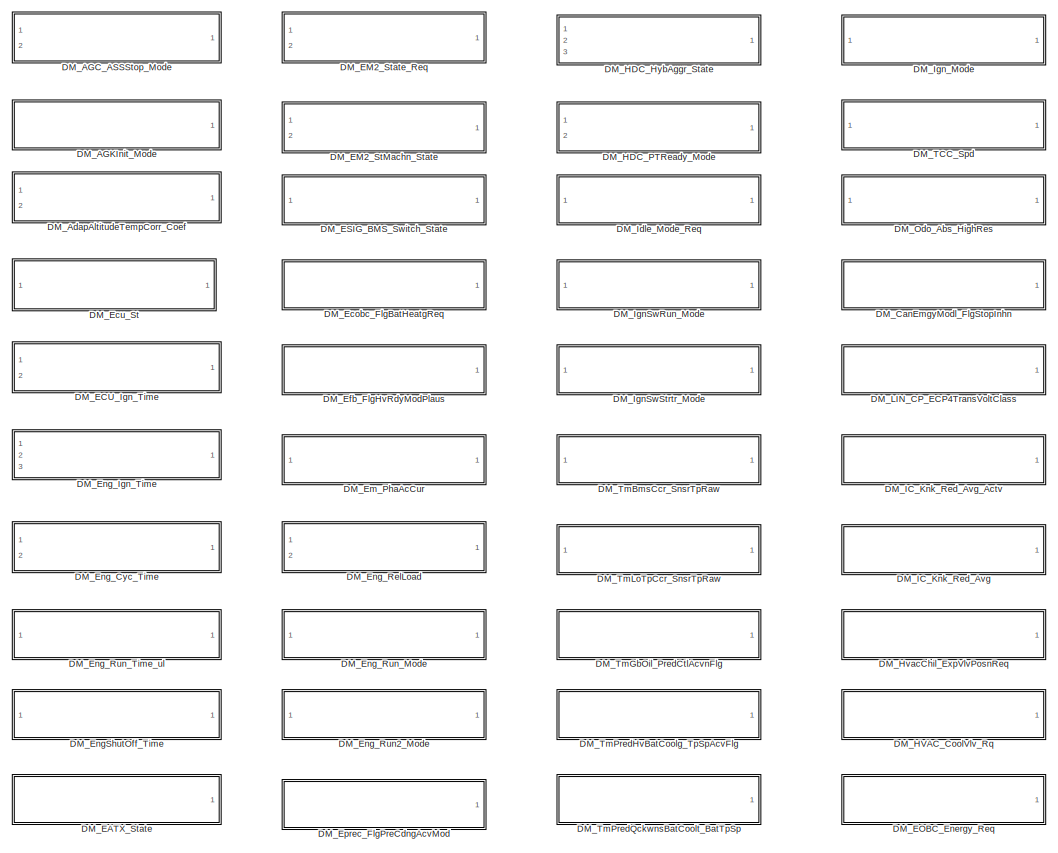
[diagram: root canvas - part 1/4, left side, full height]
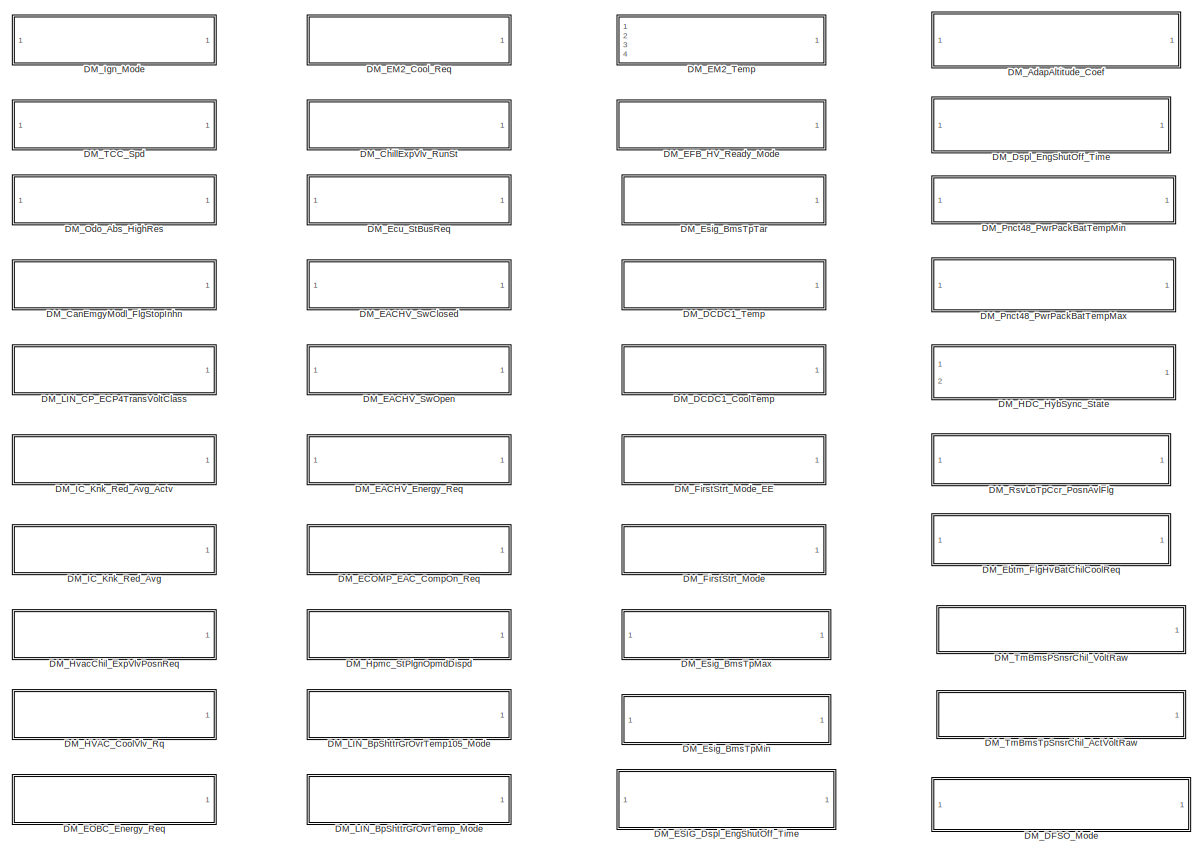
[diagram: root canvas - part 2/4, center side, full height]
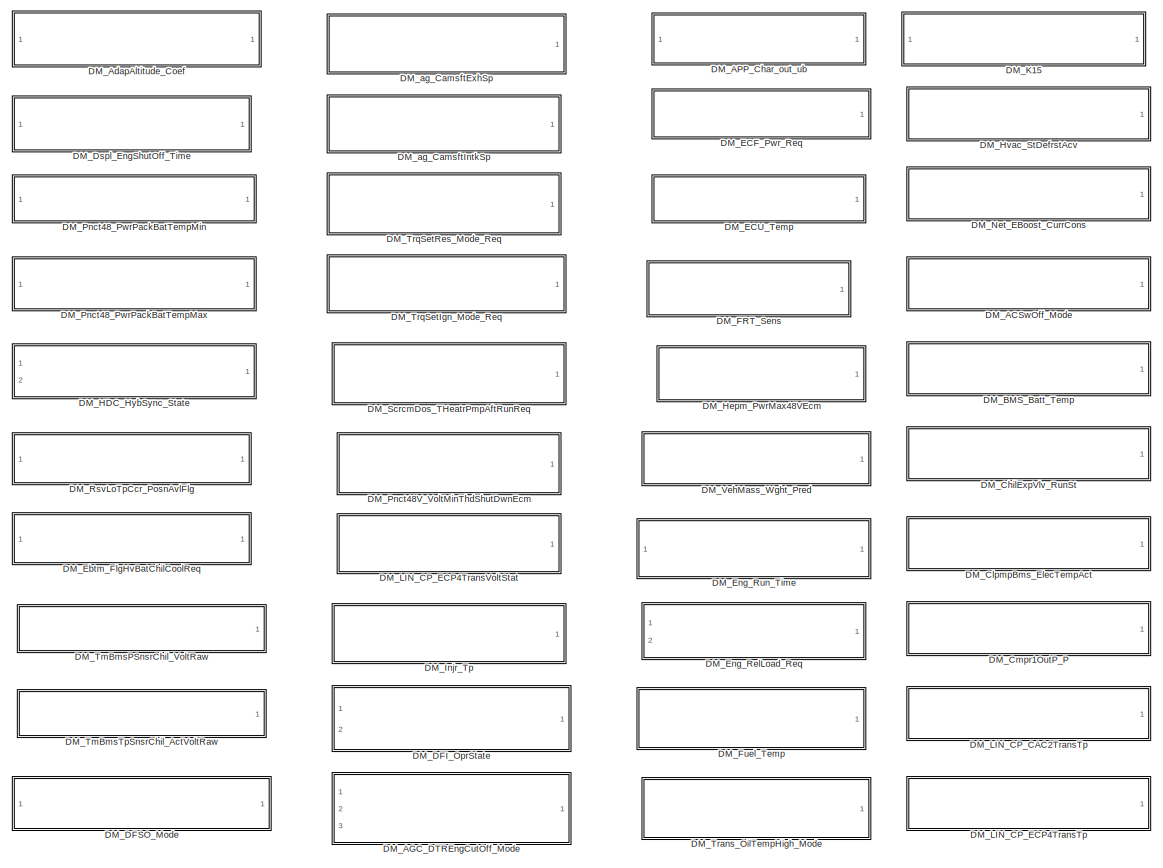
[diagram: root canvas - part 3/4, center side, full height]
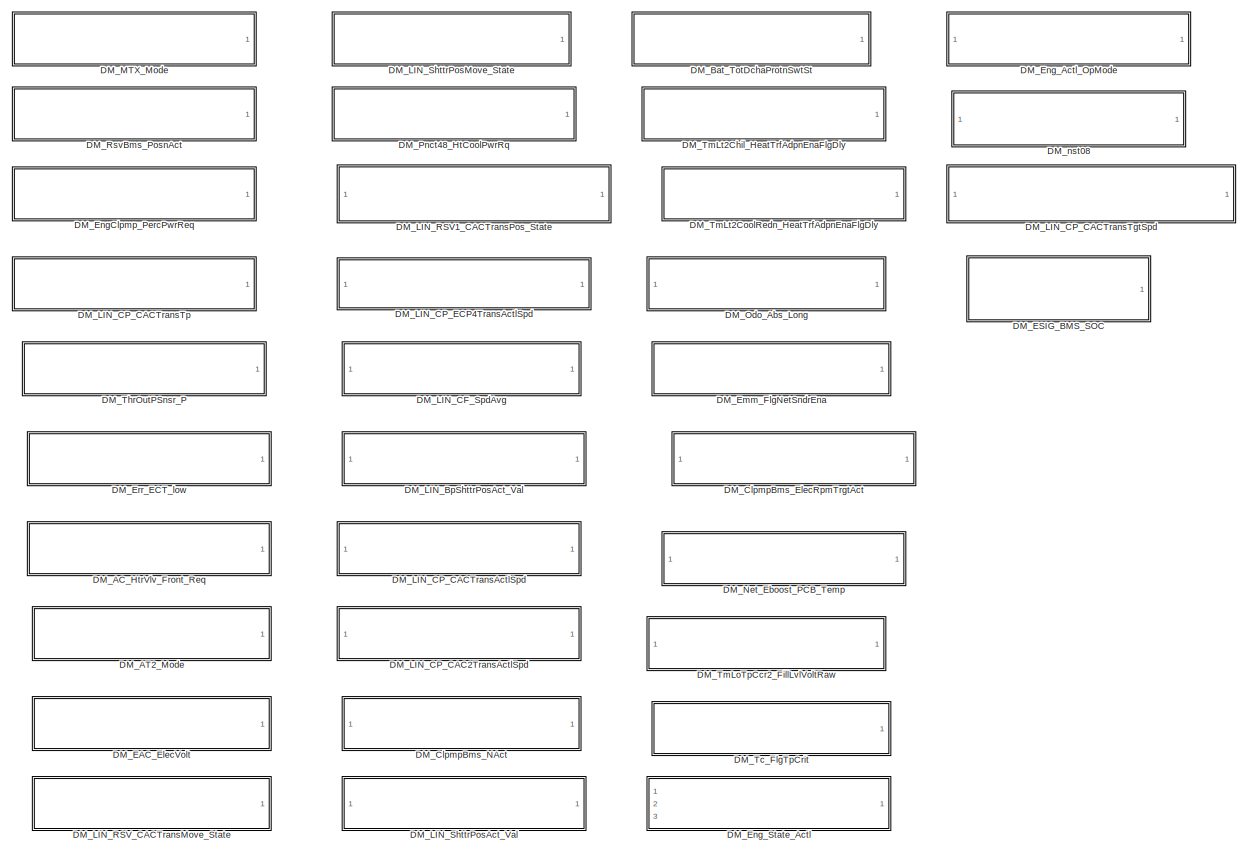
[diagram: root canvas - part 4/4, right side, full height]
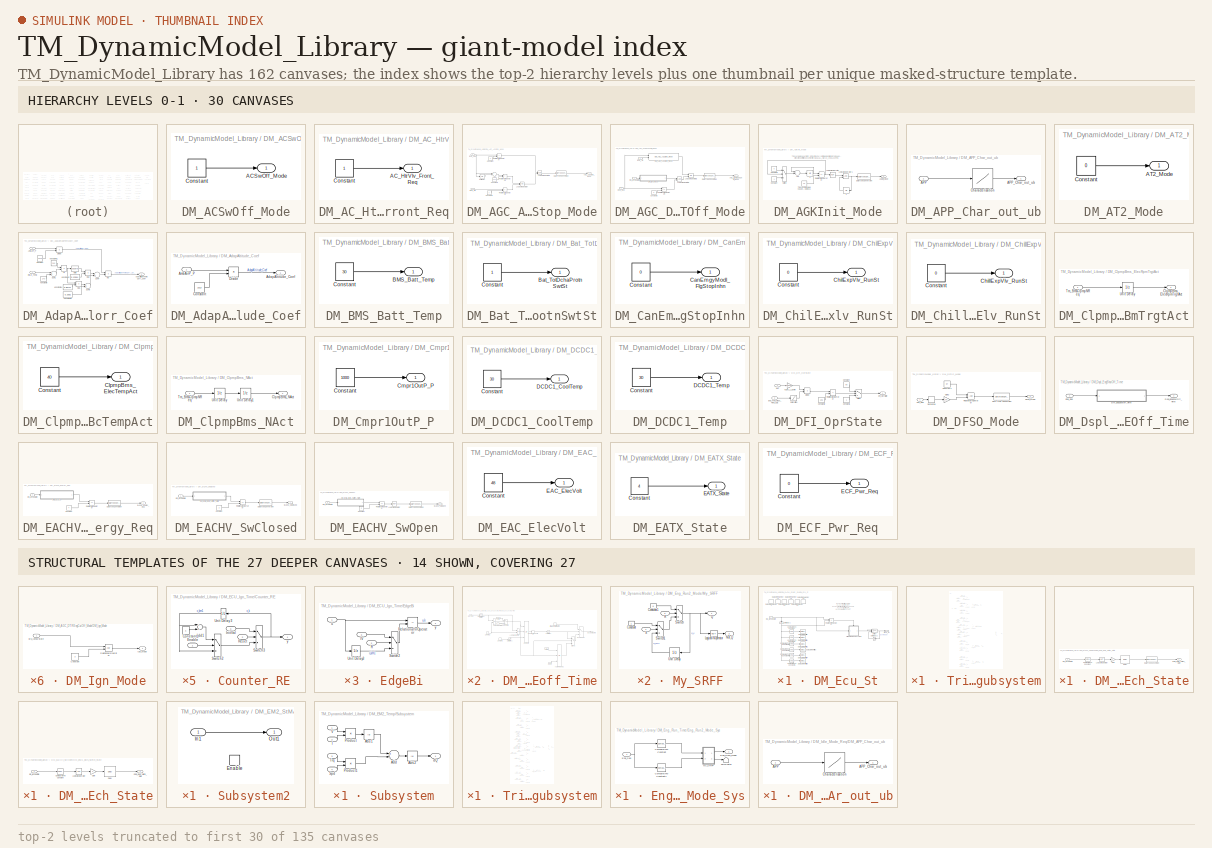
[diagram: thumbnail index - top-2 hierarchy levels (135 canvases (first 30 of 135 shown)) + 14 structural-template representatives of the remaining 27 canvases]
MODEL TM_DynamicModel_Library
KIND library
BLOCK [SubSystem] DM_ACSwOff_Mode
  FunctionWithSeparateData = off
  MaskHideContents = off
  MinAlgLoopOccurrences = off
  Opaque = off
  Ports = [0, 1]
  PropExecContextOutsideSubsystem = off
  RTWSystemCode = Auto
  RequestExecContextInheritance = off
  SID = 1573
BLOCK [Outport] DM_ACSwOff_Mode/ACSwOff_Mode
  IconDisplay = Port number
  SID = 1575
BLOCK [Constant] DM_ACSwOff_Mode/Constant
  SID = 1574
BLOCK [SubSystem] DM_AC_HtrVlv_Front_Req
  FunctionWithSeparateData = off
  MaskHideContents = off
  MinAlgLoopOccurrences = off
  Opaque = off
  Ports = [0, 1]
  PropExecContextOutsideSubsystem = off
  RTWSystemCode = Auto
  RequestExecContextInheritance = off
  SID = 2712
BLOCK [Outport] DM_AC_HtrVlv_Front_Req/AC_HtrVlv_Front_Req
  IconDisplay = Port number
  SID = 2714
BLOCK [Constant] DM_AC_HtrVlv_Front_Req/Constant
  SID = 2713
BLOCK [SubSystem] DM_AGC_ASSStop_Mode
  FunctionWithSeparateData = off
  MaskHideContents = off
  MinAlgLoopOccurrences = off
  Opaque = off
  Ports = [2, 1]
  PropExecContextOutsideSubsystem = off
  RTWSystemCode = Auto
  RequestExecContextInheritance = off
  SID = 359
BLOCK [Outport] DM_AGC_ASSStop_Mode/AGC_ASSStop_Mode
  IconDisplay = Port number
  SID = 372
BLOCK [Sum] DM_AGC_ASSStop_Mode/Add
  InputSameDT = off
  Inputs = +-
  OutDataTypeStr = Inherit: Inherit via internal rule
  Ports = [2, 1]
  SID = 362
  SaturateOnIntegerOverflow = off
BLOCK [Constant] DM_AGC_ASSStop_Mode/Constant
  SID = 363
  Value = 0
BLOCK [Constant] DM_AGC_ASSStop_Mode/Constant1
  SID = 364
  Value = -100
BLOCK [Constant] DM_AGC_ASSStop_Mode/Constant2
  SID = 365
  Value = 0
BLOCK [DataTypeConversion] DM_AGC_ASSStop_Mode/Data Type Conversion
  RndMeth = Floor
  SID = 1979
  SaturateOnIntegerOverflow = off
BLOCK [Inport] DM_AGC_ASSStop_Mode/Eng_Spd
  IconDisplay = Port number
  SID = 360
BLOCK [Inport] DM_AGC_ASSStop_Mode/Eng_Trq
  IconDisplay = Port number
  Port = 2
  SID = 361
BLOCK [Logic] DM_AGC_ASSStop_Mode/Logical\nOperator
  AllPortsSameDT = off
  OutDataTypeStr = boolean
  Ports = [2, 1]
  SID = 366
BLOCK [Logic] DM_AGC_ASSStop_Mode/Logical\nOperator1
  AllPortsSameDT = off
  Operator = NOR
  OutDataTypeStr = boolean
  Ports = [2, 1]
  SID = 367
BLOCK [RelationalOperator] DM_AGC_ASSStop_Mode/Relational\nOperator
  InputSameDT = off
  Operator = >
  OutDataTypeStr = boolean
  Ports = [2, 1]
  SID = 368
BLOCK [RelationalOperator] DM_AGC_ASSStop_Mode/Relational\nOperator1
  InputSameDT = off
  Operator = <
  OutDataTypeStr = boolean
  Ports = [2, 1]
  SID = 369
BLOCK [RelationalOperator] DM_AGC_ASSStop_Mode/Relational\nOperator2
  InputSameDT = off
  Operator = >
  OutDataTypeStr = boolean
  Ports = [2, 1]
  SID = 370
BLOCK [UnitDelay] DM_AGC_ASSStop_Mode/Unit Delay
  InputProcessing = Elements as channels (sample based)
  SID = 371
  SampleTime = -1
BLOCK [SubSystem] DM_AGC_DTREngCutOff_Mode
  FunctionWithSeparateData = off
  MaskHideContents = off
  MinAlgLoopOccurrences = off
  Opaque = off
  Ports = [3, 1]
  PropExecContextOutsideSubsystem = off
  RTWSystemCode = Auto
  RequestExecContextInheritance = off
  SID = 1291
BLOCK [Outport] DM_AGC_DTREngCutOff_Mode/AGC_DTREngCutOff_Mode
  IconDisplay = Port number
  SID = 1299
BLOCK [Constant] DM_AGC_DTREngCutOff_Mode/Constant3
  SID = 1295
  Value = 0
BLOCK [Reference] DM_AGC_DTREngCutOff_Mode/DM_AGC_ASSStop_Mode  REF=TM_DynamicModel_Library/DM_AGC_ASSStop_Mode
  Ports = [2, 1]
  SID = 1489
  SourceBlock = TM_DynamicModel_Library/DM_AGC_ASSStop_Mode
  SourceType = SubSystem
BLOCK [SubSystem] DM_AGC_DTREngCutOff_Mode/DM_Ign_Mode
  FunctionWithSeparateData = off
  MaskHideContents = off
  MinAlgLoopOccurrences = off
  Opaque = off
  Ports = [1, 1]
  PropExecContextOutsideSubsystem = off
  RTWSystemCode = Auto
  RequestExecContextInheritance = off
  SID = 1490
BLOCK [Constant] DM_AGC_DTREngCutOff_Mode/DM_Ign_Mode/Constant
  SID = 1492
  Value = 3
BLOCK [Inport] DM_AGC_DTREngCutOff_Mode/DM_Ign_Mode/EIS_IgnSwState
  IconDisplay = Port number
  SID = 1491
BLOCK [Outport] DM_AGC_DTREngCutOff_Mode/DM_Ign_Mode/Ign_Mode
  IconDisplay = Port number
  SID = 1494
BLOCK [RelationalOperator] DM_AGC_DTREngCutOff_Mode/DM_Ign_Mode/Relational\nOperator
  InputSameDT = off
  OutDataTypeStr = boolean
  Ports = [2, 1]
  SID = 1493
BLOCK [DataTypeConversion] DM_AGC_DTREngCutOff_Mode/Data Type Conversion
  RndMeth = Floor
  SID = 2126
  SaturateOnIntegerOverflow = off
BLOCK [Inport] DM_AGC_DTREngCutOff_Mode/EIS_IgnSwState
  IconDisplay = Port number
  Port = 2
  SID = 1293
BLOCK [Inport] DM_AGC_DTREngCutOff_Mode/Eng_Spd
  IconDisplay = Port number
  Port = 3
  SID = 1294
BLOCK [Inport] DM_AGC_DTREngCutOff_Mode/Eng_Trq
  IconDisplay = Port number
  SID = 1292
BLOCK [Logic] DM_AGC_DTREngCutOff_Mode/Logical\nOperator1
  AllPortsSameDT = off
  OutDataTypeStr = boolean
  Ports = [2, 1]
  SID = 1296
BLOCK [Logic] DM_AGC_DTREngCutOff_Mode/Logical\nOperator2
  AllPortsSameDT = off
  Operator = OR
  OutDataTypeStr = boolean
  Ports = [2, 1]
  SID = 1297
BLOCK [RelationalOperator] DM_AGC_DTREngCutOff_Mode/Relational\nOperator4
  InputSameDT = off
  Operator = <=
  OutDataTypeStr = boolean
  Ports = [2, 1]
  SID = 1298
BLOCK [SubSystem] DM_AGKInit_Mode
  FunctionWithSeparateData = off
  MaskHideContents = off
  MinAlgLoopOccurrences = off
  Opaque = off
  Ports = [0, 1]
  PropExecContextOutsideSubsystem = off
  RTWSystemCode = Auto
  RequestExecContextInheritance = off
  SID = 373
BLOCK [UnitDelay] DM_AGKInit_Mode/0
  InputProcessing = Elements as channels (sample based)
  SID = 375
  SampleTime = -1
BLOCK [UnitDelay] DM_AGKInit_Mode/1
  InputProcessing = Elements as channels (sample based)
  SID = 376
  SampleTime = -1
  X0 = 1
BLOCK [Outport] DM_AGKInit_Mode/AGKInit_Mode
  IconDisplay = Port number
  SID = 385
BLOCK [Sum] DM_AGKInit_Mode/Add
  InputSameDT = off
  OutDataTypeStr = Inherit: Inherit via internal rule
  Ports = [2, 1]
  SID = 377
  SaturateOnIntegerOverflow = off
BLOCK [Constant] DM_AGKInit_Mode/Constant
  SID = 378
BLOCK [Constant] DM_AGKInit_Mode/Constant1
  SID = 379
  Value = 0
BLOCK [DataTypeConversion] DM_AGKInit_Mode/Data Type Conversion
  RndMeth = Floor
  SID = 2052
  SaturateOnIntegerOverflow = off
BLOCK [Logic] DM_AGKInit_Mode/Logical\nOperator
  AllPortsSameDT = off
  Operator = NOT
  OutDataTypeStr = boolean
  Ports = [1, 1]
  SID = 380
BLOCK [Logic] DM_AGKInit_Mode/Logical\nOperator1
  AllPortsSameDT = off
  OutDataTypeStr = boolean
  Ports = [2, 1]
  SID = 381
BLOCK [RelationalOperator] DM_AGKInit_Mode/Relational\nOperator
  InputSameDT = off
  Operator = ==
  OutDataTypeStr = boolean
  Ports = [2, 1]
  SID = 382
BLOCK [Switch] DM_AGKInit_Mode/Switch
  InputSameDT = off
  SID = 383
  SaturateOnIntegerOverflow = off
  Threshold = 1
BLOCK [Constant] DM_AGKInit_Mode/This constant value has been changed from 10 to 1, because this function is now\nbeing called every 0.1s instead of 0.01s
  SID = 384
  Value = 10
BLOCK [SubSystem] DM_APP_Char_out_ub
  FunctionWithSeparateData = off
  MaskHideContents = off
  MinAlgLoopOccurrences = off
  Opaque = off
  Ports = [1, 1]
  PropExecContextOutsideSubsystem = off
  RTWSystemCode = Auto
  RequestExecContextInheritance = off
  SID = 1300
BLOCK [Inport] DM_APP_Char_out_ub/APP
  IconDisplay = Port number
  SID = 1301
BLOCK [Outport] DM_APP_Char_out_ub/APP_Char_out_ub
  IconDisplay = Port number
  SID = 1303
BLOCK [Lookup] DM_APP_Char_out_ub/Characterisation
  InputValues = [0,10,20,30,40,50,60,70,80,90,100]
  SID = 1302
  SaturateOnIntegerOverflow = off
  Table = [0,8,17,26,35,44,59,70,82,91,100]
BLOCK [SubSystem] DM_AT2_Mode
  FunctionWithSeparateData = off
  MaskHideContents = off
  MinAlgLoopOccurrences = off
  Opaque = off
  Ports = [0, 1]
  PropExecContextOutsideSubsystem = off
  RTWSystemCode = Auto
  RequestExecContextInheritance = off
  SID = 2715
BLOCK [Outport] DM_AT2_Mode/AT2_Mode
  IconDisplay = Port number
  SID = 2717
BLOCK [Constant] DM_AT2_Mode/Constant
  SID = 2716
  Value = 0
BLOCK [SubSystem] DM_AdapAltitudeTempCorr_Coef
  FunctionWithSeparateData = off
  MaskHideContents = off
  MinAlgLoopOccurrences = off
  Opaque = off
  Ports = [2, 1]
  PropExecContextOutsideSubsystem = off
  RTWSystemCode = Auto
  RequestExecContextInheritance = off
  SID = 340
BLOCK [Outport] DM_AdapAltitudeTempCorr_Coef/AdapAltitudeTempCorr_Coef
  IconDisplay = Port number
  SID = 358
BLOCK [Inport] DM_AdapAltitudeTempCorr_Coef/AmbAirP_P
  IconDisplay = Port number
  SID = 341
BLOCK [Constant] DM_AdapAltitudeTempCorr_Coef/Constant
  SID = 343
  Value = 1013
BLOCK [Product] DM_AdapAltitudeTempCorr_Coef/Div
  DeleteFcn = if exist('delete_tlblock','file')==2,delete_tlblock(gcbh);end
  Description = Product block of dSPACE TargetLink.\n\nOutput signal is equal to the product of the input signals. The input ports are specified according to conventions for Simulink Product blocks.
  InputSameDT = off
  Inputs = */
  MaskDisplay = \n
  MaskEnableString = on
  MaskHelp = eval(['if exist(''tl_online_help'',''file'') == 2, tl_online_help(''Topic'',''TL_Product''),else, web([''jar:file:///'',matlabroot,''/help/toolbox/simulink/help.jar!/slref/' lower(get_param(gcbh,'Blocktype')) '.html''], ''-helpbrowser''),end'])
  MaskIconFrame = on
  MaskIconOpaque = off
  MaskIconRotate = none
  MaskIconUnits = normalized
  MaskPortRotate = default
  MaskPromptString = data
  MaskStyleString = edit
  MaskToolTipString = on
  MaskTunableValueString = on
  MaskType = TL_Product
  MaskValueString = {'logdata',{'plotchannels',[]},'output',{'type','DC_FCTR_32768_U16'},'date',734244.44671856484}
  MaskVariables = data=&1;
  MaskVisibilityString = off
  NameChangeFcn = if exist('rename_tlblock','file')==2,rename_tlblock(gcbh);end
  OpenFcn = if exist('tl_open_blockdlg','file')==2,tl_open_blockdlg(gcbh);else,open_system(gcbh,'parameter');end
  OutDataTypeStr = Inherit: Inherit via internal rule
  Ports = [2, 1]
  SID = 344
  SaturateOnIntegerOverflow = off
  Tag = COPIED_DURING_UPGRADE
BLOCK [Product] DM_AdapAltitudeTempCorr_Coef/Divide
  InputSameDT = off
  Inputs = */
  OutDataTypeStr = Inherit: Inherit via internal rule
  Ports = [2, 1]
  RndMeth = Floor
  SID = 345
  SaturateOnIntegerOverflow = off
BLOCK [Inport] DM_AdapAltitudeTempCorr_Coef/IntkAir_Temp
  IconDisplay = Port number
  Port = 2
  PortDimensions = 1
  SID = 342
BLOCK [Constant] DM_AdapAltitudeTempCorr_Coef/Konstante
  DeleteFcn = if exist('delete_tlblock','file')==2,delete_tlblock(gcbh);end
  Description = Constant block of dSPACE TargetLink.\n\nOutput signal keeps the given constant value.
  NameChangeFcn = if exist('rename_tlblock','file')==2,rename_tlblock(gcbh);end
  OpenFcn = if exist('tl_open_blockdlg','file')==2,tl_open_blockdlg(gcbh);else,open_system(gcbh,'parameter');end
  SID = 346
  Tag = COPIED_DURING_UPGRADE
  Value = 273
BLOCK [Constant] DM_AdapAltitudeTempCorr_Coef/Konstante1
  DeleteFcn = if exist('delete_tlblock','file')==2,delete_tlblock(gcbh);end
  Description = Constant block of dSPACE TargetLink.\n\nOutput signal keeps the given constant value.
  MaskDisplay = \n
  MaskEnableString = on
  MaskHelp = eval(['if exist(''tl_online_help'',''file'') == 2, tl_online_help(''Topic'',''TL_Constant''),else, web([''jar:file:///'',matlabroot,''/help/toolbox/simulink/help.jar!/slref/' lower(get_param(gcbh,'Blocktype')) '.html''], ''-helpbrowser''),end'])
  MaskIconFrame = on
  MaskIconOpaque = off
  MaskIconRotate = none
  MaskIconUnits = normalized
  MaskPortRotate = default
  MaskPromptString = data
  MaskStyleString = edit
  MaskToolTipString = on
  MaskTunableValueString = on
  MaskType = TL_Constant
  MaskValueString = {'date',734244.44671675924}
  MaskVariables = data=&1;
  MaskVisibilityString = off
  NameChangeFcn = if exist('rename_tlblock','file')==2,rename_tlblock(gcbh);end
  OpenFcn = if exist('tl_open_blockdlg','file')==2,tl_open_blockdlg(gcbh);else,open_system(gcbh,'parameter');end
  SID = 347
  Tag = COPIED_DURING_UPGRADE
  Value = 293
BLOCK [Constant] DM_AdapAltitudeTempCorr_Coef/Konstante2
  DeleteFcn = if exist('delete_tlblock','file')==2,delete_tlblock(gcbh);end
  Description = Constant block of dSPACE TargetLink.\n\nOutput signal keeps the given constant value.
  NameChangeFcn = if exist('rename_tlblock','file')==2,rename_tlblock(gcbh);end
  OpenFcn = if exist('tl_open_blockdlg','file')==2,tl_open_blockdlg(gcbh);else,open_system(gcbh,'parameter');end
  SID = 348
  Tag = COPIED_DURING_UPGRADE
  Value = 0.12554
BLOCK [Constant] DM_AdapAltitudeTempCorr_Coef/Konstante4
  DeleteFcn = if exist('delete_tlblock','file')==2,delete_tlblock(gcbh);end
  Description = Constant block of dSPACE TargetLink.\n\nOutput signal keeps the given constant value.
  NameChangeFcn = if exist('rename_tlblock','file')==2,rename_tlblock(gcbh);end
  OpenFcn = if exist('tl_open_blockdlg','file')==2,tl_open_blockdlg(gcbh);else,open_system(gcbh,'parameter');end
  SID = 349
  Tag = COPIED_DURING_UPGRADE
  Value = 0.85744
BLOCK [Constant] DM_AdapAltitudeTempCorr_Coef/Konstante5
  DeleteFcn = if exist('delete_tlblock','file')==2,delete_tlblock(gcbh);end
  Description = Constant block of dSPACE TargetLink.\n\nOutput signal keeps the given constant value.
  NameChangeFcn = if exist('rename_tlblock','file')==2,rename_tlblock(gcbh);end
  OpenFcn = if exist('tl_open_blockdlg','file')==2,tl_open_blockdlg(gcbh);else,open_system(gcbh,'parameter');end
  SID = 350
  Tag = COPIED_DURING_UPGRADE
  Value = 0.2682
BLOCK [Math] DM_AdapAltitudeTempCorr_Coef/Math
  DeleteFcn = if exist('delete_tlblock','file')==2,delete_tlblock(gcbh);end
  Description = Math block of dSPACE TargetLink.\n\nThe Math block outputs the result of the specified math function applied to the input(s). Note that unlike Simulink's Math block, this block does not support complex signals.
  NameChangeFcn = if exist('rename_tlblock','file')==2,rename_tlblock(gcbh);end
  OpenFcn = if exist('tl_open_blockdlg','file')==2,tl_open_blockdlg(gcbh);else,open_system(gcbh,'parameter');end
  Operator = square
  Ports = [1, 1]
  SID = 351
  Tag = COPIED_DURING_UPGRADE
BLOCK [Product] DM_AdapAltitudeTempCorr_Coef/Mul
  DeleteFcn = if exist('delete_tlblock','file')==2,delete_tlblock(gcbh);end
  Description = Product block of dSPACE TargetLink.\n\nOutput signal is equal to the product of the input signals. The input ports are specified according to conventions for Simulink Product blocks.
  InputSameDT = off
  NameChangeFcn = if exist('rename_tlblock','file')==2,rename_tlblock(gcbh);end
  OpenFcn = if exist('tl_open_blockdlg','file')==2,tl_open_blockdlg(gcbh);else,open_system(gcbh,'parameter');end
  OutDataTypeStr = Inherit: Inherit via internal rule
  Ports = [2, 1]
  SID = 352
  SaturateOnIntegerOverflow = off
  Tag = COPIED_DURING_UPGRADE
BLOCK [Product] DM_AdapAltitudeTempCorr_Coef/Mul1
  DeleteFcn = if exist('delete_tlblock','file')==2,delete_tlblock(gcbh);end
  Description = Product block of dSPACE TargetLink.\n\nOutput signal is equal to the product of the input signals. The input ports are specified according to conventions for Simulink Product blocks.
  InputSameDT = off
  NameChangeFcn = if exist('rename_tlblock','file')==2,rename_tlblock(gcbh);end
  OpenFcn = if exist('tl_open_blockdlg','file')==2,tl_open_blockdlg(gcbh);else,open_system(gcbh,'parameter');end
  OutDataTypeStr = Inherit: Inherit via internal rule
  Ports = [2, 1]
  SID = 353
  SaturateOnIntegerOverflow = off
  Tag = COPIED_DURING_UPGRADE
BLOCK [Product] DM_AdapAltitudeTempCorr_Coef/Mul2
  DeleteFcn = if exist('delete_tlblock','file')==2,delete_tlblock(gcbh);end
  Description = Product block of dSPACE TargetLink.\n\nOutput signal is equal to the product of the input signals. The input ports are specified according to conventions for Simulink Product blocks.
  InputSameDT = off
  NameChangeFcn = if exist('rename_tlblock','file')==2,rename_tlblock(gcbh);end
  OpenFcn = if exist('tl_open_blockdlg','file')==2,tl_open_blockdlg(gcbh);else,open_system(gcbh,'parameter');end
  OutDataTypeStr = Inherit: Inherit via internal rule
  Ports = [2, 1]
  SID = 354
  SaturateOnIntegerOverflow = off
  Tag = COPIED_DURING_UPGRADE
BLOCK [Sum] DM_AdapAltitudeTempCorr_Coef/Sum1
  DeleteFcn = if exist('delete_tlblock','file')==2,delete_tlblock(gcbh);end
  Description = Sum block of dSPACE TargetLink.\n\nOutput signal is equal to the sum of the input signals.\nThe list of signs is specified according to conventions for Simulink Sum blocks.
  InputSameDT = off
  NameChangeFcn = if exist('rename_tlblock','file')==2,rename_tlblock(gcbh);end
  OpenFcn = if exist('tl_open_blockdlg','file')==2,tl_open_blockdlg(gcbh);else,open_system(gcbh,'parameter');end
  OutDataTypeStr = Inherit: Inherit via internal rule
  Ports = [2, 1]
  SID = 355
  SaturateOnIntegerOverflow = off
  Tag = COPIED_DURING_UPGRADE
BLOCK [Sum] DM_AdapAltitudeTempCorr_Coef/Sum6
  DeleteFcn = if exist('delete_tlblock','file')==2,delete_tlblock(gcbh);end
  Description = Sum block of dSPACE TargetLink.\n\nOutput signal is equal to the sum of the input signals.\nThe list of signs is specified according to conventions for Simulink Sum blocks.
  InputSameDT = off
  NameChangeFcn = if exist('rename_tlblock','file')==2,rename_tlblock(gcbh);end
  OpenFcn = if exist('tl_open_blockdlg','file')==2,tl_open_blockdlg(gcbh);else,open_system(gcbh,'parameter');end
  OutDataTypeStr = Inherit: Inherit via internal rule
  Ports = [2, 1]
  SID = 356
  SaturateOnIntegerOverflow = off
  Tag = COPIED_DURING_UPGRADE
BLOCK [Sum] DM_AdapAltitudeTempCorr_Coef/Sum7
  DeleteFcn = if exist('delete_tlblock','file')==2,delete_tlblock(gcbh);end
  Description = Sum block of dSPACE TargetLink.\n\nOutput signal is equal to the sum of the input signals.\nThe list of signs is specified according to conventions for Simulink Sum blocks.
  InputSameDT = off
  Inputs = -+
  NameChangeFcn = if exist('rename_tlblock','file')==2,rename_tlblock(gcbh);end
  OpenFcn = if exist('tl_open_blockdlg','file')==2,tl_open_blockdlg(gcbh);else,open_system(gcbh,'parameter');end
  OutDataTypeStr = Inherit: Inherit via internal rule
  Ports = [2, 1]
  SID = 357
  SaturateOnIntegerOverflow = off
  Tag = COPIED_DURING_UPGRADE
BLOCK [SubSystem] DM_AdapAltitude_Coef
  FunctionWithSeparateData = off
  MaskHideContents = off
  MinAlgLoopOccurrences = off
  Opaque = off
  Ports = [1, 1]
  PropExecContextOutsideSubsystem = off
  RTWSystemCode = Auto
  RequestExecContextInheritance = off
  SID = 693
BLOCK [Outport] DM_AdapAltitude_Coef/AdapAltitude_Coef
  IconDisplay = Port number
  SID = 697
BLOCK [Inport] DM_AdapAltitude_Coef/AmbAirP_P
  IconDisplay = Port number
  SID = 694
BLOCK [Constant] DM_AdapAltitude_Coef/Constant
  SID = 695
  Value = 1013
BLOCK [Product] DM_AdapAltitude_Coef/Divide
  InputSameDT = off
  Inputs = */
  OutDataTypeStr = Inherit: Inherit via internal rule
  Ports = [2, 1]
  RndMeth = Floor
  SID = 696
  SaturateOnIntegerOverflow = off
BLOCK [SubSystem] DM_BMS_Batt_Temp
  FunctionWithSeparateData = off
  MaskHideContents = off
  MinAlgLoopOccurrences = off
  Opaque = off
  Ports = [0, 1]
  PropExecContextOutsideSubsystem = off
  RTWSystemCode = Auto
  RequestExecContextInheritance = off
  SID = 1576
BLOCK [Outport] DM_BMS_Batt_Temp/BMS_Batt_Temp
  IconDisplay = Port number
  SID = 1578
BLOCK [Constant] DM_BMS_Batt_Temp/Constant
  SID = 1577
  Value = 30
BLOCK [SubSystem] DM_Bat_TotDchaProtnSwtSt
  FunctionWithSeparateData = off
  MaskHideContents = off
  MinAlgLoopOccurrences = off
  Opaque = off
  Ports = [0, 1]
  PropExecContextOutsideSubsystem = off
  RTWSystemCode = Auto
  RequestExecContextInheritance = off
  SID = 5836
BLOCK [Outport] DM_Bat_TotDchaProtnSwtSt/Bat_TotDchaProtnSwtSt
  IconDisplay = Port number
  SID = 5838
BLOCK [Constant] DM_Bat_TotDchaProtnSwtSt/Constant
  SID = 5837
BLOCK [SubSystem] DM_CanEmgyModl_FlgStopInhn
  FunctionWithSeparateData = off
  MaskHideContents = off
  MinAlgLoopOccurrences = off
  Opaque = off
  Ports = [0, 1]
  PropExecContextOutsideSubsystem = off
  RTWSystemCode = Auto
  RequestExecContextInheritance = off
  SID = 553
BLOCK [Outport] DM_CanEmgyModl_FlgStopInhn/CanEmgyModl_FlgStopInhn
  IconDisplay = Port number
  SID = 555
BLOCK [Constant] DM_CanEmgyModl_FlgStopInhn/Constant
  SID = 554
  Value = 0
BLOCK [SubSystem] DM_ChilExpVlv_RunSt
  FunctionWithSeparateData = off
  MaskHideContents = off
  MinAlgLoopOccurrences = off
  Opaque = off
  Ports = [0, 1]
  PropExecContextOutsideSubsystem = off
  RTWSystemCode = Auto
  RequestExecContextInheritance = off
  SID = 1579
BLOCK [Outport] DM_ChilExpVlv_RunSt/ChilExpVlv_RunSt
  IconDisplay = Port number
  SID = 1581
BLOCK [Constant] DM_ChilExpVlv_RunSt/Constant
  SID = 1580
  Value = 0
BLOCK [SubSystem] DM_ChillExpVlv_RunSt
  FunctionWithSeparateData = off
  MaskHideContents = off
  MinAlgLoopOccurrences = off
  Opaque = off
  Ports = [0, 1]
  PropExecContextOutsideSubsystem = off
  RTWSystemCode = Auto
  RequestExecContextInheritance = off
  SID = 580
BLOCK [Outport] DM_ChillExpVlv_RunSt/ChillExpVlv_RunSt
  IconDisplay = Port number
  SID = 582
BLOCK [Constant] DM_ChillExpVlv_RunSt/Constant
  SID = 581
  Value = 0
BLOCK [SubSystem] DM_ClpmpBms_ElecRpmTrgtAct
  FunctionWithSeparateData = off
  MaskHideContents = off
  MinAlgLoopOccurrences = off
  Opaque = off
  Ports = [1, 1]
  PropExecContextOutsideSubsystem = off
  RTWSystemCode = Auto
  RequestExecContextInheritance = off
  SID = 5854
BLOCK [Outport] DM_ClpmpBms_ElecRpmTrgtAct/ClpmpBms_ElecRpmTrgtAct
  IconDisplay = Port number
  SID = 5857
BLOCK [Inport] DM_ClpmpBms_ElecRpmTrgtAct/Tm_BmsClpmpNReq
  IconDisplay = Port number
  SID = 5855
BLOCK [UnitDelay] DM_ClpmpBms_ElecRpmTrgtAct/Unit Delay
  InputProcessing = Elements as channels (sample based)
  SID = 5856
  SampleTime = -1
BLOCK [SubSystem] DM_ClpmpBms_ElecTempAct
  FunctionWithSeparateData = off
  MaskHideContents = off
  MinAlgLoopOccurrences = off
  Opaque = off
  Ports = [0, 1]
  PropExecContextOutsideSubsystem = off
  RTWSystemCode = Auto
  RequestExecContextInheritance = off
  SID = 1582
BLOCK [Outport] DM_ClpmpBms_ElecTempAct/ClpmpBms_ElecTempAct
  IconDisplay = Port number
  SID = 1584
BLOCK [Constant] DM_ClpmpBms_ElecTempAct/Constant
  SID = 1583
  Value = 40
BLOCK [SubSystem] DM_ClpmpBms_NAct
  FunctionWithSeparateData = off
  MaskHideContents = off
  MinAlgLoopOccurrences = off
  Opaque = off
  Ports = [1, 1]
  PropExecContextOutsideSubsystem = off
  RTWSystemCode = Auto
  RequestExecContextInheritance = off
  SID = 4900
BLOCK [Outport] DM_ClpmpBms_NAct/ClpmpBms_NAct
  IconDisplay = Port number
  SID = 4903
BLOCK [Inport] DM_ClpmpBms_NAct/Tm_BmsClpmpNReq
  IconDisplay = Port number
  SID = 4901
BLOCK [UnitDelay] DM_ClpmpBms_NAct/Unit Delay
  InputProcessing = Elements as channels (sample based)
  SID = 4902
  SampleTime = -1
BLOCK [UnitDelay] DM_ClpmpBms_NAct/Unit Delay1
  InputProcessing = Elements as channels (sample based)
  SID = 5835
  SampleTime = -1
BLOCK [SubSystem] DM_Cmpr1OutP_P
  FunctionWithSeparateData = off
  MaskHideContents = off
  MinAlgLoopOccurrences = off
  Opaque = off
  Ports = [0, 1]
  PropExecContextOutsideSubsystem = off
  RTWSystemCode = Auto
  RequestExecContextInheritance = off
  SID = 1585
BLOCK [Outport] DM_Cmpr1OutP_P/Cmpr1OutP_P
  IconDisplay = Port number
  SID = 1587
BLOCK [Constant] DM_Cmpr1OutP_P/Constant
  SID = 1586
  Value = 1000
BLOCK [SubSystem] DM_DCDC1_CoolTemp
  FunctionWithSeparateData = off
  MaskHideContents = off
  MinAlgLoopOccurrences = off
  Opaque = off
  Ports = [0, 1]
  PropExecContextOutsideSubsystem = off
  RTWSystemCode = Auto
  RequestExecContextInheritance = off
  SID = 657
BLOCK [Constant] DM_DCDC1_CoolTemp/Constant
  SID = 658
  Value = 30
BLOCK [Outport] DM_DCDC1_CoolTemp/DCDC1_CoolTemp
  IconDisplay = Port number
  SID = 659
BLOCK [SubSystem] DM_DCDC1_Temp
  FunctionWithSeparateData = off
  MaskHideContents = off
  MinAlgLoopOccurrences = off
  Opaque = off
  Ports = [0, 1]
  PropExecContextOutsideSubsystem = off
  RTWSystemCode = Auto
  RequestExecContextInheritance = off
  SID = 654
BLOCK [Constant] DM_DCDC1_Temp/Constant
  SID = 655
  Value = 30
BLOCK [Outport] DM_DCDC1_Temp/DCDC1_Temp
  IconDisplay = Port number
  SID = 656
BLOCK [SubSystem] DM_DFI_OprState
  FunctionWithSeparateData = off
  MaskHideContents = off
  MinAlgLoopOccurrences = off
  Opaque = off
  Ports = [2, 1]
  PropExecContextOutsideSubsystem = off
  RTWSystemCode = Auto
  RequestExecContextInheritance = off
  SID = 1280
BLOCK [Constant] DM_DFI_OprState/Constant
  SID = 1283
  Value = 65
BLOCK [Constant] DM_DFI_OprState/Constant1
  SID = 1284
BLOCK [Constant] DM_DFI_OprState/Constant2
  SID = 1285
  Value = 1.06
BLOCK [Outport] DM_DFI_OprState/DFI_OprState
  IconDisplay = Port number
  SID = 1290
BLOCK [Product] DM_DFI_OprState/Divide
  InputSameDT = off
  Inputs = */
  OutDataTypeStr = Inherit: Inherit via internal rule
  Ports = [2, 1]
  RndMeth = Floor
  SID = 1286
  SaturateOnIntegerOverflow = off
BLOCK [Inport] DM_DFI_OprState/Eng_Fuel_Mass_Flow_Calc
  IconDisplay = Port number
  Port = 2
  SID = 1282
BLOCK [Inport] DM_DFI_OprState/MAF
  IconDisplay = Port number
  SID = 1281
BLOCK [RelationalOperator] DM_DFI_OprState/Relational\nOperator
  InputSameDT = off
  Operator = <
  OutDataTypeStr = boolean
  Ports = [2, 1]
  SID = 1287
BLOCK [Saturate] DM_DFI_OprState/Saturation
  InputPortMap = u0
  LowerLimit = eps
  Ports = [1, 1]
  SID = 4477
  UpperLimit = inf
BLOCK [Switch] DM_DFI_OprState/Switch
  InputSameDT = off
  SID = 1288
  SaturateOnIntegerOverflow = off
BLOCK [Gain] DM_DFI_OprState/kgph_2_gpmin
  Gain = 60/1000
  OutDataTypeStr = Inherit: Inherit via internal rule
  ParamDataTypeStr = Inherit: Inherit via internal rule
  SID = 1289
  SaturateOnIntegerOverflow = off
BLOCK [SubSystem] DM_DFSO_Mode
  FunctionWithSeparateData = off
  MaskHideContents = off
  MinAlgLoopOccurrences = off
  Opaque = off
  Ports = [1, 1]
  PropExecContextOutsideSubsystem = off
  RTWSystemCode = Auto
  RequestExecContextInheritance = off
  SID = 1196
BLOCK [Constant] DM_DFSO_Mode/Constant1
  SID = 1198
  Value = -0.7
BLOCK [Outport] DM_DFSO_Mode/DFSO_Mode
  IconDisplay = Port number
  SID = 1202
BLOCK [DataTypeConversion] DM_DFSO_Mode/Data Type Conversion
  RndMeth = Floor
  SID = 2125
  SaturateOnIntegerOverflow = off
BLOCK [Derivative] DM_DFSO_Mode/Derivative
  SID = 1199
BLOCK [Gain] DM_DFSO_Mode/Gain2
  Gain = 0.4
  OutDataTypeStr = Inherit: Inherit via internal rule
  ParamDataTypeStr = Inherit: Inherit via internal rule
  SID = 1200
  SaturateOnIntegerOverflow = off
BLOCK [RelationalOperator] DM_DFSO_Mode/Relational\nOperator
  InputSameDT = off
  OutDataTypeStr = boolean
  Ports = [2, 1]
  SID = 1201
BLOCK [Inport] DM_DFSO_Mode/Veh_Spd
  IconDisplay = Port number
  SID = 1197
BLOCK [SubSystem] DM_Dspl_EngShutOff_Time
  FunctionWithSeparateData = off
  MaskHideContents = off
  MinAlgLoopOccurrences = off
  Opaque = off
  Ports = [1, 1]
  PropExecContextOutsideSubsystem = off
  RTWSystemCode = Auto
  RequestExecContextInheritance = off
  SID = 698
BLOCK [SubSystem] DM_Dspl_EngShutOff_Time/DM_EngShutoff_Time
  FunctionWithSeparateData = off
  MaskHideContents = off
  MinAlgLoopOccurrences = off
  Opaque = off
  Ports = [1, 1]
  PropExecContextOutsideSubsystem = off
  RTWSystemCode = Auto
  RequestExecContextInheritance = off
  SID = 1466
BLOCK [Reference] DM_Dspl_EngShutOff_Time/DM_EngShutoff_Time/Compare\nTo Zero1  REF=simulink/Logic and Bit\nOperations/Compare\nTo Zero
  OutDataTypeStr = uint8
  Ports = [1, 1]
  SID = 1468
  SourceBlock = simulink/Logic and Bit\nOperations/Compare\nTo Zero
  SourceType = Compare To Zero
  ZeroCross = on
  relop = >
BLOCK [Constant] DM_Dspl_EngShutOff_Time/DM_EngShutoff_Time/Const
  SID = 1469
  Value = 0
BLOCK [Constant] DM_Dspl_EngShutOff_Time/DM_EngShutoff_Time/Const2
  SID = 1470
  Value = 0
BLOCK [Constant] DM_Dspl_EngShutOff_Time/DM_EngShutoff_Time/Constant1
  SID = 1471
  Value = 0
BLOCK [Constant] DM_Dspl_EngShutOff_Time/DM_EngShutoff_Time/Constant2
  SID = 1472
  Value = 0
BLOCK [Outport] DM_Dspl_EngShutOff_Time/DM_EngShutoff_Time/EngShutoff_Time
  IconDisplay = Port number
  SID = 1486
BLOCK [Inport] DM_Dspl_EngShutOff_Time/DM_EngShutoff_Time/Eng_Spd
  IconDisplay = Port number
  SID = 1467
BLOCK [MultiPortSwitch] DM_Dspl_EngShutOff_Time/DM_EngShutoff_Time/Index\nVector
  DataPortOrder = Zero-based contiguous
  InputSameDT = off
  Inputs = 2
  Ports = [3, 1]
  SID = 1473
  SaturateOnIntegerOverflow = off
  zeroidx = on
BLOCK [Logic] DM_Dspl_EngShutOff_Time/DM_EngShutoff_Time/Logical\nOperator1
  AllPortsSameDT = off
  Operator = OR
  Ports = [2, 1]
  SID = 1474
BLOCK [Logic] DM_Dspl_EngShutOff_Time/DM_EngShutoff_Time/Logical\nOperator2
  AllPortsSameDT = off
  Operator = OR
  Ports = [2, 1]
  SID = 1475
BLOCK [Constant] DM_Dspl_EngShutOff_Time/DM_EngShutoff_Time/ResetValueIfEngineIsRunning [0:No 1:Yes]
  SID = 1476
  Value = 0
BLOCK [Rounding] DM_Dspl_EngShutOff_Time/DM_EngShutoff_Time/Rounding\nFunction
  SID = 1477
BLOCK [Saturate] DM_Dspl_EngShutOff_Time/DM_EngShutoff_Time/Saturation1
  InputPortMap = u0
  LowerLimit = 0
  Ports = [1, 1]
  SID = 1478
  UpperLimit = 4095
BLOCK [Saturate] DM_Dspl_EngShutOff_Time/DM_EngShutoff_Time/Saturation2
  InputPortMap = u0
  LowerLimit = 0
  OutDataTypeStr = double
  Ports = [1, 1]
  SID = 1479
  UpperLimit = 4095
BLOCK [Switch] DM_Dspl_EngShutOff_Time/DM_EngShutoff_Time/Switch1
  Criteria = u2 > Threshold
  InputSameDT = off
  SID = 1480
BLOCK [Integrator] DM_Dspl_EngShutOff_Time/DM_EngShutoff_Time/engineOff
  ExternalReset = falling
  InitialConditionSource = external
  Ports = [3, 1]
  SID = 1481
BLOCK [Integrator] DM_Dspl_EngShutOff_Time/DM_EngShutoff_Time/engineRunning
  ExternalReset = falling
  InitialConditionSource = external
  Ports = [3, 1]
  SID = 1482
BLOCK [Constant] DM_Dspl_EngShutOff_Time/DM_EngShutoff_Time/s2min
  SID = 1483
  Value = 1/60
BLOCK [Constant] DM_Dspl_EngShutOff_Time/DM_EngShutoff_Time/s2min1
  SID = 1484
  Value = 1/60
BLOCK [Switch] DM_Dspl_EngShutOff_Time/DM_EngShutoff_Time/stopIntegrator
  InputSameDT = off
  SID = 1485
  Threshold = 0.5
BLOCK [Outport] DM_Dspl_EngShutOff_Time/Dspl_EngShutOff_Time
  IconDisplay = Port number
  SID = 700
BLOCK [Inport] DM_Dspl_EngShutOff_Time/Eng_Spd
  IconDisplay = Port number
  SID = 699
BLOCK [SubSystem] DM_EACHV_Energy_Req
  FunctionWithSeparateData = off
  MaskHideContents = off
  MinAlgLoopOccurrences = off
  Opaque = off
  Ports = [1, 1]
  PropExecContextOutsideSubsystem = off
  RTWSystemCode = Auto
  RequestExecContextInheritance = off
  SID = 618
BLOCK [Constant] DM_EACHV_Energy_Req/Constant
  SID = 620
  Value = 4
BLOCK [SubSystem] DM_EACHV_Energy_Req/DM_Ecu_St
  FunctionWithSeparateData = off
  MaskHideContents = off
  MinAlgLoopOccurrences = off
  Opaque = off
  Ports = [1, 1]
  PropExecContextOutsideSubsystem = off
  RTWSystemCode = Auto
  RequestExecContextInheritance = off
  SID = 1354
BLOCK [Reference] DM_EACHV_Energy_Req/DM_Ecu_St/Compare\nTo Constant  REF=simulink/Logic and Bit\nOperations/Compare\nTo Constant
  OutDataTypeStr = uint8
  Ports = [1, 1]
  SID = 1356
  SourceBlock = simulink/Logic and Bit\nOperations/Compare\nTo Constant
  SourceType = Compare To Constant
  ZeroCross = on
  const = 0
  relop = ==
BLOCK [Reference] DM_EACHV_Energy_Req/DM_Ecu_St/Compare\nTo Constant1  REF=simulink/Logic and Bit\nOperations/Compare\nTo Constant
  OutDataTypeStr = uint8
  Ports = [1, 1]
  SID = 1357
  SourceBlock = simulink/Logic and Bit\nOperations/Compare\nTo Constant
  SourceType = Compare To Constant
  ZeroCross = on
  const = 1
  relop = ==
BLOCK [Reference] DM_EACHV_Energy_Req/DM_Ecu_St/Compare\nTo Constant2  REF=simulink/Logic and Bit\nOperations/Compare\nTo Constant
  OutDataTypeStr = uint8
  Ports = [1, 1]
  SID = 1358
  SourceBlock = simulink/Logic and Bit\nOperations/Compare\nTo Constant
  SourceType = Compare To Constant
  ZeroCross = on
  const = 2
  relop = ==
BLOCK [Reference] DM_EACHV_Energy_Req/DM_Ecu_St/Compare\nTo Constant3  REF=simulink/Logic and Bit\nOperations/Compare\nTo Constant
  OutDataTypeStr = uint8
  Ports = [1, 1]
  SID = 1359
  SourceBlock = simulink/Logic and Bit\nOperations/Compare\nTo Constant
  SourceType = Compare To Constant
  ZeroCross = on
  const = 3
  relop = ==
BLOCK [Reference] DM_EACHV_Energy_Req/DM_Ecu_St/Compare\nTo Constant4  REF=simulink/Logic and Bit\nOperations/Compare\nTo Constant
  OutDataTypeStr = uint8
  Ports = [1, 1]
  SID = 1360
  SourceBlock = simulink/Logic and Bit\nOperations/Compare\nTo Constant
  SourceType = Compare To Constant
  ZeroCross = on
  const = 4
  relop = ==
BLOCK [Reference] DM_EACHV_Energy_Req/DM_Ecu_St/Compare\nTo Constant5  REF=simulink/Logic and Bit\nOperations/Compare\nTo Constant
  OutDataTypeStr = uint8
  Ports = [1, 1]
  SID = 1361
  SourceBlock = simulink/Logic and Bit\nOperations/Compare\nTo Constant
  SourceType = Compare To Constant
  ZeroCross = on
  const = 5
  relop = ==
BLOCK [DataStoreMemory] DM_EACHV_Energy_Req/DM_Ecu_St/Data Store\nMemory
  DataStoreName = K15_0
  ReadBeforeWriteMsg = warning
  SID = 1362
  WriteAfterReadMsg = warning
  WriteAfterWriteMsg = warning
BLOCK [DataStoreMemory] DM_EACHV_Energy_Req/DM_Ecu_St/Data Store\nMemory1
  DataStoreName = K15_1
  ReadBeforeWriteMsg = warning
  SID = 1363
  WriteAfterReadMsg = warning
  WriteAfterWriteMsg = warning
BLOCK [DataStoreMemory] DM_EACHV_Energy_Req/DM_Ecu_St/Data Store\nMemory2
  DataStoreName = K15_2
  ReadBeforeWriteMsg = warning
  SID = 1364
  WriteAfterReadMsg = warning
  WriteAfterWriteMsg = warning
BLOCK [DataStoreMemory] DM_EACHV_Energy_Req/DM_Ecu_St/Data Store\nMemory3
  DataStoreName = K15_3
  ReadBeforeWriteMsg = warning
  SID = 1365
  WriteAfterReadMsg = warning
  WriteAfterWriteMsg = warning
BLOCK [DataStoreMemory] DM_EACHV_Energy_Req/DM_Ecu_St/Data Store\nMemory4
  DataStoreName = K15_4
  ReadBeforeWriteMsg = warning
  SID = 1366
  WriteAfterReadMsg = warning
  WriteAfterWriteMsg = warning
BLOCK [DataStoreMemory] DM_EACHV_Energy_Req/DM_Ecu_St/Data Store\nMemory5
  DataStoreName = K15_5
  ReadBeforeWriteMsg = warning
  SID = 1367
  WriteAfterReadMsg = warning
  WriteAfterWriteMsg = warning
BLOCK [DataStoreWrite] DM_EACHV_Energy_Req/DM_Ecu_St/Data Store\nWrite
  DataStoreName = K15_0
  Ports = [1]
  SID = 1368
BLOCK [DataStoreWrite] DM_EACHV_Energy_Req/DM_Ecu_St/Data Store\nWrite1
  DataStoreName = K15_1
  Ports = [1]
  SID = 1369
BLOCK [DataStoreWrite] DM_EACHV_Energy_Req/DM_Ecu_St/Data Store\nWrite2
  DataStoreName = K15_2
  Ports = [1]
  SID = 1370
BLOCK [DataStoreWrite] DM_EACHV_Energy_Req/DM_Ecu_St/Data Store\nWrite3
  DataStoreName = K15_3
  Ports = [1]
  SID = 1371
BLOCK [DataStoreWrite] DM_EACHV_Energy_Req/DM_Ecu_St/Data Store\nWrite4
  DataStoreName = K15_4
  Ports = [1]
  SID = 1372
BLOCK [DataStoreWrite] DM_EACHV_Energy_Req/DM_Ecu_St/Data Store\nWrite5
  DataStoreName = K15_5
  Ports = [1]
  SID = 1373
BLOCK [Inport] DM_EACHV_Energy_Req/DM_Ecu_St/EIS_IgnSwState
  IconDisplay = Port number
  SID = 1355
  SampleTime = 0.1
  SamplingMode = Sample based
BLOCK [Outport] DM_EACHV_Energy_Req/DM_Ecu_St/Ecu_St
  IconDisplay = Port number
  SID = 1444
  SampleTime = 0.1
BLOCK [RelationalOperator] DM_EACHV_Energy_Req/DM_Ecu_St/Relational\nOperator
  InputSameDT = off
  Operator = ==
  OutDataTypeStr = boolean
  Ports = [2, 1]
  SID = 1374
BLOCK [Switch] DM_EACHV_Energy_Req/DM_Ecu_St/Switch
  Criteria = u2 > Threshold
  InputSameDT = off
  SID = 1375
  SaturateOnIntegerOverflow = off
BLOCK [SubSystem] DM_EACHV_Energy_Req/DM_Ecu_St/Triggered\nSubsystem
  FunctionWithSeparateData = off
  MaskHideContents = off
  MinAlgLoopOccurrences = off
  Opaque = off
  Ports = [1, 1, 0, 1]
  PropExecContextOutsideSubsystem = off
  RTWSystemCode = Auto
  RequestExecContextInheritance = off
  SID = 1376
  TreatAsAtomicUnit = on
BLOCK [Sum] DM_EACHV_Energy_Req/DM_Ecu_St/Triggered\nSubsystem/Add
  InputSameDT = off
  Inputs = ++++
  OutDataTypeStr = Inherit: Inherit via internal rule
  Ports = [4, 1]
  SID = 1379
  SaturateOnIntegerOverflow = off
BLOCK [DataStoreRead] DM_EACHV_Energy_Req/DM_Ecu_St/Triggered\nSubsystem/Data Store\nRead
  DataStoreName = K15_0
  Ports = [0, 1]
  SID = 1380
BLOCK [DataStoreRead] DM_EACHV_Energy_Req/DM_Ecu_St/Triggered\nSubsystem/Data Store\nRead1
  DataStoreName = K15_1
  Ports = [0, 1]
  SID = 1381
BLOCK [DataStoreRead] DM_EACHV_Energy_Req/DM_Ecu_St/Triggered\nSubsystem/Data Store\nRead10
  DataStoreName = K15_1
  Ports = [0, 1]
  SID = 1382
BLOCK [DataStoreRead] DM_EACHV_Energy_Req/DM_Ecu_St/Triggered\nSubsystem/Data Store\nRead11
  DataStoreName = K15_4
  Ports = [0, 1]
  SID = 1383
BLOCK [DataStoreRead] DM_EACHV_Energy_Req/DM_Ecu_St/Triggered\nSubsystem/Data Store\nRead14
  DataStoreName = K15_5
  Ports = [0, 1]
  SID = 1384
BLOCK [DataStoreRead] DM_EACHV_Energy_Req/DM_Ecu_St/Triggered\nSubsystem/Data Store\nRead15
  DataStoreName = K15_2
  Ports = [0, 1]
  SID = 1385
BLOCK [DataStoreRead] DM_EACHV_Energy_Req/DM_Ecu_St/Triggered\nSubsystem/Data Store\nRead16
  DataStoreName = K15_5
  Ports = [0, 1]
  SID = 1386
BLOCK [DataStoreRead] DM_EACHV_Energy_Req/DM_Ecu_St/Triggered\nSubsystem/Data Store\nRead17
  DataStoreName = K15_4
  Ports = [0, 1]
  SID = 1387
BLOCK [DataStoreRead] DM_EACHV_Energy_Req/DM_Ecu_St/Triggered\nSubsystem/Data Store\nRead18
  DataStoreName = K15_4
  Ports = [0, 1]
  SID = 1388
BLOCK [DataStoreRead] DM_EACHV_Energy_Req/DM_Ecu_St/Triggered\nSubsystem/Data Store\nRead19
  DataStoreName = K15_1
  Ports = [0, 1]
  SID = 1389
BLOCK [DataStoreRead] DM_EACHV_Energy_Req/DM_Ecu_St/Triggered\nSubsystem/Data Store\nRead2
  DataStoreName = K15_2
  Ports = [0, 1]
  SID = 1390
BLOCK [DataStoreRead] DM_EACHV_Energy_Req/DM_Ecu_St/Triggered\nSubsystem/Data Store\nRead20
  DataStoreName = K15_4
  Ports = [0, 1]
  SID = 1391
BLOCK [DataStoreRead] DM_EACHV_Energy_Req/DM_Ecu_St/Triggered\nSubsystem/Data Store\nRead21
  DataStoreName = K15_5
  Ports = [0, 1]
  SID = 1392
BLOCK [DataStoreRead] DM_EACHV_Energy_Req/DM_Ecu_St/Triggered\nSubsystem/Data Store\nRead24
  DataStoreName = K15_4
  Ports = [0, 1]
  SID = 1393
BLOCK [DataStoreRead] DM_EACHV_Energy_Req/DM_Ecu_St/Triggered\nSubsystem/Data Store\nRead25
  DataStoreName = K15_5
  Ports = [0, 1]
  SID = 1394
BLOCK [DataStoreRead] DM_EACHV_Energy_Req/DM_Ecu_St/Triggered\nSubsystem/Data Store\nRead26
  DataStoreName = K15_4
  Ports = [0, 1]
  SID = 1395
BLOCK [DataStoreRead] DM_EACHV_Energy_Req/DM_Ecu_St/Triggered\nSubsystem/Data Store\nRead27
  DataStoreName = K15_2
  Ports = [0, 1]
  SID = 1396
BLOCK [DataStoreRead] DM_EACHV_Energy_Req/DM_Ecu_St/Triggered\nSubsystem/Data Store\nRead3
  DataStoreName = K15_0
  Ports = [0, 1]
  SID = 1397
BLOCK [DataStoreRead] DM_EACHV_Energy_Req/DM_Ecu_St/Triggered\nSubsystem/Data Store\nRead4
  DataStoreName = K15_4
  Ports = [0, 1]
  SID = 1398
BLOCK [DataStoreRead] DM_EACHV_Energy_Req/DM_Ecu_St/Triggered\nSubsystem/Data Store\nRead5
  DataStoreName = K15_5
  Ports = [0, 1]
  SID = 1399
BLOCK [DataStoreRead] DM_EACHV_Energy_Req/DM_Ecu_St/Triggered\nSubsystem/Data Store\nRead6
  DataStoreName = K15_1
  Ports = [0, 1]
  SID = 1400
BLOCK [DataStoreRead] DM_EACHV_Energy_Req/DM_Ecu_St/Triggered\nSubsystem/Data Store\nRead7
  DataStoreName = K15_2
  Ports = [0, 1]
  SID = 1401
BLOCK [DataStoreRead] DM_EACHV_Energy_Req/DM_Ecu_St/Triggered\nSubsystem/Data Store\nRead8
  DataStoreName = K15_2
  Ports = [0, 1]
  SID = 1402
BLOCK [DataStoreRead] DM_EACHV_Energy_Req/DM_Ecu_St/Triggered\nSubsystem/Data Store\nRead9
  DataStoreName = K15_1
  Ports = [0, 1]
  SID = 1403
BLOCK [DataTypeConversion] DM_EACHV_Energy_Req/DM_Ecu_St/Triggered\nSubsystem/Data Type Conversion1
  OutDataTypeStr = double
  RndMeth = Floor
  SID = 1404
  SaturateOnIntegerOverflow = off
BLOCK [DataTypeConversion] DM_EACHV_Energy_Req/DM_Ecu_St/Triggered\nSubsystem/Data Type Conversion2
  OutDataTypeStr = double
  RndMeth = Floor
  SID = 1405
  SaturateOnIntegerOverflow = off
BLOCK [DataTypeConversion] DM_EACHV_Energy_Req/DM_Ecu_St/Triggered\nSubsystem/Data Type Conversion3
  OutDataTypeStr = double
  RndMeth = Floor
  SID = 1406
  SaturateOnIntegerOverflow = off
BLOCK [DataTypeConversion] DM_EACHV_Energy_Req/DM_Ecu_St/Triggered\nSubsystem/Data Type Conversion4
  OutDataTypeStr = double
  RndMeth = Floor
  SID = 1407
  SaturateOnIntegerOverflow = off
BLOCK [Outport] DM_EACHV_Energy_Req/DM_Ecu_St/Triggered\nSubsystem/Ecu_St
  IconDisplay = Port number
  SID = 1441
BLOCK [Gain] DM_EACHV_Energy_Req/DM_Ecu_St/Triggered\nSubsystem/Gain1
  Gain = 2
  OutDataTypeStr = Inherit: Inherit via internal rule
  ParamDataTypeStr = Inherit: Inherit via internal rule
  SID = 1408
  SaturateOnIntegerOverflow = off
BLOCK [Gain] DM_EACHV_Energy_Req/DM_Ecu_St/Triggered\nSubsystem/Gain3
  Gain = 5
  OutDataTypeStr = Inherit: Inherit via internal rule
  ParamDataTypeStr = Inherit: Inherit via internal rule
  SID = 1409
  SaturateOnIntegerOverflow = off
BLOCK [Gain] DM_EACHV_Energy_Req/DM_Ecu_St/Triggered\nSubsystem/Gain4
  Gain = 3
  OutDataTypeStr = Inherit: Inherit via internal rule
  ParamDataTypeStr = Inherit: Inherit via internal rule
  SID = 1410
  SaturateOnIntegerOverflow = off
BLOCK [Gain] DM_EACHV_Energy_Req/DM_Ecu_St/Triggered\nSubsystem/Gain5
  Gain = 4
  OutDataTypeStr = Inherit: Inherit via internal rule
  ParamDataTypeStr = Inherit: Inherit via internal rule
  SID = 1411
  SaturateOnIntegerOverflow = off
BLOCK [Inport] DM_EACHV_Energy_Req/DM_Ecu_St/Triggered\nSubsystem/KL15
  IconDisplay = Port number
  SID = 1377
  SamplingMode = Sample based
BLOCK [Logic] DM_EACHV_Energy_Req/DM_Ecu_St/Triggered\nSubsystem/Logical\nOperator1
  AllPortsSameDT = off
  OutDataTypeStr = boolean
  Ports = [2, 1]
  SID = 1412
BLOCK [Logic] DM_EACHV_Energy_Req/DM_Ecu_St/Triggered\nSubsystem/Logical\nOperator10
  AllPortsSameDT = off
  OutDataTypeStr = boolean
  Ports = [2, 1]
  SID = 1413
BLOCK [Logic] DM_EACHV_Energy_Req/DM_Ecu_St/Triggered\nSubsystem/Logical\nOperator11
  AllPortsSameDT = off
  OutDataTypeStr = boolean
  Ports = [2, 1]
  SID = 1414
BLOCK [Logic] DM_EACHV_Energy_Req/DM_Ecu_St/Triggered\nSubsystem/Logical\nOperator12
  AllPortsSameDT = off
  OutDataTypeStr = boolean
  Ports = [2, 1]
  SID = 1415
BLOCK [Logic] DM_EACHV_Energy_Req/DM_Ecu_St/Triggered\nSubsystem/Logical\nOperator14
  AllPortsSameDT = off
  Operator = OR
  OutDataTypeStr = boolean
  Ports = [2, 1]
  SID = 1416
BLOCK [Logic] DM_EACHV_Energy_Req/DM_Ecu_St/Triggered\nSubsystem/Logical\nOperator15
  AllPortsSameDT = off
  OutDataTypeStr = boolean
  Ports = [2, 1]
  SID = 1417
BLOCK [Logic] DM_EACHV_Energy_Req/DM_Ecu_St/Triggered\nSubsystem/Logical\nOperator16
  AllPortsSameDT = off
  Operator = OR
  OutDataTypeStr = boolean
  Ports = [2, 1]
  SID = 1418
BLOCK [Logic] DM_EACHV_Energy_Req/DM_Ecu_St/Triggered\nSubsystem/Logical\nOperator17
  AllPortsSameDT = off
  OutDataTypeStr = boolean
  Ports = [2, 1]
  SID = 1419
BLOCK [Logic] DM_EACHV_Energy_Req/DM_Ecu_St/Triggered\nSubsystem/Logical\nOperator18
  AllPortsSameDT = off
  Operator = OR
  OutDataTypeStr = boolean
  Ports = [2, 1]
  SID = 1420
BLOCK [Logic] DM_EACHV_Energy_Req/DM_Ecu_St/Triggered\nSubsystem/Logical\nOperator19
  AllPortsSameDT = off
  Operator = OR
  OutDataTypeStr = boolean
  Ports = [2, 1]
  SID = 1421
BLOCK [Logic] DM_EACHV_Energy_Req/DM_Ecu_St/Triggered\nSubsystem/Logical\nOperator2
  AllPortsSameDT = off
  Operator = OR
  OutDataTypeStr = boolean
  Ports = [2, 1]
  SID = 1422
BLOCK [Logic] DM_EACHV_Energy_Req/DM_Ecu_St/Triggered\nSubsystem/Logical\nOperator3
  AllPortsSameDT = off
  OutDataTypeStr = boolean
  Ports = [2, 1]
  SID = 1423
BLOCK [Logic] DM_EACHV_Energy_Req/DM_Ecu_St/Triggered\nSubsystem/Logical\nOperator4
  AllPortsSameDT = off
  Inputs = 3
  Operator = OR
  OutDataTypeStr = boolean
  Ports = [3, 1]
  SID = 1424
BLOCK [Logic] DM_EACHV_Energy_Req/DM_Ecu_St/Triggered\nSubsystem/Logical\nOperator5
  AllPortsSameDT = off
  OutDataTypeStr = boolean
  Ports = [2, 1]
  SID = 1425
BLOCK [Logic] DM_EACHV_Energy_Req/DM_Ecu_St/Triggered\nSubsystem/Logical\nOperator6
  AllPortsSameDT = off
  OutDataTypeStr = boolean
  Ports = [2, 1]
  SID = 1426
BLOCK [Logic] DM_EACHV_Energy_Req/DM_Ecu_St/Triggered\nSubsystem/Logical\nOperator7
  AllPortsSameDT = off
  OutDataTypeStr = boolean
  Ports = [2, 1]
  SID = 1427
BLOCK [Logic] DM_EACHV_Energy_Req/DM_Ecu_St/Triggered\nSubsystem/Logical\nOperator8
  AllPortsSameDT = off
  Operator = OR
  OutDataTypeStr = boolean
  Ports = [2, 1]
  SID = 1428
BLOCK [Logic] DM_EACHV_Energy_Req/DM_Ecu_St/Triggered\nSubsystem/Logical\nOperator9
  AllPortsSameDT = off
  Inputs = 3
  Operator = OR
  OutDataTypeStr = boolean
  Ports = [3, 1]
  SID = 1429
BLOCK [Terminator] DM_EACHV_Energy_Req/DM_Ecu_St/Triggered\nSubsystem/Terminator
  SID = 1430
BLOCK [TriggerPort] DM_EACHV_Energy_Req/DM_Ecu_St/Triggered\nSubsystem/Trigger
  Ports = []
  SID = 1378
  StatesWhenEnabling = held
  TriggerType = either
BLOCK [UnitDelay] DM_EACHV_Energy_Req/DM_Ecu_St/Triggered\nSubsystem/Unit Delay1
  InputProcessing = Elements as channels (sample based)
  SID = 1431
  SampleTime = -1
BLOCK [UnitDelay] DM_EACHV_Energy_Req/DM_Ecu_St/Triggered\nSubsystem/Unit Delay15
  InputProcessing = Elements as channels (sample based)
  SID = 1432
  SampleTime = -1
BLOCK [UnitDelay] DM_EACHV_Energy_Req/DM_Ecu_St/Triggered\nSubsystem/Unit Delay17
  InputProcessing = Elements as channels (sample based)
  SID = 1433
  SampleTime = -1
BLOCK [UnitDelay] DM_EACHV_Energy_Req/DM_Ecu_St/Triggered\nSubsystem/Unit Delay2
  InputProcessing = Elements as channels (sample based)
  SID = 1434
  SampleTime = -1
BLOCK [UnitDelay] DM_EACHV_Energy_Req/DM_Ecu_St/Triggered\nSubsystem/Unit Delay3
  InputProcessing = Elements as channels (sample based)
  SID = 1435
  SampleTime = -1
BLOCK [UnitDelay] DM_EACHV_Energy_Req/DM_Ecu_St/Triggered\nSubsystem/Unit Delay4
  InputProcessing = Elements as channels (sample based)
  SID = 1436
  SampleTime = -1
BLOCK [UnitDelay] DM_EACHV_Energy_Req/DM_Ecu_St/Triggered\nSubsystem/Unit Delay5
  InputProcessing = Elements as channels (sample based)
  SID = 1437
  SampleTime = -1
BLOCK [UnitDelay] DM_EACHV_Energy_Req/DM_Ecu_St/Triggered\nSubsystem/Unit Delay6
  InputProcessing = Elements as channels (sample based)
  SID = 1438
  SampleTime = -1
BLOCK [UnitDelay] DM_EACHV_Energy_Req/DM_Ecu_St/Triggered\nSubsystem/Unit Delay8
  InputProcessing = Elements as channels (sample based)
  SID = 1439
  SampleTime = -1
BLOCK [UnitDelay] DM_EACHV_Energy_Req/DM_Ecu_St/Triggered\nSubsystem/Unit Delay9
  InputProcessing = Elements as channels (sample based)
  SID = 1440
  SampleTime = -1
BLOCK [UnitDelay] DM_EACHV_Energy_Req/DM_Ecu_St/Unit Delay1
  InputProcessing = Elements as channels (sample based)
  SID = 1442
  SampleTime = -1
BLOCK [UnitDelay] DM_EACHV_Energy_Req/DM_Ecu_St/Unit Delay2
  InputProcessing = Elements as channels (sample based)
  SID = 1443
  SampleTime = -1
BLOCK [DataTypeConversion] DM_EACHV_Energy_Req/Data Type Conversion
  RndMeth = Floor
  SID = 2418
  SaturateOnIntegerOverflow = off
BLOCK [Outport] DM_EACHV_Energy_Req/EACHV_Energy_Req
  IconDisplay = Port number
  SID = 622
BLOCK [Inport] DM_EACHV_Energy_Req/EIS_IgnSwState
  IconDisplay = Port number
  SID = 619
BLOCK [RelationalOperator] DM_EACHV_Energy_Req/Relational\nOperator
  InputSameDT = off
  Operator = ==
  OutDataTypeStr = boolean
  Ports = [2, 1]
  SID = 621
BLOCK [SubSystem] DM_EACHV_SwClosed
  FunctionWithSeparateData = off
  MaskHideContents = off
  MinAlgLoopOccurrences = off
  Opaque = off
  Ports = [1, 1]
  PropExecContextOutsideSubsystem = off
  RTWSystemCode = Auto
  RequestExecContextInheritance = off
  SID = 589
BLOCK [Constant] DM_EACHV_SwClosed/Constant
  SID = 591
  Value = 2
BLOCK [SubSystem] DM_EACHV_SwClosed/DM_ESIG_BMS_Switch_State
  FunctionWithSeparateData = off
  MaskHideContents = off
  MinAlgLoopOccurrences = off
  Opaque = off
  Ports = [1, 1]
  PropExecContextOutsideSubsystem = off
  RTWSystemCode = Auto
  RequestExecContextInheritance = off
  SID = 1339
BLOCK [Reference] DM_EACHV_SwClosed/DM_ESIG_BMS_Switch_State/Compare\nTo Constant  REF=simulink/Logic and Bit\nOperations/Compare\nTo Constant
  OutDataTypeStr = uint8
  Ports = [1, 1]
  SID = 1341
  SourceBlock = simulink/Logic and Bit\nOperations/Compare\nTo Constant
  SourceType = Compare To Constant
  ZeroCross = on
  const = 1.0
  relop = <
BLOCK [DataTypeConversion] DM_EACHV_SwClosed/DM_ESIG_BMS_Switch_State/Data Type Conversion
  RndMeth = Floor
  SID = 2493
  SaturateOnIntegerOverflow = off
BLOCK [Delay] DM_EACHV_SwClosed/DM_ESIG_BMS_Switch_State/Delay
  DelayLength = 15000
  ExternalReset = None
  InitialCondition = 2
  InputPortMap = u0
  Ports = [1, 1]
  SID = 1342
  SampleTime = 0.1
BLOCK [Inport] DM_EACHV_SwClosed/DM_ESIG_BMS_Switch_State/EIS_IgnSwState
  IconDisplay = Port number
  SID = 1340
BLOCK [Outport] DM_EACHV_SwClosed/DM_ESIG_BMS_Switch_State/ESIG_BMS_Switch_State
  IconDisplay = Port number
  SID = 1345
BLOCK [Gain] DM_EACHV_SwClosed/DM_ESIG_BMS_Switch_State/Gain
  Gain = 2
  OutDataTypeStr = Inherit: Inherit via internal rule
  ParamDataTypeStr = Inherit: Inherit via internal rule
  SID = 1343
  SaturateOnIntegerOverflow = off
BLOCK [Logic] DM_EACHV_SwClosed/DM_ESIG_BMS_Switch_State/Logical\nOperator
  AllPortsSameDT = off
  Operator = NOT
  OutDataTypeStr = boolean
  Ports = [1, 1]
  SID = 1344
BLOCK [DataTypeConversion] DM_EACHV_SwClosed/Data Type Conversion
  RndMeth = Floor
  SID = 2199
  SaturateOnIntegerOverflow = off
BLOCK [Outport] DM_EACHV_SwClosed/EACHV_SwClosed
  IconDisplay = Port number
  SID = 593
BLOCK [Inport] DM_EACHV_SwClosed/EIS_IgnSwState
  IconDisplay = Port number
  SID = 590
BLOCK [RelationalOperator] DM_EACHV_SwClosed/Relational\nOperator
  InputSameDT = off
  Operator = ==
  OutDataTypeStr = boolean
  Ports = [2, 1]
  SID = 592
BLOCK [SubSystem] DM_EACHV_SwOpen
  FunctionWithSeparateData = off
  MaskHideContents = off
  MinAlgLoopOccurrences = off
  Opaque = off
  Ports = [1, 1]
  PropExecContextOutsideSubsystem = off
  RTWSystemCode = Auto
  RequestExecContextInheritance = off
  SID = 594
BLOCK [Constant] DM_EACHV_SwOpen/Constant
  SID = 596
  Value = 2
BLOCK [SubSystem] DM_EACHV_SwOpen/DM_ESIG_BMS_Switch_State
  FunctionWithSeparateData = off
  MaskHideContents = off
  MinAlgLoopOccurrences = off
  Opaque = off
  Ports = [1, 1]
  PropExecContextOutsideSubsystem = off
  RTWSystemCode = Auto
  RequestExecContextInheritance = off
  SID = 1347
BLOCK [Reference] DM_EACHV_SwOpen/DM_ESIG_BMS_Switch_State/Compare\nTo Constant  REF=simulink/Logic and Bit\nOperations/Compare\nTo Constant
  OutDataTypeStr = uint8
  Ports = [1, 1]
  SID = 1349
  SourceBlock = simulink/Logic and Bit\nOperations/Compare\nTo Constant
  SourceType = Compare To Constant
  ZeroCross = on
  const = 1.0
  relop = <
BLOCK [Delay] DM_EACHV_SwOpen/DM_ESIG_BMS_Switch_State/Delay
  DelayLength = 15000
  ExternalReset = None
  InitialCondition = 2
  InputPortMap = u0
  Ports = [1, 1]
  SID = 1350
  SampleTime = 0.1
BLOCK [Inport] DM_EACHV_SwOpen/DM_ESIG_BMS_Switch_State/EIS_IgnSwState
  IconDisplay = Port number
  SID = 1348
BLOCK [Outport] DM_EACHV_SwOpen/DM_ESIG_BMS_Switch_State/ESIG_BMS_Switch_State
  IconDisplay = Port number
  SID = 1353
BLOCK [Gain] DM_EACHV_SwOpen/DM_ESIG_BMS_Switch_State/Gain
  Gain = 2
  OutDataTypeStr = Inherit: Inherit via internal rule
  ParamDataTypeStr = Inherit: Inherit via internal rule
  SID = 1351
  SaturateOnIntegerOverflow = off
BLOCK [Logic] DM_EACHV_SwOpen/DM_ESIG_BMS_Switch_State/Logical\nOperator
  AllPortsSameDT = off
  Operator = NOT
  OutDataTypeStr = boolean
  Ports = [1, 1]
  SID = 1352
BLOCK [DataTypeConversion] DM_EACHV_SwOpen/Data Type Conversion
  RndMeth = Floor
  SID = 2272
  SaturateOnIntegerOverflow = off
BLOCK [Outport] DM_EACHV_SwOpen/EACHV_SwOpen
  IconDisplay = Port number
  SID = 599
BLOCK [Inport] DM_EACHV_SwOpen/EIS_IgnSwState
  IconDisplay = Port number
  SID = 595
BLOCK [Logic] DM_EACHV_SwOpen/Logical\nOperator
  AllPortsSameDT = off
  Operator = NOT
  OutDataTypeStr = boolean
  Ports = [1, 1]
  SID = 597
BLOCK [RelationalOperator] DM_EACHV_SwOpen/Relational\nOperator
  InputSameDT = off
  Operator = ==
  OutDataTypeStr = boolean
  Ports = [2, 1]
  SID = 598
BLOCK [SubSystem] DM_EAC_ElecVolt
  FunctionWithSeparateData = off
  MaskHideContents = off
  MinAlgLoopOccurrences = off
  Opaque = off
  Ports = [0, 1]
  PropExecContextOutsideSubsystem = off
  RTWSystemCode = Auto
  RequestExecContextInheritance = off
  SID = 2718
BLOCK [Constant] DM_EAC_ElecVolt/Constant
  SID = 2719
  Value = 48
BLOCK [Outport] DM_EAC_ElecVolt/EAC_ElecVolt
  IconDisplay = Port number
  SID = 2720
BLOCK [SubSystem] DM_EATX_State
  FunctionWithSeparateData = off
  MaskHideContents = off
  MinAlgLoopOccurrences = off
  Opaque = off
  Ports = [0, 1]
  PropExecContextOutsideSubsystem = off
  RTWSystemCode = Auto
  RequestExecContextInheritance = off
  SID = 510
BLOCK [Constant] DM_EATX_State/Constant
  SID = 511
  Value = 4
BLOCK [Outport] DM_EATX_State/EATX_State
  IconDisplay = Port number
  SID = 512
BLOCK [SubSystem] DM_ECF_Pwr_Req
  FunctionWithSeparateData = off
  MaskHideContents = off
  MinAlgLoopOccurrences = off
  Opaque = off
  Ports = [0, 1]
  PropExecContextOutsideSubsystem = off
  RTWSystemCode = Auto
  RequestExecContextInheritance = off
  SID = 1304
BLOCK [Constant] DM_ECF_Pwr_Req/Constant
  SID = 1305
  Value = 0
BLOCK [Outport] DM_ECF_Pwr_Req/ECF_Pwr_Req
  IconDisplay = Port number
  SID = 1306
BLOCK [SubSystem] DM_ECOMP_EAC_CompOn_Req
  FunctionWithSeparateData = off
  MaskHideContents = off
  MinAlgLoopOccurrences = off
  Opaque = off
  Ports = [0, 1]
  PropExecContextOutsideSubsystem = off
  RTWSystemCode = Auto
  RequestExecContextInheritance = off
  SID = 606
BLOCK [Constant] DM_ECOMP_EAC_CompOn_Req/Constant
  SID = 607
  Value = 0
BLOCK [Outport] DM_ECOMP_EAC_CompOn_Req/ECOMP_EAC_CompOn_Req
  IconDisplay = Port number
  SID = 608
BLOCK [SubSystem] DM_ECU_Ign_Time
  FunctionWithSeparateData = off
  MaskHideContents = off
  MinAlgLoopOccurrences = off
  Opaque = off
  Ports = [2, 1]
  PropExecContextOutsideSubsystem = off
  RTWSystemCode = Auto
  RequestExecContextInheritance = off
  SID = 84
BLOCK [Constant] DM_ECU_Ign_Time/Constant46
  SID = 159
  Value = 0
BLOCK [Constant] DM_ECU_Ign_Time/Constant47
  SID = 160
  Value = 0
BLOCK [Constant] DM_ECU_Ign_Time/Constant48
  SID = 161
  Value = 0
BLOCK [SubSystem] DM_ECU_Ign_Time/Counter_RE
  FunctionWithSeparateData = off
  MaskHideContents = off
  MinAlgLoopOccurrences = off
  Opaque = off
  Ports = [3, 1]
  PropExecContextOutsideSubsystem = off
  RTWSystemCode = Auto
  RequestExecContextInheritance = off
  SID = 162
BLOCK [Sum] DM_ECU_Ign_Time/Counter_RE/Add1
  InputSameDT = off
  OutDataTypeStr = Inherit: Inherit via internal rule
  Ports = [2, 1]
  SID = 166
  SaturateOnIntegerOverflow = off
BLOCK [Constant] DM_ECU_Ign_Time/Counter_RE/Constant1
  SID = 167
BLOCK [Inport] DM_ECU_Ign_Time/Counter_RE/Enable
  IconDisplay = Port number
  SID = 163
BLOCK [Inport] DM_ECU_Ign_Time/Counter_RE/InitVal
  IconDisplay = Port number
  Port = 3
  SID = 165
BLOCK [Inport] DM_ECU_Ign_Time/Counter_RE/Reset
  IconDisplay = Port number
  Port = 2
  SID = 164
BLOCK [Switch] DM_ECU_Ign_Time/Counter_RE/Switch2
  InputSameDT = off
  SID = 168
  SaturateOnIntegerOverflow = off
  Threshold = 1
BLOCK [Switch] DM_ECU_Ign_Time/Counter_RE/Switch3
  InputSameDT = off
  SID = 169
  SaturateOnIntegerOverflow = off
  Threshold = 1
BLOCK [UnitDelay] DM_ECU_Ign_Time/Counter_RE/Unit Delay3
  InputProcessing = Elements as channels (sample based)
  SID = 170
  SampleTime = -1
BLOCK [Outport] DM_ECU_Ign_Time/Counter_RE/y
  IconDisplay = Port number
  InitialOutput = 0
  SID = 171
BLOCK [Outport] DM_ECU_Ign_Time/ECU_Ign_Time
  IconDisplay = Port number
  SID = 183
BLOCK [Inport] DM_ECU_Ign_Time/EIS_IgnSwState
  IconDisplay = Port number
  Port = 2
  SID = 158
BLOCK [SubSystem] DM_ECU_Ign_Time/EdgeBi
  FunctionWithSeparateData = off
  MaskHideContents = off
  MinAlgLoopOccurrences = off
  Opaque = off
  Ports = [3, 1]
  PropExecContextOutsideSubsystem = off
  RTWSystemCode = Auto
  RequestExecContextInheritance = off
  SID = 172
BLOCK [Inport] DM_ECU_Ign_Time/EdgeBi/IV
  IconDisplay = Port number
  Port = 3
  SID = 175
BLOCK [Inport] DM_ECU_Ign_Time/EdgeBi/R
  IconDisplay = Port number
  Port = 2
  SID = 174
BLOCK [RelationalOperator] DM_ECU_Ign_Time/EdgeBi/Relational\nOperator
  InputSameDT = off
  Operator = ~=
  OutDataTypeStr = boolean
  Ports = [2, 1]
  SID = 176
BLOCK [Switch] DM_ECU_Ign_Time/EdgeBi/Switch2
  InputSameDT = off
  SID = 177
  SaturateOnIntegerOverflow = off
  Threshold = 1
BLOCK [UnitDelay] DM_ECU_Ign_Time/EdgeBi/Unit Delay3
  InputProcessing = Elements as channels (sample based)
  SID = 178
  SampleTime = -1
BLOCK [Inport] DM_ECU_Ign_Time/EdgeBi/u
  IconDisplay = Port number
  SID = 173
BLOCK [Outport] DM_ECU_Ign_Time/EdgeBi/y
  IconDisplay = Port number
  InitialOutput = 0
  SID = 179
BLOCK [Reference] DM_ECU_Ign_Time/Eng_Run2_Mode_Sys  REF=TM_DynamicModel_Library/DM_Eng_Run2_Mode
  Ports = [1, 1]
  SID = 419
  SourceBlock = TM_DynamicModel_Library/DM_Eng_Run2_Mode
  SourceType = SubSystem
BLOCK [Inport] DM_ECU_Ign_Time/Eng_Spd
  IconDisplay = Port number
  SID = 157
BLOCK [Gain] DM_ECU_Ign_Time/Gain
  Gain = 0.01
  OutDataTypeStr = Inherit: Inherit via internal rule
  ParamDataTypeStr = Inherit: Inherit via internal rule
  SID = 181
  SaturateOnIntegerOverflow = off
BLOCK [SubSystem] DM_ECU_Ign_Time/IgnSwRun_Mode
  FunctionWithSeparateData = off
  MaskHideContents = off
  MinAlgLoopOccurrences = off
  Opaque = off
  Ports = [1, 1]
  PropExecContextOutsideSubsystem = off
  RTWSystemCode = Auto
  RequestExecContextInheritance = off
  SID = 1310
BLOCK [Constant] DM_ECU_Ign_Time/IgnSwRun_Mode/Constant
  SID = 1312
  Value = 4
BLOCK [Inport] DM_ECU_Ign_Time/IgnSwRun_Mode/IgnKeyPosition
  IconDisplay = Port number
  SID = 1311
BLOCK [Outport] DM_ECU_Ign_Time/IgnSwRun_Mode/IgnSwRun_Mode
  IconDisplay = Port number
  SID = 1314
BLOCK [RelationalOperator] DM_ECU_Ign_Time/IgnSwRun_Mode/Relational\nOperator
  InputSameDT = off
  Operator = ==
  OutDataTypeStr = boolean
  Ports = [2, 1]
  SID = 1313
BLOCK [UnitDelay] DM_ECU_Ign_Time/Unit Delay3
  InputProcessing = Elements as channels (sample based)
  SID = 182
  SampleTime = -1
BLOCK [SubSystem] DM_ECU_Temp
  FunctionWithSeparateData = off
  MaskHideContents = off
  MinAlgLoopOccurrences = off
  Opaque = off
  Ports = [0, 1]
  PropExecContextOutsideSubsystem = off
  RTWSystemCode = Auto
  RequestExecContextInheritance = off
  SID = 1307
BLOCK [Constant] DM_ECU_Temp/Constant
  SID = 1308
  Value = 30
BLOCK [Outport] DM_ECU_Temp/ECU_Temp
  IconDisplay = Port number
  SID = 1309
BLOCK [SubSystem] DM_EFB_HV_Ready_Mode
  FunctionWithSeparateData = off
  MaskHideContents = off
  MinAlgLoopOccurrences = off
  Opaque = off
  Ports = [0, 1]
  PropExecContextOutsideSubsystem = off
  RTWSystemCode = Auto
  RequestExecContextInheritance = off
  SID = 648
BLOCK [Constant] DM_EFB_HV_Ready_Mode/Constant
  SID = 649
BLOCK [Outport] DM_EFB_HV_Ready_Mode/EFB_HV_Ready_Mode
  IconDisplay = Port number
  SID = 650
BLOCK [SubSystem] DM_EM2_Cool_Req
  FunctionWithSeparateData = off
  MaskHideContents = off
  MinAlgLoopOccurrences = off
  Opaque = off
  Ports = [0, 1]
  PropExecContextOutsideSubsystem = off
  RTWSystemCode = Auto
  RequestExecContextInheritance = off
  SID = 574
BLOCK [Constant] DM_EM2_Cool_Req/Constant
  SID = 575
  Value = 0
BLOCK [Outport] DM_EM2_Cool_Req/EM2_Cool_Req
  IconDisplay = Port number
  SID = 576
BLOCK [SubSystem] DM_EM2_StMachn_State
  FunctionWithSeparateData = off
  MaskHideContents = off
  MinAlgLoopOccurrences = off
  Opaque = off
  Ports = [2, 1]
  PropExecContextOutsideSubsystem = off
  RTWSystemCode = Auto
  RequestExecContextInheritance = off
  SID = 464
BLOCK [Reference] DM_EM2_StMachn_State/Compare\nTo Constant1  REF=simulink/Logic and Bit\nOperations/Compare\nTo Constant
  OutDataTypeStr = uint8
  Ports = [1, 1]
  SID = 467
  SourceBlock = simulink/Logic and Bit\nOperations/Compare\nTo Constant
  SourceType = Compare To Constant
  ZeroCross = on
  const = 4
  relop = >=
BLOCK [Reference] DM_EM2_StMachn_State/Compare\nTo Constant2  REF=simulink/Logic and Bit\nOperations/Compare\nTo Constant
  OutDataTypeStr = uint8
  Ports = [1, 1]
  SID = 468
  SourceBlock = simulink/Logic and Bit\nOperations/Compare\nTo Constant
  SourceType = Compare To Constant
  ZeroCross = on
  const = 0
  relop = >
BLOCK [Reference] DM_EM2_StMachn_State/Compare\nTo Constant3  REF=simulink/Logic and Bit\nOperations/Compare\nTo Constant
  OutDataTypeStr = uint8
  Ports = [1, 1]
  SID = 469
  SourceBlock = simulink/Logic and Bit\nOperations/Compare\nTo Constant
  SourceType = Compare To Constant
  ZeroCross = on
  const = 1
  relop = >
BLOCK [Constant] DM_EM2_StMachn_State/Constant1
  SID = 470
  Value = 2
BLOCK [Constant] DM_EM2_StMachn_State/Constant2
  SID = 471
  Value = 5
BLOCK [Constant] DM_EM2_StMachn_State/Constant3
  SID = 472
  Value = 5
BLOCK [Constant] DM_EM2_StMachn_State/Constant4
  SID = 473
BLOCK [Constant] DM_EM2_StMachn_State/Constant5
  SID = 474
  Value = 0
BLOCK [Inport] DM_EM2_StMachn_State/EIS_IgnSwState
  IconDisplay = Port number
  Port = 2
  SID = 466
BLOCK [Outport] DM_EM2_StMachn_State/EM2_StMachn_State
  IconDisplay = Port number
  SID = 487
BLOCK [Inport] DM_EM2_StMachn_State/Eng_Spd
  IconDisplay = Port number
  SID = 465
BLOCK [Logic] DM_EM2_StMachn_State/Logical\nOperator1
  AllPortsSameDT = off
  Operator = OR
  OutDataTypeStr = boolean
  Ports = [2, 1]
  SID = 475
BLOCK [Logic] DM_EM2_StMachn_State/Logical\nOperator2
  AllPortsSameDT = off
  OutDataTypeStr = boolean
  Ports = [2, 1]
  SID = 476
BLOCK [Logic] DM_EM2_StMachn_State/Logical\nOperator3
  AllPortsSameDT = off
  Operator = OR
  OutDataTypeStr = boolean
  Ports = [2, 1]
  SID = 477
BLOCK [RelationalOperator] DM_EM2_StMachn_State/Relational\nOperator2
  InputSameDT = off
  Operator = ==
  OutDataTypeStr = boolean
  Ports = [2, 1]
  SID = 478
BLOCK [RelationalOperator] DM_EM2_StMachn_State/Relational\nOperator3
  InputSameDT = off
  OutDataTypeStr = boolean
  Ports = [2, 1]
  SID = 479
BLOCK [SubSystem] DM_EM2_StMachn_State/Subsystem2
  FunctionWithSeparateData = off
  MaskHideContents = off
  MinAlgLoopOccurrences = off
  Opaque = off
  Ports = [1, 1, 1]
  PropExecContextOutsideSubsystem = off
  RTWSystemCode = Auto
  RequestExecContextInheritance = off
  SID = 480
BLOCK [EnablePort] DM_EM2_StMachn_State/Subsystem2/Enable
  Ports = []
  SID = 482
BLOCK [Inport] DM_EM2_StMachn_State/Subsystem2/In1
  IconDisplay = Port number
  SID = 481
BLOCK [Outport] DM_EM2_StMachn_State/Subsystem2/Out1
  IconDisplay = Port number
  SID = 483
BLOCK [Switch] DM_EM2_StMachn_State/Switch
  InputSameDT = off
  SID = 484
  SaturateOnIntegerOverflow = off
BLOCK [Switch] DM_EM2_StMachn_State/Switch1
  InputSameDT = off
  SID = 485
  SaturateOnIntegerOverflow = off
  Threshold = .5
BLOCK [UnitDelay] DM_EM2_StMachn_State/Unit Delay1
  InputProcessing = Elements as channels (sample based)
  SID = 486
  SampleTime = -1
BLOCK [SubSystem] DM_EM2_State_Req
  FunctionWithSeparateData = off
  MaskHideContents = off
  MinAlgLoopOccurrences = off
  Opaque = off
  Ports = [2, 1]
  PropExecContextOutsideSubsystem = off
  RTWSystemCode = Auto
  RequestExecContextInheritance = off
  SID = 488
BLOCK [Reference] DM_EM2_State_Req/Compare\nTo Constant2  REF=simulink/Logic and Bit\nOperations/Compare\nTo Constant
  OutDataTypeStr = uint8
  Ports = [1, 1]
  SID = 491
  SourceBlock = simulink/Logic and Bit\nOperations/Compare\nTo Constant
  SourceType = Compare To Constant
  ZeroCross = on
  const = .1
  relop = <
BLOCK [Reference] DM_EM2_State_Req/Compare\nTo Constant3  REF=simulink/Logic and Bit\nOperations/Compare\nTo Constant
  OutDataTypeStr = uint8
  Ports = [1, 1]
  SID = 492
  SourceBlock = simulink/Logic and Bit\nOperations/Compare\nTo Constant
  SourceType = Compare To Constant
  ZeroCross = on
  const = .1
  relop = <
BLOCK [Reference] DM_EM2_State_Req/Compare\nTo Constant5  REF=simulink/Logic and Bit\nOperations/Compare\nTo Constant
  OutDataTypeStr = uint8
  Ports = [1, 1]
  SID = 493
  SourceBlock = simulink/Logic and Bit\nOperations/Compare\nTo Constant
  SourceType = Compare To Constant
  ZeroCross = on
  const = 600
  relop = >
BLOCK [Reference] DM_EM2_State_Req/Compare\nTo Constant6  REF=simulink/Logic and Bit\nOperations/Compare\nTo Constant
  OutDataTypeStr = uint8
  Ports = [1, 1]
  SID = 494
  SourceBlock = simulink/Logic and Bit\nOperations/Compare\nTo Constant
  SourceType = Compare To Constant
  ZeroCross = on
  const = .1
  relop = >
BLOCK [Constant] DM_EM2_State_Req/Constant1
  SID = 495
BLOCK [Constant] DM_EM2_State_Req/Constant6
  SID = 496
BLOCK [Constant] DM_EM2_State_Req/Constant7
  SID = 497
  Value = 6
BLOCK [Outport] DM_EM2_State_Req/EM2_State_Req
  IconDisplay = Port number
  SID = 502
BLOCK [Inport] DM_EM2_State_Req/Eng_Spd
  IconDisplay = Port number
  SID = 489
BLOCK [Inport] DM_EM2_State_Req/Gear_State
  IconDisplay = Port number
  Port = 2
  SID = 490
BLOCK [Logic] DM_EM2_State_Req/Logical\nOperator1
  AllPortsSameDT = off
  OutDataTypeStr = boolean
  Ports = [2, 1]
  SID = 498
BLOCK [Logic] DM_EM2_State_Req/Logical\nOperator4
  AllPortsSameDT = off
  OutDataTypeStr = boolean
  Ports = [2, 1]
  SID = 499
BLOCK [Switch] DM_EM2_State_Req/Switch1
  InputSameDT = off
  SID = 500
  SaturateOnIntegerOverflow = off
  Threshold = .5
BLOCK [Switch] DM_EM2_State_Req/Switch2
  InputSameDT = off
  SID = 501
  SaturateOnIntegerOverflow = off
  Threshold = .5
BLOCK [SubSystem] DM_EM2_Temp
  FunctionWithSeparateData = off
  MaskHideContents = off
  MinAlgLoopOccurrences = off
  Opaque = off
  Ports = [4, 1]
  PropExecContextOutsideSubsystem = off
  RTWSystemCode = Auto
  RequestExecContextInheritance = off
  SID = 626
BLOCK [Constant] DM_EM2_Temp/Constant1
  SID = 631
  Value = 63
BLOCK [DiscreteIntegrator] DM_EM2_Temp/Discrete-Time\nIntegrator
  ExternalReset = none
  ICPrevOutput = DiscIntNeverNeededParam
  ICPrevScaledInput = DiscIntNeverNeededParam
  InitialCondition = 22
  InitialConditionSource = external
  IntegratorMethod = Integration: Forward Euler
  Ports = [2, 1]
  SID = 632
  SampleTime = 0.1
BLOCK [Inport] DM_EM2_Temp/EM2_Curr
  IconDisplay = Port number
  Port = 2
  SID = 628
BLOCK [Inport] DM_EM2_Temp/EM2_Spd
  IconDisplay = Port number
  Port = 4
  SID = 630
BLOCK [Outport] DM_EM2_Temp/EM2_Temp
  IconDisplay = Port number
  SID = 647
BLOCK [Inport] DM_EM2_Temp/EM2_Trq
  IconDisplay = Port number
  Port = 3
  SID = 629
BLOCK [Inport] DM_EM2_Temp/EM2_Volt
  IconDisplay = Port number
  SID = 627
BLOCK [Gain] DM_EM2_Temp/Gain
  Gain = pi/30
  OutDataTypeStr = Inherit: Inherit via internal rule
  ParamDataTypeStr = Inherit: Inherit via internal rule
  SID = 633
  SaturateOnIntegerOverflow = off
BLOCK [Gain] DM_EM2_Temp/Gain1
  Gain = 1/(100*1000)
  OutDataTypeStr = Inherit: Inherit via internal rule
  ParamDataTypeStr = Inherit: Inherit via internal rule
  SID = 634
  SaturateOnIntegerOverflow = off
BLOCK [Gain] DM_EM2_Temp/GainUsedInHIL
  Gain = 1/(2*358)
  OutDataTypeStr = Inherit: Inherit via internal rule
  ParamDataTypeStr = Inherit: Inherit via internal rule
  SID = 635
  SaturateOnIntegerOverflow = off
BLOCK [Ground] DM_EM2_Temp/Ground
  SID = 4550
BLOCK [SubSystem] DM_EM2_Temp/Subsystem
  FunctionWithSeparateData = off
  MaskHideContents = off
  MinAlgLoopOccurrences = off
  Opaque = off
  Ports = [4, 1]
  PropExecContextOutsideSubsystem = off
  RTWSystemCode = Auto
  RequestExecContextInheritance = off
  SID = 636
BLOCK [Abs] DM_EM2_Temp/Subsystem/Abs1
  SID = 641
  SaturateOnIntegerOverflow = off
BLOCK [Abs] DM_EM2_Temp/Subsystem/Abs2
  SID = 642
  SaturateOnIntegerOverflow = off
BLOCK [Sum] DM_EM2_Temp/Subsystem/Add
  InputSameDT = off
  Inputs = +-
  OutDataTypeStr = Inherit: Inherit via internal rule
  Ports = [2, 1]
  SID = 643
  SaturateOnIntegerOverflow = off
BLOCK [Inport] DM_EM2_Temp/Subsystem/I
  IconDisplay = Port number
  Port = 2
  SID = 638
BLOCK [Product] DM_EM2_Temp/Subsystem/Product
  InputSameDT = off
  OutDataTypeStr = Inherit: Inherit via internal rule
  Ports = [2, 1]
  SID = 644
  SaturateOnIntegerOverflow = off
BLOCK [Product] DM_EM2_Temp/Subsystem/Product1
  InputSameDT = off
  OutDataTypeStr = Inherit: Inherit via internal rule
  Ports = [2, 1]
  SID = 645
  SaturateOnIntegerOverflow = off
BLOCK [Inport] DM_EM2_Temp/Subsystem/Spd
  IconDisplay = Port number
  Port = 4
  SID = 640
BLOCK [Inport] DM_EM2_Temp/Subsystem/Trq
  IconDisplay = Port number
  Port = 3
  SID = 639
BLOCK [Inport] DM_EM2_Temp/Subsystem/V
  IconDisplay = Port number
  SID = 637
BLOCK [Outport] DM_EM2_Temp/Subsystem/dQ
  IconDisplay = Port number
  SID = 646
BLOCK [Terminator] DM_EM2_Temp/Terminator
  SID = 4551
BLOCK [SubSystem] DM_EOBC_Energy_Req
  FunctionWithSeparateData = off
  MaskHideContents = off
  MinAlgLoopOccurrences = off
  Opaque = off
  Ports = [0, 1]
  PropExecContextOutsideSubsystem = off
  RTWSystemCode = Auto
  RequestExecContextInheritance = off
  SID = 571
BLOCK [Constant] DM_EOBC_Energy_Req/Constant
  SID = 572
  Value = 0
BLOCK [Outport] DM_EOBC_Energy_Req/EOBC_Energy_Req
  IconDisplay = Port number
  SID = 573
BLOCK [SubSystem] DM_ESIG_BMS_SOC
  FunctionWithSeparateData = off
  MaskHideContents = off
  MinAlgLoopOccurrences = off
  Opaque = off
  Ports = [0, 1]
  PropExecContextOutsideSubsystem = off
  RTWSystemCode = Auto
  RequestExecContextInheritance = off
  SID = 5981
BLOCK [Constant] DM_ESIG_BMS_SOC/Constant
  SID = 5982
  Value = 70
BLOCK [Outport] DM_ESIG_BMS_SOC/ESIG_BMS_SOC
  IconDisplay = Port number
  SID = 5983
BLOCK [SubSystem] DM_ESIG_BMS_Switch_State
  FunctionWithSeparateData = off
  MaskHideContents = off
  MinAlgLoopOccurrences = off
  Opaque = off
  Ports = [1, 1]
  PropExecContextOutsideSubsystem = off
  RTWSystemCode = Auto
  RequestExecContextInheritance = off
  SID = 513
BLOCK [Reference] DM_ESIG_BMS_Switch_State/Compare\nTo Constant  REF=simulink/Logic and Bit\nOperations/Compare\nTo Constant
  OutDataTypeStr = uint8
  Ports = [1, 1]
  SID = 515
  SourceBlock = simulink/Logic and Bit\nOperations/Compare\nTo Constant
  SourceType = Compare To Constant
  ZeroCross = on
  const = 1.0
  relop = <
BLOCK [DataTypeConversion] DM_ESIG_BMS_Switch_State/Data Type Conversion
  RndMeth = Floor
  SID = 2419
  SaturateOnIntegerOverflow = off
BLOCK [Delay] DM_ESIG_BMS_Switch_State/Delay
  DelayLength = 15000
  ExternalReset = None
  InitialCondition = 2
  InputPortMap = u0
  Ports = [1, 1]
  SID = 516
  SampleTime = 0.1
BLOCK [Inport] DM_ESIG_BMS_Switch_State/EIS_IgnSwState
  IconDisplay = Port number
  SID = 514
BLOCK [Outport] DM_ESIG_BMS_Switch_State/ESIG_BMS_Switch_State
  IconDisplay = Port number
  SID = 519
BLOCK [Gain] DM_ESIG_BMS_Switch_State/Gain
  Gain = 2
  OutDataTypeStr = Inherit: Inherit via internal rule
  ParamDataTypeStr = Inherit: Inherit via internal rule
  SID = 517
  SaturateOnIntegerOverflow = off
BLOCK [Logic] DM_ESIG_BMS_Switch_State/Logical\nOperator
  AllPortsSameDT = off
  Operator = NOT
  OutDataTypeStr = boolean
  Ports = [1, 1]
  SID = 518
BLOCK [SubSystem] DM_ESIG_Dspl_EngShutOff_Time
  FunctionWithSeparateData = off
  MaskHideContents = off
  MinAlgLoopOccurrences = off
  Opaque = off
  Ports = [1, 1]
  PropExecContextOutsideSubsystem = off
  RTWSystemCode = Auto
  RequestExecContextInheritance = off
  SID = 690
BLOCK [SubSystem] DM_ESIG_Dspl_EngShutOff_Time/DM_EngShutoff_Time
  FunctionWithSeparateData = off
  MaskHideContents = off
  MinAlgLoopOccurrences = off
  Opaque = off
  Ports = [1, 1]
  PropExecContextOutsideSubsystem = off
  RTWSystemCode = Auto
  RequestExecContextInheritance = off
  SID = 1445
BLOCK [Reference] DM_ESIG_Dspl_EngShutOff_Time/DM_EngShutoff_Time/Compare\nTo Zero1  REF=simulink/Logic and Bit\nOperations/Compare\nTo Zero
  OutDataTypeStr = uint8
  Ports = [1, 1]
  SID = 1447
  SourceBlock = simulink/Logic and Bit\nOperations/Compare\nTo Zero
  SourceType = Compare To Zero
  ZeroCross = on
  relop = >
BLOCK [Constant] DM_ESIG_Dspl_EngShutOff_Time/DM_EngShutoff_Time/Const
  SID = 1448
  Value = 0
BLOCK [Constant] DM_ESIG_Dspl_EngShutOff_Time/DM_EngShutoff_Time/Const2
  SID = 1449
  Value = 0
BLOCK [Constant] DM_ESIG_Dspl_EngShutOff_Time/DM_EngShutoff_Time/Constant1
  SID = 1450
  Value = 0
BLOCK [Constant] DM_ESIG_Dspl_EngShutOff_Time/DM_EngShutoff_Time/Constant2
  SID = 1451
  Value = 0
BLOCK [Outport] DM_ESIG_Dspl_EngShutOff_Time/DM_EngShutoff_Time/EngShutoff_Time
  IconDisplay = Port number
  SID = 1465
BLOCK [Inport] DM_ESIG_Dspl_EngShutOff_Time/DM_EngShutoff_Time/Eng_Spd
  IconDisplay = Port number
  SID = 1446
BLOCK [MultiPortSwitch] DM_ESIG_Dspl_EngShutOff_Time/DM_EngShutoff_Time/Index\nVector
  DataPortOrder = Zero-based contiguous
  InputSameDT = off
  Inputs = 2
  Ports = [3, 1]
  SID = 1452
  SaturateOnIntegerOverflow = off
  zeroidx = on
BLOCK [Logic] DM_ESIG_Dspl_EngShutOff_Time/DM_EngShutoff_Time/Logical\nOperator1
  AllPortsSameDT = off
  Operator = OR
  Ports = [2, 1]
  SID = 1453
BLOCK [Logic] DM_ESIG_Dspl_EngShutOff_Time/DM_EngShutoff_Time/Logical\nOperator2
  AllPortsSameDT = off
  Operator = OR
  Ports = [2, 1]
  SID = 1454
BLOCK [Constant] DM_ESIG_Dspl_EngShutOff_Time/DM_EngShutoff_Time/ResetValueIfEngineIsRunning [0:No 1:Yes]
  SID = 1455
  Value = 0
BLOCK [Rounding] DM_ESIG_Dspl_EngShutOff_Time/DM_EngShutoff_Time/Rounding\nFunction
  SID = 1456
BLOCK [Saturate] DM_ESIG_Dspl_EngShutOff_Time/DM_EngShutoff_Time/Saturation1
  InputPortMap = u0
  LowerLimit = 0
  Ports = [1, 1]
  SID = 1457
  UpperLimit = 4095
BLOCK [Saturate] DM_ESIG_Dspl_EngShutOff_Time/DM_EngShutoff_Time/Saturation2
  InputPortMap = u0
  LowerLimit = 0
  OutDataTypeStr = double
  Ports = [1, 1]
  SID = 1458
  UpperLimit = 4095
BLOCK [Switch] DM_ESIG_Dspl_EngShutOff_Time/DM_EngShutoff_Time/Switch1
  Criteria = u2 > Threshold
  InputSameDT = off
  SID = 1459
BLOCK [Integrator] DM_ESIG_Dspl_EngShutOff_Time/DM_EngShutoff_Time/engineOff
  ExternalReset = falling
  InitialConditionSource = external
  Ports = [3, 1]
  SID = 1460
BLOCK [Integrator] DM_ESIG_Dspl_EngShutOff_Time/DM_EngShutoff_Time/engineRunning
  ExternalReset = falling
  InitialConditionSource = external
  Ports = [3, 1]
  SID = 1461
BLOCK [Constant] DM_ESIG_Dspl_EngShutOff_Time/DM_EngShutoff_Time/s2min
  SID = 1462
  Value = 1/60
BLOCK [Constant] DM_ESIG_Dspl_EngShutOff_Time/DM_EngShutoff_Time/s2min1
  SID = 1463
  Value = 1/60
BLOCK [Switch] DM_ESIG_Dspl_EngShutOff_Time/DM_EngShutoff_Time/stopIntegrator
  InputSameDT = off
  SID = 1464
  Threshold = 0.5
BLOCK [Outport] DM_ESIG_Dspl_EngShutOff_Time/ESIG_Dspl_EngShutOff_Time
  IconDisplay = Port number
  SID = 692
BLOCK [Inport] DM_ESIG_Dspl_EngShutOff_Time/Eng_Spd
  IconDisplay = Port number
  SID = 691
BLOCK [SubSystem] DM_Ebtm_FlgHvBatChilCoolReq
  FunctionWithSeparateData = off
  MaskHideContents = off
  MinAlgLoopOccurrences = off
  Opaque = off
  Ports = [1, 1]
  PropExecContextOutsideSubsystem = off
  RTWSystemCode = Auto
  RequestExecContextInheritance = off
  SID = 832
BLOCK [Inport] DM_Ebtm_FlgHvBatChilCoolReq/Bms48_Tp
  IconDisplay = Port number
  SID = 833
BLOCK [Constant] DM_Ebtm_FlgHvBatChilCoolReq/Constant
  SID = 834
  Value = 36
BLOCK [DataTypeConversion] DM_Ebtm_FlgHvBatChilCoolReq/Data Type Conversion
  RndMeth = Floor
  SID = 2345
  SaturateOnIntegerOverflow = off
BLOCK [Outport] DM_Ebtm_FlgHvBatChilCoolReq/Ebtm_FlgHvBatChilCoolReq
  IconDisplay = Port number
  SID = 836
BLOCK [RelationalOperator] DM_Ebtm_FlgHvBatChilCoolReq/Relational\nOperator
  InputSameDT = off
  Operator = >
  OutDataTypeStr = boolean
  Ports = [2, 1]
  SID = 835
BLOCK [SubSystem] DM_Ecobc_FlgBatHeatgReq
  FunctionWithSeparateData = off
  MaskHideContents = off
  MinAlgLoopOccurrences = off
  Opaque = off
  Ports = [0, 1]
  PropExecContextOutsideSubsystem = off
  RTWSystemCode = Auto
  RequestExecContextInheritance = off
  SID = 337
BLOCK [Constant] DM_Ecobc_FlgBatHeatgReq/Constant
  SID = 338
  Value = 0
BLOCK [Outport] DM_Ecobc_FlgBatHeatgReq/Ecobc_FlgBatHeatgReq
  IconDisplay = Port number
  SID = 339
BLOCK [SubSystem] DM_Ecu_St
  FunctionWithSeparateData = off
  MaskHideContents = off
  MinAlgLoopOccurrences = off
  Opaque = off
  Ports = [1, 1]
  PropExecContextOutsideSubsystem = off
  RTWSystemCode = Auto
  RequestExecContextInheritance = off
  SID = 741
BLOCK [Reference] DM_Ecu_St/Compare\nTo Constant  REF=simulink/Logic and Bit\nOperations/Compare\nTo Constant
  OutDataTypeStr = uint8
  Ports = [1, 1]
  SID = 4626
  SourceBlock = simulink/Logic and Bit\nOperations/Compare\nTo Constant
  SourceType = Compare To Constant
  ZeroCross = on
  const = 0
  relop = ==
BLOCK [Reference] DM_Ecu_St/Compare\nTo Constant1  REF=simulink/Logic and Bit\nOperations/Compare\nTo Constant
  OutDataTypeStr = uint8
  Ports = [1, 1]
  SID = 4627
  SourceBlock = simulink/Logic and Bit\nOperations/Compare\nTo Constant
  SourceType = Compare To Constant
  ZeroCross = on
  const = 1
  relop = ==
BLOCK [Reference] DM_Ecu_St/Compare\nTo Constant2  REF=simulink/Logic and Bit\nOperations/Compare\nTo Constant
  OutDataTypeStr = uint8
  Ports = [1, 1]
  SID = 4628
  SourceBlock = simulink/Logic and Bit\nOperations/Compare\nTo Constant
  SourceType = Compare To Constant
  ZeroCross = on
  const = 2
  relop = ==
BLOCK [Reference] DM_Ecu_St/Compare\nTo Constant3  REF=simulink/Logic and Bit\nOperations/Compare\nTo Constant
  OutDataTypeStr = uint8
  Ports = [1, 1]
  SID = 4629
  SourceBlock = simulink/Logic and Bit\nOperations/Compare\nTo Constant
  SourceType = Compare To Constant
  ZeroCross = on
  const = 3
  relop = ==
BLOCK [Reference] DM_Ecu_St/Compare\nTo Constant4  REF=simulink/Logic and Bit\nOperations/Compare\nTo Constant
  OutDataTypeStr = uint8
  Ports = [1, 1]
  SID = 4630
  SourceBlock = simulink/Logic and Bit\nOperations/Compare\nTo Constant
  SourceType = Compare To Constant
  ZeroCross = on
  const = 4
  relop = ==
BLOCK [Reference] DM_Ecu_St/Compare\nTo Constant5  REF=simulink/Logic and Bit\nOperations/Compare\nTo Constant
  OutDataTypeStr = uint8
  Ports = [1, 1]
  SID = 4631
  SourceBlock = simulink/Logic and Bit\nOperations/Compare\nTo Constant
  SourceType = Compare To Constant
  ZeroCross = on
  const = 5
  relop = ==
BLOCK [DataStoreMemory] DM_Ecu_St/Data Store\nMemory
  DataStoreName = K15_0
  ReadBeforeWriteMsg = warning
  SID = 4632
  WriteAfterReadMsg = warning
  WriteAfterWriteMsg = warning
BLOCK [DataStoreMemory] DM_Ecu_St/Data Store\nMemory1
  DataStoreName = K15_1
  ReadBeforeWriteMsg = warning
  SID = 4633
  WriteAfterReadMsg = warning
  WriteAfterWriteMsg = warning
BLOCK [DataStoreMemory] DM_Ecu_St/Data Store\nMemory2
  DataStoreName = K15_2
  ReadBeforeWriteMsg = warning
  SID = 4634
  WriteAfterReadMsg = warning
  WriteAfterWriteMsg = warning
BLOCK [DataStoreMemory] DM_Ecu_St/Data Store\nMemory3
  DataStoreName = K15_3
  ReadBeforeWriteMsg = warning
  SID = 4635
  WriteAfterReadMsg = warning
  WriteAfterWriteMsg = warning
BLOCK [DataStoreMemory] DM_Ecu_St/Data Store\nMemory4
  DataStoreName = K15_4
  ReadBeforeWriteMsg = warning
  SID = 4636
  WriteAfterReadMsg = warning
  WriteAfterWriteMsg = warning
BLOCK [DataStoreMemory] DM_Ecu_St/Data Store\nMemory5
  DataStoreName = K15_5
  ReadBeforeWriteMsg = warning
  SID = 4637
  WriteAfterReadMsg = warning
  WriteAfterWriteMsg = warning
BLOCK [DataStoreMemory] DM_Ecu_St/Data Store\nMemory6
  DataStoreName = K15
  ReadBeforeWriteMsg = warning
  SID = 4638
  WriteAfterReadMsg = warning
  WriteAfterWriteMsg = warning
BLOCK [DataStoreWrite] DM_Ecu_St/Data Store\nWrite
  DataStoreName = K15_0
  Ports = [1]
  SID = 4639
BLOCK [DataStoreWrite] DM_Ecu_St/Data Store\nWrite1
  DataStoreName = K15_1
  Ports = [1]
  SID = 4640
BLOCK [DataStoreWrite] DM_Ecu_St/Data Store\nWrite2
  DataStoreName = K15_2
  Ports = [1]
  SID = 4641
BLOCK [DataStoreWrite] DM_Ecu_St/Data Store\nWrite3
  DataStoreName = K15_3
  Ports = [1]
  SID = 4642
BLOCK [DataStoreWrite] DM_Ecu_St/Data Store\nWrite4
  DataStoreName = K15_4
  Ports = [1]
  SID = 4643
BLOCK [DataStoreWrite] DM_Ecu_St/Data Store\nWrite5
  DataStoreName = K15_5
  Ports = [1]
  SID = 4644
BLOCK [DataStoreWrite] DM_Ecu_St/Data Store\nWrite6
  DataStoreName = K15
  Ports = [1]
  SID = 4645
BLOCK [DataTypeConversion] DM_Ecu_St/Data Type Conversion
  OutDataTypeStr = uint8
  RndMeth = Floor
  SID = 4646
  SaturateOnIntegerOverflow = off
BLOCK [Inport] DM_Ecu_St/EIS_IgnSwState
  IconDisplay = Port number
  SID = 4625
  SampleTime = 0.1
  SamplingMode = Sample based
BLOCK [Outport] DM_Ecu_St/Ecu_St
  IconDisplay = Port number
  SID = 4725
  SampleTime = 0.1
BLOCK [Switch] DM_Ecu_St/Switch
  Criteria = u2 > Threshold
  InputSameDT = off
  SID = 4647
  SaturateOnIntegerOverflow = off
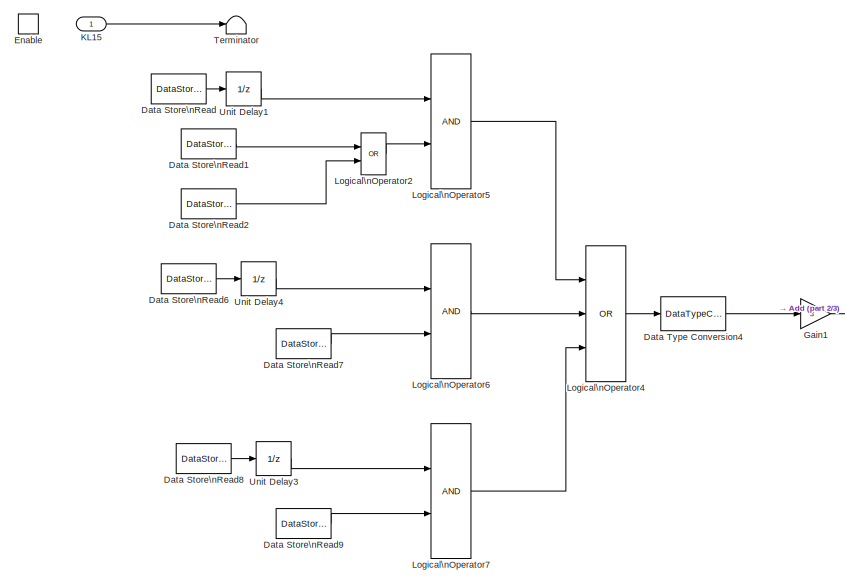
[diagram: DM_Ecu_St/Triggered\nSubsystem - part 1/3, full width, top band]
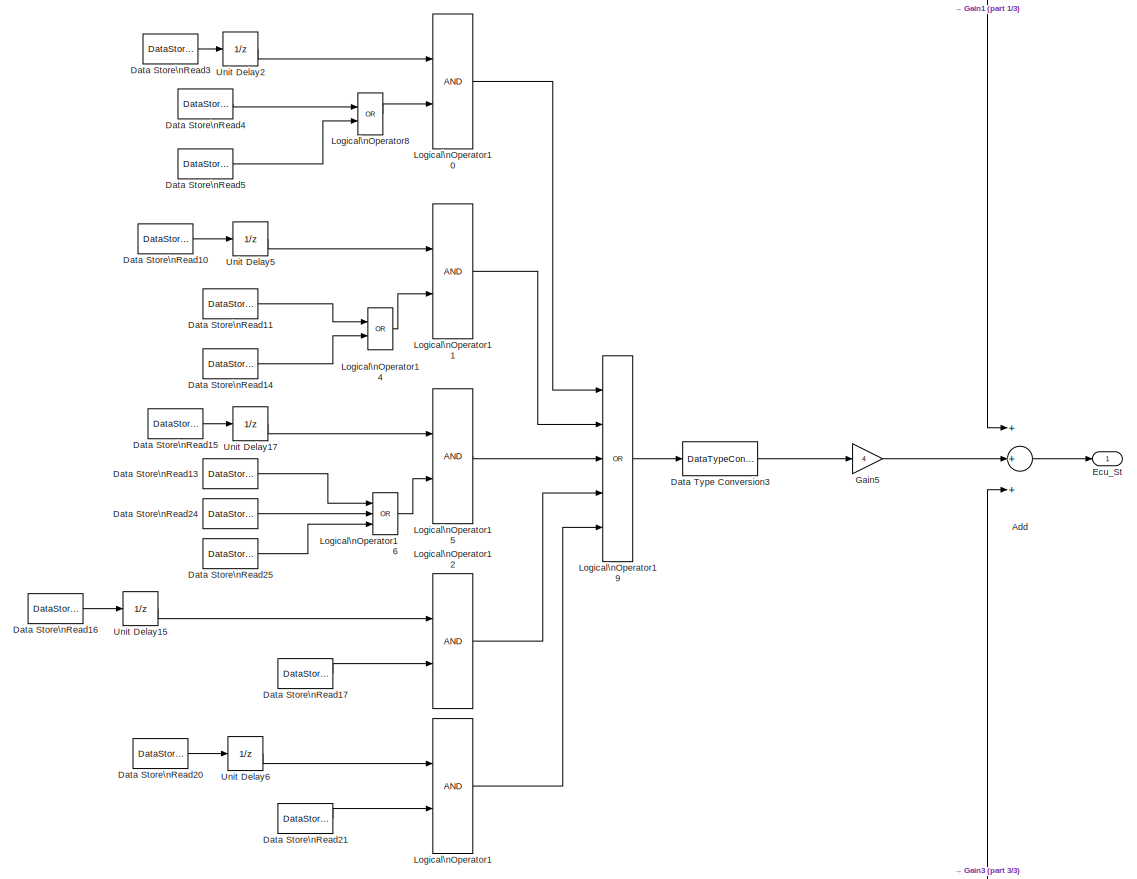
[diagram: DM_Ecu_St/Triggered\nSubsystem - part 2/3, full width, middle band]
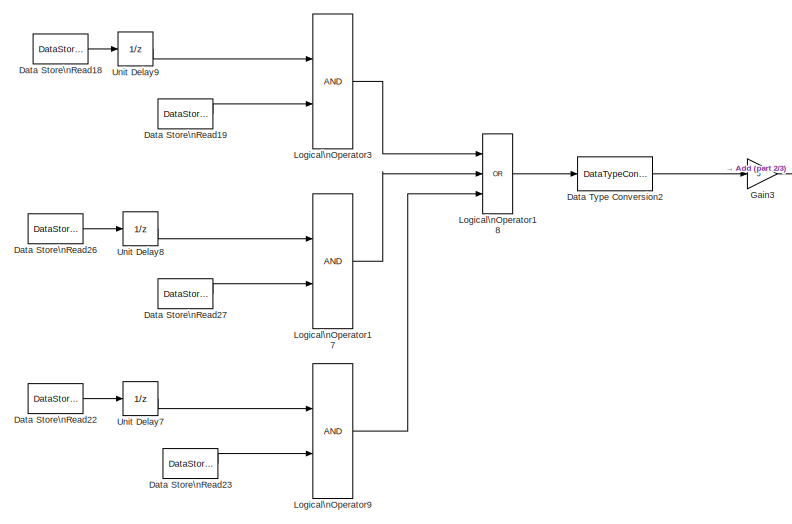
[diagram: DM_Ecu_St/Triggered\nSubsystem - part 3/3, bottom center region]
BLOCK [SubSystem] DM_Ecu_St/Triggered\nSubsystem
  FunctionWithSeparateData = off
  MaskHideContents = off
  MinAlgLoopOccurrences = off
  Opaque = off
  Ports = [1, 1, 1]
  PropExecContextOutsideSubsystem = off
  RTWSystemCode = Auto
  RequestExecContextInheritance = off
  SID = 4648
  TreatAsAtomicUnit = on
BLOCK [Sum] DM_Ecu_St/Triggered\nSubsystem/Add
  InputSameDT = off
  Inputs = +++
  OutDataTypeStr = Inherit: Inherit via internal rule
  Ports = [3, 1]
  SID = 4651
  SaturateOnIntegerOverflow = off
BLOCK [DataStoreRead] DM_Ecu_St/Triggered\nSubsystem/Data Store\nRead
  DataStoreName = K15_0
  Ports = [0, 1]
  SID = 4653
BLOCK [DataStoreRead] DM_Ecu_St/Triggered\nSubsystem/Data Store\nRead1
  DataStoreName = K15_1
  Ports = [0, 1]
  SID = 4654
BLOCK [DataStoreRead] DM_Ecu_St/Triggered\nSubsystem/Data Store\nRead10
  DataStoreName = K15_1
  Ports = [0, 1]
  SID = 4655
BLOCK [DataStoreRead] DM_Ecu_St/Triggered\nSubsystem/Data Store\nRead11
  DataStoreName = K15_4
  Ports = [0, 1]
  SID = 4656
BLOCK [DataStoreRead] DM_Ecu_St/Triggered\nSubsystem/Data Store\nRead13
  DataStoreName = K15_3
  Ports = [0, 1]
  SID = 4658
BLOCK [DataStoreRead] DM_Ecu_St/Triggered\nSubsystem/Data Store\nRead14
  DataStoreName = K15_5
  Ports = [0, 1]
  SID = 4659
BLOCK [DataStoreRead] DM_Ecu_St/Triggered\nSubsystem/Data Store\nRead15
  DataStoreName = K15_2
  Ports = [0, 1]
  SID = 4660
BLOCK [DataStoreRead] DM_Ecu_St/Triggered\nSubsystem/Data Store\nRead16
  DataStoreName = K15_5
  Ports = [0, 1]
  SID = 4661
BLOCK [DataStoreRead] DM_Ecu_St/Triggered\nSubsystem/Data Store\nRead17
  DataStoreName = K15_4
  Ports = [0, 1]
  SID = 4662
BLOCK [DataStoreRead] DM_Ecu_St/Triggered\nSubsystem/Data Store\nRead18
  DataStoreName = K15_4
  Ports = [0, 1]
  SID = 4663
BLOCK [DataStoreRead] DM_Ecu_St/Triggered\nSubsystem/Data Store\nRead19
  DataStoreName = K15_1
  Ports = [0, 1]
  SID = 4664
BLOCK [DataStoreRead] DM_Ecu_St/Triggered\nSubsystem/Data Store\nRead2
  DataStoreName = K15_2
  Ports = [0, 1]
  SID = 4665
BLOCK [DataStoreRead] DM_Ecu_St/Triggered\nSubsystem/Data Store\nRead20
  DataStoreName = K15_4
  Ports = [0, 1]
  SID = 4666
BLOCK [DataStoreRead] DM_Ecu_St/Triggered\nSubsystem/Data Store\nRead21
  DataStoreName = K15_5
  Ports = [0, 1]
  SID = 4667
BLOCK [DataStoreRead] DM_Ecu_St/Triggered\nSubsystem/Data Store\nRead22
  DataStoreName = K15_4
  Ports = [0, 1]
  SID = 4668
BLOCK [DataStoreRead] DM_Ecu_St/Triggered\nSubsystem/Data Store\nRead23
  DataStoreName = K15_3
  Ports = [0, 1]
  SID = 4669
BLOCK [DataStoreRead] DM_Ecu_St/Triggered\nSubsystem/Data Store\nRead24
  DataStoreName = K15_4
  Ports = [0, 1]
  SID = 4670
BLOCK [DataStoreRead] DM_Ecu_St/Triggered\nSubsystem/Data Store\nRead25
  DataStoreName = K15_5
  Ports = [0, 1]
  SID = 4671
BLOCK [DataStoreRead] DM_Ecu_St/Triggered\nSubsystem/Data Store\nRead26
  DataStoreName = K15_4
  Ports = [0, 1]
  SID = 4672
BLOCK [DataStoreRead] DM_Ecu_St/Triggered\nSubsystem/Data Store\nRead27
  DataStoreName = K15_2
  Ports = [0, 1]
  SID = 4673
BLOCK [DataStoreRead] DM_Ecu_St/Triggered\nSubsystem/Data Store\nRead3
  DataStoreName = K15_0
  Ports = [0, 1]
  SID = 4674
BLOCK [DataStoreRead] DM_Ecu_St/Triggered\nSubsystem/Data Store\nRead4
  DataStoreName = K15_4
  Ports = [0, 1]
  SID = 4675
BLOCK [DataStoreRead] DM_Ecu_St/Triggered\nSubsystem/Data Store\nRead5
  DataStoreName = K15_5
  Ports = [0, 1]
  SID = 4676
BLOCK [DataStoreRead] DM_Ecu_St/Triggered\nSubsystem/Data Store\nRead6
  DataStoreName = K15_1
  Ports = [0, 1]
  SID = 4677
BLOCK [DataStoreRead] DM_Ecu_St/Triggered\nSubsystem/Data Store\nRead7
  DataStoreName = K15_2
  Ports = [0, 1]
  SID = 4678
BLOCK [DataStoreRead] DM_Ecu_St/Triggered\nSubsystem/Data Store\nRead8
  DataStoreName = K15_2
  Ports = [0, 1]
  SID = 4679
BLOCK [DataStoreRead] DM_Ecu_St/Triggered\nSubsystem/Data Store\nRead9
  DataStoreName = K15_1
  Ports = [0, 1]
  SID = 4680
BLOCK [DataTypeConversion] DM_Ecu_St/Triggered\nSubsystem/Data Type Conversion2
  OutDataTypeStr = double
  RndMeth = Floor
  SID = 4681
  SaturateOnIntegerOverflow = off
BLOCK [DataTypeConversion] DM_Ecu_St/Triggered\nSubsystem/Data Type Conversion3
  OutDataTypeStr = double
  RndMeth = Floor
  SID = 4682
  SaturateOnIntegerOverflow = off
BLOCK [DataTypeConversion] DM_Ecu_St/Triggered\nSubsystem/Data Type Conversion4
  OutDataTypeStr = double
  RndMeth = Floor
  SID = 4683
  SaturateOnIntegerOverflow = off
BLOCK [Outport] DM_Ecu_St/Triggered\nSubsystem/Ecu_St
  IconDisplay = Port number
  SID = 4722
BLOCK [EnablePort] DM_Ecu_St/Triggered\nSubsystem/Enable
  Ports = []
  SID = 4650
BLOCK [Gain] DM_Ecu_St/Triggered\nSubsystem/Gain1
  Gain = 3
  OutDataTypeStr = Inherit: Inherit via internal rule
  ParamDataTypeStr = Inherit: Inherit via internal rule
  SID = 4687
  SaturateOnIntegerOverflow = off
BLOCK [Gain] DM_Ecu_St/Triggered\nSubsystem/Gain3
  Gain = 5
  OutDataTypeStr = Inherit: Inherit via internal rule
  ParamDataTypeStr = Inherit: Inherit via internal rule
  SID = 4688
  SaturateOnIntegerOverflow = off
BLOCK [Gain] DM_Ecu_St/Triggered\nSubsystem/Gain5
  Gain = 4
  OutDataTypeStr = Inherit: Inherit via internal rule
  ParamDataTypeStr = Inherit: Inherit via internal rule
  SID = 4689
  SaturateOnIntegerOverflow = off
BLOCK [Inport] DM_Ecu_St/Triggered\nSubsystem/KL15
  IconDisplay = Port number
  SID = 4649
  SamplingMode = Sample based
BLOCK [Logic] DM_Ecu_St/Triggered\nSubsystem/Logical\nOperator1
  AllPortsSameDT = off
  OutDataTypeStr = boolean
  Ports = [2, 1]
  SID = 4691
BLOCK [Logic] DM_Ecu_St/Triggered\nSubsystem/Logical\nOperator10
  AllPortsSameDT = off
  OutDataTypeStr = boolean
  Ports = [2, 1]
  SID = 4692
BLOCK [Logic] DM_Ecu_St/Triggered\nSubsystem/Logical\nOperator11
  AllPortsSameDT = off
  OutDataTypeStr = boolean
  Ports = [2, 1]
  SID = 4693
BLOCK [Logic] DM_Ecu_St/Triggered\nSubsystem/Logical\nOperator12
  AllPortsSameDT = off
  OutDataTypeStr = boolean
  Ports = [2, 1]
  SID = 4694
BLOCK [Logic] DM_Ecu_St/Triggered\nSubsystem/Logical\nOperator14
  AllPortsSameDT = off
  Operator = OR
  OutDataTypeStr = boolean
  Ports = [2, 1]
  SID = 4695
BLOCK [Logic] DM_Ecu_St/Triggered\nSubsystem/Logical\nOperator15
  AllPortsSameDT = off
  OutDataTypeStr = boolean
  Ports = [2, 1]
  SID = 4696
BLOCK [Logic] DM_Ecu_St/Triggered\nSubsystem/Logical\nOperator16
  AllPortsSameDT = off
  Inputs = 3
  Operator = OR
  OutDataTypeStr = boolean
  Ports = [3, 1]
  SID = 4697
BLOCK [Logic] DM_Ecu_St/Triggered\nSubsystem/Logical\nOperator17
  AllPortsSameDT = off
  OutDataTypeStr = boolean
  Ports = [2, 1]
  SID = 4698
BLOCK [Logic] DM_Ecu_St/Triggered\nSubsystem/Logical\nOperator18
  AllPortsSameDT = off
  Inputs = 3
  Operator = OR
  OutDataTypeStr = boolean
  Ports = [3, 1]
  SID = 4699
BLOCK [Logic] DM_Ecu_St/Triggered\nSubsystem/Logical\nOperator19
  AllPortsSameDT = off
  Inputs = 5
  Operator = OR
  OutDataTypeStr = boolean
  Ports = [5, 1]
  SID = 4700
BLOCK [Logic] DM_Ecu_St/Triggered\nSubsystem/Logical\nOperator2
  AllPortsSameDT = off
  Operator = OR
  OutDataTypeStr = boolean
  Ports = [2, 1]
  SID = 4701
BLOCK [Logic] DM_Ecu_St/Triggered\nSubsystem/Logical\nOperator3
  AllPortsSameDT = off
  OutDataTypeStr = boolean
  Ports = [2, 1]
  SID = 4702
BLOCK [Logic] DM_Ecu_St/Triggered\nSubsystem/Logical\nOperator4
  AllPortsSameDT = off
  Inputs = 3
  Operator = OR
  OutDataTypeStr = boolean
  Ports = [3, 1]
  SID = 4703
BLOCK [Logic] DM_Ecu_St/Triggered\nSubsystem/Logical\nOperator5
  AllPortsSameDT = off
  OutDataTypeStr = boolean
  Ports = [2, 1]
  SID = 4704
BLOCK [Logic] DM_Ecu_St/Triggered\nSubsystem/Logical\nOperator6
  AllPortsSameDT = off
  OutDataTypeStr = boolean
  Ports = [2, 1]
  SID = 4705
BLOCK [Logic] DM_Ecu_St/Triggered\nSubsystem/Logical\nOperator7
  AllPortsSameDT = off
  OutDataTypeStr = boolean
  Ports = [2, 1]
  SID = 4706
BLOCK [Logic] DM_Ecu_St/Triggered\nSubsystem/Logical\nOperator8
  AllPortsSameDT = off
  Operator = OR
  OutDataTypeStr = boolean
  Ports = [2, 1]
  SID = 4707
BLOCK [Logic] DM_Ecu_St/Triggered\nSubsystem/Logical\nOperator9
  AllPortsSameDT = off
  OutDataTypeStr = boolean
  Ports = [2, 1]
  SID = 4708
BLOCK [Terminator] DM_Ecu_St/Triggered\nSubsystem/Terminator
  SID = 4726
BLOCK [UnitDelay] DM_Ecu_St/Triggered\nSubsystem/Unit Delay1
  InputProcessing = Elements as channels (sample based)
  SID = 4711
  SampleTime = -1
BLOCK [UnitDelay] DM_Ecu_St/Triggered\nSubsystem/Unit Delay15
  InputProcessing = Elements as channels (sample based)
  SID = 4712
  SampleTime = -1
BLOCK [UnitDelay] DM_Ecu_St/Triggered\nSubsystem/Unit Delay17
  InputProcessing = Elements as channels (sample based)
  SID = 4713
  SampleTime = -1
BLOCK [UnitDelay] DM_Ecu_St/Triggered\nSubsystem/Unit Delay2
  InputProcessing = Elements as channels (sample based)
  SID = 4714
  SampleTime = -1
BLOCK [UnitDelay] DM_Ecu_St/Triggered\nSubsystem/Unit Delay3
  InputProcessing = Elements as channels (sample based)
  SID = 4715
  SampleTime = -1
BLOCK [UnitDelay] DM_Ecu_St/Triggered\nSubsystem/Unit Delay4
  InputProcessing = Elements as channels (sample based)
  SID = 4716
  SampleTime = -1
BLOCK [UnitDelay] DM_Ecu_St/Triggered\nSubsystem/Unit Delay5
  InputProcessing = Elements as channels (sample based)
  SID = 4717
  SampleTime = -1
BLOCK [UnitDelay] DM_Ecu_St/Triggered\nSubsystem/Unit Delay6
  InputProcessing = Elements as channels (sample based)
  SID = 4718
  SampleTime = -1
BLOCK [UnitDelay] DM_Ecu_St/Triggered\nSubsystem/Unit Delay7
  InputProcessing = Elements as channels (sample based)
  SID = 4719
  SampleTime = -1
BLOCK [UnitDelay] DM_Ecu_St/Triggered\nSubsystem/Unit Delay8
  InputProcessing = Elements as channels (sample based)
  SID = 4720
  SampleTime = -1
BLOCK [UnitDelay] DM_Ecu_St/Triggered\nSubsystem/Unit Delay9
  InputProcessing = Elements as channels (sample based)
  SID = 4721
  SampleTime = -1
BLOCK [UnitDelay] DM_Ecu_St/Unit Delay1
  InputProcessing = Elements as channels (sample based)
  SID = 4723
  SampleTime = -1
BLOCK [UnitDelay] DM_Ecu_St/Unit Delay2
  InputProcessing = Elements as channels (sample based)
  SID = 4724
  SampleTime = -1
BLOCK [SubSystem] DM_Ecu_StBusReq
  FunctionWithSeparateData = off
  MaskHideContents = off
  MinAlgLoopOccurrences = off
  Opaque = off
  Ports = [1, 1]
  PropExecContextOutsideSubsystem = off
  RTWSystemCode = Auto
  RequestExecContextInheritance = off
  SID = 583
BLOCK [Constant] DM_Ecu_StBusReq/Constant1
  SID = 585
BLOCK [Constant] DM_Ecu_StBusReq/Constant2
  SID = 586
  Value = 2
BLOCK [SubSystem] DM_Ecu_StBusReq/DM_Ign_Mode
  FunctionWithSeparateData = off
  MaskHideContents = off
  MinAlgLoopOccurrences = off
  Opaque = off
  Ports = [1, 1]
  PropExecContextOutsideSubsystem = off
  RTWSystemCode = Auto
  RequestExecContextInheritance = off
  SID = 1334
BLOCK [Constant] DM_Ecu_StBusReq/DM_Ign_Mode/Constant
  SID = 1336
  Value = 3
BLOCK [Inport] DM_Ecu_StBusReq/DM_Ign_Mode/EIS_IgnSwState
  IconDisplay = Port number
  SID = 1335
BLOCK [Outport] DM_Ecu_StBusReq/DM_Ign_Mode/Ign_Mode
  IconDisplay = Port number
  SID = 1338
BLOCK [RelationalOperator] DM_Ecu_StBusReq/DM_Ign_Mode/Relational\nOperator
  InputSameDT = off
  OutDataTypeStr = boolean
  Ports = [2, 1]
  SID = 1337
BLOCK [Inport] DM_Ecu_StBusReq/EIS_IgnSwState
  IconDisplay = Port number
  SID = 584
BLOCK [Outport] DM_Ecu_StBusReq/Ecu_StBusReq
  IconDisplay = Port number
  SID = 588
BLOCK [Switch] DM_Ecu_StBusReq/Switch
  Criteria = u2 > Threshold
  InputSameDT = off
  SID = 587
  SaturateOnIntegerOverflow = off
BLOCK [SubSystem] DM_Efb_FlgHvRdyModPlaus
  FunctionWithSeparateData = off
  MaskHideContents = off
  MinAlgLoopOccurrences = off
  Opaque = off
  Ports = [0, 1]
  PropExecContextOutsideSubsystem = off
  RTWSystemCode = Auto
  RequestExecContextInheritance = off
  SID = 386
BLOCK [Constant] DM_Efb_FlgHvRdyModPlaus/Constant
  SID = 387
  Value = 0
BLOCK [Outport] DM_Efb_FlgHvRdyModPlaus/Efb_FlgHvRdyModPlaus
  IconDisplay = Port number
  SID = 388
BLOCK [SubSystem] DM_Em_PhaAcCur
  FunctionWithSeparateData = off
  MaskHideContents = off
  MinAlgLoopOccurrences = off
  Opaque = off
  Ports = [1, 1]
  PropExecContextOutsideSubsystem = off
  RTWSystemCode = Auto
  RequestExecContextInheritance = off
  SID = 503
BLOCK [Lookup_n-D] DM_Em_PhaAcCur/1-D Lookup\nTable
  BreakpointsForDimension1 = [-247 0 231]
  IndexSearchMethod = Binary search
  NumberOfTableDimensions = 1
  Ports = [1, 1]
  RndMeth = Simplest
  SID = 505
  Table = [-150 0 150]
BLOCK [Abs] DM_Em_PhaAcCur/Abs
  SID = 506
  SaturateOnIntegerOverflow = off
BLOCK [Inport] DM_Em_PhaAcCur/EM2_Trq
  IconDisplay = Port number
  SID = 504
BLOCK [Outport] DM_Em_PhaAcCur/Em_PhaAcCur
  IconDisplay = Port number
  SID = 509
BLOCK [Gain] DM_Em_PhaAcCur/Gain
  Gain = 1/.636
  OutDataTypeStr = Inherit: Inherit via internal rule
  ParamDataTypeStr = Inherit: Inherit via internal rule
  SID = 507
  SaturateOnIntegerOverflow = off
BLOCK [Saturate] DM_Em_PhaAcCur/Saturation1
  InputPortMap = u0
  LowerLimit = 0
  Ports = [1, 1]
  SID = 508
  UpperLimit = Inf
BLOCK [SubSystem] DM_Emm_FlgNetSndrEna
  FunctionWithSeparateData = off
  MaskHideContents = off
  MinAlgLoopOccurrences = off
  Opaque = off
  Ports = [0, 1]
  PropExecContextOutsideSubsystem = off
  RTWSystemCode = Auto
  RequestExecContextInheritance = off
  SID = 5851
BLOCK [Constant] DM_Emm_FlgNetSndrEna/Constant
  SID = 5852
  Value = 0
BLOCK [Outport] DM_Emm_FlgNetSndrEna/Emm_FlgNetSndrEna
  IconDisplay = Port number
  SID = 5853
BLOCK [SubSystem] DM_EngClpmp_PercPwrReq
  FunctionWithSeparateData = off
  MaskHideContents = off
  MinAlgLoopOccurrences = off
  Opaque = off
  Ports = [0, 1]
  PropExecContextOutsideSubsystem = off
  RTWSystemCode = Auto
  RequestExecContextInheritance = off
  SID = 1603
BLOCK [Constant] DM_EngClpmp_PercPwrReq/Constant
  SID = 1604
  Value = 0
BLOCK [Outport] DM_EngClpmp_PercPwrReq/EngClpmp_PercPwrReq
  IconDisplay = Port number
  SID = 1605
BLOCK [SubSystem] DM_EngShutOff_Time
  FunctionWithSeparateData = off
  MaskHideContents = off
  MinAlgLoopOccurrences = off
  Opaque = off
  Ports = [1, 1]
  PropExecContextOutsideSubsystem = off
  RTWSystemCode = Auto
  RequestExecContextInheritance = off
  SID = 389
BLOCK [Reference] DM_EngShutOff_Time/Compare\nTo Zero1  REF=simulink/Logic and Bit\nOperations/Compare\nTo Zero
  OutDataTypeStr = uint8
  Ports = [1, 1]
  SID = 391
  SourceBlock = simulink/Logic and Bit\nOperations/Compare\nTo Zero
  SourceType = Compare To Zero
  ZeroCross = on
  relop = >
BLOCK [Constant] DM_EngShutOff_Time/Const
  SID = 392
  Value = 0
BLOCK [Constant] DM_EngShutOff_Time/Const2
  SID = 393
  Value = 0
BLOCK [Constant] DM_EngShutOff_Time/Constant1
  SID = 394
  Value = 0
BLOCK [Constant] DM_EngShutOff_Time/Constant2
  SID = 395
  Value = 0
BLOCK [Outport] DM_EngShutOff_Time/EngShutoff_Time
  IconDisplay = Port number
  SID = 409
BLOCK [Inport] DM_EngShutOff_Time/Eng_Spd
  IconDisplay = Port number
  SID = 390
BLOCK [MultiPortSwitch] DM_EngShutOff_Time/Index\nVector
  DataPortOrder = Zero-based contiguous
  InputSameDT = off
  Inputs = 2
  Ports = [3, 1]
  SID = 396
  SaturateOnIntegerOverflow = off
  zeroidx = on
BLOCK [Logic] DM_EngShutOff_Time/Logical\nOperator1
  AllPortsSameDT = off
  Operator = OR
  Ports = [2, 1]
  SID = 397
BLOCK [Logic] DM_EngShutOff_Time/Logical\nOperator2
  AllPortsSameDT = off
  Operator = OR
  Ports = [2, 1]
  SID = 398
BLOCK [Constant] DM_EngShutOff_Time/ResetValueIfEngineIsRunning [0:No 1:Yes]
  SID = 399
  Value = 0
BLOCK [Rounding] DM_EngShutOff_Time/Rounding\nFunction
  SID = 400
BLOCK [Saturate] DM_EngShutOff_Time/Saturation1
  InputPortMap = u0
  LowerLimit = 0
  Ports = [1, 1]
  SID = 401
  UpperLimit = 4095
BLOCK [Saturate] DM_EngShutOff_Time/Saturation2
  InputPortMap = u0
  LowerLimit = 0
  OutDataTypeStr = double
  Ports = [1, 1]
  SID = 402
  UpperLimit = 4095
BLOCK [Switch] DM_EngShutOff_Time/Switch1
  Criteria = u2 > Threshold
  InputSameDT = off
  SID = 403
BLOCK [Integrator] DM_EngShutOff_Time/engineOff
  ExternalReset = falling
  InitialConditionSource = external
  Ports = [3, 1]
  SID = 404
BLOCK [Integrator] DM_EngShutOff_Time/engineRunning
  ExternalReset = falling
  InitialConditionSource = external
  Ports = [3, 1]
  SID = 405
BLOCK [Constant] DM_EngShutOff_Time/s2min
  SID = 406
  Value = 1/60
BLOCK [Constant] DM_EngShutOff_Time/s2min1
  SID = 407
  Value = 1/60
BLOCK [Switch] DM_EngShutOff_Time/stopIntegrator
  InputSameDT = off
  SID = 408
  Threshold = 0.5
BLOCK [SubSystem] DM_Eng_Actl_OpMode
  FunctionWithSeparateData = off
  MaskHideContents = off
  MinAlgLoopOccurrences = off
  Opaque = off
  Ports = [1, 1]
  PropExecContextOutsideSubsystem = off
  RTWSystemCode = Auto
  RequestExecContextInheritance = off
  SID = 5967
BLOCK [Constant] DM_Eng_Actl_OpMode/Constant
  SID = 5969
  Value = 2
BLOCK [Outport] DM_Eng_Actl_OpMode/Eng_Actl_OpMode
  IconDisplay = Port number
  SID = 5971
BLOCK [Inport] DM_Eng_Actl_OpMode/Eng_State_Actl
  IconDisplay = Port number
  SID = 5968
BLOCK [Math] DM_Eng_Actl_OpMode/Math\nFunction
  Operator = pow
  Ports = [2, 1]
  SID = 5970
BLOCK [SubSystem] DM_Eng_Cyc_Time
  FunctionWithSeparateData = off
  MaskHideContents = off
  MinAlgLoopOccurrences = off
  Opaque = off
  Ports = [2, 1]
  PropExecContextOutsideSubsystem = off
  RTWSystemCode = Auto
  RequestExecContextInheritance = off
  SID = 85
BLOCK [Constant] DM_Eng_Cyc_Time/Constant46
  SID = 88
  Value = 696000
BLOCK [Constant] DM_Eng_Cyc_Time/Constant47
  SID = 89
  Value = 0
BLOCK [Constant] DM_Eng_Cyc_Time/Constant48
  SID = 90
  Value = 0
BLOCK [SubSystem] DM_Eng_Cyc_Time/Counter_RE
  FunctionWithSeparateData = off
  MaskHideContents = off
  MinAlgLoopOccurrences = off
  Opaque = off
  Ports = [3, 1]
  PropExecContextOutsideSubsystem = off
  RTWSystemCode = Auto
  RequestExecContextInheritance = off
  SID = 91
BLOCK [Sum] DM_Eng_Cyc_Time/Counter_RE/Add1
  InputSameDT = off
  OutDataTypeStr = Inherit: Inherit via internal rule
  Ports = [2, 1]
  SID = 95
  SaturateOnIntegerOverflow = off
BLOCK [Constant] DM_Eng_Cyc_Time/Counter_RE/Constant1
  SID = 96
BLOCK [Inport] DM_Eng_Cyc_Time/Counter_RE/Enable
  IconDisplay = Port number
  SID = 92
BLOCK [Inport] DM_Eng_Cyc_Time/Counter_RE/InitVal
  IconDisplay = Port number
  Port = 3
  SID = 94
BLOCK [Inport] DM_Eng_Cyc_Time/Counter_RE/Reset
  IconDisplay = Port number
  Port = 2
  SID = 93
BLOCK [Switch] DM_Eng_Cyc_Time/Counter_RE/Switch2
  InputSameDT = off
  SID = 97
  SaturateOnIntegerOverflow = off
  Threshold = 1
BLOCK [Switch] DM_Eng_Cyc_Time/Counter_RE/Switch3
  InputSameDT = off
  SID = 98
  SaturateOnIntegerOverflow = off
  Threshold = 1
BLOCK [UnitDelay] DM_Eng_Cyc_Time/Counter_RE/Unit Delay3
  InputProcessing = Elements as channels (sample based)
  SID = 99
  SampleTime = -1
BLOCK [Outport] DM_Eng_Cyc_Time/Counter_RE/y
  IconDisplay = Port number
  InitialOutput = 0
  SID = 100
BLOCK [SubSystem] DM_Eng_Cyc_Time/DM_IgnSwRun_Mode
  FunctionWithSeparateData = off
  MaskHideContents = off
  MinAlgLoopOccurrences = off
  Opaque = off
  Ports = [1, 1]
  PropExecContextOutsideSubsystem = off
  RTWSystemCode = Auto
  RequestExecContextInheritance = off
  SID = 1320
BLOCK [Constant] DM_Eng_Cyc_Time/DM_IgnSwRun_Mode/Constant
  SID = 1322
  Value = 4
BLOCK [Inport] DM_Eng_Cyc_Time/DM_IgnSwRun_Mode/EIS_IgnSwState
  IconDisplay = Port number
  SID = 1321
BLOCK [Outport] DM_Eng_Cyc_Time/DM_IgnSwRun_Mode/IgnSwRun_Mode
  IconDisplay = Port number
  SID = 1324
BLOCK [RelationalOperator] DM_Eng_Cyc_Time/DM_IgnSwRun_Mode/Relational\nOperator
  InputSameDT = off
  Operator = ==
  OutDataTypeStr = boolean
  Ports = [2, 1]
  SID = 1323
BLOCK [Inport] DM_Eng_Cyc_Time/EIS_IgnSwState
  IconDisplay = Port number
  Port = 2
  SID = 87
BLOCK [SubSystem] DM_Eng_Cyc_Time/EdgeBi
  FunctionWithSeparateData = off
  MaskHideContents = off
  MinAlgLoopOccurrences = off
  Opaque = off
  Ports = [3, 1]
  PropExecContextOutsideSubsystem = off
  RTWSystemCode = Auto
  RequestExecContextInheritance = off
  SID = 101
BLOCK [Inport] DM_Eng_Cyc_Time/EdgeBi/IV
  IconDisplay = Port number
  Port = 3
  SID = 104
BLOCK [Inport] DM_Eng_Cyc_Time/EdgeBi/R
  IconDisplay = Port number
  Port = 2
  SID = 103
BLOCK [RelationalOperator] DM_Eng_Cyc_Time/EdgeBi/Relational\nOperator
  InputSameDT = off
  Operator = ~=
  OutDataTypeStr = boolean
  Ports = [2, 1]
  SID = 105
BLOCK [Switch] DM_Eng_Cyc_Time/EdgeBi/Switch2
  InputSameDT = off
  SID = 106
  SaturateOnIntegerOverflow = off
  Threshold = 1
BLOCK [UnitDelay] DM_Eng_Cyc_Time/EdgeBi/Unit Delay3
  InputProcessing = Elements as channels (sample based)
  SID = 107
  SampleTime = -1
BLOCK [Inport] DM_Eng_Cyc_Time/EdgeBi/u
  IconDisplay = Port number
  SID = 102
BLOCK [Outport] DM_Eng_Cyc_Time/EdgeBi/y
  IconDisplay = Port number
  InitialOutput = 0
  SID = 108
BLOCK [Outport] DM_Eng_Cyc_Time/Eng_Cyc_Time
  IconDisplay = Port number
  SID = 111
BLOCK [Reference] DM_Eng_Cyc_Time/Eng_Run2_Mode_Sys  REF=TM_DynamicModel_Library/DM_Eng_Run2_Mode
  Ports = [1, 1]
  SID = 421
  SourceBlock = TM_DynamicModel_Library/DM_Eng_Run2_Mode
  SourceType = SubSystem
BLOCK [Inport] DM_Eng_Cyc_Time/Eng_Spd
  IconDisplay = Port number
  SID = 86
BLOCK [Gain] DM_Eng_Cyc_Time/Gain
  Gain = 0.01
  OutDataTypeStr = Inherit: Inherit via internal rule
  ParamDataTypeStr = Inherit: Inherit via internal rule
  SID = 288
  SaturateOnIntegerOverflow = off
BLOCK [UnitDelay] DM_Eng_Cyc_Time/Unit Delay3
  InputProcessing = Elements as channels (sample based)
  SID = 110
  SampleTime = -1
BLOCK [SubSystem] DM_Eng_Ign_Time
  FunctionWithSeparateData = off
  MaskHideContents = off
  MinAlgLoopOccurrences = off
  Opaque = off
  Ports = [3, 1]
  PropExecContextOutsideSubsystem = off
  RTWSystemCode = Auto
  RequestExecContextInheritance = off
  SID = 289
BLOCK [Constant] DM_Eng_Ign_Time/Constant46
  SID = 293
  Value = 727300
BLOCK [Constant] DM_Eng_Ign_Time/Constant47
  SID = 294
  Value = 0
BLOCK [Constant] DM_Eng_Ign_Time/Constant48
  SID = 295
  Value = 0
BLOCK [SubSystem] DM_Eng_Ign_Time/Counter_RE
  FunctionWithSeparateData = off
  MaskHideContents = off
  MinAlgLoopOccurrences = off
  Opaque = off
  Ports = [3, 1]
  PropExecContextOutsideSubsystem = off
  RTWSystemCode = Auto
  RequestExecContextInheritance = off
  SID = 296
BLOCK [Sum] DM_Eng_Ign_Time/Counter_RE/Add1
  InputSameDT = off
  OutDataTypeStr = Inherit: Inherit via internal rule
  Ports = [2, 1]
  SID = 300
  SaturateOnIntegerOverflow = off
BLOCK [Constant] DM_Eng_Ign_Time/Counter_RE/Constant1
  SID = 301
BLOCK [Inport] DM_Eng_Ign_Time/Counter_RE/Enable
  IconDisplay = Port number
  SID = 297
BLOCK [Inport] DM_Eng_Ign_Time/Counter_RE/InitVal
  IconDisplay = Port number
  Port = 3
  SID = 299
BLOCK [Inport] DM_Eng_Ign_Time/Counter_RE/Reset
  IconDisplay = Port number
  Port = 2
  SID = 298
BLOCK [Switch] DM_Eng_Ign_Time/Counter_RE/Switch2
  InputSameDT = off
  SID = 302
  SaturateOnIntegerOverflow = off
  Threshold = 1
BLOCK [Switch] DM_Eng_Ign_Time/Counter_RE/Switch3
  InputSameDT = off
  SID = 303
  SaturateOnIntegerOverflow = off
  Threshold = 1
BLOCK [UnitDelay] DM_Eng_Ign_Time/Counter_RE/Unit Delay3
  InputProcessing = Elements as channels (sample based)
  SID = 304
  SampleTime = -1
BLOCK [Outport] DM_Eng_Ign_Time/Counter_RE/y
  IconDisplay = Port number
  InitialOutput = 0
  SID = 305
BLOCK [Reference] DM_Eng_Ign_Time/DM_AGC_ASSStop_Mode  REF=TM_DynamicModel_Library/DM_AGC_ASSStop_Mode
  Ports = [2, 1]
  SID = 1495
  SourceBlock = TM_DynamicModel_Library/DM_AGC_ASSStop_Mode
  SourceType = SubSystem
BLOCK [SubSystem] DM_Eng_Ign_Time/DM_Ign_Mode
  FunctionWithSeparateData = off
  MaskHideContents = off
  MinAlgLoopOccurrences = off
  Opaque = off
  Ports = [1, 1]
  PropExecContextOutsideSubsystem = off
  RTWSystemCode = Auto
  RequestExecContextInheritance = off
  SID = 1315
BLOCK [Constant] DM_Eng_Ign_Time/DM_Ign_Mode/Constant
  SID = 1317
  Value = 3
BLOCK [Inport] DM_Eng_Ign_Time/DM_Ign_Mode/EIS_IgnSwState
  IconDisplay = Port number
  SID = 1316
BLOCK [Outport] DM_Eng_Ign_Time/DM_Ign_Mode/Ign_Mode
  IconDisplay = Port number
  SID = 1319
BLOCK [RelationalOperator] DM_Eng_Ign_Time/DM_Ign_Mode/Relational\nOperator
  InputSameDT = off
  OutDataTypeStr = boolean
  Ports = [2, 1]
  SID = 1318
BLOCK [Inport] DM_Eng_Ign_Time/EIS_IgnSwState
  IconDisplay = Port number
  Port = 3
  SID = 292
BLOCK [SubSystem] DM_Eng_Ign_Time/EdgeBi
  FunctionWithSeparateData = off
  MaskHideContents = off
  MinAlgLoopOccurrences = off
  Opaque = off
  Ports = [3, 1]
  PropExecContextOutsideSubsystem = off
  RTWSystemCode = Auto
  RequestExecContextInheritance = off
  SID = 306
BLOCK [Inport] DM_Eng_Ign_Time/EdgeBi/IV
  IconDisplay = Port number
  Port = 3
  SID = 309
BLOCK [Inport] DM_Eng_Ign_Time/EdgeBi/R
  IconDisplay = Port number
  Port = 2
  SID = 308
BLOCK [RelationalOperator] DM_Eng_Ign_Time/EdgeBi/Relational\nOperator
  InputSameDT = off
  Operator = ~=
  OutDataTypeStr = boolean
  Ports = [2, 1]
  SID = 310
BLOCK [Switch] DM_Eng_Ign_Time/EdgeBi/Switch2
  InputSameDT = off
  SID = 311
  SaturateOnIntegerOverflow = off
  Threshold = 1
BLOCK [UnitDelay] DM_Eng_Ign_Time/EdgeBi/Unit Delay3
  InputProcessing = Elements as channels (sample based)
  SID = 312
  SampleTime = -1
BLOCK [Inport] DM_Eng_Ign_Time/EdgeBi/u
  IconDisplay = Port number
  SID = 307
BLOCK [Outport] DM_Eng_Ign_Time/EdgeBi/y
  IconDisplay = Port number
  InitialOutput = 0
  SID = 313
BLOCK [Outport] DM_Eng_Ign_Time/Eng_Ign_Time
  IconDisplay = Port number
  SID = 318
BLOCK [Reference] DM_Eng_Ign_Time/Eng_Run2_Mode_Sys  REF=TM_DynamicModel_Library/DM_Eng_Run2_Mode
  Ports = [1, 1]
  SID = 420
  SourceBlock = TM_DynamicModel_Library/DM_Eng_Run2_Mode
  SourceType = SubSystem
BLOCK [Inport] DM_Eng_Ign_Time/Eng_Spd
  IconDisplay = Port number
  SID = 290
BLOCK [Inport] DM_Eng_Ign_Time/Eng_Trq
  IconDisplay = Port number
  Port = 2
  SID = 291
BLOCK [Gain] DM_Eng_Ign_Time/Gain
  Gain = 0.01
  OutDataTypeStr = Inherit: Inherit via internal rule
  ParamDataTypeStr = Inherit: Inherit via internal rule
  SID = 315
  SaturateOnIntegerOverflow = off
BLOCK [Logic] DM_Eng_Ign_Time/Logical\nOperator
  AllPortsSameDT = off
  Operator = OR
  OutDataTypeStr = boolean
  Ports = [2, 1]
  SID = 316
BLOCK [UnitDelay] DM_Eng_Ign_Time/Unit Delay3
  InputProcessing = Elements as channels (sample based)
  SID = 317
  SampleTime = -1
BLOCK [SubSystem] DM_Eng_RelLoad
  FunctionWithSeparateData = off
  MaskHideContents = off
  MinAlgLoopOccurrences = off
  Opaque = off
  Ports = [2, 1]
  PropExecContextOutsideSubsystem = off
  RTWSystemCode = Auto
  RequestExecContextInheritance = off
  SID = 322
BLOCK [Reference] DM_Eng_RelLoad/Compare\nTo Constant  REF=simulink/Logic and Bit\nOperations/Compare\nTo Constant
  OutDataTypeStr = uint8
  Ports = [1, 1]
  SID = 325
  SourceBlock = simulink/Logic and Bit\nOperations/Compare\nTo Constant
  SourceType = Compare To Constant
  ZeroCross = on
  const = 400
  relop = >=
BLOCK [Constant] DM_Eng_RelLoad/Cylinder Volume [m3]
  SID = 326
  Value = 0.003
BLOCK [Product] DM_Eng_RelLoad/Divide
  InputSameDT = off
  Inputs = */
  OutDataTypeStr = Inherit: Inherit via internal rule
  Ports = [2, 1]
  RndMeth = Floor
  SID = 327
  SaturateOnIntegerOverflow = off
BLOCK [Outport] DM_Eng_RelLoad/Eng_RelLoad
  IconDisplay = Port number
  SID = 335
BLOCK [Inport] DM_Eng_RelLoad/Eng_Spd
  IconDisplay = Port number
  Port = 2
  SID = 324
BLOCK [Constant] DM_Eng_RelLoad/Fixed from measurement Data
  SID = 328
  Value = 62
BLOCK [Inport] DM_Eng_RelLoad/MAF
  IconDisplay = Port number
  SID = 323
BLOCK [Constant] DM_Eng_RelLoad/P//RT
  SID = 329
  Value = 101325/(287*273)
BLOCK [Product] DM_Eng_RelLoad/Product
  InputSameDT = off
  Inputs = 3
  OutDataTypeStr = Inherit: Inherit via internal rule
  Ports = [3, 1]
  SID = 330
  SaturateOnIntegerOverflow = off
BLOCK [Switch] DM_Eng_RelLoad/Switch
  Criteria = u2 ~= 0
  InputSameDT = off
  SID = 331
  SaturateOnIntegerOverflow = off
BLOCK [Gain] DM_Eng_RelLoad/kgph to kgps
  Gain = 1/3600
  OutDataTypeStr = Inherit: Inherit via internal rule
  ParamDataTypeStr = Inherit: Inherit via internal rule
  SID = 332
  SaturateOnIntegerOverflow = off
BLOCK [Gain] DM_Eng_RelLoad/rpm_to_cycPerSec
  Gain = 1/(60*2)
  OutDataTypeStr = Inherit: Inherit via internal rule
  ParamDataTypeStr = Inherit: Inherit via internal rule
  SID = 333
  SaturateOnIntegerOverflow = off
BLOCK [Gain] DM_Eng_RelLoad/toPercent
  Gain = 100
  OutDataTypeStr = Inherit: Inherit via internal rule
  ParamDataTypeStr = Inherit: Inherit via internal rule
  SID = 334
  SaturateOnIntegerOverflow = off
BLOCK [SubSystem] DM_Eng_RelLoad_Req
  FunctionWithSeparateData = off
  MaskHideContents = off
  MinAlgLoopOccurrences = off
  Opaque = off
  Ports = [2, 1]
  PropExecContextOutsideSubsystem = off
  RTWSystemCode = Auto
  RequestExecContextInheritance = off
  SID = 1523
BLOCK [Reference] DM_Eng_RelLoad_Req/Compare\nTo Constant  REF=simulink/Logic and Bit\nOperations/Compare\nTo Constant
  OutDataTypeStr = uint8
  Ports = [1, 1]
  SID = 1526
  SourceBlock = simulink/Logic and Bit\nOperations/Compare\nTo Constant
  SourceType = Compare To Constant
  ZeroCross = on
  const = 400
  relop = >=
BLOCK [Constant] DM_Eng_RelLoad_Req/Cyclinder Volume [m3]
  SID = 1527
  Value = 0.003
BLOCK [Product] DM_Eng_RelLoad_Req/Divide
  InputSameDT = off
  Inputs = */
  OutDataTypeStr = Inherit: Inherit via internal rule
  Ports = [2, 1]
  RndMeth = Floor
  SID = 1528
  SaturateOnIntegerOverflow = off
BLOCK [Outport] DM_Eng_RelLoad_Req/Eng_RelLoad_Req
  IconDisplay = Port number
  SID = 1536
BLOCK [Inport] DM_Eng_RelLoad_Req/Eng_Spd
  IconDisplay = Port number
  Port = 2
  SID = 1525
BLOCK [Constant] DM_Eng_RelLoad_Req/Fixed from measurement Data
  SID = 1529
  Value = 62
BLOCK [Inport] DM_Eng_RelLoad_Req/MAF
  IconDisplay = Port number
  SID = 1524
BLOCK [Constant] DM_Eng_RelLoad_Req/P//RT
  SID = 1530
  Value = 101325/(287*273)
BLOCK [Product] DM_Eng_RelLoad_Req/Product
  InputSameDT = off
  Inputs = 3
  OutDataTypeStr = Inherit: Inherit via internal rule
  Ports = [3, 1]
  SID = 1531
  SaturateOnIntegerOverflow = off
BLOCK [Switch] DM_Eng_RelLoad_Req/Switch
  Criteria = u2 ~= 0
  InputSameDT = off
  SID = 1532
  SaturateOnIntegerOverflow = off
BLOCK [Gain] DM_Eng_RelLoad_Req/kgph to kgps
  Gain = 1/3600
  OutDataTypeStr = Inherit: Inherit via internal rule
  ParamDataTypeStr = Inherit: Inherit via internal rule
  SID = 1533
  SaturateOnIntegerOverflow = off
BLOCK [Gain] DM_Eng_RelLoad_Req/rpm_to_cycPerSec
  Gain = 1/(60*2)
  OutDataTypeStr = Inherit: Inherit via internal rule
  ParamDataTypeStr = Inherit: Inherit via internal rule
  SID = 1534
  SaturateOnIntegerOverflow = off
BLOCK [Gain] DM_Eng_RelLoad_Req/toPercent
  Gain = 100
  OutDataTypeStr = Inherit: Inherit via internal rule
  ParamDataTypeStr = Inherit: Inherit via internal rule
  SID = 1535
  SaturateOnIntegerOverflow = off
BLOCK [SubSystem] DM_Eng_Run2_Mode
  FunctionWithSeparateData = off
  MaskHideContents = off
  MinAlgLoopOccurrences = off
  Opaque = off
  Ports = [1, 1]
  PropExecContextOutsideSubsystem = off
  RTWSystemCode = Auto
  RequestExecContextInheritance = off
  SID = 76
BLOCK [Reference] DM_Eng_Run2_Mode/Compare\nTo Constant  REF=simulink/Logic and Bit\nOperations/Compare\nTo Constant
  OutDataTypeStr = uint8
  Ports = [1, 1]
  SID = 78
  SourceBlock = simulink/Logic and Bit\nOperations/Compare\nTo Constant
  SourceType = Compare To Constant
  ZeroCross = on
  const = 300
  relop = >
BLOCK [Reference] DM_Eng_Run2_Mode/Compare\nTo Constant1  REF=simulink/Logic and Bit\nOperations/Compare\nTo Constant
  OutDataTypeStr = uint8
  Ports = [1, 1]
  SID = 79
  SourceBlock = simulink/Logic and Bit\nOperations/Compare\nTo Constant
  SourceType = Compare To Constant
  ZeroCross = on
  const = 100
  relop = <
BLOCK [Outport] DM_Eng_Run2_Mode/Eng_Run2_Mode
  IconDisplay = Port number
  SID = 82
BLOCK [Inport] DM_Eng_Run2_Mode/Eng_Spd
  IconDisplay = Port number
  SID = 77
BLOCK [SubSystem] DM_Eng_Run2_Mode/My_SRFF
  FunctionWithSeparateData = off
  MaskHideContents = off
  MinAlgLoopOccurrences = off
  Opaque = off
  Ports = [2, 2]
  PropExecContextOutsideSubsystem = off
  RTWSystemCode = Auto
  RequestExecContextInheritance = off
  SID = 152
BLOCK [Constant] DM_Eng_Run2_Mode/My_SRFF/Constant
  SID = 148
BLOCK [Constant] DM_Eng_Run2_Mode/My_SRFF/Constant1
  SID = 149
  Value = 0
BLOCK [Logic] DM_Eng_Run2_Mode/My_SRFF/Logical\nOperator
  AllPortsSameDT = off
  Operator = NOT
  OutDataTypeStr = boolean
  Ports = [1, 1]
  SID = 151
BLOCK [Outport] DM_Eng_Run2_Mode/My_SRFF/Not_Q
  IconDisplay = Port number
  Port = 2
  SID = 156
BLOCK [Outport] DM_Eng_Run2_Mode/My_SRFF/Q
  IconDisplay = Port number
  SID = 154
BLOCK [Inport] DM_Eng_Run2_Mode/My_SRFF/R
  IconDisplay = Port number
  Port = 2
  SID = 153
BLOCK [Inport] DM_Eng_Run2_Mode/My_SRFF/S
  IconDisplay = Port number
  SID = 155
BLOCK [Switch] DM_Eng_Run2_Mode/My_SRFF/Switch
  InputSameDT = off
  SID = 146
  SaturateOnIntegerOverflow = off
  Threshold = 1
BLOCK [Switch] DM_Eng_Run2_Mode/My_SRFF/Switch1
  InputSameDT = off
  SID = 147
  SaturateOnIntegerOverflow = off
  Threshold = 1
BLOCK [UnitDelay] DM_Eng_Run2_Mode/My_SRFF/Unit Delay
  InputProcessing = Elements as channels (sample based)
  SID = 150
  SampleTime = -1
BLOCK [Terminator] DM_Eng_Run2_Mode/Terminator
  SID = 81
BLOCK [SubSystem] DM_Eng_Run_Mode
  FunctionWithSeparateData = off
  MaskHideContents = off
  MinAlgLoopOccurrences = off
  Opaque = off
  Ports = [1, 1]
  PropExecContextOutsideSubsystem = off
  RTWSystemCode = Auto
  RequestExecContextInheritance = off
  SID = 27
BLOCK [Reference] DM_Eng_Run_Mode/Compare\nTo Constant  REF=simulink/Logic and Bit\nOperations/Compare\nTo Constant
  OutDataTypeStr = uint8
  Ports = [1, 1]
  SID = 29
  SourceBlock = simulink/Logic and Bit\nOperations/Compare\nTo Constant
  SourceType = Compare To Constant
  ZeroCross = on
  const = 40
  relop = >=
BLOCK [DataTypeConversion] DM_Eng_Run_Mode/Data Type Conversion
  RndMeth = Floor
  SID = 1760
  SaturateOnIntegerOverflow = off
BLOCK [Outport] DM_Eng_Run_Mode/Eng_Run_Mode
  IconDisplay = Port number
  SID = 30
BLOCK [Inport] DM_Eng_Run_Mode/Eng_Spd
  IconDisplay = Port number
  SID = 28
BLOCK [SubSystem] DM_Eng_Run_Time
  FunctionWithSeparateData = off
  MaskHideContents = off
  MinAlgLoopOccurrences = off
  Opaque = off
  Ports = [1, 1]
  PropExecContextOutsideSubsystem = off
  RTWSystemCode = Auto
  RequestExecContextInheritance = off
  SID = 1505
BLOCK [Constant] DM_Eng_Run_Time/Constant46
  SID = 1507
  Value = 0
BLOCK [SubSystem] DM_Eng_Run_Time/Counter_RE
  FunctionWithSeparateData = off
  MaskHideContents = off
  MinAlgLoopOccurrences = off
  Opaque = off
  Ports = [3, 1]
  PropExecContextOutsideSubsystem = off
  RTWSystemCode = Auto
  RequestExecContextInheritance = off
  SID = 1508
BLOCK [Sum] DM_Eng_Run_Time/Counter_RE/Add1
  InputSameDT = off
  OutDataTypeStr = Inherit: Inherit via internal rule
  Ports = [2, 1]
  SID = 1512
  SaturateOnIntegerOverflow = off
BLOCK [Constant] DM_Eng_Run_Time/Counter_RE/Constant1
  SID = 1513
BLOCK [Inport] DM_Eng_Run_Time/Counter_RE/Enable
  IconDisplay = Port number
  SID = 1509
BLOCK [Inport] DM_Eng_Run_Time/Counter_RE/InitVal
  IconDisplay = Port number
  Port = 3
  SID = 1511
BLOCK [Inport] DM_Eng_Run_Time/Counter_RE/Reset
  IconDisplay = Port number
  Port = 2
  SID = 1510
BLOCK [Switch] DM_Eng_Run_Time/Counter_RE/Switch2
  InputSameDT = off
  SID = 1514
  SaturateOnIntegerOverflow = off
  Threshold = 1
BLOCK [Switch] DM_Eng_Run_Time/Counter_RE/Switch3
  InputSameDT = off
  SID = 1515
  SaturateOnIntegerOverflow = off
  Threshold = 1
BLOCK [UnitDelay] DM_Eng_Run_Time/Counter_RE/Unit Delay3
  InputProcessing = Elements as channels (sample based)
  SID = 1516
  SampleTime = -1
BLOCK [Outport] DM_Eng_Run_Time/Counter_RE/y
  IconDisplay = Port number
  InitialOutput = 0
  SID = 1517
BLOCK [SubSystem] DM_Eng_Run_Time/Eng_Run2_Mode_Sys
  FunctionWithSeparateData = off
  MaskHideContents = off
  MinAlgLoopOccurrences = off
  Opaque = off
  Ports = [1, 1]
  PropExecContextOutsideSubsystem = off
  RTWSystemCode = Auto
  RequestExecContextInheritance = off
  SID = 1518
BLOCK [Reference] DM_Eng_Run_Time/Eng_Run2_Mode_Sys/Compare\nTo Constant  REF=simulink/Logic and Bit\nOperations/Compare\nTo Constant
  OutDataTypeStr = uint8
  Ports = [1, 1]
  SID = 1538
  SourceBlock = simulink/Logic and Bit\nOperations/Compare\nTo Constant
  SourceType = Compare To Constant
  ZeroCross = on
  const = 300
  relop = >
BLOCK [Reference] DM_Eng_Run_Time/Eng_Run2_Mode_Sys/Compare\nTo Constant1  REF=simulink/Logic and Bit\nOperations/Compare\nTo Constant
  OutDataTypeStr = uint8
  Ports = [1, 1]
  SID = 1539
  SourceBlock = simulink/Logic and Bit\nOperations/Compare\nTo Constant
  SourceType = Compare To Constant
  ZeroCross = on
  const = 100
  relop = <
BLOCK [Outport] DM_Eng_Run_Time/Eng_Run2_Mode_Sys/Eng_Run2_Mode
  IconDisplay = Port number
  SID = 1552
BLOCK [Inport] DM_Eng_Run_Time/Eng_Run2_Mode_Sys/Eng_Spd
  IconDisplay = Port number
  SID = 1537
BLOCK [SubSystem] DM_Eng_Run_Time/Eng_Run2_Mode_Sys/My_SRFF
  FunctionWithSeparateData = off
  MaskHideContents = off
  MinAlgLoopOccurrences = off
  Opaque = off
  Ports = [2, 2]
  PropExecContextOutsideSubsystem = off
  RTWSystemCode = Auto
  RequestExecContextInheritance = off
  SID = 1540
BLOCK [Constant] DM_Eng_Run_Time/Eng_Run2_Mode_Sys/My_SRFF/Constant
  SID = 1543
BLOCK [Constant] DM_Eng_Run_Time/Eng_Run2_Mode_Sys/My_SRFF/Constant1
  SID = 1544
  Value = 0
BLOCK [Logic] DM_Eng_Run_Time/Eng_Run2_Mode_Sys/My_SRFF/Logical\nOperator
  AllPortsSameDT = off
  Operator = NOT
  OutDataTypeStr = boolean
  Ports = [1, 1]
  SID = 1545
BLOCK [Outport] DM_Eng_Run_Time/Eng_Run2_Mode_Sys/My_SRFF/Not_Q
  IconDisplay = Port number
  Port = 2
  SID = 1550
BLOCK [Outport] DM_Eng_Run_Time/Eng_Run2_Mode_Sys/My_SRFF/Q
  IconDisplay = Port number
  SID = 1549
BLOCK [Inport] DM_Eng_Run_Time/Eng_Run2_Mode_Sys/My_SRFF/R
  IconDisplay = Port number
  SID = 1541
BLOCK [Inport] DM_Eng_Run_Time/Eng_Run2_Mode_Sys/My_SRFF/S
  IconDisplay = Port number
  Port = 2
  SID = 1542
BLOCK [Switch] DM_Eng_Run_Time/Eng_Run2_Mode_Sys/My_SRFF/Switch
  InputSameDT = off
  SID = 1546
  SaturateOnIntegerOverflow = off
  Threshold = 1
BLOCK [Switch] DM_Eng_Run_Time/Eng_Run2_Mode_Sys/My_SRFF/Switch1
  InputSameDT = off
  SID = 1547
  SaturateOnIntegerOverflow = off
  Threshold = 1
BLOCK [UnitDelay] DM_Eng_Run_Time/Eng_Run2_Mode_Sys/My_SRFF/Unit Delay
  InputProcessing = Elements as channels (sample based)
  SID = 1548
  SampleTime = -1
BLOCK [Terminator] DM_Eng_Run_Time/Eng_Run2_Mode_Sys/Terminator
  SID = 1551
BLOCK [Outport] DM_Eng_Run_Time/Eng_Run_Time
  IconDisplay = Port number
  SID = 1522
BLOCK [Inport] DM_Eng_Run_Time/Eng_Spd
  IconDisplay = Port number
  SID = 1506
BLOCK [Gain] DM_Eng_Run_Time/Gain
  Gain = 0.01
  OutDataTypeStr = Inherit: Inherit via internal rule
  ParamDataTypeStr = Inherit: Inherit via internal rule
  SID = 1519
  SaturateOnIntegerOverflow = off
BLOCK [Logic] DM_Eng_Run_Time/Logical\nOperator
  AllPortsSameDT = off
  Operator = NOT
  OutDataTypeStr = boolean
  Ports = [1, 1]
  SID = 1520
BLOCK [Scope] DM_Eng_Run_Time/Scope
  DataFormat = StructureWithTime
  Floating = off
  LimitDataPoints = off
  NumInputPorts = 2
  Ports = [2]
  SID = 1521
  SampleTime = 0
  TimeRange = 847.71
  YMax = 5~5
  YMin = -5~-5
BLOCK [SubSystem] DM_Eng_Run_Time_ul
  FunctionWithSeparateData = off
  MaskHideContents = off
  MinAlgLoopOccurrences = off
  Opaque = off
  Ports = [1, 1]
  PropExecContextOutsideSubsystem = off
  RTWSystemCode = Auto
  RequestExecContextInheritance = off
  SID = 119
BLOCK [Constant] DM_Eng_Run_Time_ul/Constant46
  SID = 121
  Value = 0
BLOCK [SubSystem] DM_Eng_Run_Time_ul/Counter_RE
  FunctionWithSeparateData = off
  MaskHideContents = off
  MinAlgLoopOccurrences = off
  Opaque = off
  Ports = [3, 1]
  PropExecContextOutsideSubsystem = off
  RTWSystemCode = Auto
  RequestExecContextInheritance = off
  SID = 122
BLOCK [Sum] DM_Eng_Run_Time_ul/Counter_RE/Add1
  InputSameDT = off
  OutDataTypeStr = Inherit: Inherit via internal rule
  Ports = [2, 1]
  SID = 126
  SaturateOnIntegerOverflow = off
BLOCK [Constant] DM_Eng_Run_Time_ul/Counter_RE/Constant1
  SID = 127
BLOCK [Inport] DM_Eng_Run_Time_ul/Counter_RE/Enable
  IconDisplay = Port number
  SID = 123
BLOCK [Inport] DM_Eng_Run_Time_ul/Counter_RE/InitVal
  IconDisplay = Port number
  Port = 3
  SID = 125
BLOCK [Inport] DM_Eng_Run_Time_ul/Counter_RE/Reset
  IconDisplay = Port number
  Port = 2
  SID = 124
BLOCK [Switch] DM_Eng_Run_Time_ul/Counter_RE/Switch2
  InputSameDT = off
  SID = 128
  SaturateOnIntegerOverflow = off
  Threshold = 1
BLOCK [Switch] DM_Eng_Run_Time_ul/Counter_RE/Switch3
  InputSameDT = off
  SID = 129
  SaturateOnIntegerOverflow = off
  Threshold = 1
BLOCK [UnitDelay] DM_Eng_Run_Time_ul/Counter_RE/Unit Delay3
  InputProcessing = Elements as channels (sample based)
  SID = 130
  SampleTime = -1
BLOCK [Outport] DM_Eng_Run_Time_ul/Counter_RE/y
  IconDisplay = Port number
  InitialOutput = 0
  SID = 131
BLOCK [Reference] DM_Eng_Run_Time_ul/Eng_Run2_Mode_Sys  REF=TM_DynamicModel_Library/DM_Eng_Run2_Mode
  Ports = [1, 1]
  SID = 418
  SourceBlock = TM_DynamicModel_Library/DM_Eng_Run2_Mode
  SourceType = SubSystem
BLOCK [Outport] DM_Eng_Run_Time_ul/Eng_Run_Time_ul
  IconDisplay = Port number
  SID = 135
BLOCK [Inport] DM_Eng_Run_Time_ul/Eng_Spd
  IconDisplay = Port number
  SID = 120
BLOCK [Gain] DM_Eng_Run_Time_ul/Gain
  Gain = 0.01
  OutDataTypeStr = Inherit: Inherit via internal rule
  ParamDataTypeStr = Inherit: Inherit via internal rule
  SID = 133
  SaturateOnIntegerOverflow = off
BLOCK [Logic] DM_Eng_Run_Time_ul/Logical\nOperator
  AllPortsSameDT = off
  Operator = NOT
  OutDataTypeStr = boolean
  Ports = [1, 1]
  SID = 134
BLOCK [Scope] DM_Eng_Run_Time_ul/Scope
  DataFormat = StructureWithTime
  Floating = off
  LimitDataPoints = off
  NumInputPorts = 2
  Ports = [2]
  SID = 320
  SampleTime = 0
  TimeRange = 847.71
  YMax = 5~5
  YMin = -5~-5
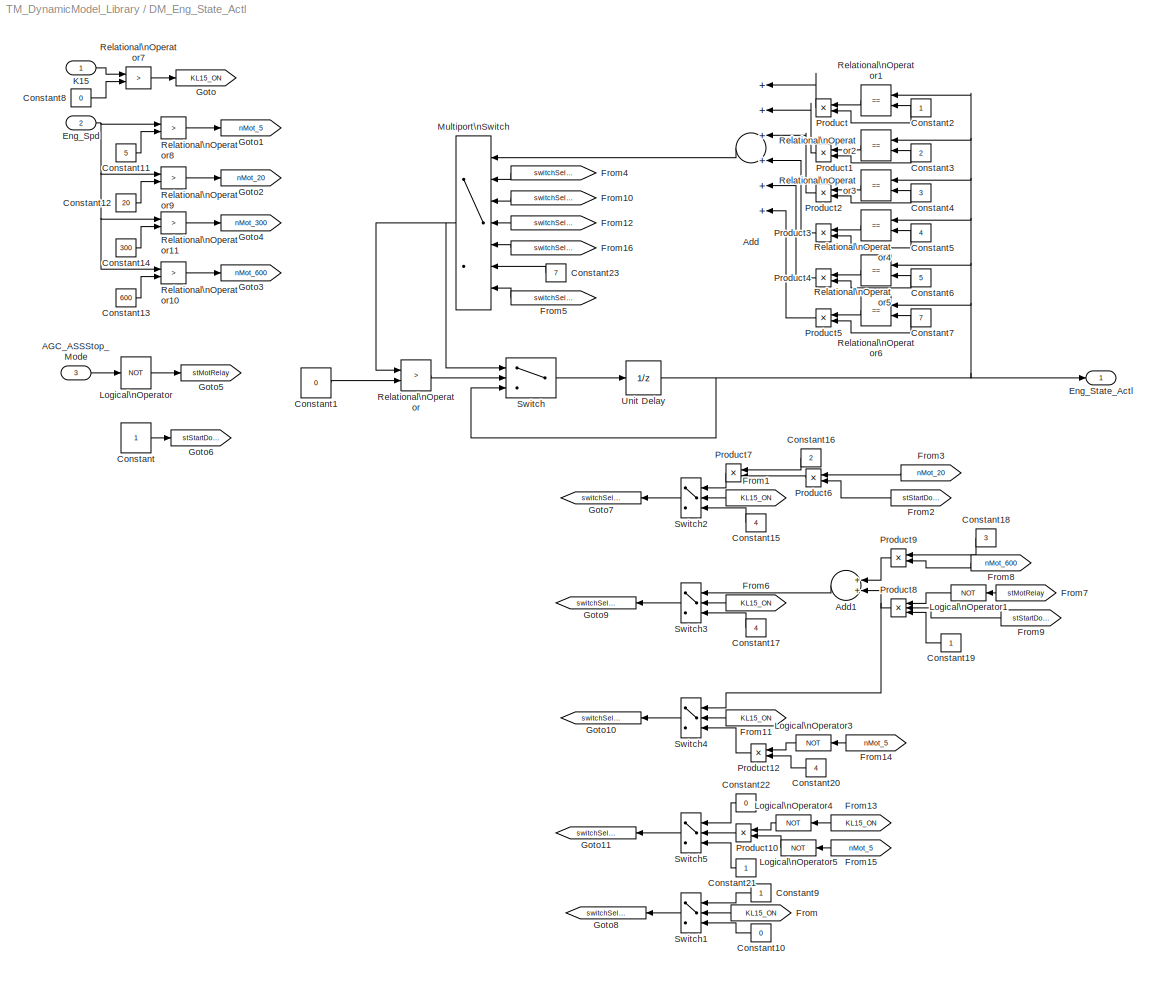
BLOCK [SubSystem] DM_Eng_State_Actl
  FunctionWithSeparateData = off
  MaskHideContents = off
  MinAlgLoopOccurrences = off
  Opaque = off
  Ports = [3, 1]
  PropExecContextOutsideSubsystem = off
  RTWSystemCode = Auto
  RequestExecContextInheritance = off
  SID = 5870
BLOCK [Inport] DM_Eng_State_Actl/AGC_ASSStop_Mode
  IconDisplay = Port number
  Port = 3
  SID = 5873
BLOCK [Sum] DM_Eng_State_Actl/Add
  InputSameDT = off
  Inputs = ++++++
  OutDataTypeStr = Inherit: Inherit via internal rule
  Ports = [6, 1]
  SID = 5874
  SaturateOnIntegerOverflow = off
BLOCK [Sum] DM_Eng_State_Actl/Add1
  InputSameDT = off
  OutDataTypeStr = Inherit: Inherit via internal rule
  Ports = [2, 1]
  SID = 5875
  SaturateOnIntegerOverflow = off
BLOCK [Constant] DM_Eng_State_Actl/Constant
  SID = 5876
BLOCK [Constant] DM_Eng_State_Actl/Constant1
  SID = 5877
  Value = 0
BLOCK [Constant] DM_Eng_State_Actl/Constant10
  SID = 5878
  Value = 0
BLOCK [Constant] DM_Eng_State_Actl/Constant11
  SID = 5879
  Value = 5
BLOCK [Constant] DM_Eng_State_Actl/Constant12
  SID = 5880
  Value = 20
BLOCK [Constant] DM_Eng_State_Actl/Constant13
  SID = 5881
  Value = 600
BLOCK [Constant] DM_Eng_State_Actl/Constant14
  SID = 5882
  Value = 300
BLOCK [Constant] DM_Eng_State_Actl/Constant15
  SID = 5883
  Value = 4
BLOCK [Constant] DM_Eng_State_Actl/Constant16
  SID = 5884
  Value = 2
BLOCK [Constant] DM_Eng_State_Actl/Constant17
  SID = 5885
  Value = 4
BLOCK [Constant] DM_Eng_State_Actl/Constant18
  SID = 5886
  Value = 3
BLOCK [Constant] DM_Eng_State_Actl/Constant19
  SID = 5887
BLOCK [Constant] DM_Eng_State_Actl/Constant2
  SID = 5888
BLOCK [Constant] DM_Eng_State_Actl/Constant20
  SID = 5889
  Value = 4
BLOCK [Constant] DM_Eng_State_Actl/Constant21
  SID = 5890
BLOCK [Constant] DM_Eng_State_Actl/Constant22
  SID = 5891
  Value = 0
BLOCK [Constant] DM_Eng_State_Actl/Constant23
  SID = 5892
  Value = 7
BLOCK [Constant] DM_Eng_State_Actl/Constant3
  SID = 5893
  Value = 2
BLOCK [Constant] DM_Eng_State_Actl/Constant4
  SID = 5894
  Value = 3
BLOCK [Constant] DM_Eng_State_Actl/Constant5
  SID = 5895
  Value = 4
BLOCK [Constant] DM_Eng_State_Actl/Constant6
  SID = 5896
  Value = 5
BLOCK [Constant] DM_Eng_State_Actl/Constant7
  SID = 5897
  Value = 7
BLOCK [Constant] DM_Eng_State_Actl/Constant8
  SID = 5898
  Value = 0
BLOCK [Constant] DM_Eng_State_Actl/Constant9
  SID = 5899
BLOCK [Inport] DM_Eng_State_Actl/Eng_Spd
  IconDisplay = Port number
  Port = 2
  SID = 5872
BLOCK [Outport] DM_Eng_State_Actl/Eng_State_Actl
  IconDisplay = Port number
  SID = 5966
BLOCK [From] DM_Eng_State_Actl/From
  GotoTag = KL15_ON
  SID = 5900
BLOCK [From] DM_Eng_State_Actl/From1
  GotoTag = KL15_ON
  SID = 5901
BLOCK [From] DM_Eng_State_Actl/From10
  GotoTag = switchSel_2
  SID = 5902
BLOCK [From] DM_Eng_State_Actl/From11
  GotoTag = KL15_ON
  SID = 5903
BLOCK [From] DM_Eng_State_Actl/From12
  GotoTag = switchSel_3
  SID = 5904
BLOCK [From] DM_Eng_State_Actl/From13
  GotoTag = KL15_ON
  SID = 5905
BLOCK [From] DM_Eng_State_Actl/From14
  GotoTag = nMot_5
  SID = 5906
BLOCK [From] DM_Eng_State_Actl/From15
  GotoTag = nMot_5
  SID = 5907
BLOCK [From] DM_Eng_State_Actl/From16
  GotoTag = switchSel_4
  SID = 5908
BLOCK [From] DM_Eng_State_Actl/From2
  GotoTag = stStartDone
  SID = 5909
BLOCK [From] DM_Eng_State_Actl/From3
  GotoTag = nMot_20
  SID = 5910
BLOCK [From] DM_Eng_State_Actl/From4
  GotoTag = switchSel_1
  SID = 5911
BLOCK [From] DM_Eng_State_Actl/From5
  GotoTag = switchSel_7
  SID = 5912
BLOCK [From] DM_Eng_State_Actl/From6
  GotoTag = KL15_ON
  SID = 5913
BLOCK [From] DM_Eng_State_Actl/From7
  GotoTag = stMotRelay
  SID = 5914
BLOCK [From] DM_Eng_State_Actl/From8
  GotoTag = nMot_600
  SID = 5915
BLOCK [From] DM_Eng_State_Actl/From9
  GotoTag = stStartDone
  SID = 5916
BLOCK [Goto] DM_Eng_State_Actl/Goto
  GotoTag = KL15_ON
  SID = 5917
  TagVisibility = local
BLOCK [Goto] DM_Eng_State_Actl/Goto1
  GotoTag = nMot_5
  SID = 5918
  TagVisibility = local
BLOCK [Goto] DM_Eng_State_Actl/Goto10
  GotoTag = switchSel_3
  SID = 5919
  TagVisibility = local
BLOCK [Goto] DM_Eng_State_Actl/Goto11
  GotoTag = switchSel_4
  SID = 5920
  TagVisibility = local
BLOCK [Goto] DM_Eng_State_Actl/Goto2
  GotoTag = nMot_20
  SID = 5921
  TagVisibility = local
BLOCK [Goto] DM_Eng_State_Actl/Goto3
  GotoTag = nMot_600
  SID = 5922
  TagVisibility = local
BLOCK [Goto] DM_Eng_State_Actl/Goto4
  GotoTag = nMot_300
  SID = 5923
  TagVisibility = local
BLOCK [Goto] DM_Eng_State_Actl/Goto5
  GotoTag = stMotRelay
  SID = 5924
  TagVisibility = local
BLOCK [Goto] DM_Eng_State_Actl/Goto6
  GotoTag = stStartDone
  SID = 5925
  TagVisibility = local
BLOCK [Goto] DM_Eng_State_Actl/Goto7
  GotoTag = switchSel_1
  SID = 5926
  TagVisibility = local
BLOCK [Goto] DM_Eng_State_Actl/Goto8
  GotoTag = switchSel_7
  SID = 5927
  TagVisibility = local
BLOCK [Goto] DM_Eng_State_Actl/Goto9
  GotoTag = switchSel_2
  SID = 5928
  TagVisibility = local
BLOCK [Inport] DM_Eng_State_Actl/K15
  IconDisplay = Port number
  SID = 5871
BLOCK [Logic] DM_Eng_State_Actl/Logical\nOperator
  AllPortsSameDT = off
  Operator = NOT
  OutDataTypeStr = boolean
  Ports = [1, 1]
  SID = 5929
BLOCK [Logic] DM_Eng_State_Actl/Logical\nOperator1
  AllPortsSameDT = off
  Inputs = 1
  Operator = NOT
  OutDataTypeStr = boolean
  Ports = [1, 1]
  SID = 5930
BLOCK [Logic] DM_Eng_State_Actl/Logical\nOperator3
  AllPortsSameDT = off
  Inputs = 1
  Operator = NOT
  OutDataTypeStr = boolean
  Ports = [1, 1]
  SID = 5931
BLOCK [Logic] DM_Eng_State_Actl/Logical\nOperator4
  AllPortsSameDT = off
  Inputs = 1
  Operator = NOT
  OutDataTypeStr = boolean
  Ports = [1, 1]
  SID = 5932
BLOCK [Logic] DM_Eng_State_Actl/Logical\nOperator5
  AllPortsSameDT = off
  Inputs = 1
  Operator = NOT
  OutDataTypeStr = boolean
  Ports = [1, 1]
  SID = 5933
BLOCK [MultiPortSwitch] DM_Eng_State_Actl/Multiport\nSwitch
  DataPortIndices = {1,2,3,4,5,7}
  DataPortOrder = Specify indices
  InputSameDT = off
  Inputs = 5
  Ports = [7, 1]
  SID = 5934
  SaturateOnIntegerOverflow = off
  zeroidx = off
BLOCK [Product] DM_Eng_State_Actl/Product
  InputSameDT = off
  OutDataTypeStr = Inherit: Inherit via internal rule
  Ports = [2, 1]
  SID = 5935
  SaturateOnIntegerOverflow = off
BLOCK [Product] DM_Eng_State_Actl/Product1
  InputSameDT = off
  OutDataTypeStr = Inherit: Inherit via internal rule
  Ports = [2, 1]
  SID = 5936
  SaturateOnIntegerOverflow = off
BLOCK [Product] DM_Eng_State_Actl/Product10
  InputSameDT = off
  OutDataTypeStr = Inherit: Inherit via internal rule
  Ports = [2, 1]
  SID = 5937
  SaturateOnIntegerOverflow = off
BLOCK [Product] DM_Eng_State_Actl/Product12
  InputSameDT = off
  OutDataTypeStr = Inherit: Inherit via internal rule
  Ports = [2, 1]
  SID = 5938
  SaturateOnIntegerOverflow = off
BLOCK [Product] DM_Eng_State_Actl/Product2
  InputSameDT = off
  OutDataTypeStr = Inherit: Inherit via internal rule
  Ports = [2, 1]
  SID = 5939
  SaturateOnIntegerOverflow = off
BLOCK [Product] DM_Eng_State_Actl/Product3
  InputSameDT = off
  OutDataTypeStr = Inherit: Inherit via internal rule
  Ports = [2, 1]
  SID = 5940
  SaturateOnIntegerOverflow = off
BLOCK [Product] DM_Eng_State_Actl/Product4
  InputSameDT = off
  OutDataTypeStr = Inherit: Inherit via internal rule
  Ports = [2, 1]
  SID = 5941
  SaturateOnIntegerOverflow = off
BLOCK [Product] DM_Eng_State_Actl/Product5
  InputSameDT = off
  OutDataTypeStr = Inherit: Inherit via internal rule
  Ports = [2, 1]
  SID = 5942
  SaturateOnIntegerOverflow = off
BLOCK [Product] DM_Eng_State_Actl/Product6
  InputSameDT = off
  OutDataTypeStr = Inherit: Inherit via internal rule
  Ports = [2, 1]
  SID = 5943
  SaturateOnIntegerOverflow = off
BLOCK [Product] DM_Eng_State_Actl/Product7
  InputSameDT = off
  OutDataTypeStr = Inherit: Inherit via internal rule
  Ports = [2, 1]
  SID = 5944
  SaturateOnIntegerOverflow = off
BLOCK [Product] DM_Eng_State_Actl/Product8
  InputSameDT = off
  Inputs = 3
  OutDataTypeStr = Inherit: Inherit via internal rule
  Ports = [3, 1]
  SID = 5945
  SaturateOnIntegerOverflow = off
BLOCK [Product] DM_Eng_State_Actl/Product9
  InputSameDT = off
  OutDataTypeStr = Inherit: Inherit via internal rule
  Ports = [2, 1]
  SID = 5946
  SaturateOnIntegerOverflow = off
BLOCK [RelationalOperator] DM_Eng_State_Actl/Relational\nOperator
  InputSameDT = off
  Operator = >
  OutDataTypeStr = boolean
  Ports = [2, 1]
  SID = 5947
BLOCK [RelationalOperator] DM_Eng_State_Actl/Relational\nOperator1
  InputSameDT = off
  Operator = ==
  OutDataTypeStr = boolean
  Ports = [2, 1]
  SID = 5948
BLOCK [RelationalOperator] DM_Eng_State_Actl/Relational\nOperator10
  InputSameDT = off
  Operator = >
  OutDataTypeStr = boolean
  Ports = [2, 1]
  SID = 5949
BLOCK [RelationalOperator] DM_Eng_State_Actl/Relational\nOperator11
  InputSameDT = off
  Operator = >
  OutDataTypeStr = boolean
  Ports = [2, 1]
  SID = 5950
BLOCK [RelationalOperator] DM_Eng_State_Actl/Relational\nOperator2
  InputSameDT = off
  Operator = ==
  OutDataTypeStr = boolean
  Ports = [2, 1]
  SID = 5951
BLOCK [RelationalOperator] DM_Eng_State_Actl/Relational\nOperator3
  InputSameDT = off
  Operator = ==
  OutDataTypeStr = boolean
  Ports = [2, 1]
  SID = 5952
BLOCK [RelationalOperator] DM_Eng_State_Actl/Relational\nOperator4
  InputSameDT = off
  Operator = ==
  OutDataTypeStr = boolean
  Ports = [2, 1]
  SID = 5953
BLOCK [RelationalOperator] DM_Eng_State_Actl/Relational\nOperator5
  InputSameDT = off
  Operator = ==
  OutDataTypeStr = boolean
  Ports = [2, 1]
  SID = 5954
BLOCK [RelationalOperator] DM_Eng_State_Actl/Relational\nOperator6
  InputSameDT = off
  Operator = ==
  OutDataTypeStr = boolean
  Ports = [2, 1]
  SID = 5955
BLOCK [RelationalOperator] DM_Eng_State_Actl/Relational\nOperator7
  InputSameDT = off
  Operator = >
  OutDataTypeStr = boolean
  Ports = [2, 1]
  SID = 5956
BLOCK [RelationalOperator] DM_Eng_State_Actl/Relational\nOperator8
  InputSameDT = off
  Operator = >
  OutDataTypeStr = boolean
  Ports = [2, 1]
  SID = 5957
BLOCK [RelationalOperator] DM_Eng_State_Actl/Relational\nOperator9
  InputSameDT = off
  Operator = >
  OutDataTypeStr = boolean
  Ports = [2, 1]
  SID = 5958
BLOCK [Switch] DM_Eng_State_Actl/Switch
  Criteria = u2 > Threshold
  InputSameDT = off
  SID = 5959
  SaturateOnIntegerOverflow = off
BLOCK [Switch] DM_Eng_State_Actl/Switch1
  Criteria = u2 > Threshold
  InputSameDT = off
  SID = 5960
  SaturateOnIntegerOverflow = off
BLOCK [Switch] DM_Eng_State_Actl/Switch2
  Criteria = u2 > Threshold
  InputSameDT = off
  SID = 5961
  SaturateOnIntegerOverflow = off
BLOCK [Switch] DM_Eng_State_Actl/Switch3
  Criteria = u2 > Threshold
  InputSameDT = off
  SID = 5962
  SaturateOnIntegerOverflow = off
BLOCK [Switch] DM_Eng_State_Actl/Switch4
  Criteria = u2 > Threshold
  InputSameDT = off
  SID = 5963
  SaturateOnIntegerOverflow = off
BLOCK [Switch] DM_Eng_State_Actl/Switch5
  Criteria = u2 > Threshold
  InputSameDT = off
  SID = 5964
  SaturateOnIntegerOverflow = off
BLOCK [UnitDelay] DM_Eng_State_Actl/Unit Delay
  InputProcessing = Elements as channels (sample based)
  SID = 5965
  SampleTime = -1
  X0 = 7
BLOCK [SubSystem] DM_Eprec_FlgPreCdngAcvMod
  FunctionWithSeparateData = off
  MaskHideContents = off
  MinAlgLoopOccurrences = off
  Opaque = off
  Ports = [0, 1]
  PropExecContextOutsideSubsystem = off
  RTWSystemCode = Auto
  RequestExecContextInheritance = off
  SID = 410
BLOCK [Constant] DM_Eprec_FlgPreCdngAcvMod/Constant
  SID = 411
  Value = 0
BLOCK [Outport] DM_Eprec_FlgPreCdngAcvMod/Eprec_FlgPreCdngAcvMod
  IconDisplay = Port number
  SID = 412
BLOCK [SubSystem] DM_Err_ECT_low
  FunctionWithSeparateData = off
  MaskHideContents = off
  MinAlgLoopOccurrences = off
  Opaque = off
  Ports = [0, 1]
  PropExecContextOutsideSubsystem = off
  RTWSystemCode = Auto
  RequestExecContextInheritance = off
  SID = 1612
BLOCK [Constant] DM_Err_ECT_low/Constant
  SID = 1613
  Value = 0
BLOCK [Outport] DM_Err_ECT_low/Err_ECT_low
  IconDisplay = Port number
  SID = 1614
BLOCK [SubSystem] DM_Esig_BmsTpMax
  FunctionWithSeparateData = off
  MaskHideContents = off
  MinAlgLoopOccurrences = off
  Opaque = off
  Ports = [1, 1]
  PropExecContextOutsideSubsystem = off
  RTWSystemCode = Auto
  RequestExecContextInheritance = off
  SID = 674
BLOCK [Inport] DM_Esig_BmsTpMax/Bms48_Tp
  IconDisplay = Port number
  SID = 675
BLOCK [Constant] DM_Esig_BmsTpMax/Constant
  SID = 676
BLOCK [Outport] DM_Esig_BmsTpMax/Esig_BmsTpMax
  IconDisplay = Port number
  SID = 678
BLOCK [Sum] DM_Esig_BmsTpMax/Sum
  IconShape = round
  InputSameDT = off
  Inputs = |++
  OutDataTypeStr = Inherit: Inherit via internal rule
  Ports = [2, 1]
  SID = 677
  SaturateOnIntegerOverflow = off
BLOCK [SubSystem] DM_Esig_BmsTpMin
  FunctionWithSeparateData = off
  MaskHideContents = off
  MinAlgLoopOccurrences = off
  Opaque = off
  Ports = [1, 1]
  PropExecContextOutsideSubsystem = off
  RTWSystemCode = Auto
  RequestExecContextInheritance = off
  SID = 679
BLOCK [Inport] DM_Esig_BmsTpMin/Bms48_Tp
  IconDisplay = Port number
  SID = 680
BLOCK [Constant] DM_Esig_BmsTpMin/Constant
  SID = 681
BLOCK [Outport] DM_Esig_BmsTpMin/Esig_BmsTpMin
  IconDisplay = Port number
  SID = 683
BLOCK [Sum] DM_Esig_BmsTpMin/Sum1
  IconShape = round
  InputSameDT = off
  Inputs = |-+
  OutDataTypeStr = Inherit: Inherit via internal rule
  Ports = [2, 1]
  SID = 682
  SaturateOnIntegerOverflow = off
BLOCK [SubSystem] DM_Esig_BmsTpTar
  FunctionWithSeparateData = off
  MaskHideContents = off
  MinAlgLoopOccurrences = off
  Opaque = off
  Ports = [0, 1]
  PropExecContextOutsideSubsystem = off
  RTWSystemCode = Auto
  RequestExecContextInheritance = off
  SID = 651
BLOCK [Constant] DM_Esig_BmsTpTar/Constant
  SID = 652
  Value = 28
BLOCK [Outport] DM_Esig_BmsTpTar/Esig_BmsTpTar
  IconDisplay = Port number
  SID = 653
BLOCK [SubSystem] DM_FRT_Sens
  FunctionWithSeparateData = off
  MaskHideContents = off
  MinAlgLoopOccurrences = off
  Opaque = off
  Ports = [0, 1]
  PropExecContextOutsideSubsystem = off
  RTWSystemCode = Auto
  RequestExecContextInheritance = off
  SID = 1496
BLOCK [Constant] DM_FRT_Sens/Constant
  SID = 1497
  Value = 25
BLOCK [Outport] DM_FRT_Sens/FRT_Sens
  IconDisplay = Port number
  SID = 1498
BLOCK [SubSystem] DM_FirstStrt_Mode
  FunctionWithSeparateData = off
  MaskHideContents = off
  MinAlgLoopOccurrences = off
  Opaque = off
  Ports = [0, 1]
  PropExecContextOutsideSubsystem = off
  RTWSystemCode = Auto
  RequestExecContextInheritance = off
  SID = 664
BLOCK [Constant] DM_FirstStrt_Mode/Constant
  SID = 665
  Value = 0
BLOCK [Outport] DM_FirstStrt_Mode/FirstStrt_Mode
  IconDisplay = Port number
  SID = 666
BLOCK [SubSystem] DM_FirstStrt_Mode_EE
  FunctionWithSeparateData = off
  MaskHideContents = off
  MinAlgLoopOccurrences = off
  Opaque = off
  Ports = [0, 1]
  PropExecContextOutsideSubsystem = off
  RTWSystemCode = Auto
  RequestExecContextInheritance = off
  SID = 660
BLOCK [Constant] DM_FirstStrt_Mode_EE/Constant
  SID = 661
  Value = 0
BLOCK [Outport] DM_FirstStrt_Mode_EE/FirstStrt_Mode_EE
  IconDisplay = Port number
  SID = 662
BLOCK [SubSystem] DM_Fuel_Temp
  FunctionWithSeparateData = off
  MaskHideContents = off
  MinAlgLoopOccurrences = off
  Opaque = off
  Ports = [0, 1]
  PropExecContextOutsideSubsystem = off
  RTWSystemCode = Auto
  RequestExecContextInheritance = off
  SID = 1553
BLOCK [Constant] DM_Fuel_Temp/Constant
  SID = 1554
  Value = 25
BLOCK [Outport] DM_Fuel_Temp/Fuel_Temp
  IconDisplay = Port number
  SID = 1555
BLOCK [SubSystem] DM_HDC_HybAggr_State
  FunctionWithSeparateData = off
  MaskHideContents = off
  MinAlgLoopOccurrences = off
  Opaque = off
  Ports = [3, 1]
  PropExecContextOutsideSubsystem = off
  RTWSystemCode = Auto
  RequestExecContextInheritance = off
  SID = 445
BLOCK [Reference] DM_HDC_HybAggr_State/Compare\nTo Constant1  REF=simulink/Logic and Bit\nOperations/Compare\nTo Constant
  OutDataTypeStr = uint8
  Ports = [1, 1]
  SID = 449
  SourceBlock = simulink/Logic and Bit\nOperations/Compare\nTo Constant
  SourceType = Compare To Constant
  ZeroCross = on
  const = 300
  relop = >
BLOCK [Reference] DM_HDC_HybAggr_State/Compare\nTo Constant2  REF=simulink/Logic and Bit\nOperations/Compare\nTo Constant
  OutDataTypeStr = uint8
  Ports = [1, 1]
  SID = 450
  SourceBlock = simulink/Logic and Bit\nOperations/Compare\nTo Constant
  SourceType = Compare To Constant
  ZeroCross = on
  const = .1
  relop = <
BLOCK [Reference] DM_HDC_HybAggr_State/Compare\nTo Constant4  REF=simulink/Logic and Bit\nOperations/Compare\nTo Constant
  OutDataTypeStr = uint8
  Ports = [1, 1]
  SID = 451
  SourceBlock = simulink/Logic and Bit\nOperations/Compare\nTo Constant
  SourceType = Compare To Constant
  ZeroCross = on
  const = 4
  relop = >=
BLOCK [Reference] DM_HDC_HybAggr_State/Compare\nTo Constant7  REF=simulink/Logic and Bit\nOperations/Compare\nTo Constant
  OutDataTypeStr = uint8
  Ports = [1, 1]
  SID = 452
  SourceBlock = simulink/Logic and Bit\nOperations/Compare\nTo Constant
  SourceType = Compare To Constant
  ZeroCross = on
  const = 0
  relop = >
BLOCK [Reference] DM_HDC_HybAggr_State/Compare\nTo Constant8  REF=simulink/Logic and Bit\nOperations/Compare\nTo Constant
  OutDataTypeStr = uint8
  Ports = [1, 1]
  SID = 453
  SourceBlock = simulink/Logic and Bit\nOperations/Compare\nTo Constant
  SourceType = Compare To Constant
  ZeroCross = on
  const = 450
  relop = <
BLOCK [Constant] DM_HDC_HybAggr_State/Constant1
  SID = 454
  Value = 3
BLOCK [Constant] DM_HDC_HybAggr_State/Constant2
  SID = 455
BLOCK [Constant] DM_HDC_HybAggr_State/Constant3
  SID = 456
  Value = 0
BLOCK [Constant] DM_HDC_HybAggr_State/Constant4
  SID = 457
  Value = 0
BLOCK [Inport] DM_HDC_HybAggr_State/EIS_IgnSwState
  IconDisplay = Port number
  SID = 446
BLOCK [Inport] DM_HDC_HybAggr_State/Eng_Spd
  IconDisplay = Port number
  Port = 2
  SID = 447
BLOCK [Inport] DM_HDC_HybAggr_State/Gear_State
  IconDisplay = Port number
  Port = 3
  SID = 448
BLOCK [Outport] DM_HDC_HybAggr_State/HDC_HybAggr_State
  IconDisplay = Port number
  SID = 463
BLOCK [Logic] DM_HDC_HybAggr_State/Logical\nOperator1
  AllPortsSameDT = off
  OutDataTypeStr = boolean
  Ports = [2, 1]
  SID = 458
BLOCK [Logic] DM_HDC_HybAggr_State/Logical\nOperator2
  AllPortsSameDT = off
  OutDataTypeStr = boolean
  Ports = [2, 1]
  SID = 459
BLOCK [Switch] DM_HDC_HybAggr_State/Switch1
  InputSameDT = off
  SID = 460
  SaturateOnIntegerOverflow = off
  Threshold = .5
BLOCK [Switch] DM_HDC_HybAggr_State/Switch2
  InputSameDT = off
  SID = 461
  SaturateOnIntegerOverflow = off
  Threshold = .5
BLOCK [Switch] DM_HDC_HybAggr_State/Switch3
  InputSameDT = off
  SID = 462
  SaturateOnIntegerOverflow = off
  Threshold = .5
BLOCK [SubSystem] DM_HDC_HybSync_State
  FunctionWithSeparateData = off
  MaskHideContents = off
  MinAlgLoopOccurrences = off
  Opaque = off
  Ports = [2, 1]
  PropExecContextOutsideSubsystem = off
  RTWSystemCode = Auto
  RequestExecContextInheritance = off
  SID = 711
BLOCK [Sum] DM_HDC_HybSync_State/Add
  InputSameDT = off
  OutDataTypeStr = Inherit: Inherit via internal rule
  Ports = [2, 1]
  SID = 713
  SaturateOnIntegerOverflow = off
BLOCK [Sum] DM_HDC_HybSync_State/Add1
  InputSameDT = off
  Inputs = +-
  OutDataTypeStr = Inherit: Inherit via internal rule
  Ports = [2, 1]
  SID = 714
  SaturateOnIntegerOverflow = off
BLOCK [Sum] DM_HDC_HybSync_State/Add2
  InputSameDT = off
  Inputs = +-
  OutDataTypeStr = Inherit: Inherit via internal rule
  Ports = [2, 1]
  SID = 715
  SaturateOnIntegerOverflow = off
BLOCK [Constant] DM_HDC_HybSync_State/Constant
  SID = 716
  Value = 13
BLOCK [Constant] DM_HDC_HybSync_State/Constant1
  SID = 717
  Value = 31
BLOCK [Constant] DM_HDC_HybSync_State/Constant2
  SID = 718
  Value = 0
BLOCK [Constant] DM_HDC_HybSync_State/Constant3
  SID = 719
  Value = 0
BLOCK [Reference] DM_HDC_HybSync_State/DM_AGC_ASSStop_Mode  REF=TM_DynamicModel_Library/DM_AGC_ASSStop_Mode
  Ports = [2, 1]
  SID = 1487
  SourceBlock = TM_DynamicModel_Library/DM_AGC_ASSStop_Mode
  SourceType = SubSystem
BLOCK [Inport] DM_HDC_HybSync_State/Eng_Spd
  IconDisplay = Port number
  SID = 712
BLOCK [Inport] DM_HDC_HybSync_State/Eng_Trq
  IconDisplay = Port number
  Port = 2
  SID = 1488
BLOCK [Outport] DM_HDC_HybSync_State/HDC_HybSync_State
  IconDisplay = Port number
  SID = 724
BLOCK [Switch] DM_HDC_HybSync_State/Switch
  InputSameDT = off
  SID = 720
  SaturateOnIntegerOverflow = off
  Threshold = 1
BLOCK [Switch] DM_HDC_HybSync_State/Switch1
  InputSameDT = off
  SID = 721
  SaturateOnIntegerOverflow = off
  Threshold = 1
BLOCK [UnitDelay] DM_HDC_HybSync_State/Unit Delay
  InputProcessing = Elements as channels (sample based)
  SID = 722
  SampleTime = -1
BLOCK [UnitDelay] DM_HDC_HybSync_State/Unit Delay1
  InputProcessing = Elements as channels (sample based)
  SID = 723
  SampleTime = -1
BLOCK [SubSystem] DM_HDC_PTReady_Mode
  FunctionWithSeparateData = off
  MaskHideContents = off
  MinAlgLoopOccurrences = off
  Opaque = off
  Ports = [2, 1]
  PropExecContextOutsideSubsystem = off
  RTWSystemCode = Auto
  RequestExecContextInheritance = off
  SID = 520
BLOCK [Reference] DM_HDC_PTReady_Mode/Compare\nTo Constant  REF=simulink/Logic and Bit\nOperations/Compare\nTo Constant
  OutDataTypeStr = uint8
  Ports = [1, 1]
  SID = 525
  SourceBlock = simulink/Logic and Bit\nOperations/Compare\nTo Constant
  SourceType = Compare To Constant
  ZeroCross = on
  const = 100
  relop = <
BLOCK [Reference] DM_HDC_PTReady_Mode/Compare\nTo Constant1  REF=simulink/Logic and Bit\nOperations/Compare\nTo Constant
  OutDataTypeStr = uint8
  Ports = [1, 1]
  SID = 526
  SourceBlock = simulink/Logic and Bit\nOperations/Compare\nTo Constant
  SourceType = Compare To Constant
  ZeroCross = on
  const = 3
  relop = >
BLOCK [Constant] DM_HDC_PTReady_Mode/Constant
  SID = 527
  Value = 0
BLOCK [Constant] DM_HDC_PTReady_Mode/Constant1
  SID = 528
BLOCK [SubSystem] DM_HDC_PTReady_Mode/DM_Ign_Mode
  FunctionWithSeparateData = off
  MaskHideContents = off
  MinAlgLoopOccurrences = off
  Opaque = off
  Ports = [1, 1]
  PropExecContextOutsideSubsystem = off
  RTWSystemCode = Auto
  RequestExecContextInheritance = off
  SID = 1325
BLOCK [Constant] DM_HDC_PTReady_Mode/DM_Ign_Mode/Constant
  SID = 1327
  Value = 3
BLOCK [Inport] DM_HDC_PTReady_Mode/DM_Ign_Mode/EIS_IgnSwState
  IconDisplay = Port number
  SID = 1326
BLOCK [Outport] DM_HDC_PTReady_Mode/DM_Ign_Mode/Ign_Mode
  IconDisplay = Port number
  SID = 1329
BLOCK [RelationalOperator] DM_HDC_PTReady_Mode/DM_Ign_Mode/Relational\nOperator
  InputSameDT = off
  OutDataTypeStr = boolean
  Ports = [2, 1]
  SID = 1328
BLOCK [Inport] DM_HDC_PTReady_Mode/EIS_IgnSwState
  IconDisplay = Port number
  Port = 2
  SID = 524
BLOCK [Inport] DM_HDC_PTReady_Mode/Eng_Spd
  IconDisplay = Port number
  SID = 521
BLOCK [Outport] DM_HDC_PTReady_Mode/HDC_PTReady_Mode
  IconDisplay = Port number
  SID = 535
BLOCK [Logic] DM_HDC_PTReady_Mode/Logical\nOperator1
  AllPortsSameDT = off
  Inputs = 3
  Operator = OR
  OutDataTypeStr = boolean
  Ports = [3, 1]
  SID = 529
BLOCK [Logic] DM_HDC_PTReady_Mode/Logical\nOperator2
  AllPortsSameDT = off
  Operator = NOT
  OutDataTypeStr = boolean
  Ports = [1, 1]
  SID = 530
BLOCK [Logic] DM_HDC_PTReady_Mode/Logical\nOperator3
  AllPortsSameDT = off
  Operator = NOT
  OutDataTypeStr = boolean
  Ports = [1, 1]
  SID = 531
BLOCK [Switch] DM_HDC_PTReady_Mode/Switch
  Criteria = u2 > Threshold
  InputSameDT = off
  SID = 533
  SaturateOnIntegerOverflow = off
BLOCK [SubSystem] DM_HVAC_CoolVlv_Rq
  FunctionWithSeparateData = off
  MaskHideContents = off
  MinAlgLoopOccurrences = off
  Opaque = off
  Ports = [0, 1]
  PropExecContextOutsideSubsystem = off
  RTWSystemCode = Auto
  RequestExecContextInheritance = off
  SID = 568
BLOCK [Constant] DM_HVAC_CoolVlv_Rq/Constant
  SID = 569
  Value = 0
BLOCK [Outport] DM_HVAC_CoolVlv_Rq/HVAC_CoolVlv_Rq
  IconDisplay = Port number
  SID = 570
BLOCK [SubSystem] DM_Hepm_PwrMax48VEcm
  FunctionWithSeparateData = off
  MaskHideContents = off
  MinAlgLoopOccurrences = off
  Opaque = off
  Ports = [0, 1]
  PropExecContextOutsideSubsystem = off
  RTWSystemCode = Auto
  RequestExecContextInheritance = off
  SID = 1499
BLOCK [Constant] DM_Hepm_PwrMax48VEcm/Constant
  SID = 1500
  Value = 7000
BLOCK [Outport] DM_Hepm_PwrMax48VEcm/Hepm_PwrMax48VEcm
  IconDisplay = Port number
  SID = 1501
BLOCK [SubSystem] DM_Hpmc_StPlgnOpmdDispd
  FunctionWithSeparateData = off
  MaskHideContents = off
  MinAlgLoopOccurrences = off
  Opaque = off
  Ports = [0, 1]
  PropExecContextOutsideSubsystem = off
  RTWSystemCode = Auto
  RequestExecContextInheritance = off
  SID = 609
BLOCK [Constant] DM_Hpmc_StPlgnOpmdDispd/Constant
  SID = 610
  Value = 3
BLOCK [Outport] DM_Hpmc_StPlgnOpmdDispd/Hpmc_StPlgnOpmdDispd
  IconDisplay = Port number
  SID = 611
BLOCK [SubSystem] DM_HvacChil_ExpVlvPosnReq
  FunctionWithSeparateData = off
  MaskHideContents = off
  MinAlgLoopOccurrences = off
  Opaque = off
  Ports = [0, 1]
  PropExecContextOutsideSubsystem = off
  RTWSystemCode = Auto
  RequestExecContextInheritance = off
  SID = 565
BLOCK [Constant] DM_HvacChil_ExpVlvPosnReq/Constant
  SID = 566
  Value = 0
BLOCK [Outport] DM_HvacChil_ExpVlvPosnReq/HvacChil_ExpVlvPosnReq
  IconDisplay = Port number
  SID = 567
BLOCK [SubSystem] DM_Hvac_StDefrstAcv
  FunctionWithSeparateData = off
  MaskHideContents = off
  MinAlgLoopOccurrences = off
  Opaque = off
  Ports = [0, 1]
  PropExecContextOutsideSubsystem = off
  RTWSystemCode = Auto
  RequestExecContextInheritance = off
  SID = 1567
BLOCK [Constant] DM_Hvac_StDefrstAcv/Constant
  SID = 1568
  Value = 0
BLOCK [Outport] DM_Hvac_StDefrstAcv/Hvac_StDefrstAcv
  IconDisplay = Port number
  SID = 1569
BLOCK [SubSystem] DM_IC_Knk_Red_Avg
  FunctionWithSeparateData = off
  MaskHideContents = off
  MinAlgLoopOccurrences = off
  Opaque = off
  Ports = [0, 1]
  PropExecContextOutsideSubsystem = off
  RTWSystemCode = Auto
  RequestExecContextInheritance = off
  SID = 562
BLOCK [Constant] DM_IC_Knk_Red_Avg/Constant
  SID = 563
  Value = 0
BLOCK [Outport] DM_IC_Knk_Red_Avg/IC_Knk_Red_Avg
  IconDisplay = Port number
  SID = 564
BLOCK [SubSystem] DM_IC_Knk_Red_Avg_Actv
  FunctionWithSeparateData = off
  MaskHideContents = off
  MinAlgLoopOccurrences = off
  Opaque = off
  Ports = [0, 1]
  PropExecContextOutsideSubsystem = off
  RTWSystemCode = Auto
  RequestExecContextInheritance = off
  SID = 559
BLOCK [Constant] DM_IC_Knk_Red_Avg_Actv/Constant
  SID = 560
  Value = 0
BLOCK [Outport] DM_IC_Knk_Red_Avg_Actv/IC_Knk_Red_Avg_Actv
  IconDisplay = Port number
  SID = 561
BLOCK [SubSystem] DM_Idle_Mode_Req
  FunctionWithSeparateData = off
  MaskHideContents = off
  MinAlgLoopOccurrences = off
  Opaque = off
  Ports = [1, 1]
  PropExecContextOutsideSubsystem = off
  RTWSystemCode = Auto
  RequestExecContextInheritance = off
  SID = 55
BLOCK [Inport] DM_Idle_Mode_Req/APP
  IconDisplay = Port number
  SID = 56
BLOCK [Reference] DM_Idle_Mode_Req/Compare\nTo Constant  REF=simulink/Logic and Bit\nOperations/Compare\nTo Constant
  OutDataTypeStr = uint8
  Ports = [1, 1]
  SID = 336
  SourceBlock = simulink/Logic and Bit\nOperations/Compare\nTo Constant
  SourceType = Compare To Constant
  ZeroCross = on
  const = 3.2
  relop = <=
BLOCK [SubSystem] DM_Idle_Mode_Req/DM_APP_Char_out_ub
  FunctionWithSeparateData = off
  MaskHideContents = off
  MinAlgLoopOccurrences = off
  Opaque = off
  Ports = [1, 1]
  PropExecContextOutsideSubsystem = off
  RTWSystemCode = Auto
  RequestExecContextInheritance = off
  SID = 1330
BLOCK [Inport] DM_Idle_Mode_Req/DM_APP_Char_out_ub/APP
  IconDisplay = Port number
  SID = 1331
BLOCK [Outport] DM_Idle_Mode_Req/DM_APP_Char_out_ub/APP_Char_out_ub
  IconDisplay = Port number
  SID = 1333
BLOCK [Lookup] DM_Idle_Mode_Req/DM_APP_Char_out_ub/Characterisation
  InputValues = [0,10,20,30,40,50,60,70,80,90,100]
  SID = 1332
  SaturateOnIntegerOverflow = off
  Table = [0,8,17,26,35,44,59,70,82,91,100]
BLOCK [DataTypeConversion] DM_Idle_Mode_Req/Data Type Conversion
  RndMeth = Floor
  SID = 2638
  SaturateOnIntegerOverflow = off
BLOCK [Outport] DM_Idle_Mode_Req/Idle_Mode_Req
  IconDisplay = Port number
  SID = 64
BLOCK [SubSystem] DM_IgnSwRun_Mode
  FunctionWithSeparateData = off
  MaskHideContents = off
  MinAlgLoopOccurrences = off
  Opaque = off
  Ports = [1, 1]
  PropExecContextOutsideSubsystem = off
  RTWSystemCode = Auto
  RequestExecContextInheritance = off
  SID = 413
BLOCK [Constant] DM_IgnSwRun_Mode/Constant
  SID = 415
  Value = 4
BLOCK [Inport] DM_IgnSwRun_Mode/EIS_IgnSwState
  IconDisplay = Port number
  SID = 414
BLOCK [Outport] DM_IgnSwRun_Mode/IgnSwRun_Mode
  IconDisplay = Port number
  SID = 417
BLOCK [RelationalOperator] DM_IgnSwRun_Mode/Relational\nOperator
  InputSameDT = off
  Operator = ==
  OutDataTypeStr = boolean
  Ports = [2, 1]
  SID = 416
BLOCK [SubSystem] DM_IgnSwStrtr_Mode
  FunctionWithSeparateData = off
  MaskHideContents = off
  MinAlgLoopOccurrences = off
  Opaque = off
  Ports = [1, 1]
  PropExecContextOutsideSubsystem = off
  RTWSystemCode = Auto
  RequestExecContextInheritance = off
  SID = 422
BLOCK [Reference] DM_IgnSwStrtr_Mode/Compare\nTo Constant  REF=simulink/Logic and Bit\nOperations/Compare\nTo Constant
  OutDataTypeStr = uint8
  Ports = [1, 1]
  SID = 424
  SourceBlock = simulink/Logic and Bit\nOperations/Compare\nTo Constant
  SourceType = Compare To Constant
  ZeroCross = on
  const = 4
  relop = >
BLOCK [Reference] DM_IgnSwStrtr_Mode/Compare\nTo Constant1  REF=simulink/Logic and Bit\nOperations/Compare\nTo Constant
  OutDataTypeStr = uint8
  Ports = [1, 1]
  SID = 425
  SourceBlock = simulink/Logic and Bit\nOperations/Compare\nTo Constant
  SourceType = Compare To Constant
  ZeroCross = on
  const = 6
  relop = <
BLOCK [DataTypeConversion] DM_IgnSwStrtr_Mode/Data Type Conversion
  RndMeth = Floor
  SID = 1906
  SaturateOnIntegerOverflow = off
BLOCK [Inport] DM_IgnSwStrtr_Mode/EIS_IgnSwState
  IconDisplay = Port number
  SID = 423
BLOCK [Outport] DM_IgnSwStrtr_Mode/IgnSwStrtr_Mode
  IconDisplay = Port number
  SID = 427
BLOCK [Logic] DM_IgnSwStrtr_Mode/Logical\nOperator
  AllPortsSameDT = off
  OutDataTypeStr = boolean
  Ports = [2, 1]
  SID = 426
BLOCK [SubSystem] DM_Ign_Mode
  FunctionWithSeparateData = off
  MaskHideContents = off
  MinAlgLoopOccurrences = off
  Opaque = off
  Ports = [1, 1]
  PropExecContextOutsideSubsystem = off
  RTWSystemCode = Auto
  RequestExecContextInheritance = off
  SID = 536
BLOCK [Constant] DM_Ign_Mode/Constant
  SID = 538
  Value = 3
BLOCK [DataTypeConversion] DM_Ign_Mode/Data Type Conversion
  RndMeth = Floor
  SID = 1833
  SaturateOnIntegerOverflow = off
BLOCK [Inport] DM_Ign_Mode/EIS_IgnSwState
  IconDisplay = Port number
  SID = 537
BLOCK [Outport] DM_Ign_Mode/Ign_Mode
  IconDisplay = Port number
  SID = 540
BLOCK [RelationalOperator] DM_Ign_Mode/Relational\nOperator
  InputSameDT = off
  OutDataTypeStr = boolean
  Ports = [2, 1]
  SID = 539
BLOCK [SubSystem] DM_Injr_Tp
  FunctionWithSeparateData = off
  MaskHideContents = off
  MinAlgLoopOccurrences = off
  Opaque = off
  Ports = [0, 1]
  PropExecContextOutsideSubsystem = off
  RTWSystemCode = Auto
  RequestExecContextInheritance = off
  SID = 1274
BLOCK [Constant] DM_Injr_Tp/Constant
  SID = 1275
  Value = 25
BLOCK [Outport] DM_Injr_Tp/Injr_Tp
  IconDisplay = Port number
  SID = 1276
BLOCK [SubSystem] DM_K15
  FunctionWithSeparateData = off
  MaskHideContents = off
  MinAlgLoopOccurrences = off
  Opaque = off
  Ports = [1, 1]
  PropExecContextOutsideSubsystem = off
  RTWSystemCode = Auto
  RequestExecContextInheritance = off
  SID = 1562
BLOCK [Constant] DM_K15/Constant
  SID = 1564
  Value = 2
BLOCK [DataTypeConversion] DM_K15/Data Type Conversion
  RndMeth = Floor
  SID = 1687
  SaturateOnIntegerOverflow = off
BLOCK [DataTypeConversion] DM_K15/Data Type Conversion1
  OutDataTypeStr = uint8
  RndMeth = Floor
  SID = 2822
  SaturateOnIntegerOverflow = off
BLOCK [Inport] DM_K15/EIS_IgnSwState
  IconDisplay = Port number
  SID = 1563
BLOCK [Outport] DM_K15/K15
  IconDisplay = Port number
  SID = 1566
BLOCK [RelationalOperator] DM_K15/Relational\nOperator
  InputSameDT = off
  Operator = >
  OutDataTypeStr = boolean
  Ports = [2, 1]
  SID = 1565
BLOCK [SubSystem] DM_LIN_BpShttrGrOvrTemp105_Mode
  FunctionWithSeparateData = off
  MaskHideContents = off
  MinAlgLoopOccurrences = off
  Opaque = off
  Ports = [0, 1]
  PropExecContextOutsideSubsystem = off
  RTWSystemCode = Auto
  RequestExecContextInheritance = off
  SID = 612
BLOCK [Constant] DM_LIN_BpShttrGrOvrTemp105_Mode/Constant
  SID = 613
  Value = 0
BLOCK [Outport] DM_LIN_BpShttrGrOvrTemp105_Mode/LIN_BpShttrGrOvrTemp105_Mode
  IconDisplay = Port number
  SID = 614
BLOCK [SubSystem] DM_LIN_BpShttrGrOvrTemp_Mode
  FunctionWithSeparateData = off
  MaskHideContents = off
  MinAlgLoopOccurrences = off
  Opaque = off
  Ports = [0, 1]
  PropExecContextOutsideSubsystem = off
  RTWSystemCode = Auto
  RequestExecContextInheritance = off
  SID = 615
BLOCK [Constant] DM_LIN_BpShttrGrOvrTemp_Mode/Constant
  SID = 616
  Value = 0
BLOCK [Outport] DM_LIN_BpShttrGrOvrTemp_Mode/LIN_BpShttrGrOvrTemp_Mode
  IconDisplay = Port number
  SID = 617
BLOCK [SubSystem] DM_LIN_BpShttrPosAct_Val
  FunctionWithSeparateData = off
  MaskHideContents = off
  MinAlgLoopOccurrences = off
  Opaque = off
  Ports = [1, 1]
  PropExecContextOutsideSubsystem = off
  RTWSystemCode = Auto
  RequestExecContextInheritance = off
  SID = 4870
BLOCK [Outport] DM_LIN_BpShttrPosAct_Val/LIN_BpShttrPosAct_Val
  IconDisplay = Port number
  SID = 4873
BLOCK [Inport] DM_LIN_BpShttrPosAct_Val/LIN_BpShttrPosReq
  IconDisplay = Port number
  SID = 4871
BLOCK [UnitDelay] DM_LIN_BpShttrPosAct_Val/Unit Delay
  InputProcessing = Elements as channels (sample based)
  SID = 4872
  SampleTime = -1
BLOCK [SubSystem] DM_LIN_CF_SpdAvg
  FunctionWithSeparateData = off
  MaskHideContents = off
  MinAlgLoopOccurrences = off
  Opaque = off
  Ports = [1, 1]
  PropExecContextOutsideSubsystem = off
  RTWSystemCode = Auto
  RequestExecContextInheritance = off
  SID = 4874
BLOCK [Outport] DM_LIN_CF_SpdAvg/LIN_CF_SpdAvg
  IconDisplay = Port number
  SID = 4877
BLOCK [Inport] DM_LIN_CF_SpdAvg/LIN_CF_Spd_Req
  IconDisplay = Port number
  SID = 4875
BLOCK [UnitDelay] DM_LIN_CF_SpdAvg/Unit Delay
  InputProcessing = Elements as channels (sample based)
  SID = 4876
  SampleTime = -1
BLOCK [SubSystem] DM_LIN_CP_CAC2TransActlSpd
  FunctionWithSeparateData = off
  MaskHideContents = off
  MinAlgLoopOccurrences = off
  Opaque = off
  Ports = [1, 1]
  PropExecContextOutsideSubsystem = off
  RTWSystemCode = Auto
  RequestExecContextInheritance = off
  SID = 4886
BLOCK [Outport] DM_LIN_CP_CAC2TransActlSpd/LIN_CP_CAC2TransActlSpd
  IconDisplay = Port number
  SID = 4889
BLOCK [Inport] DM_LIN_CP_CAC2TransActlSpd/Tm_BmsClpmpNReq
  IconDisplay = Port number
  SID = 4887
BLOCK [UnitDelay] DM_LIN_CP_CAC2TransActlSpd/Unit Delay
  InputProcessing = Elements as channels (sample based)
  SID = 4888
  SampleTime = -1
BLOCK [SubSystem] DM_LIN_CP_CAC2TransTp
  FunctionWithSeparateData = off
  MaskHideContents = off
  MinAlgLoopOccurrences = off
  Opaque = off
  Ports = [0, 1]
  PropExecContextOutsideSubsystem = off
  RTWSystemCode = Auto
  RequestExecContextInheritance = off
  SID = 1588
BLOCK [Constant] DM_LIN_CP_CAC2TransTp/Constant
  SID = 1589
  Value = 204
BLOCK [Outport] DM_LIN_CP_CAC2TransTp/LIN_CP_CAC2TransTp
  IconDisplay = Port number
  SID = 1590
BLOCK [SubSystem] DM_LIN_CP_CACTransActlSpd
  FunctionWithSeparateData = off
  MaskHideContents = off
  MinAlgLoopOccurrences = off
  Opaque = off
  Ports = [1, 1]
  PropExecContextOutsideSubsystem = off
  RTWSystemCode = Auto
  RequestExecContextInheritance = off
  SID = 4882
BLOCK [Outport] DM_LIN_CP_CACTransActlSpd/LIN_CP_CACTransActlSpd
  IconDisplay = Port number
  SID = 4885
BLOCK [Inport] DM_LIN_CP_CACTransActlSpd/LIN_CP_CACTransSpd_Req
  IconDisplay = Port number
  SID = 4883
BLOCK [UnitDelay] DM_LIN_CP_CACTransActlSpd/Unit Delay
  InputProcessing = Elements as channels (sample based)
  SID = 4884
  SampleTime = -1
BLOCK [SubSystem] DM_LIN_CP_CACTransTgtSpd
  FunctionWithSeparateData = off
  MaskHideContents = off
  MinAlgLoopOccurrences = off
  Opaque = off
  Ports = [1, 1]
  PropExecContextOutsideSubsystem = off
  RTWSystemCode = Auto
  RequestExecContextInheritance = off
  SID = 5977
BLOCK [Delay] DM_LIN_CP_CACTransTgtSpd/Delay
  DelayLength = 6
  ExternalReset = None
  InputPortMap = u0
  Ports = [1, 1]
  SID = 5979
BLOCK [Inport] DM_LIN_CP_CACTransTgtSpd/LIN_CP_CACTransSpd_Req
  IconDisplay = Port number
  SID = 5978
BLOCK [Outport] DM_LIN_CP_CACTransTgtSpd/LIN_CP_CACTransTgtSpd
  IconDisplay = Port number
  SID = 5980
BLOCK [SubSystem] DM_LIN_CP_CACTransTp
  FunctionWithSeparateData = off
  MaskHideContents = off
  MinAlgLoopOccurrences = off
  Opaque = off
  Ports = [0, 1]
  PropExecContextOutsideSubsystem = off
  RTWSystemCode = Auto
  RequestExecContextInheritance = off
  SID = 1606
BLOCK [Constant] DM_LIN_CP_CACTransTp/Constant
  SID = 1607
  Value = 45
BLOCK [Outport] DM_LIN_CP_CACTransTp/LIN_CP_CACTransTp
  IconDisplay = Port number
  SID = 1608
BLOCK [SubSystem] DM_LIN_CP_ECP4TransActlSpd
  FunctionWithSeparateData = off
  MaskHideContents = off
  MinAlgLoopOccurrences = off
  Opaque = off
  Ports = [1, 1]
  PropExecContextOutsideSubsystem = off
  RTWSystemCode = Auto
  RequestExecContextInheritance = off
  SID = 4878
BLOCK [Outport] DM_LIN_CP_ECP4TransActlSpd/LIN_CP_ECP4TransActlSpd
  IconDisplay = Port number
  SID = 4881
BLOCK [Inport] DM_LIN_CP_ECP4TransActlSpd/TmPmp_EngClpmpLinReqPwm
  IconDisplay = Port number
  SID = 4879
BLOCK [UnitDelay] DM_LIN_CP_ECP4TransActlSpd/Unit Delay
  InputProcessing = Elements as channels (sample based)
  SID = 4880
  SampleTime = -1
BLOCK [SubSystem] DM_LIN_CP_ECP4TransTp
  FunctionWithSeparateData = off
  MaskHideContents = off
  MinAlgLoopOccurrences = off
  Opaque = off
  Ports = [0, 1]
  PropExecContextOutsideSubsystem = off
  RTWSystemCode = Auto
  RequestExecContextInheritance = off
  SID = 1591
BLOCK [Constant] DM_LIN_CP_ECP4TransTp/Constant
  SID = 1592
  Value = 204
BLOCK [Outport] DM_LIN_CP_ECP4TransTp/LIN_CP_ECP4TransTp
  IconDisplay = Port number
  SID = 1593
BLOCK [SubSystem] DM_LIN_CP_ECP4TransVoltClass
  FunctionWithSeparateData = off
  MaskHideContents = off
  MinAlgLoopOccurrences = off
  Opaque = off
  Ports = [0, 1]
  PropExecContextOutsideSubsystem = off
  RTWSystemCode = Auto
  RequestExecContextInheritance = off
  SID = 556
BLOCK [Constant] DM_LIN_CP_ECP4TransVoltClass/Constant
  SID = 557
BLOCK [Outport] DM_LIN_CP_ECP4TransVoltClass/LIN_CP_ECP4TransVoltClass
  IconDisplay = Port number
  SID = 558
BLOCK [SubSystem] DM_LIN_CP_ECP4TransVoltStat
  FunctionWithSeparateData = off
  MaskHideContents = off
  MinAlgLoopOccurrences = off
  Opaque = off
  Ports = [0, 1]
  PropExecContextOutsideSubsystem = off
  RTWSystemCode = Auto
  RequestExecContextInheritance = off
  SID = 1265
BLOCK [Constant] DM_LIN_CP_ECP4TransVoltStat/Constant
  SID = 1266
  Value = 0
BLOCK [Outport] DM_LIN_CP_ECP4TransVoltStat/LIN_CP_ECP4TransVoltStat
  IconDisplay = Port number
  SID = 1267
BLOCK [SubSystem] DM_LIN_RSV1_CACTransPos_State
  FunctionWithSeparateData = off
  MaskHideContents = off
  MinAlgLoopOccurrences = off
  Opaque = off
  Ports = [1, 1]
  PropExecContextOutsideSubsystem = off
  RTWSystemCode = Auto
  RequestExecContextInheritance = off
  SID = 2730
BLOCK [Lookup_n-D] DM_LIN_RSV1_CACTransPos_State/1-D Lookup\nTable
  BreakpointsForDimension1 = [3,4,5,6,7,8]
  IndexSearchMethod = Binary search
  NumberOfTableDimensions = 1
  Ports = [1, 1]
  RndMeth = Simplest
  SID = 2732
  Table = [1308,1496,1688,1876,1972,2068]
BLOCK [Outport] DM_LIN_RSV1_CACTransPos_State/LIN_RSV1_CACTransPos_State
  IconDisplay = Port number
  SID = 2733
BLOCK [Inport] DM_LIN_RSV1_CACTransPos_State/LIN_RSV_CACTransPos_State
  IconDisplay = Port number
  SID = 2731
BLOCK [SubSystem] DM_LIN_RSV_CACTransMove_State
  FunctionWithSeparateData = off
  MaskHideContents = off
  MinAlgLoopOccurrences = off
  Opaque = off
  Ports = [0, 1]
  PropExecContextOutsideSubsystem = off
  RTWSystemCode = Auto
  RequestExecContextInheritance = off
  SID = 2721
BLOCK [Constant] DM_LIN_RSV_CACTransMove_State/Constant
  SID = 2722
  Value = 0
BLOCK [Outport] DM_LIN_RSV_CACTransMove_State/LIN_RSV_CACTransMove_State
  IconDisplay = Port number
  SID = 2723
BLOCK [SubSystem] DM_LIN_ShttrPosAct_Val
  FunctionWithSeparateData = off
  MaskHideContents = off
  MinAlgLoopOccurrences = off
  Opaque = off
  Ports = [1, 1]
  PropExecContextOutsideSubsystem = off
  RTWSystemCode = Auto
  RequestExecContextInheritance = off
  SID = 4904
BLOCK [Outport] DM_LIN_ShttrPosAct_Val/LIN_ShttrPosAct_Val
  IconDisplay = Port number
  SID = 4907
BLOCK [Inport] DM_LIN_ShttrPosAct_Val/LIN_ShttrPosReq
  IconDisplay = Port number
  SID = 4905
BLOCK [UnitDelay] DM_LIN_ShttrPosAct_Val/Unit Delay
  InputProcessing = Elements as channels (sample based)
  SID = 4906
  SampleTime = -1
BLOCK [SubSystem] DM_LIN_ShttrPosMove_State
  FunctionWithSeparateData = off
  MaskHideContents = off
  MinAlgLoopOccurrences = off
  Opaque = off
  Ports = [0, 1]
  PropExecContextOutsideSubsystem = off
  RTWSystemCode = Auto
  RequestExecContextInheritance = off
  SID = 2724
BLOCK [Constant] DM_LIN_ShttrPosMove_State/Constant
  SID = 2725
  Value = 0
BLOCK [Outport] DM_LIN_ShttrPosMove_State/LIN_ShttrPosMove_State
  IconDisplay = Port number
  SID = 2726
BLOCK [SubSystem] DM_MTX_Mode
  FunctionWithSeparateData = off
  MaskHideContents = off
  MinAlgLoopOccurrences = off
  Opaque = off
  Ports = [0, 1]
  PropExecContextOutsideSubsystem = off
  RTWSystemCode = Auto
  RequestExecContextInheritance = off
  SID = 1597
BLOCK [Constant] DM_MTX_Mode/Constant
  SID = 1598
  Value = 0
BLOCK [Outport] DM_MTX_Mode/MTX_Mode
  IconDisplay = Port number
  SID = 1599
BLOCK [SubSystem] DM_Net_EBoost_CurrCons
  FunctionWithSeparateData = off
  MaskHideContents = off
  MinAlgLoopOccurrences = off
  Opaque = off
  Ports = [0, 1]
  PropExecContextOutsideSubsystem = off
  RTWSystemCode = Auto
  RequestExecContextInheritance = off
  SID = 1570
BLOCK [Constant] DM_Net_EBoost_CurrCons/Constant
  SID = 1571
  Value = 0
BLOCK [Outport] DM_Net_EBoost_CurrCons/Net_EBoost_CurrCons
  IconDisplay = Port number
  SID = 1572
BLOCK [SubSystem] DM_Net_Eboost_PCB_Temp
  FunctionWithSeparateData = off
  MaskHideContents = off
  MinAlgLoopOccurrences = off
  Opaque = off
  Ports = [1, 1]
  PropExecContextOutsideSubsystem = off
  RTWSystemCode = Auto
  RequestExecContextInheritance = off
  SID = 5858
BLOCK [Inport] DM_Net_Eboost_PCB_Temp/CacInTp_Tp
  IconDisplay = Port number
  SID = 5859
BLOCK [Constant] DM_Net_Eboost_PCB_Temp/Constant
  SID = 5860
  Value = 5
BLOCK [Outport] DM_Net_Eboost_PCB_Temp/Net_Eboost_PCB_Temp
  IconDisplay = Port number
  SID = 5862
BLOCK [Sum] DM_Net_Eboost_PCB_Temp/Sum
  IconShape = round
  InputSameDT = off
  Inputs = |++
  OutDataTypeStr = Inherit: Inherit via internal rule
  Ports = [2, 1]
  SID = 5861
  SaturateOnIntegerOverflow = off
BLOCK [SubSystem] DM_Odo_Abs_HighRes
  FunctionWithSeparateData = off
  MaskHideContents = off
  MinAlgLoopOccurrences = off
  Opaque = off
  Ports = [1, 1]
  PropExecContextOutsideSubsystem = off
  RTWSystemCode = Auto
  RequestExecContextInheritance = off
  SID = 547
BLOCK [Gain] DM_Odo_Abs_HighRes/Gain
  Gain = 1/3600
  OutDataTypeStr = Inherit: Inherit via internal rule
  ParamDataTypeStr = Inherit: Inherit via internal rule
  SID = 549
  SaturateOnIntegerOverflow = off
BLOCK [Constant] DM_Odo_Abs_HighRes/Initial Odo value
  SID = 550
  Value = 0
BLOCK [Integrator] DM_Odo_Abs_HighRes/Integrator
  InitialConditionSource = external
  Ports = [2, 1]
  SID = 551
BLOCK [Outport] DM_Odo_Abs_HighRes/Odo_Abs_HighRes
  IconDisplay = Port number
  SID = 552
BLOCK [Inport] DM_Odo_Abs_HighRes/Veh_Spd
  IconDisplay = Port number
  SID = 548
BLOCK [SubSystem] DM_Odo_Abs_Long
  FunctionWithSeparateData = off
  MaskHideContents = off
  MinAlgLoopOccurrences = off
  Opaque = off
  Ports = [1, 1]
  PropExecContextOutsideSubsystem = off
  RTWSystemCode = Auto
  RequestExecContextInheritance = off
  SID = 5845
BLOCK [Gain] DM_Odo_Abs_Long/Gain
  Gain = 1/3600
  OutDataTypeStr = Inherit: Inherit via internal rule
  ParamDataTypeStr = Inherit: Inherit via internal rule
  SID = 5847
  SaturateOnIntegerOverflow = off
BLOCK [Constant] DM_Odo_Abs_Long/Initial Odo value
  SID = 5848
  Value = 0
BLOCK [Integrator] DM_Odo_Abs_Long/Integrator
  InitialConditionSource = external
  Ports = [2, 1]
  SID = 5849
BLOCK [Outport] DM_Odo_Abs_Long/Odo_Abs_Long
  IconDisplay = Port number
  SID = 5850
BLOCK [Inport] DM_Odo_Abs_Long/Veh_Spd
  IconDisplay = Port number
  SID = 5846
BLOCK [SubSystem] DM_Pnct48V_VoltMinThdShutDwnEcm
  FunctionWithSeparateData = off
  MaskHideContents = off
  MinAlgLoopOccurrences = off
  Opaque = off
  Ports = [0, 1]
  PropExecContextOutsideSubsystem = off
  RTWSystemCode = Auto
  RequestExecContextInheritance = off
  SID = 1262
BLOCK [Constant] DM_Pnct48V_VoltMinThdShutDwnEcm/Constant
  SID = 1263
  Value = 37
BLOCK [Outport] DM_Pnct48V_VoltMinThdShutDwnEcm/Pnct48V_VoltMinThdShutDwnEcm
  IconDisplay = Port number
  SID = 1264
BLOCK [SubSystem] DM_Pnct48_HtCoolPwrRq
  FunctionWithSeparateData = off
  MaskHideContents = off
  MinAlgLoopOccurrences = off
  Opaque = off
  Ports = [0, 1]
  PropExecContextOutsideSubsystem = off
  RTWSystemCode = Auto
  RequestExecContextInheritance = off
  SID = 2727
BLOCK [Constant] DM_Pnct48_HtCoolPwrRq/Constant
  SID = 2728
  Value = 0
BLOCK [Outport] DM_Pnct48_HtCoolPwrRq/Pnct48_HtCoolPwrRq
  IconDisplay = Port number
  SID = 2729
BLOCK [SubSystem] DM_Pnct48_PwrPackBatTempMax
  FunctionWithSeparateData = off
  MaskHideContents = off
  MinAlgLoopOccurrences = off
  Opaque = off
  Ports = [1, 1]
  PropExecContextOutsideSubsystem = off
  RTWSystemCode = Auto
  RequestExecContextInheritance = off
  SID = 706
BLOCK [Inport] DM_Pnct48_PwrPackBatTempMax/Bms48_Tp
  IconDisplay = Port number
  SID = 707
BLOCK [Constant] DM_Pnct48_PwrPackBatTempMax/Constant
  SID = 708
BLOCK [Outport] DM_Pnct48_PwrPackBatTempMax/Pnct48_PwrPackBatTempMax
  IconDisplay = Port number
  SID = 710
BLOCK [Sum] DM_Pnct48_PwrPackBatTempMax/Sum
  IconShape = round
  InputSameDT = off
  Inputs = |++
  OutDataTypeStr = Inherit: Inherit via internal rule
  Ports = [2, 1]
  SID = 709
  SaturateOnIntegerOverflow = off
BLOCK [SubSystem] DM_Pnct48_PwrPackBatTempMin
  FunctionWithSeparateData = off
  MaskHideContents = off
  MinAlgLoopOccurrences = off
  Opaque = off
  Ports = [1, 1]
  PropExecContextOutsideSubsystem = off
  RTWSystemCode = Auto
  RequestExecContextInheritance = off
  SID = 701
BLOCK [Inport] DM_Pnct48_PwrPackBatTempMin/Bms48_Tp
  IconDisplay = Port number
  SID = 702
BLOCK [Constant] DM_Pnct48_PwrPackBatTempMin/Constant
  SID = 703
BLOCK [Outport] DM_Pnct48_PwrPackBatTempMin/Pnct48_PwrPackBatTempMin
  IconDisplay = Port number
  SID = 705
BLOCK [Sum] DM_Pnct48_PwrPackBatTempMin/Sum1
  IconShape = round
  InputSameDT = off
  Inputs = |-+
  OutDataTypeStr = Inherit: Inherit via internal rule
  Ports = [2, 1]
  SID = 704
  SaturateOnIntegerOverflow = off
BLOCK [SubSystem] DM_RsvBms_PosnAct
  FunctionWithSeparateData = off
  MaskHideContents = off
  MinAlgLoopOccurrences = off
  Opaque = off
  Ports = [0, 1]
  PropExecContextOutsideSubsystem = off
  RTWSystemCode = Auto
  RequestExecContextInheritance = off
  SID = 1600
BLOCK [Constant] DM_RsvBms_PosnAct/Constant
  SID = 1601
  Value = 0
BLOCK [Outport] DM_RsvBms_PosnAct/RsvBms_PosnAct
  IconDisplay = Port number
  SID = 1602
BLOCK [SubSystem] DM_RsvLoTpCcr_PosnAvlFlg
  FunctionWithSeparateData = off
  MaskHideContents = off
  MinAlgLoopOccurrences = off
  Opaque = off
  Ports = [1, 1]
  PropExecContextOutsideSubsystem = off
  RTWSystemCode = Auto
  RequestExecContextInheritance = off
  SID = 725
BLOCK [Sum] DM_RsvLoTpCcr_PosnAvlFlg/Add
  InputSameDT = off
  OutDataTypeStr = Inherit: Inherit via internal rule
  Ports = [2, 1]
  SID = 727
  SaturateOnIntegerOverflow = off
BLOCK [Constant] DM_RsvLoTpCcr_PosnAvlFlg/Constant
  SID = 728
BLOCK [Constant] DM_RsvLoTpCcr_PosnAvlFlg/Constant1
  SID = 729
  Value = 5
BLOCK [Constant] DM_RsvLoTpCcr_PosnAvlFlg/Constant2
  SID = 730
BLOCK [Constant] DM_RsvLoTpCcr_PosnAvlFlg/Constant3
  SID = 731
  Value = 5
BLOCK [DataTypeConversion] DM_RsvLoTpCcr_PosnAvlFlg/Data Type Conversion
  OutDataTypeStr = int8
  RndMeth = Floor
  SID = 732
  SaturateOnIntegerOverflow = off
BLOCK [DataTypeConversion] DM_RsvLoTpCcr_PosnAvlFlg/Data Type Conversion1
  RndMeth = Floor
  SID = 2492
  SaturateOnIntegerOverflow = off
BLOCK [Inport] DM_RsvLoTpCcr_PosnAvlFlg/LIN_RSV_CACTransPos_State
  IconDisplay = Port number
  SID = 726
BLOCK [Logic] DM_RsvLoTpCcr_PosnAvlFlg/Logical\nOperator
  AllPortsSameDT = off
  Operator = NOT
  OutDataTypeStr = boolean
  Ports = [1, 1]
  SID = 733
BLOCK [Memory] DM_RsvLoTpCcr_PosnAvlFlg/Memory
  InheritSampleTime = on
  SID = 2711
  X0 = 1
BLOCK [RelationalOperator] DM_RsvLoTpCcr_PosnAvlFlg/Relational\nOperator
  InputSameDT = off
  Operator = ~=
  OutDataTypeStr = boolean
  Ports = [2, 1]
  SID = 734
BLOCK [RelationalOperator] DM_RsvLoTpCcr_PosnAvlFlg/Relational\nOperator1
  InputSameDT = off
  Operator = <=
  OutDataTypeStr = boolean
  Ports = [2, 1]
  SID = 735
BLOCK [Outport] DM_RsvLoTpCcr_PosnAvlFlg/RsvLoTpCcr_PosnAvlFlg
  IconDisplay = Port number
  SID = 740
BLOCK [Switch] DM_RsvLoTpCcr_PosnAvlFlg/Switch
  Criteria = u2 > Threshold
  InputSameDT = off
  SID = 736
  SaturateOnIntegerOverflow = off
BLOCK [Switch] DM_RsvLoTpCcr_PosnAvlFlg/Switch1
  Criteria = u2 > Threshold
  InputSameDT = off
  SID = 737
  SaturateOnIntegerOverflow = off
BLOCK [UnitDelay] DM_RsvLoTpCcr_PosnAvlFlg/Unit Delay
  InputProcessing = Elements as channels (sample based)
  SID = 738
  SampleTime = -1
BLOCK [SubSystem] DM_ScrcmDos_THeatrPmpAftRunReq
  FunctionWithSeparateData = off
  MaskHideContents = off
  MinAlgLoopOccurrences = off
  Opaque = off
  Ports = [0, 1]
  PropExecContextOutsideSubsystem = off
  RTWSystemCode = Auto
  RequestExecContextInheritance = off
  SID = 1259
BLOCK [Constant] DM_ScrcmDos_THeatrPmpAftRunReq/Constant
  SID = 1260
  Value = 0
BLOCK [Outport] DM_ScrcmDos_THeatrPmpAftRunReq/ScrcmDos_THeatrPmpAftRunReq
  IconDisplay = Port number
  SID = 1261
BLOCK [SubSystem] DM_TCC_Spd
  FunctionWithSeparateData = off
  MaskHideContents = off
  MinAlgLoopOccurrences = off
  Opaque = off
  Ports = [1, 1]
  PropExecContextOutsideSubsystem = off
  RTWSystemCode = Auto
  RequestExecContextInheritance = off
  SID = 541
BLOCK [Reference] DM_TCC_Spd/Compare\nTo Constant  REF=simulink/Logic and Bit\nOperations/Compare\nTo Constant
  OutDataTypeStr = uint8
  Ports = [1, 1]
  SID = 543
  SourceBlock = simulink/Logic and Bit\nOperations/Compare\nTo Constant
  SourceType = Compare To Constant
  ZeroCross = on
  const = 550
  relop = >=
BLOCK [Constant] DM_TCC_Spd/Constant
  SID = 544
  Value = 0
BLOCK [Inport] DM_TCC_Spd/Eng_Spd
  IconDisplay = Port number
  SID = 542
BLOCK [Switch] DM_TCC_Spd/Switch
  Criteria = u2 > Threshold
  InputSameDT = off
  SID = 545
  SaturateOnIntegerOverflow = off
BLOCK [Outport] DM_TCC_Spd/TCC_Spd
  IconDisplay = Port number
  SID = 546
BLOCK [SubSystem] DM_Tc_FlgTpCrit
  FunctionWithSeparateData = off
  MaskHideContents = off
  MinAlgLoopOccurrences = off
  Opaque = off
  Ports = [0, 1]
  PropExecContextOutsideSubsystem = off
  RTWSystemCode = Auto
  RequestExecContextInheritance = off
  SID = 5867
BLOCK [Constant] DM_Tc_FlgTpCrit/Constant
  SID = 5868
  Value = 0
BLOCK [Outport] DM_Tc_FlgTpCrit/Tc_FlgTpCrit
  IconDisplay = Port number
  SID = 5869
BLOCK [SubSystem] DM_ThrOutPSnsr_P
  FunctionWithSeparateData = off
  MaskHideContents = off
  MinAlgLoopOccurrences = off
  Opaque = off
  Ports = [0, 1]
  PropExecContextOutsideSubsystem = off
  RTWSystemCode = Auto
  RequestExecContextInheritance = off
  SID = 1609
BLOCK [Constant] DM_ThrOutPSnsr_P/Constant
  SID = 1610
  Value = 0
BLOCK [Outport] DM_ThrOutPSnsr_P/ThrOutPSnsr_P
  IconDisplay = Port number
  SID = 1611
BLOCK [SubSystem] DM_TmBmsCcr_SnsrTpRaw
  FunctionWithSeparateData = off
  MaskHideContents = off
  MinAlgLoopOccurrences = off
  Opaque = off
  Ports = [1, 1]
  PropExecContextOutsideSubsystem = off
  RTWSystemCode = Auto
  RequestExecContextInheritance = off
  SID = 437
BLOCK [Lookup_n-D] DM_TmBmsCcr_SnsrTpRaw/1-D Lookup\nTable:  TmBmsCcr_SnsrTpActVal_L
  BreakpointsForDimension1 = [-40.0000  -32.3750  -22.7500  -13.7500   -5.0000    5.3750   16.7500   29.2500   50.7500   65.0000   77.3750   93.5000  109.1250  125.0000  141.6250  150.0000]
  IndexSearchMethod = Linear search
  NumberOfTableDimensions = 1
  Ports = [1, 1]
  RndMeth = Simplest
  SID = 439
  Table = [ 4.9451    4.9109    4.8376    4.7326    4.5702    4.3236    3.9133    3.3785    2.3419    1.7265    1.2845    0.8645    0.5885    0.4054    0.2772    0.2332]
BLOCK [Inport] DM_TmBmsCcr_SnsrTpRaw/TmBmsCcr_SnsrTp
  IconDisplay = Port number
  SID = 438
BLOCK [Outport] DM_TmBmsCcr_SnsrTpRaw/TmBmsCcr_SnsrTpRaw
  IconDisplay = Port number
  SID = 440
BLOCK [SubSystem] DM_TmBmsPSnsrChil_VoltRaw
  FunctionWithSeparateData = off
  MaskHideContents = off
  MinAlgLoopOccurrences = off
  Opaque = off
  Ports = [0, 1]
  PropExecContextOutsideSubsystem = off
  RTWSystemCode = Auto
  RequestExecContextInheritance = off
  SID = 837
BLOCK [Constant] DM_TmBmsPSnsrChil_VoltRaw/Constant
  SID = 838
  Value = 4.5
BLOCK [Outport] DM_TmBmsPSnsrChil_VoltRaw/TmBmsPSnsrChil_VoltRaw
  IconDisplay = Port number
  SID = 839
BLOCK [SubSystem] DM_TmBmsTpSnsrChil_ActVoltRaw
  FunctionWithSeparateData = off
  MaskHideContents = off
  MinAlgLoopOccurrences = off
  Opaque = off
  Ports = [0, 1]
  PropExecContextOutsideSubsystem = off
  RTWSystemCode = Auto
  RequestExecContextInheritance = off
  SID = 843
BLOCK [Constant] DM_TmBmsTpSnsrChil_ActVoltRaw/Constant
  SID = 844
  Value = 4.5
BLOCK [Outport] DM_TmBmsTpSnsrChil_ActVoltRaw/TmBmsTpSnsrChil_ActVoltRaw
  IconDisplay = Port number
  SID = 845
BLOCK [SubSystem] DM_TmGbOil_PredCtlAcvnFlg
  FunctionWithSeparateData = off
  MaskHideContents = off
  MinAlgLoopOccurrences = off
  Opaque = off
  Ports = [0, 1]
  PropExecContextOutsideSubsystem = off
  RTWSystemCode = Auto
  RequestExecContextInheritance = off
  SID = 428
BLOCK [Constant] DM_TmGbOil_PredCtlAcvnFlg/Constant
  SID = 429
  Value = 0
BLOCK [Outport] DM_TmGbOil_PredCtlAcvnFlg/TmGbOil_PredCtlAcvnFlg
  IconDisplay = Port number
  SID = 430
BLOCK [SubSystem] DM_TmLoTpCcr2_FillLvlVoltRaw
  FunctionWithSeparateData = off
  MaskHideContents = off
  MinAlgLoopOccurrences = off
  Opaque = off
  Ports = [1, 1]
  PropExecContextOutsideSubsystem = off
  RTWSystemCode = Auto
  RequestExecContextInheritance = off
  SID = 5863
BLOCK [Gain] DM_TmLoTpCcr2_FillLvlVoltRaw/%_to_Volt
  Gain = 5/100
  OutDataTypeStr = Inherit: Inherit via internal rule
  ParamDataTypeStr = Inherit: Inherit via internal rule
  SID = 5865
  SaturateOnIntegerOverflow = off
BLOCK [Inport] DM_TmLoTpCcr2_FillLvlVoltRaw/AGB_WaterLevel
  IconDisplay = Port number
  SID = 5864
BLOCK [Outport] DM_TmLoTpCcr2_FillLvlVoltRaw/TmLoTpCcr2_FillLvlVoltRaw
  IconDisplay = Port number
  SID = 5866
BLOCK [SubSystem] DM_TmLoTpCcr_SnsrTpRaw
  FunctionWithSeparateData = off
  MaskHideContents = off
  MinAlgLoopOccurrences = off
  Opaque = off
  Ports = [1, 1]
  PropExecContextOutsideSubsystem = off
  RTWSystemCode = Auto
  RequestExecContextInheritance = off
  SID = 441
BLOCK [Lookup_n-D] DM_TmLoTpCcr_SnsrTpRaw/1-D Lookup\nTable: TmLtCcr_SnsrTpActVal_L 
  BreakpointsForDimension1 = [-40.0000  -32.3750  -22.7500  -13.7500   -5.0000    5.3750   16.7500   29.2500   50.7500   65.0000   77.3750   93.5000  109.1250  125.0000  141.6250  150.0000]
  IndexSearchMethod = Linear search
  NumberOfTableDimensions = 1
  Ports = [1, 1]
  RndMeth = Simplest
  SID = 443
  Table = [4.9451    4.9109    4.8376    4.7326    4.5702    4.3236    3.9133    3.3785    2.3419    1.7265    1.2845    0.8645    0.5885    0.4054    0.2772    0.2332]
BLOCK [Outport] DM_TmLoTpCcr_SnsrTpRaw/TmLoTpCcr_SnsrTpRaw
  IconDisplay = Port number
  SID = 444
BLOCK [Inport] DM_TmLoTpCcr_SnsrTpRaw/TmLtCcr_SnsrTpAct
  IconDisplay = Port number
  SID = 442
BLOCK [SubSystem] DM_TmLt2Chil_HeatTrfAdpnEnaFlgDly
  FunctionWithSeparateData = off
  MaskHideContents = off
  MinAlgLoopOccurrences = off
  Opaque = off
  Ports = [0, 1]
  PropExecContextOutsideSubsystem = off
  RTWSystemCode = Auto
  RequestExecContextInheritance = off
  SID = 5839
BLOCK [Constant] DM_TmLt2Chil_HeatTrfAdpnEnaFlgDly/Constant
  SID = 5840
BLOCK [Outport] DM_TmLt2Chil_HeatTrfAdpnEnaFlgDly/TmLt2Chil_HeatTrfAdpnEnaFlgDly
  IconDisplay = Port number
  SID = 5841
BLOCK [SubSystem] DM_TmLt2CoolRedn_HeatTrfAdpnEnaFlgDly
  FunctionWithSeparateData = off
  MaskHideContents = off
  MinAlgLoopOccurrences = off
  Opaque = off
  Ports = [0, 1]
  PropExecContextOutsideSubsystem = off
  RTWSystemCode = Auto
  RequestExecContextInheritance = off
  SID = 5842
BLOCK [Constant] DM_TmLt2CoolRedn_HeatTrfAdpnEnaFlgDly/Constant
  SID = 5843
  Value = 0
BLOCK [Outport] DM_TmLt2CoolRedn_HeatTrfAdpnEnaFlgDly/TmLt2CoolRedn_HeatTrfAdpnEnaFlgDly
  IconDisplay = Port number
  SID = 5844
BLOCK [SubSystem] DM_TmPredHvBatCoolg_TpSpAcvFlg
  FunctionWithSeparateData = off
  MaskHideContents = off
  MinAlgLoopOccurrences = off
  Opaque = off
  Ports = [0, 1]
  PropExecContextOutsideSubsystem = off
  RTWSystemCode = Auto
  RequestExecContextInheritance = off
  SID = 431
BLOCK [Constant] DM_TmPredHvBatCoolg_TpSpAcvFlg/Constant
  SID = 432
  Value = 0
BLOCK [Outport] DM_TmPredHvBatCoolg_TpSpAcvFlg/TmPredHvBatCoolg_TpSpAcvFlg
  IconDisplay = Port number
  SID = 433
BLOCK [SubSystem] DM_TmPredQckwnsBatCoolt_BatTpSp
  FunctionWithSeparateData = off
  MaskHideContents = off
  MinAlgLoopOccurrences = off
  Opaque = off
  Ports = [0, 1]
  PropExecContextOutsideSubsystem = off
  RTWSystemCode = Auto
  RequestExecContextInheritance = off
  SID = 434
BLOCK [Constant] DM_TmPredQckwnsBatCoolt_BatTpSp/Constant
  SID = 435
  Value = 0
BLOCK [Outport] DM_TmPredQckwnsBatCoolt_BatTpSp/TmPredQckwnsBatCoolt_BatTpSp
  IconDisplay = Port number
  SID = 436
BLOCK [SubSystem] DM_Trans_OilTempHigh_Mode
  FunctionWithSeparateData = off
  MaskHideContents = off
  MinAlgLoopOccurrences = off
  Opaque = off
  Ports = [0, 1]
  PropExecContextOutsideSubsystem = off
  RTWSystemCode = Auto
  RequestExecContextInheritance = off
  SID = 1556
BLOCK [Constant] DM_Trans_OilTempHigh_Mode/Constant
  SID = 1557
  Value = 0
BLOCK [Outport] DM_Trans_OilTempHigh_Mode/Trans_OilTempHigh_Mode
  IconDisplay = Port number
  SID = 1558
BLOCK [SubSystem] DM_TrqSetIgn_Mode_Req
  FunctionWithSeparateData = off
  MaskHideContents = off
  MinAlgLoopOccurrences = off
  Opaque = off
  Ports = [0, 1]
  PropExecContextOutsideSubsystem = off
  RTWSystemCode = Auto
  RequestExecContextInheritance = off
  SID = 1253
BLOCK [Constant] DM_TrqSetIgn_Mode_Req/Constant
  SID = 1254
  Value = 0
BLOCK [Outport] DM_TrqSetIgn_Mode_Req/TrqSetIgn_Mode_Req
  IconDisplay = Port number
  SID = 1255
BLOCK [SubSystem] DM_TrqSetRes_Mode_Req
  FunctionWithSeparateData = off
  MaskHideContents = off
  MinAlgLoopOccurrences = off
  Opaque = off
  Ports = [0, 1]
  PropExecContextOutsideSubsystem = off
  RTWSystemCode = Auto
  RequestExecContextInheritance = off
  SID = 1250
BLOCK [Constant] DM_TrqSetRes_Mode_Req/Constant
  SID = 1251
  Value = 0
BLOCK [Outport] DM_TrqSetRes_Mode_Req/TrqSetRes_Mode_Req
  IconDisplay = Port number
  SID = 1252
BLOCK [SubSystem] DM_VehMass_Wght_Pred
  FunctionWithSeparateData = off
  MaskHideContents = off
  MinAlgLoopOccurrences = off
  Opaque = off
  Ports = [0, 1]
  PropExecContextOutsideSubsystem = off
  RTWSystemCode = Auto
  RequestExecContextInheritance = off
  SID = 1502
BLOCK [Constant] DM_VehMass_Wght_Pred/Constant
  SID = 1503
  Value = 1974
BLOCK [Outport] DM_VehMass_Wght_Pred/VehMass_Wght_Pred
  IconDisplay = Port number
  SID = 1504
BLOCK [SubSystem] DM_ag_CamsftExhSp
  FunctionWithSeparateData = off
  MaskHideContents = off
  MinAlgLoopOccurrences = off
  Opaque = off
  Ports = [0, 1]
  PropExecContextOutsideSubsystem = off
  RTWSystemCode = Auto
  RequestExecContextInheritance = off
  SID = 1244
BLOCK [Constant] DM_ag_CamsftExhSp/Constant
  SID = 1245
  Value = 0
BLOCK [Outport] DM_ag_CamsftExhSp/ag_CamsftExhSp
  IconDisplay = Port number
  SID = 1246
BLOCK [SubSystem] DM_ag_CamsftIntkSp
  FunctionWithSeparateData = off
  MaskHideContents = off
  MinAlgLoopOccurrences = off
  Opaque = off
  Ports = [0, 1]
  PropExecContextOutsideSubsystem = off
  RTWSystemCode = Auto
  RequestExecContextInheritance = off
  SID = 1247
BLOCK [Constant] DM_ag_CamsftIntkSp/Constant
  SID = 1248
  Value = 0
BLOCK [Outport] DM_ag_CamsftIntkSp/ag_CamsftIntkSp
  IconDisplay = Port number
  SID = 1249
BLOCK [SubSystem] DM_nst08
  FunctionWithSeparateData = off
  MaskHideContents = off
  MinAlgLoopOccurrences = off
  Opaque = off
  Ports = [1, 1]
  PropExecContextOutsideSubsystem = off
  RTWSystemCode = Auto
  RequestExecContextInheritance = off
  SID = 5972
BLOCK [DataTypeConversion] DM_nst08/Data Type Conversion
  RndMeth = Floor
  SID = 5976
  SaturateOnIntegerOverflow = off
BLOCK [Inport] DM_nst08/Eng_Spd
  IconDisplay = Port number
  SID = 5973
BLOCK [PreLookup] DM_nst08/NISTV08
  BreakpointsData = [500.0000000000000000   1000.0000000000000000   1500.0000000000000000   2000.0000000000000000   3000.0000000000000000   4000.0000000000000000  4800.0000000000000000   6000.0000000000000000]
  InputPortMap = u0
  OutputOnlyTheIndex = on
  Ports = [1, 1]
  SID = 5974
BLOCK [Outport] DM_nst08/nst08
  IconDisplay = Port number
  SID = 5975
ANNOTATION DM_AGKInit_Mode: This variable is a part of DC_SP function. Current implementation is from page 1210\nof function definition document for M256 16A_Star23_VC05 L03FRG
ANNOTATION DM_EACHV_Energy_Req/DM_Ecu_St: KL15 = 0 ; Ignition LOCK\nKL15 = 1 : Ignition OFF\nKL15 = 2 : Ignition Ignition accessory\nKL15 = 4 ; Ignition ON\nKL15 = 5; Ignition START
ANNOTATION DM_EM2_Temp: Init Value: 22 - UDDS\n 63 - NUR
ANNOTATION DM_Ecu_St: KL15 = 0 ; Ignition LOCK\nKL15 = 1 : Ignition OFF\nKL15 = 2 : Ignition Ignition accessory\nKL15 = 4 ; Ignition ON\nKL15 = 5; Ignition START
ANNOTATION DM_Eng_Cyc_Time: Initial condition of measurement data
ANNOTATION DM_Eng_Cyc_Time: Sample time is 10ms
ANNOTATION DM_Eng_Ign_Time: This\nValue taken from\nmeasurement\ndata
ANNOTATION DM_Eng_Run_Time: This value\nset from\nmeasurement data\nfor validation\npurposes only
ANNOTATION DM_Eng_Run_Time_ul: This value\nset from\nmeasurement data\nfor validation\npurposes only
ANNOTATION DM_LIN_CP_CAC2TransTp: Based on measurements in UDDS and DGR cycles
ANNOTATION DM_LIN_CP_ECP4TransTp: Based on measurements in UDDS and DGR cycles
ANNOTATION DM_Net_Eboost_PCB_Temp: 25-04-2017\nEboost PCB temp is assumed to be higher than the inlet coolant temperature by 5 degC
ANNOTATION DM_Odo_Abs_HighRes: Sample Time = 0.1s
ANNOTATION DM_Odo_Abs_Long: Sample Time = 0.1s
ANNOTATION DM_Tc_FlgTpCrit: 25-04-2017: Setting this a zero
ANNOTATION DM_TmLoTpCcr2_FillLvlVoltRaw: Sample Time = 0.1s
LINE DM_ACSwOff_Mode/Constant:1 -> DM_ACSwOff_Mode/ACSwOff_Mode:1
LINE DM_AC_HtrVlv_Front_Req/Constant:1 -> DM_AC_HtrVlv_Front_Req/AC_HtrVlv_Front_Req:1
LINE DM_AGC_ASSStop_Mode/Add:1 -> DM_AGC_ASSStop_Mode/Relational\nOperator1:1
LINE DM_AGC_ASSStop_Mode/Constant1:1 -> DM_AGC_ASSStop_Mode/Relational\nOperator1:2
LINE DM_AGC_ASSStop_Mode/Constant2:1 -> DM_AGC_ASSStop_Mode/Relational\nOperator2:2
LINE DM_AGC_ASSStop_Mode/Constant:1 -> DM_AGC_ASSStop_Mode/Relational\nOperator:2
LINE DM_AGC_ASSStop_Mode/Data Type Conversion:1 -> DM_AGC_ASSStop_Mode/AGC_ASSStop_Mode:1
NET DM_AGC_ASSStop_Mode/Eng_Spd:1 -> DM_AGC_ASSStop_Mode/Add:1, DM_AGC_ASSStop_Mode/Relational\nOperator:1, DM_AGC_ASSStop_Mode/Unit Delay:1
LINE DM_AGC_ASSStop_Mode/Eng_Trq:1 -> DM_AGC_ASSStop_Mode/Relational\nOperator2:1
LINE DM_AGC_ASSStop_Mode/Logical\nOperator1:1 -> DM_AGC_ASSStop_Mode/Data Type Conversion:1
LINE DM_AGC_ASSStop_Mode/Logical\nOperator:1 -> DM_AGC_ASSStop_Mode/Logical\nOperator1:2
LINE DM_AGC_ASSStop_Mode/Relational\nOperator1:1 -> DM_AGC_ASSStop_Mode/Logical\nOperator:1
LINE DM_AGC_ASSStop_Mode/Relational\nOperator2:1 -> DM_AGC_ASSStop_Mode/Logical\nOperator:2
LINE DM_AGC_ASSStop_Mode/Relational\nOperator:1 -> DM_AGC_ASSStop_Mode/Logical\nOperator1:1
LINE DM_AGC_ASSStop_Mode/Unit Delay:1 -> DM_AGC_ASSStop_Mode/Add:2
LINE DM_AGC_DTREngCutOff_Mode/Constant3:1 -> DM_AGC_DTREngCutOff_Mode/Relational\nOperator4:2
LINE DM_AGC_DTREngCutOff_Mode/DM_AGC_ASSStop_Mode:1 -> DM_AGC_DTREngCutOff_Mode/Logical\nOperator2:1
LINE DM_AGC_DTREngCutOff_Mode/DM_Ign_Mode/Constant:1 -> DM_AGC_DTREngCutOff_Mode/DM_Ign_Mode/Relational\nOperator:2
LINE DM_AGC_DTREngCutOff_Mode/DM_Ign_Mode/EIS_IgnSwState:1 -> DM_AGC_DTREngCutOff_Mode/DM_Ign_Mode/Relational\nOperator:1
LINE DM_AGC_DTREngCutOff_Mode/DM_Ign_Mode/Relational\nOperator:1 -> DM_AGC_DTREngCutOff_Mode/DM_Ign_Mode/Ign_Mode:1
LINE DM_AGC_DTREngCutOff_Mode/DM_Ign_Mode:1 -> DM_AGC_DTREngCutOff_Mode/Logical\nOperator1:1
LINE DM_AGC_DTREngCutOff_Mode/Data Type Conversion:1 -> DM_AGC_DTREngCutOff_Mode/AGC_DTREngCutOff_Mode:1
LINE DM_AGC_DTREngCutOff_Mode/EIS_IgnSwState:1 -> DM_AGC_DTREngCutOff_Mode/DM_Ign_Mode:1
NET DM_AGC_DTREngCutOff_Mode/Eng_Spd:1 -> DM_AGC_DTREngCutOff_Mode/DM_AGC_ASSStop_Mode:1, DM_AGC_DTREngCutOff_Mode/Relational\nOperator4:1
LINE DM_AGC_DTREngCutOff_Mode/Eng_Trq:1 -> DM_AGC_DTREngCutOff_Mode/DM_AGC_ASSStop_Mode:2
LINE DM_AGC_DTREngCutOff_Mode/Logical\nOperator1:1 -> DM_AGC_DTREngCutOff_Mode/Logical\nOperator2:2
LINE DM_AGC_DTREngCutOff_Mode/Logical\nOperator2:1 -> DM_AGC_DTREngCutOff_Mode/Data Type Conversion:1
LINE DM_AGC_DTREngCutOff_Mode/Relational\nOperator4:1 -> DM_AGC_DTREngCutOff_Mode/Logical\nOperator1:2
NET DM_AGKInit_Mode/0:1 -> DM_AGKInit_Mode/Add:1, DM_AGKInit_Mode/Relational\nOperator:1
LINE DM_AGKInit_Mode/1:1 -> DM_AGKInit_Mode/Logical\nOperator1:2
LINE DM_AGKInit_Mode/Add:1 -> DM_AGKInit_Mode/0:1
LINE DM_AGKInit_Mode/Constant1:1 -> DM_AGKInit_Mode/Switch:1
LINE DM_AGKInit_Mode/Constant:1 -> DM_AGKInit_Mode/Switch:3
LINE DM_AGKInit_Mode/Data Type Conversion:1 -> DM_AGKInit_Mode/AGKInit_Mode:1
NET DM_AGKInit_Mode/Logical\nOperator1:1 -> DM_AGKInit_Mode/1:1, DM_AGKInit_Mode/Data Type Conversion:1
LINE DM_AGKInit_Mode/Logical\nOperator:1 -> DM_AGKInit_Mode/Logical\nOperator1:1
NET DM_AGKInit_Mode/Relational\nOperator:1 -> DM_AGKInit_Mode/Logical\nOperator:1, DM_AGKInit_Mode/Switch:2
LINE DM_AGKInit_Mode/Switch:1 -> DM_AGKInit_Mode/Add:2
LINE DM_AGKInit_Mode/This constant value has been changed from 10 to 1, because this function is now\nbeing called every 0.1s instead of 0.01s:1 -> DM_AGKInit_Mode/Relational\nOperator:2
LINE DM_APP_Char_out_ub/APP:1 -> DM_APP_Char_out_ub/Characterisation:1
LINE DM_APP_Char_out_ub/Characterisation:1 -> DM_APP_Char_out_ub/APP_Char_out_ub:1
LINE DM_AT2_Mode/Constant:1 -> DM_AT2_Mode/AT2_Mode:1
LINE DM_AdapAltitudeTempCorr_Coef/AmbAirP_P:1 -> DM_AdapAltitudeTempCorr_Coef/Divide:1
LINE DM_AdapAltitudeTempCorr_Coef/Constant:1 -> DM_AdapAltitudeTempCorr_Coef/Divide:2
NET DM_AdapAltitudeTempCorr_Coef/Div:1 -> DM_AdapAltitudeTempCorr_Coef/Math:1, DM_AdapAltitudeTempCorr_Coef/Mul1:1
LINE DM_AdapAltitudeTempCorr_Coef/Divide:1 -> DM_AdapAltitudeTempCorr_Coef/Mul:1
LINE DM_AdapAltitudeTempCorr_Coef/IntkAir_Temp:1 -> DM_AdapAltitudeTempCorr_Coef/Sum1:1
LINE DM_AdapAltitudeTempCorr_Coef/Konstante1:1 -> DM_AdapAltitudeTempCorr_Coef/Div:1
LINE DM_AdapAltitudeTempCorr_Coef/Konstante2:1 -> DM_AdapAltitudeTempCorr_Coef/Mul2:2
LINE DM_AdapAltitudeTempCorr_Coef/Konstante4:1 -> DM_AdapAltitudeTempCorr_Coef/Mul1:2
LINE DM_AdapAltitudeTempCorr_Coef/Konstante5:1 -> DM_AdapAltitudeTempCorr_Coef/Sum6:2
LINE DM_AdapAltitudeTempCorr_Coef/Konstante:1 -> DM_AdapAltitudeTempCorr_Coef/Sum1:2
LINE DM_AdapAltitudeTempCorr_Coef/Math:1 -> DM_AdapAltitudeTempCorr_Coef/Mul2:1
LINE DM_AdapAltitudeTempCorr_Coef/Mul1:1 -> DM_AdapAltitudeTempCorr_Coef/Sum6:1
LINE DM_AdapAltitudeTempCorr_Coef/Mul2:1 -> DM_AdapAltitudeTempCorr_Coef/Sum7:1
LINE DM_AdapAltitudeTempCorr_Coef/Mul:1 -> DM_AdapAltitudeTempCorr_Coef/AdapAltitudeTempCorr_Coef:1
LINE DM_AdapAltitudeTempCorr_Coef/Sum1:1 -> DM_AdapAltitudeTempCorr_Coef/Div:2
LINE DM_AdapAltitudeTempCorr_Coef/Sum6:1 -> DM_AdapAltitudeTempCorr_Coef/Sum7:2
LINE DM_AdapAltitudeTempCorr_Coef/Sum7:1 -> DM_AdapAltitudeTempCorr_Coef/Mul:2
LINE DM_AdapAltitude_Coef/AmbAirP_P:1 -> DM_AdapAltitude_Coef/Divide:1
LINE DM_AdapAltitude_Coef/Constant:1 -> DM_AdapAltitude_Coef/Divide:2
LINE DM_AdapAltitude_Coef/Divide:1 -> DM_AdapAltitude_Coef/AdapAltitude_Coef:1
LINE DM_BMS_Batt_Temp/Constant:1 -> DM_BMS_Batt_Temp/BMS_Batt_Temp:1
LINE DM_Bat_TotDchaProtnSwtSt/Constant:1 -> DM_Bat_TotDchaProtnSwtSt/Bat_TotDchaProtnSwtSt:1
LINE DM_CanEmgyModl_FlgStopInhn/Constant:1 -> DM_CanEmgyModl_FlgStopInhn/CanEmgyModl_FlgStopInhn:1
LINE DM_ChilExpVlv_RunSt/Constant:1 -> DM_ChilExpVlv_RunSt/ChilExpVlv_RunSt:1
LINE DM_ChillExpVlv_RunSt/Constant:1 -> DM_ChillExpVlv_RunSt/ChillExpVlv_RunSt:1
LINE DM_ClpmpBms_ElecRpmTrgtAct/Tm_BmsClpmpNReq:1 -> DM_ClpmpBms_ElecRpmTrgtAct/Unit Delay:1
LINE DM_ClpmpBms_ElecRpmTrgtAct/Unit Delay:1 -> DM_ClpmpBms_ElecRpmTrgtAct/ClpmpBms_ElecRpmTrgtAct:1
LINE DM_ClpmpBms_ElecTempAct/Constant:1 -> DM_ClpmpBms_ElecTempAct/ClpmpBms_ElecTempAct:1
LINE DM_ClpmpBms_NAct/Tm_BmsClpmpNReq:1 -> DM_ClpmpBms_NAct/Unit Delay:1
LINE DM_ClpmpBms_NAct/Unit Delay1:1 -> DM_ClpmpBms_NAct/ClpmpBms_NAct:1
LINE DM_ClpmpBms_NAct/Unit Delay:1 -> DM_ClpmpBms_NAct/Unit Delay1:1
LINE DM_Cmpr1OutP_P/Constant:1 -> DM_Cmpr1OutP_P/Cmpr1OutP_P:1
LINE DM_DCDC1_CoolTemp/Constant:1 -> DM_DCDC1_CoolTemp/DCDC1_CoolTemp:1
LINE DM_DCDC1_Temp/Constant:1 -> DM_DCDC1_Temp/DCDC1_Temp:1
LINE DM_DFI_OprState/Constant1:1 -> DM_DFI_OprState/Switch:3
LINE DM_DFI_OprState/Constant2:1 -> DM_DFI_OprState/Relational\nOperator:2
LINE DM_DFI_OprState/Constant:1 -> DM_DFI_OprState/Switch:1
LINE DM_DFI_OprState/Divide:1 -> DM_DFI_OprState/Relational\nOperator:1
LINE DM_DFI_OprState/Eng_Fuel_Mass_Flow_Calc:1 -> DM_DFI_OprState/Saturation:1
LINE DM_DFI_OprState/MAF:1 -> DM_DFI_OprState/kgph_2_gpmin:1
LINE DM_DFI_OprState/Relational\nOperator:1 -> DM_DFI_OprState/Switch:2
LINE DM_DFI_OprState/Saturation:1 -> DM_DFI_OprState/Divide:2
LINE DM_DFI_OprState/Switch:1 -> DM_DFI_OprState/DFI_OprState:1
LINE DM_DFI_OprState/kgph_2_gpmin:1 -> DM_DFI_OprState/Divide:1
LINE DM_DFSO_Mode/Constant1:1 -> DM_DFSO_Mode/Relational\nOperator:1
LINE DM_DFSO_Mode/Data Type Conversion:1 -> DM_DFSO_Mode/DFSO_Mode:1
LINE DM_DFSO_Mode/Derivative:1 -> DM_DFSO_Mode/Gain2:1
LINE DM_DFSO_Mode/Gain2:1 -> DM_DFSO_Mode/Relational\nOperator:2
LINE DM_DFSO_Mode/Relational\nOperator:1 -> DM_DFSO_Mode/Data Type Conversion:1
LINE DM_DFSO_Mode/Veh_Spd:1 -> DM_DFSO_Mode/Derivative:1
NET DM_Dspl_EngShutOff_Time/DM_EngShutoff_Time/Compare\nTo Zero1:1 -> DM_Dspl_EngShutOff_Time/DM_EngShutoff_Time/Logical\nOperator1:1, DM_Dspl_EngShutOff_Time/DM_EngShutoff_Time/Logical\nOperator2:1
LINE DM_Dspl_EngShutOff_Time/DM_EngShutoff_Time/Const2:1 -> DM_Dspl_EngShutOff_Time/DM_EngShutoff_Time/engineRunning:3
LINE DM_Dspl_EngShutOff_Time/DM_EngShutoff_Time/Const:1 -> DM_Dspl_EngShutOff_Time/DM_EngShutoff_Time/stopIntegrator:3
NET DM_Dspl_EngShutOff_Time/DM_EngShutoff_Time/Constant1:1 -> DM_Dspl_EngShutOff_Time/DM_EngShutoff_Time/Logical\nOperator1:2, DM_Dspl_EngShutOff_Time/DM_EngShutoff_Time/Logical\nOperator2:2
LINE DM_Dspl_EngShutOff_Time/DM_EngShutoff_Time/Constant2:1 -> DM_Dspl_EngShutOff_Time/DM_EngShutoff_Time/Saturation2:1
LINE DM_Dspl_EngShutOff_Time/DM_EngShutoff_Time/Eng_Spd:1 -> DM_Dspl_EngShutOff_Time/DM_EngShutoff_Time/Compare\nTo Zero1:1
LINE DM_Dspl_EngShutOff_Time/DM_EngShutoff_Time/Index\nVector:1 -> DM_Dspl_EngShutOff_Time/DM_EngShutoff_Time/EngShutoff_Time:1
LINE DM_Dspl_EngShutOff_Time/DM_EngShutoff_Time/Logical\nOperator1:1 -> DM_Dspl_EngShutOff_Time/DM_EngShutoff_Time/engineOff:2
LINE DM_Dspl_EngShutOff_Time/DM_EngShutoff_Time/Logical\nOperator2:1 -> DM_Dspl_EngShutOff_Time/DM_EngShutoff_Time/stopIntegrator:2
LINE DM_Dspl_EngShutOff_Time/DM_EngShutoff_Time/ResetValueIfEngineIsRunning [0:No 1:Yes]:1 -> DM_Dspl_EngShutOff_Time/DM_EngShutoff_Time/Index\nVector:1
LINE DM_Dspl_EngShutOff_Time/DM_EngShutoff_Time/Rounding\nFunction:1 -> DM_Dspl_EngShutOff_Time/DM_EngShutoff_Time/Saturation1:1
NET DM_Dspl_EngShutOff_Time/DM_EngShutoff_Time/Saturation1:1 -> DM_Dspl_EngShutOff_Time/DM_EngShutoff_Time/Index\nVector:2, DM_Dspl_EngShutOff_Time/DM_EngShutoff_Time/Switch1:1
LINE DM_Dspl_EngShutOff_Time/DM_EngShutoff_Time/Saturation2:1 -> DM_Dspl_EngShutOff_Time/DM_EngShutoff_Time/engineOff:3
LINE DM_Dspl_EngShutOff_Time/DM_EngShutoff_Time/Switch1:1 -> DM_Dspl_EngShutOff_Time/DM_EngShutoff_Time/Index\nVector:3
LINE DM_Dspl_EngShutOff_Time/DM_EngShutoff_Time/engineOff:1 -> DM_Dspl_EngShutOff_Time/DM_EngShutoff_Time/Rounding\nFunction:1
LINE DM_Dspl_EngShutOff_Time/DM_EngShutoff_Time/engineRunning:1 -> DM_Dspl_EngShutOff_Time/DM_EngShutoff_Time/Switch1:3
LINE DM_Dspl_EngShutOff_Time/DM_EngShutoff_Time/s2min1:1 -> DM_Dspl_EngShutOff_Time/DM_EngShutoff_Time/engineRunning:1
LINE DM_Dspl_EngShutOff_Time/DM_EngShutoff_Time/s2min:1 -> DM_Dspl_EngShutOff_Time/DM_EngShutoff_Time/stopIntegrator:1
NET DM_Dspl_EngShutOff_Time/DM_EngShutoff_Time/stopIntegrator:1 -> DM_Dspl_EngShutOff_Time/DM_EngShutoff_Time/Switch1:2, DM_Dspl_EngShutOff_Time/DM_EngShutoff_Time/engineOff:1, DM_Dspl_EngShutOff_Time/DM_EngShutoff_Time/engineRunning:2
LINE DM_Dspl_EngShutOff_Time/DM_EngShutoff_Time:1 -> DM_Dspl_EngShutOff_Time/Dspl_EngShutOff_Time:1
LINE DM_Dspl_EngShutOff_Time/Eng_Spd:1 -> DM_Dspl_EngShutOff_Time/DM_EngShutoff_Time:1
LINE DM_EACHV_Energy_Req/Constant:1 -> DM_EACHV_Energy_Req/Relational\nOperator:2
LINE DM_EACHV_Energy_Req/DM_Ecu_St/Compare\nTo Constant1:1 -> DM_EACHV_Energy_Req/DM_Ecu_St/Data Store\nWrite1:1
LINE DM_EACHV_Energy_Req/DM_Ecu_St/Compare\nTo Constant2:1 -> DM_EACHV_Energy_Req/DM_Ecu_St/Data Store\nWrite2:1
LINE DM_EACHV_Energy_Req/DM_Ecu_St/Compare\nTo Constant3:1 -> DM_EACHV_Energy_Req/DM_Ecu_St/Data Store\nWrite3:1
LINE DM_EACHV_Energy_Req/DM_Ecu_St/Compare\nTo Constant4:1 -> DM_EACHV_Energy_Req/DM_Ecu_St/Data Store\nWrite4:1
LINE DM_EACHV_Energy_Req/DM_Ecu_St/Compare\nTo Constant5:1 -> DM_EACHV_Energy_Req/DM_Ecu_St/Data Store\nWrite5:1
LINE DM_EACHV_Energy_Req/DM_Ecu_St/Compare\nTo Constant:1 -> DM_EACHV_Energy_Req/DM_Ecu_St/Data Store\nWrite:1
NET DM_EACHV_Energy_Req/DM_Ecu_St/EIS_IgnSwState:1 -> DM_EACHV_Energy_Req/DM_Ecu_St/Relational\nOperator:1, DM_EACHV_Energy_Req/DM_Ecu_St/Triggered\nSubsystem:1, DM_EACHV_Energy_Req/DM_Ecu_St/Unit Delay1:1
LINE DM_EACHV_Energy_Req/DM_Ecu_St/Relational\nOperator:1 -> DM_EACHV_Energy_Req/DM_Ecu_St/Triggered\nSubsystem:trigger
NET DM_EACHV_Energy_Req/DM_Ecu_St/Switch:1 -> DM_EACHV_Energy_Req/DM_Ecu_St/Ecu_St:1, DM_EACHV_Energy_Req/DM_Ecu_St/Unit Delay2:1
LINE DM_EACHV_Energy_Req/DM_Ecu_St/Triggered\nSubsystem/Add:1 -> DM_EACHV_Energy_Req/DM_Ecu_St/Triggered\nSubsystem/Ecu_St:1
LINE DM_EACHV_Energy_Req/DM_Ecu_St/Triggered\nSubsystem/Data Store\nRead10:1 -> DM_EACHV_Energy_Req/DM_Ecu_St/Triggered\nSubsystem/Unit Delay5:1
LINE DM_EACHV_Energy_Req/DM_Ecu_St/Triggered\nSubsystem/Data Store\nRead11:1 -> DM_EACHV_Energy_Req/DM_Ecu_St/Triggered\nSubsystem/Logical\nOperator14:1
LINE DM_EACHV_Energy_Req/DM_Ecu_St/Triggered\nSubsystem/Data Store\nRead14:1 -> DM_EACHV_Energy_Req/DM_Ecu_St/Triggered\nSubsystem/Logical\nOperator14:2
LINE DM_EACHV_Energy_Req/DM_Ecu_St/Triggered\nSubsystem/Data Store\nRead15:1 -> DM_EACHV_Energy_Req/DM_Ecu_St/Triggered\nSubsystem/Unit Delay17:1
LINE DM_EACHV_Energy_Req/DM_Ecu_St/Triggered\nSubsystem/Data Store\nRead16:1 -> DM_EACHV_Energy_Req/DM_Ecu_St/Triggered\nSubsystem/Unit Delay15:1
LINE DM_EACHV_Energy_Req/DM_Ecu_St/Triggered\nSubsystem/Data Store\nRead17:1 -> DM_EACHV_Energy_Req/DM_Ecu_St/Triggered\nSubsystem/Logical\nOperator12:2
LINE DM_EACHV_Energy_Req/DM_Ecu_St/Triggered\nSubsystem/Data Store\nRead18:1 -> DM_EACHV_Energy_Req/DM_Ecu_St/Triggered\nSubsystem/Unit Delay9:1
LINE DM_EACHV_Energy_Req/DM_Ecu_St/Triggered\nSubsystem/Data Store\nRead19:1 -> DM_EACHV_Energy_Req/DM_Ecu_St/Triggered\nSubsystem/Logical\nOperator3:2
LINE DM_EACHV_Energy_Req/DM_Ecu_St/Triggered\nSubsystem/Data Store\nRead1:1 -> DM_EACHV_Energy_Req/DM_Ecu_St/Triggered\nSubsystem/Logical\nOperator2:1
LINE DM_EACHV_Energy_Req/DM_Ecu_St/Triggered\nSubsystem/Data Store\nRead20:1 -> DM_EACHV_Energy_Req/DM_Ecu_St/Triggered\nSubsystem/Unit Delay6:1
LINE DM_EACHV_Energy_Req/DM_Ecu_St/Triggered\nSubsystem/Data Store\nRead21:1 -> DM_EACHV_Energy_Req/DM_Ecu_St/Triggered\nSubsystem/Logical\nOperator1:2
LINE DM_EACHV_Energy_Req/DM_Ecu_St/Triggered\nSubsystem/Data Store\nRead24:1 -> DM_EACHV_Energy_Req/DM_Ecu_St/Triggered\nSubsystem/Logical\nOperator16:1
LINE DM_EACHV_Energy_Req/DM_Ecu_St/Triggered\nSubsystem/Data Store\nRead25:1 -> DM_EACHV_Energy_Req/DM_Ecu_St/Triggered\nSubsystem/Logical\nOperator16:2
LINE DM_EACHV_Energy_Req/DM_Ecu_St/Triggered\nSubsystem/Data Store\nRead26:1 -> DM_EACHV_Energy_Req/DM_Ecu_St/Triggered\nSubsystem/Unit Delay8:1
LINE DM_EACHV_Energy_Req/DM_Ecu_St/Triggered\nSubsystem/Data Store\nRead27:1 -> DM_EACHV_Energy_Req/DM_Ecu_St/Triggered\nSubsystem/Logical\nOperator17:2
LINE DM_EACHV_Energy_Req/DM_Ecu_St/Triggered\nSubsystem/Data Store\nRead2:1 -> DM_EACHV_Energy_Req/DM_Ecu_St/Triggered\nSubsystem/Logical\nOperator2:2
LINE DM_EACHV_Energy_Req/DM_Ecu_St/Triggered\nSubsystem/Data Store\nRead3:1 -> DM_EACHV_Energy_Req/DM_Ecu_St/Triggered\nSubsystem/Unit Delay2:1
LINE DM_EACHV_Energy_Req/DM_Ecu_St/Triggered\nSubsystem/Data Store\nRead4:1 -> DM_EACHV_Energy_Req/DM_Ecu_St/Triggered\nSubsystem/Logical\nOperator8:1
LINE DM_EACHV_Energy_Req/DM_Ecu_St/Triggered\nSubsystem/Data Store\nRead5:1 -> DM_EACHV_Energy_Req/DM_Ecu_St/Triggered\nSubsystem/Logical\nOperator8:2
LINE DM_EACHV_Energy_Req/DM_Ecu_St/Triggered\nSubsystem/Data Store\nRead6:1 -> DM_EACHV_Energy_Req/DM_Ecu_St/Triggered\nSubsystem/Unit Delay4:1
LINE DM_EACHV_Energy_Req/DM_Ecu_St/Triggered\nSubsystem/Data Store\nRead7:1 -> DM_EACHV_Energy_Req/DM_Ecu_St/Triggered\nSubsystem/Logical\nOperator6:2
LINE DM_EACHV_Energy_Req/DM_Ecu_St/Triggered\nSubsystem/Data Store\nRead8:1 -> DM_EACHV_Energy_Req/DM_Ecu_St/Triggered\nSubsystem/Unit Delay3:1
LINE DM_EACHV_Energy_Req/DM_Ecu_St/Triggered\nSubsystem/Data Store\nRead9:1 -> DM_EACHV_Energy_Req/DM_Ecu_St/Triggered\nSubsystem/Logical\nOperator7:2
LINE DM_EACHV_Energy_Req/DM_Ecu_St/Triggered\nSubsystem/Data Store\nRead:1 -> DM_EACHV_Energy_Req/DM_Ecu_St/Triggered\nSubsystem/Unit Delay1:1
LINE DM_EACHV_Energy_Req/DM_Ecu_St/Triggered\nSubsystem/Data Type Conversion1:1 -> DM_EACHV_Energy_Req/DM_Ecu_St/Triggered\nSubsystem/Gain4:1
LINE DM_EACHV_Energy_Req/DM_Ecu_St/Triggered\nSubsystem/Data Type Conversion2:1 -> DM_EACHV_Energy_Req/DM_Ecu_St/Triggered\nSubsystem/Gain3:1
LINE DM_EACHV_Energy_Req/DM_Ecu_St/Triggered\nSubsystem/Data Type Conversion3:1 -> DM_EACHV_Energy_Req/DM_Ecu_St/Triggered\nSubsystem/Gain5:1
LINE DM_EACHV_Energy_Req/DM_Ecu_St/Triggered\nSubsystem/Data Type Conversion4:1 -> DM_EACHV_Energy_Req/DM_Ecu_St/Triggered\nSubsystem/Gain1:1
LINE DM_EACHV_Energy_Req/DM_Ecu_St/Triggered\nSubsystem/Gain1:1 -> DM_EACHV_Energy_Req/DM_Ecu_St/Triggered\nSubsystem/Add:1
LINE DM_EACHV_Energy_Req/DM_Ecu_St/Triggered\nSubsystem/Gain3:1 -> DM_EACHV_Energy_Req/DM_Ecu_St/Triggered\nSubsystem/Add:4
LINE DM_EACHV_Energy_Req/DM_Ecu_St/Triggered\nSubsystem/Gain4:1 -> DM_EACHV_Energy_Req/DM_Ecu_St/Triggered\nSubsystem/Add:2
LINE DM_EACHV_Energy_Req/DM_Ecu_St/Triggered\nSubsystem/Gain5:1 -> DM_EACHV_Energy_Req/DM_Ecu_St/Triggered\nSubsystem/Add:3
LINE DM_EACHV_Energy_Req/DM_Ecu_St/Triggered\nSubsystem/KL15:1 -> DM_EACHV_Energy_Req/DM_Ecu_St/Triggered\nSubsystem/Terminator:1
LINE DM_EACHV_Energy_Req/DM_Ecu_St/Triggered\nSubsystem/Logical\nOperator10:1 -> DM_EACHV_Energy_Req/DM_Ecu_St/Triggered\nSubsystem/Logical\nOperator9:1
LINE DM_EACHV_Energy_Req/DM_Ecu_St/Triggered\nSubsystem/Logical\nOperator11:1 -> DM_EACHV_Energy_Req/DM_Ecu_St/Triggered\nSubsystem/Logical\nOperator9:2
LINE DM_EACHV_Energy_Req/DM_Ecu_St/Triggered\nSubsystem/Logical\nOperator12:1 -> DM_EACHV_Energy_Req/DM_Ecu_St/Triggered\nSubsystem/Logical\nOperator19:1
LINE DM_EACHV_Energy_Req/DM_Ecu_St/Triggered\nSubsystem/Logical\nOperator14:1 -> DM_EACHV_Energy_Req/DM_Ecu_St/Triggered\nSubsystem/Logical\nOperator11:2
LINE DM_EACHV_Energy_Req/DM_Ecu_St/Triggered\nSubsystem/Logical\nOperator15:1 -> DM_EACHV_Energy_Req/DM_Ecu_St/Triggered\nSubsystem/Logical\nOperator9:3
LINE DM_EACHV_Energy_Req/DM_Ecu_St/Triggered\nSubsystem/Logical\nOperator16:1 -> DM_EACHV_Energy_Req/DM_Ecu_St/Triggered\nSubsystem/Logical\nOperator15:2
LINE DM_EACHV_Energy_Req/DM_Ecu_St/Triggered\nSubsystem/Logical\nOperator17:1 -> DM_EACHV_Energy_Req/DM_Ecu_St/Triggered\nSubsystem/Logical\nOperator18:2
LINE DM_EACHV_Energy_Req/DM_Ecu_St/Triggered\nSubsystem/Logical\nOperator18:1 -> DM_EACHV_Energy_Req/DM_Ecu_St/Triggered\nSubsystem/Data Type Conversion2:1
LINE DM_EACHV_Energy_Req/DM_Ecu_St/Triggered\nSubsystem/Logical\nOperator19:1 -> DM_EACHV_Energy_Req/DM_Ecu_St/Triggered\nSubsystem/Data Type Conversion3:1
LINE DM_EACHV_Energy_Req/DM_Ecu_St/Triggered\nSubsystem/Logical\nOperator1:1 -> DM_EACHV_Energy_Req/DM_Ecu_St/Triggered\nSubsystem/Logical\nOperator19:2
LINE DM_EACHV_Energy_Req/DM_Ecu_St/Triggered\nSubsystem/Logical\nOperator2:1 -> DM_EACHV_Energy_Req/DM_Ecu_St/Triggered\nSubsystem/Logical\nOperator5:2
LINE DM_EACHV_Energy_Req/DM_Ecu_St/Triggered\nSubsystem/Logical\nOperator3:1 -> DM_EACHV_Energy_Req/DM_Ecu_St/Triggered\nSubsystem/Logical\nOperator18:1
LINE DM_EACHV_Energy_Req/DM_Ecu_St/Triggered\nSubsystem/Logical\nOperator4:1 -> DM_EACHV_Energy_Req/DM_Ecu_St/Triggered\nSubsystem/Data Type Conversion4:1
LINE DM_EACHV_Energy_Req/DM_Ecu_St/Triggered\nSubsystem/Logical\nOperator5:1 -> DM_EACHV_Energy_Req/DM_Ecu_St/Triggered\nSubsystem/Logical\nOperator4:1
LINE DM_EACHV_Energy_Req/DM_Ecu_St/Triggered\nSubsystem/Logical\nOperator6:1 -> DM_EACHV_Energy_Req/DM_Ecu_St/Triggered\nSubsystem/Logical\nOperator4:2
LINE DM_EACHV_Energy_Req/DM_Ecu_St/Triggered\nSubsystem/Logical\nOperator7:1 -> DM_EACHV_Energy_Req/DM_Ecu_St/Triggered\nSubsystem/Logical\nOperator4:3
LINE DM_EACHV_Energy_Req/DM_Ecu_St/Triggered\nSubsystem/Logical\nOperator8:1 -> DM_EACHV_Energy_Req/DM_Ecu_St/Triggered\nSubsystem/Logical\nOperator10:2
LINE DM_EACHV_Energy_Req/DM_Ecu_St/Triggered\nSubsystem/Logical\nOperator9:1 -> DM_EACHV_Energy_Req/DM_Ecu_St/Triggered\nSubsystem/Data Type Conversion1:1
LINE DM_EACHV_Energy_Req/DM_Ecu_St/Triggered\nSubsystem/Unit Delay15:1 -> DM_EACHV_Energy_Req/DM_Ecu_St/Triggered\nSubsystem/Logical\nOperator12:1
LINE DM_EACHV_Energy_Req/DM_Ecu_St/Triggered\nSubsystem/Unit Delay17:1 -> DM_EACHV_Energy_Req/DM_Ecu_St/Triggered\nSubsystem/Logical\nOperator15:1
LINE DM_EACHV_Energy_Req/DM_Ecu_St/Triggered\nSubsystem/Unit Delay1:1 -> DM_EACHV_Energy_Req/DM_Ecu_St/Triggered\nSubsystem/Logical\nOperator5:1
LINE DM_EACHV_Energy_Req/DM_Ecu_St/Triggered\nSubsystem/Unit Delay2:1 -> DM_EACHV_Energy_Req/DM_Ecu_St/Triggered\nSubsystem/Logical\nOperator10:1
LINE DM_EACHV_Energy_Req/DM_Ecu_St/Triggered\nSubsystem/Unit Delay3:1 -> DM_EACHV_Energy_Req/DM_Ecu_St/Triggered\nSubsystem/Logical\nOperator7:1
LINE DM_EACHV_Energy_Req/DM_Ecu_St/Triggered\nSubsystem/Unit Delay4:1 -> DM_EACHV_Energy_Req/DM_Ecu_St/Triggered\nSubsystem/Logical\nOperator6:1
LINE DM_EACHV_Energy_Req/DM_Ecu_St/Triggered\nSubsystem/Unit Delay5:1 -> DM_EACHV_Energy_Req/DM_Ecu_St/Triggered\nSubsystem/Logical\nOperator11:1
LINE DM_EACHV_Energy_Req/DM_Ecu_St/Triggered\nSubsystem/Unit Delay6:1 -> DM_EACHV_Energy_Req/DM_Ecu_St/Triggered\nSubsystem/Logical\nOperator1:1
LINE DM_EACHV_Energy_Req/DM_Ecu_St/Triggered\nSubsystem/Unit Delay8:1 -> DM_EACHV_Energy_Req/DM_Ecu_St/Triggered\nSubsystem/Logical\nOperator17:1
LINE DM_EACHV_Energy_Req/DM_Ecu_St/Triggered\nSubsystem/Unit Delay9:1 -> DM_EACHV_Energy_Req/DM_Ecu_St/Triggered\nSubsystem/Logical\nOperator3:1
NET DM_EACHV_Energy_Req/DM_Ecu_St/Triggered\nSubsystem:1 -> DM_EACHV_Energy_Req/DM_Ecu_St/Switch:1, DM_EACHV_Energy_Req/DM_Ecu_St/Switch:2
NET DM_EACHV_Energy_Req/DM_Ecu_St/Unit Delay1:1 -> DM_EACHV_Energy_Req/DM_Ecu_St/Compare\nTo Constant1:1, DM_EACHV_Energy_Req/DM_Ecu_St/Compare\nTo Constant2:1, DM_EACHV_Energy_Req/DM_Ecu_St/Compare\nTo Constant3:1, DM_EACHV_Energy_Req/DM_Ecu_St/Compare\nTo Constant4:1, DM_EACHV_Energy_Req/DM_Ecu_St/Compare\nTo Constant5:1, DM_EACHV_Energy_Req/DM_Ecu_St/Compare\nTo Constant:1, DM_EACHV_Energy_Req/DM_Ecu_St/Relational\nOperator:2
LINE DM_EACHV_Energy_Req/DM_Ecu_St/Unit Delay2:1 -> DM_EACHV_Energy_Req/DM_Ecu_St/Switch:3
LINE DM_EACHV_Energy_Req/DM_Ecu_St:1 -> DM_EACHV_Energy_Req/Relational\nOperator:1
LINE DM_EACHV_Energy_Req/Data Type Conversion:1 -> DM_EACHV_Energy_Req/EACHV_Energy_Req:1
LINE DM_EACHV_Energy_Req/EIS_IgnSwState:1 -> DM_EACHV_Energy_Req/DM_Ecu_St:1
LINE DM_EACHV_Energy_Req/Relational\nOperator:1 -> DM_EACHV_Energy_Req/Data Type Conversion:1
LINE DM_EACHV_SwClosed/Constant:1 -> DM_EACHV_SwClosed/Relational\nOperator:2
LINE DM_EACHV_SwClosed/DM_ESIG_BMS_Switch_State/Compare\nTo Constant:1 -> DM_EACHV_SwClosed/DM_ESIG_BMS_Switch_State/Logical\nOperator:1
LINE DM_EACHV_SwClosed/DM_ESIG_BMS_Switch_State/Data Type Conversion:1 -> DM_EACHV_SwClosed/DM_ESIG_BMS_Switch_State/ESIG_BMS_Switch_State:1
LINE DM_EACHV_SwClosed/DM_ESIG_BMS_Switch_State/Delay:1 -> DM_EACHV_SwClosed/DM_ESIG_BMS_Switch_State/Data Type Conversion:1
LINE DM_EACHV_SwClosed/DM_ESIG_BMS_Switch_State/EIS_IgnSwState:1 -> DM_EACHV_SwClosed/DM_ESIG_BMS_Switch_State/Compare\nTo Constant:1
LINE DM_EACHV_SwClosed/DM_ESIG_BMS_Switch_State/Gain:1 -> DM_EACHV_SwClosed/DM_ESIG_BMS_Switch_State/Delay:1
LINE DM_EACHV_SwClosed/DM_ESIG_BMS_Switch_State/Logical\nOperator:1 -> DM_EACHV_SwClosed/DM_ESIG_BMS_Switch_State/Gain:1
LINE DM_EACHV_SwClosed/DM_ESIG_BMS_Switch_State:1 -> DM_EACHV_SwClosed/Relational\nOperator:1
LINE DM_EACHV_SwClosed/Data Type Conversion:1 -> DM_EACHV_SwClosed/EACHV_SwClosed:1
LINE DM_EACHV_SwClosed/EIS_IgnSwState:1 -> DM_EACHV_SwClosed/DM_ESIG_BMS_Switch_State:1
LINE DM_EACHV_SwClosed/Relational\nOperator:1 -> DM_EACHV_SwClosed/Data Type Conversion:1
LINE DM_EACHV_SwOpen/Constant:1 -> DM_EACHV_SwOpen/Relational\nOperator:2
LINE DM_EACHV_SwOpen/DM_ESIG_BMS_Switch_State/Compare\nTo Constant:1 -> DM_EACHV_SwOpen/DM_ESIG_BMS_Switch_State/Logical\nOperator:1
LINE DM_EACHV_SwOpen/DM_ESIG_BMS_Switch_State/Delay:1 -> DM_EACHV_SwOpen/DM_ESIG_BMS_Switch_State/ESIG_BMS_Switch_State:1
LINE DM_EACHV_SwOpen/DM_ESIG_BMS_Switch_State/EIS_IgnSwState:1 -> DM_EACHV_SwOpen/DM_ESIG_BMS_Switch_State/Compare\nTo Constant:1
LINE DM_EACHV_SwOpen/DM_ESIG_BMS_Switch_State/Gain:1 -> DM_EACHV_SwOpen/DM_ESIG_BMS_Switch_State/Delay:1
LINE DM_EACHV_SwOpen/DM_ESIG_BMS_Switch_State/Logical\nOperator:1 -> DM_EACHV_SwOpen/DM_ESIG_BMS_Switch_State/Gain:1
LINE DM_EACHV_SwOpen/DM_ESIG_BMS_Switch_State:1 -> DM_EACHV_SwOpen/Relational\nOperator:1
LINE DM_EACHV_SwOpen/Data Type Conversion:1 -> DM_EACHV_SwOpen/EACHV_SwOpen:1
LINE DM_EACHV_SwOpen/EIS_IgnSwState:1 -> DM_EACHV_SwOpen/DM_ESIG_BMS_Switch_State:1
LINE DM_EACHV_SwOpen/Logical\nOperator:1 -> DM_EACHV_SwOpen/Data Type Conversion:1
LINE DM_EACHV_SwOpen/Relational\nOperator:1 -> DM_EACHV_SwOpen/Logical\nOperator:1
LINE DM_EAC_ElecVolt/Constant:1 -> DM_EAC_ElecVolt/EAC_ElecVolt:1
LINE DM_EATX_State/Constant:1 -> DM_EATX_State/EATX_State:1
LINE DM_ECF_Pwr_Req/Constant:1 -> DM_ECF_Pwr_Req/ECF_Pwr_Req:1
LINE DM_ECOMP_EAC_CompOn_Req/Constant:1 -> DM_ECOMP_EAC_CompOn_Req/ECOMP_EAC_CompOn_Req:1
LINE DM_ECU_Ign_Time/Constant46:1 -> DM_ECU_Ign_Time/Counter_RE:3
LINE DM_ECU_Ign_Time/Constant47:1 -> DM_ECU_Ign_Time/EdgeBi:3
LINE DM_ECU_Ign_Time/Constant48:1 -> DM_ECU_Ign_Time/Unit Delay3:1
LINE DM_ECU_Ign_Time/Counter_RE/Add1:1 -> DM_ECU_Ign_Time/Counter_RE/Switch2:1
LINE DM_ECU_Ign_Time/Counter_RE/Constant1:1 -> DM_ECU_Ign_Time/Counter_RE/Add1:2
LINE DM_ECU_Ign_Time/Counter_RE/Enable:1 -> DM_ECU_Ign_Time/Counter_RE/Switch2:2
LINE DM_ECU_Ign_Time/Counter_RE/InitVal:1 -> DM_ECU_Ign_Time/Counter_RE/Switch3:1
LINE DM_ECU_Ign_Time/Counter_RE/Reset:1 -> DM_ECU_Ign_Time/Counter_RE/Switch3:2
LINE DM_ECU_Ign_Time/Counter_RE/Switch2:1 -> DM_ECU_Ign_Time/Counter_RE/Switch3:3
NET DM_ECU_Ign_Time/Counter_RE/Switch3:1 -> DM_ECU_Ign_Time/Counter_RE/Unit Delay3:1, DM_ECU_Ign_Time/Counter_RE/y:1
NET DM_ECU_Ign_Time/Counter_RE/Unit Delay3:1 -> DM_ECU_Ign_Time/Counter_RE/Add1:1, DM_ECU_Ign_Time/Counter_RE/Switch2:3
LINE DM_ECU_Ign_Time/Counter_RE:1 -> DM_ECU_Ign_Time/Gain:1
LINE DM_ECU_Ign_Time/EIS_IgnSwState:1 -> DM_ECU_Ign_Time/IgnSwRun_Mode:1
LINE DM_ECU_Ign_Time/EdgeBi/IV:1 -> DM_ECU_Ign_Time/EdgeBi/Switch2:1
LINE DM_ECU_Ign_Time/EdgeBi/R:1 -> DM_ECU_Ign_Time/EdgeBi/Switch2:2
LINE DM_ECU_Ign_Time/EdgeBi/Relational\nOperator:1 -> DM_ECU_Ign_Time/EdgeBi/y:1
LINE DM_ECU_Ign_Time/EdgeBi/Switch2:1 -> DM_ECU_Ign_Time/EdgeBi/Relational\nOperator:2
LINE DM_ECU_Ign_Time/EdgeBi/Unit Delay3:1 -> DM_ECU_Ign_Time/EdgeBi/Switch2:3
NET DM_ECU_Ign_Time/EdgeBi/u:1 -> DM_ECU_Ign_Time/EdgeBi/Relational\nOperator:1, DM_ECU_Ign_Time/EdgeBi/Unit Delay3:1
LINE DM_ECU_Ign_Time/EdgeBi:1 -> DM_ECU_Ign_Time/Counter_RE:2
LINE DM_ECU_Ign_Time/Eng_Run2_Mode_Sys:1 -> DM_ECU_Ign_Time/Counter_RE:1
LINE DM_ECU_Ign_Time/Eng_Spd:1 -> DM_ECU_Ign_Time/Eng_Run2_Mode_Sys:1
LINE DM_ECU_Ign_Time/Gain:1 -> DM_ECU_Ign_Time/ECU_Ign_Time:1
LINE DM_ECU_Ign_Time/IgnSwRun_Mode/Constant:1 -> DM_ECU_Ign_Time/IgnSwRun_Mode/Relational\nOperator:2
LINE DM_ECU_Ign_Time/IgnSwRun_Mode/IgnKeyPosition:1 -> DM_ECU_Ign_Time/IgnSwRun_Mode/Relational\nOperator:1
LINE DM_ECU_Ign_Time/IgnSwRun_Mode/Relational\nOperator:1 -> DM_ECU_Ign_Time/IgnSwRun_Mode/IgnSwRun_Mode:1
LINE DM_ECU_Ign_Time/IgnSwRun_Mode:1 -> DM_ECU_Ign_Time/EdgeBi:1
LINE DM_ECU_Ign_Time/Unit Delay3:1 -> DM_ECU_Ign_Time/EdgeBi:2
LINE DM_ECU_Temp/Constant:1 -> DM_ECU_Temp/ECU_Temp:1
LINE DM_EFB_HV_Ready_Mode/Constant:1 -> DM_EFB_HV_Ready_Mode/EFB_HV_Ready_Mode:1
LINE DM_EM2_Cool_Req/Constant:1 -> DM_EM2_Cool_Req/EM2_Cool_Req:1
LINE DM_EM2_StMachn_State/Compare\nTo Constant1:1 -> DM_EM2_StMachn_State/Logical\nOperator2:1
LINE DM_EM2_StMachn_State/Compare\nTo Constant2:1 -> DM_EM2_StMachn_State/Switch1:2
LINE DM_EM2_StMachn_State/Compare\nTo Constant3:1 -> DM_EM2_StMachn_State/Logical\nOperator3:2
LINE DM_EM2_StMachn_State/Constant1:1 -> DM_EM2_StMachn_State/Switch:1
LINE DM_EM2_StMachn_State/Constant2:1 -> DM_EM2_StMachn_State/Relational\nOperator2:2
LINE DM_EM2_StMachn_State/Constant3:1 -> DM_EM2_StMachn_State/Relational\nOperator3:2
LINE DM_EM2_StMachn_State/Constant4:1 -> DM_EM2_StMachn_State/Switch:3
LINE DM_EM2_StMachn_State/Constant5:1 -> DM_EM2_StMachn_State/Switch1:3
NET DM_EM2_StMachn_State/EIS_IgnSwState:1 -> DM_EM2_StMachn_State/Compare\nTo Constant1:1, DM_EM2_StMachn_State/Compare\nTo Constant2:1, DM_EM2_StMachn_State/Relational\nOperator2:1, DM_EM2_StMachn_State/Unit Delay1:1
LINE DM_EM2_StMachn_State/Eng_Spd:1 -> DM_EM2_StMachn_State/Compare\nTo Constant3:1
LINE DM_EM2_StMachn_State/Logical\nOperator1:1 -> DM_EM2_StMachn_State/Logical\nOperator2:2
LINE DM_EM2_StMachn_State/Logical\nOperator2:1 -> DM_EM2_StMachn_State/Logical\nOperator3:1
LINE DM_EM2_StMachn_State/Logical\nOperator3:1 -> DM_EM2_StMachn_State/Switch:2
LINE DM_EM2_StMachn_State/Relational\nOperator2:1 -> DM_EM2_StMachn_State/Logical\nOperator1:2
NET DM_EM2_StMachn_State/Relational\nOperator3:1 -> DM_EM2_StMachn_State/Subsystem2:1, DM_EM2_StMachn_State/Subsystem2:enable
LINE DM_EM2_StMachn_State/Subsystem2/In1:1 -> DM_EM2_StMachn_State/Subsystem2/Out1:1
LINE DM_EM2_StMachn_State/Subsystem2:1 -> DM_EM2_StMachn_State/Logical\nOperator1:1
LINE DM_EM2_StMachn_State/Switch1:1 -> DM_EM2_StMachn_State/EM2_StMachn_State:1
LINE DM_EM2_StMachn_State/Switch:1 -> DM_EM2_StMachn_State/Switch1:1
LINE DM_EM2_StMachn_State/Unit Delay1:1 -> DM_EM2_StMachn_State/Relational\nOperator3:1
LINE DM_EM2_State_Req/Compare\nTo Constant2:1 -> DM_EM2_State_Req/Logical\nOperator1:2
LINE DM_EM2_State_Req/Compare\nTo Constant3:1 -> DM_EM2_State_Req/Logical\nOperator1:1
LINE DM_EM2_State_Req/Compare\nTo Constant5:1 -> DM_EM2_State_Req/Logical\nOperator4:1
LINE DM_EM2_State_Req/Compare\nTo Constant6:1 -> DM_EM2_State_Req/Logical\nOperator4:2
LINE DM_EM2_State_Req/Constant1:1 -> DM_EM2_State_Req/Switch1:1
LINE DM_EM2_State_Req/Constant6:1 -> DM_EM2_State_Req/Switch2:1
LINE DM_EM2_State_Req/Constant7:1 -> DM_EM2_State_Req/Switch2:3
NET DM_EM2_State_Req/Eng_Spd:1 -> DM_EM2_State_Req/Compare\nTo Constant2:1, DM_EM2_State_Req/Compare\nTo Constant5:1
NET DM_EM2_State_Req/Gear_State:1 -> DM_EM2_State_Req/Compare\nTo Constant3:1, DM_EM2_State_Req/Compare\nTo Constant6:1
LINE DM_EM2_State_Req/Logical\nOperator1:1 -> DM_EM2_State_Req/Switch1:2
LINE DM_EM2_State_Req/Logical\nOperator4:1 -> DM_EM2_State_Req/Switch2:2
LINE DM_EM2_State_Req/Switch1:1 -> DM_EM2_State_Req/EM2_State_Req:1
LINE DM_EM2_State_Req/Switch2:1 -> DM_EM2_State_Req/Switch1:3
LINE DM_EM2_Temp/Constant1:1 -> DM_EM2_Temp/Discrete-Time\nIntegrator:2
LINE DM_EM2_Temp/Discrete-Time\nIntegrator:1 -> DM_EM2_Temp/EM2_Temp:1
LINE DM_EM2_Temp/EM2_Curr:1 -> DM_EM2_Temp/Subsystem:2
LINE DM_EM2_Temp/EM2_Spd:1 -> DM_EM2_Temp/Gain:1
LINE DM_EM2_Temp/EM2_Trq:1 -> DM_EM2_Temp/Subsystem:3
LINE DM_EM2_Temp/EM2_Volt:1 -> DM_EM2_Temp/Subsystem:1
LINE DM_EM2_Temp/Gain1:1 -> DM_EM2_Temp/Discrete-Time\nIntegrator:1
LINE DM_EM2_Temp/Gain:1 -> DM_EM2_Temp/Subsystem:4
LINE DM_EM2_Temp/GainUsedInHIL:1 -> DM_EM2_Temp/Terminator:1
LINE DM_EM2_Temp/Ground:1 -> DM_EM2_Temp/GainUsedInHIL:1
LINE DM_EM2_Temp/Subsystem/Abs1:1 -> DM_EM2_Temp/Subsystem/Add:1
LINE DM_EM2_Temp/Subsystem/Abs2:1 -> DM_EM2_Temp/Subsystem/dQ:1
LINE DM_EM2_Temp/Subsystem/Add:1 -> DM_EM2_Temp/Subsystem/Abs2:1
LINE DM_EM2_Temp/Subsystem/I:1 -> DM_EM2_Temp/Subsystem/Product:2
LINE DM_EM2_Temp/Subsystem/Product1:1 -> DM_EM2_Temp/Subsystem/Add:2
LINE DM_EM2_Temp/Subsystem/Product:1 -> DM_EM2_Temp/Subsystem/Abs1:1
LINE DM_EM2_Temp/Subsystem/Spd:1 -> DM_EM2_Temp/Subsystem/Product1:2
LINE DM_EM2_Temp/Subsystem/Trq:1 -> DM_EM2_Temp/Subsystem/Product1:1
LINE DM_EM2_Temp/Subsystem/V:1 -> DM_EM2_Temp/Subsystem/Product:1
LINE DM_EM2_Temp/Subsystem:1 -> DM_EM2_Temp/Gain1:1
LINE DM_EOBC_Energy_Req/Constant:1 -> DM_EOBC_Energy_Req/EOBC_Energy_Req:1
LINE DM_ESIG_BMS_SOC/Constant:1 -> DM_ESIG_BMS_SOC/ESIG_BMS_SOC:1
LINE DM_ESIG_BMS_Switch_State/Compare\nTo Constant:1 -> DM_ESIG_BMS_Switch_State/Logical\nOperator:1
LINE DM_ESIG_BMS_Switch_State/Data Type Conversion:1 -> DM_ESIG_BMS_Switch_State/ESIG_BMS_Switch_State:1
LINE DM_ESIG_BMS_Switch_State/Delay:1 -> DM_ESIG_BMS_Switch_State/Data Type Conversion:1
LINE DM_ESIG_BMS_Switch_State/EIS_IgnSwState:1 -> DM_ESIG_BMS_Switch_State/Compare\nTo Constant:1
LINE DM_ESIG_BMS_Switch_State/Gain:1 -> DM_ESIG_BMS_Switch_State/Delay:1
LINE DM_ESIG_BMS_Switch_State/Logical\nOperator:1 -> DM_ESIG_BMS_Switch_State/Gain:1
NET DM_ESIG_Dspl_EngShutOff_Time/DM_EngShutoff_Time/Compare\nTo Zero1:1 -> DM_ESIG_Dspl_EngShutOff_Time/DM_EngShutoff_Time/Logical\nOperator1:1, DM_ESIG_Dspl_EngShutOff_Time/DM_EngShutoff_Time/Logical\nOperator2:1
LINE DM_ESIG_Dspl_EngShutOff_Time/DM_EngShutoff_Time/Const2:1 -> DM_ESIG_Dspl_EngShutOff_Time/DM_EngShutoff_Time/engineRunning:3
LINE DM_ESIG_Dspl_EngShutOff_Time/DM_EngShutoff_Time/Const:1 -> DM_ESIG_Dspl_EngShutOff_Time/DM_EngShutoff_Time/stopIntegrator:3
NET DM_ESIG_Dspl_EngShutOff_Time/DM_EngShutoff_Time/Constant1:1 -> DM_ESIG_Dspl_EngShutOff_Time/DM_EngShutoff_Time/Logical\nOperator1:2, DM_ESIG_Dspl_EngShutOff_Time/DM_EngShutoff_Time/Logical\nOperator2:2
LINE DM_ESIG_Dspl_EngShutOff_Time/DM_EngShutoff_Time/Constant2:1 -> DM_ESIG_Dspl_EngShutOff_Time/DM_EngShutoff_Time/Saturation2:1
LINE DM_ESIG_Dspl_EngShutOff_Time/DM_EngShutoff_Time/Eng_Spd:1 -> DM_ESIG_Dspl_EngShutOff_Time/DM_EngShutoff_Time/Compare\nTo Zero1:1
LINE DM_ESIG_Dspl_EngShutOff_Time/DM_EngShutoff_Time/Index\nVector:1 -> DM_ESIG_Dspl_EngShutOff_Time/DM_EngShutoff_Time/EngShutoff_Time:1
LINE DM_ESIG_Dspl_EngShutOff_Time/DM_EngShutoff_Time/Logical\nOperator1:1 -> DM_ESIG_Dspl_EngShutOff_Time/DM_EngShutoff_Time/engineOff:2
LINE DM_ESIG_Dspl_EngShutOff_Time/DM_EngShutoff_Time/Logical\nOperator2:1 -> DM_ESIG_Dspl_EngShutOff_Time/DM_EngShutoff_Time/stopIntegrator:2
LINE DM_ESIG_Dspl_EngShutOff_Time/DM_EngShutoff_Time/ResetValueIfEngineIsRunning [0:No 1:Yes]:1 -> DM_ESIG_Dspl_EngShutOff_Time/DM_EngShutoff_Time/Index\nVector:1
LINE DM_ESIG_Dspl_EngShutOff_Time/DM_EngShutoff_Time/Rounding\nFunction:1 -> DM_ESIG_Dspl_EngShutOff_Time/DM_EngShutoff_Time/Saturation1:1
NET DM_ESIG_Dspl_EngShutOff_Time/DM_EngShutoff_Time/Saturation1:1 -> DM_ESIG_Dspl_EngShutOff_Time/DM_EngShutoff_Time/Index\nVector:2, DM_ESIG_Dspl_EngShutOff_Time/DM_EngShutoff_Time/Switch1:1
LINE DM_ESIG_Dspl_EngShutOff_Time/DM_EngShutoff_Time/Saturation2:1 -> DM_ESIG_Dspl_EngShutOff_Time/DM_EngShutoff_Time/engineOff:3
LINE DM_ESIG_Dspl_EngShutOff_Time/DM_EngShutoff_Time/Switch1:1 -> DM_ESIG_Dspl_EngShutOff_Time/DM_EngShutoff_Time/Index\nVector:3
LINE DM_ESIG_Dspl_EngShutOff_Time/DM_EngShutoff_Time/engineOff:1 -> DM_ESIG_Dspl_EngShutOff_Time/DM_EngShutoff_Time/Rounding\nFunction:1
LINE DM_ESIG_Dspl_EngShutOff_Time/DM_EngShutoff_Time/engineRunning:1 -> DM_ESIG_Dspl_EngShutOff_Time/DM_EngShutoff_Time/Switch1:3
LINE DM_ESIG_Dspl_EngShutOff_Time/DM_EngShutoff_Time/s2min1:1 -> DM_ESIG_Dspl_EngShutOff_Time/DM_EngShutoff_Time/engineRunning:1
LINE DM_ESIG_Dspl_EngShutOff_Time/DM_EngShutoff_Time/s2min:1 -> DM_ESIG_Dspl_EngShutOff_Time/DM_EngShutoff_Time/stopIntegrator:1
NET DM_ESIG_Dspl_EngShutOff_Time/DM_EngShutoff_Time/stopIntegrator:1 -> DM_ESIG_Dspl_EngShutOff_Time/DM_EngShutoff_Time/Switch1:2, DM_ESIG_Dspl_EngShutOff_Time/DM_EngShutoff_Time/engineOff:1, DM_ESIG_Dspl_EngShutOff_Time/DM_EngShutoff_Time/engineRunning:2
LINE DM_ESIG_Dspl_EngShutOff_Time/DM_EngShutoff_Time:1 -> DM_ESIG_Dspl_EngShutOff_Time/ESIG_Dspl_EngShutOff_Time:1
LINE DM_ESIG_Dspl_EngShutOff_Time/Eng_Spd:1 -> DM_ESIG_Dspl_EngShutOff_Time/DM_EngShutoff_Time:1
LINE DM_Ebtm_FlgHvBatChilCoolReq/Bms48_Tp:1 -> DM_Ebtm_FlgHvBatChilCoolReq/Relational\nOperator:1
LINE DM_Ebtm_FlgHvBatChilCoolReq/Constant:1 -> DM_Ebtm_FlgHvBatChilCoolReq/Relational\nOperator:2
LINE DM_Ebtm_FlgHvBatChilCoolReq/Data Type Conversion:1 -> DM_Ebtm_FlgHvBatChilCoolReq/Ebtm_FlgHvBatChilCoolReq:1
LINE DM_Ebtm_FlgHvBatChilCoolReq/Relational\nOperator:1 -> DM_Ebtm_FlgHvBatChilCoolReq/Data Type Conversion:1
LINE DM_Ecobc_FlgBatHeatgReq/Constant:1 -> DM_Ecobc_FlgBatHeatgReq/Ecobc_FlgBatHeatgReq:1
LINE DM_Ecu_St/Compare\nTo Constant1:1 -> DM_Ecu_St/Data Store\nWrite1:1
LINE DM_Ecu_St/Compare\nTo Constant2:1 -> DM_Ecu_St/Data Store\nWrite2:1
LINE DM_Ecu_St/Compare\nTo Constant3:1 -> DM_Ecu_St/Data Store\nWrite3:1
LINE DM_Ecu_St/Compare\nTo Constant4:1 -> DM_Ecu_St/Data Store\nWrite4:1
LINE DM_Ecu_St/Compare\nTo Constant5:1 -> DM_Ecu_St/Data Store\nWrite5:1
LINE DM_Ecu_St/Compare\nTo Constant:1 -> DM_Ecu_St/Data Store\nWrite:1
NET DM_Ecu_St/Data Type Conversion:1 -> DM_Ecu_St/Triggered\nSubsystem:1, DM_Ecu_St/Triggered\nSubsystem:enable, DM_Ecu_St/Unit Delay1:1
LINE DM_Ecu_St/EIS_IgnSwState:1 -> DM_Ecu_St/Data Type Conversion:1
NET DM_Ecu_St/Switch:1 -> DM_Ecu_St/Ecu_St:1, DM_Ecu_St/Unit Delay2:1
LINE DM_Ecu_St/Triggered\nSubsystem/Add:1 -> DM_Ecu_St/Triggered\nSubsystem/Ecu_St:1
LINE DM_Ecu_St/Triggered\nSubsystem/Data Store\nRead10:1 -> DM_Ecu_St/Triggered\nSubsystem/Unit Delay5:1
LINE DM_Ecu_St/Triggered\nSubsystem/Data Store\nRead11:1 -> DM_Ecu_St/Triggered\nSubsystem/Logical\nOperator14:1
LINE DM_Ecu_St/Triggered\nSubsystem/Data Store\nRead13:1 -> DM_Ecu_St/Triggered\nSubsystem/Logical\nOperator16:1
LINE DM_Ecu_St/Triggered\nSubsystem/Data Store\nRead14:1 -> DM_Ecu_St/Triggered\nSubsystem/Logical\nOperator14:2
LINE DM_Ecu_St/Triggered\nSubsystem/Data Store\nRead15:1 -> DM_Ecu_St/Triggered\nSubsystem/Unit Delay17:1
LINE DM_Ecu_St/Triggered\nSubsystem/Data Store\nRead16:1 -> DM_Ecu_St/Triggered\nSubsystem/Unit Delay15:1
LINE DM_Ecu_St/Triggered\nSubsystem/Data Store\nRead17:1 -> DM_Ecu_St/Triggered\nSubsystem/Logical\nOperator12:2
LINE DM_Ecu_St/Triggered\nSubsystem/Data Store\nRead18:1 -> DM_Ecu_St/Triggered\nSubsystem/Unit Delay9:1
LINE DM_Ecu_St/Triggered\nSubsystem/Data Store\nRead19:1 -> DM_Ecu_St/Triggered\nSubsystem/Logical\nOperator3:2
LINE DM_Ecu_St/Triggered\nSubsystem/Data Store\nRead1:1 -> DM_Ecu_St/Triggered\nSubsystem/Logical\nOperator2:1
LINE DM_Ecu_St/Triggered\nSubsystem/Data Store\nRead20:1 -> DM_Ecu_St/Triggered\nSubsystem/Unit Delay6:1
LINE DM_Ecu_St/Triggered\nSubsystem/Data Store\nRead21:1 -> DM_Ecu_St/Triggered\nSubsystem/Logical\nOperator1:2
LINE DM_Ecu_St/Triggered\nSubsystem/Data Store\nRead22:1 -> DM_Ecu_St/Triggered\nSubsystem/Unit Delay7:1
LINE DM_Ecu_St/Triggered\nSubsystem/Data Store\nRead23:1 -> DM_Ecu_St/Triggered\nSubsystem/Logical\nOperator9:2
LINE DM_Ecu_St/Triggered\nSubsystem/Data Store\nRead24:1 -> DM_Ecu_St/Triggered\nSubsystem/Logical\nOperator16:2
LINE DM_Ecu_St/Triggered\nSubsystem/Data Store\nRead25:1 -> DM_Ecu_St/Triggered\nSubsystem/Logical\nOperator16:3
LINE DM_Ecu_St/Triggered\nSubsystem/Data Store\nRead26:1 -> DM_Ecu_St/Triggered\nSubsystem/Unit Delay8:1
LINE DM_Ecu_St/Triggered\nSubsystem/Data Store\nRead27:1 -> DM_Ecu_St/Triggered\nSubsystem/Logical\nOperator17:2
LINE DM_Ecu_St/Triggered\nSubsystem/Data Store\nRead2:1 -> DM_Ecu_St/Triggered\nSubsystem/Logical\nOperator2:2
LINE DM_Ecu_St/Triggered\nSubsystem/Data Store\nRead3:1 -> DM_Ecu_St/Triggered\nSubsystem/Unit Delay2:1
LINE DM_Ecu_St/Triggered\nSubsystem/Data Store\nRead4:1 -> DM_Ecu_St/Triggered\nSubsystem/Logical\nOperator8:1
LINE DM_Ecu_St/Triggered\nSubsystem/Data Store\nRead5:1 -> DM_Ecu_St/Triggered\nSubsystem/Logical\nOperator8:2
LINE DM_Ecu_St/Triggered\nSubsystem/Data Store\nRead6:1 -> DM_Ecu_St/Triggered\nSubsystem/Unit Delay4:1
LINE DM_Ecu_St/Triggered\nSubsystem/Data Store\nRead7:1 -> DM_Ecu_St/Triggered\nSubsystem/Logical\nOperator6:2
LINE DM_Ecu_St/Triggered\nSubsystem/Data Store\nRead8:1 -> DM_Ecu_St/Triggered\nSubsystem/Unit Delay3:1
LINE DM_Ecu_St/Triggered\nSubsystem/Data Store\nRead9:1 -> DM_Ecu_St/Triggered\nSubsystem/Logical\nOperator7:2
LINE DM_Ecu_St/Triggered\nSubsystem/Data Store\nRead:1 -> DM_Ecu_St/Triggered\nSubsystem/Unit Delay1:1
LINE DM_Ecu_St/Triggered\nSubsystem/Data Type Conversion2:1 -> DM_Ecu_St/Triggered\nSubsystem/Gain3:1
LINE DM_Ecu_St/Triggered\nSubsystem/Data Type Conversion3:1 -> DM_Ecu_St/Triggered\nSubsystem/Gain5:1
LINE DM_Ecu_St/Triggered\nSubsystem/Data Type Conversion4:1 -> DM_Ecu_St/Triggered\nSubsystem/Gain1:1
LINE DM_Ecu_St/Triggered\nSubsystem/Gain1:1 -> DM_Ecu_St/Triggered\nSubsystem/Add:1
LINE DM_Ecu_St/Triggered\nSubsystem/Gain3:1 -> DM_Ecu_St/Triggered\nSubsystem/Add:3
LINE DM_Ecu_St/Triggered\nSubsystem/Gain5:1 -> DM_Ecu_St/Triggered\nSubsystem/Add:2
LINE DM_Ecu_St/Triggered\nSubsystem/KL15:1 -> DM_Ecu_St/Triggered\nSubsystem/Terminator:1
LINE DM_Ecu_St/Triggered\nSubsystem/Logical\nOperator10:1 -> DM_Ecu_St/Triggered\nSubsystem/Logical\nOperator19:1
LINE DM_Ecu_St/Triggered\nSubsystem/Logical\nOperator11:1 -> DM_Ecu_St/Triggered\nSubsystem/Logical\nOperator19:2
LINE DM_Ecu_St/Triggered\nSubsystem/Logical\nOperator12:1 -> DM_Ecu_St/Triggered\nSubsystem/Logical\nOperator19:4
LINE DM_Ecu_St/Triggered\nSubsystem/Logical\nOperator14:1 -> DM_Ecu_St/Triggered\nSubsystem/Logical\nOperator11:2
LINE DM_Ecu_St/Triggered\nSubsystem/Logical\nOperator15:1 -> DM_Ecu_St/Triggered\nSubsystem/Logical\nOperator19:3
LINE DM_Ecu_St/Triggered\nSubsystem/Logical\nOperator16:1 -> DM_Ecu_St/Triggered\nSubsystem/Logical\nOperator15:2
LINE DM_Ecu_St/Triggered\nSubsystem/Logical\nOperator17:1 -> DM_Ecu_St/Triggered\nSubsystem/Logical\nOperator18:2
LINE DM_Ecu_St/Triggered\nSubsystem/Logical\nOperator18:1 -> DM_Ecu_St/Triggered\nSubsystem/Data Type Conversion2:1
LINE DM_Ecu_St/Triggered\nSubsystem/Logical\nOperator19:1 -> DM_Ecu_St/Triggered\nSubsystem/Data Type Conversion3:1
LINE DM_Ecu_St/Triggered\nSubsystem/Logical\nOperator1:1 -> DM_Ecu_St/Triggered\nSubsystem/Logical\nOperator19:5
LINE DM_Ecu_St/Triggered\nSubsystem/Logical\nOperator2:1 -> DM_Ecu_St/Triggered\nSubsystem/Logical\nOperator5:2
LINE DM_Ecu_St/Triggered\nSubsystem/Logical\nOperator3:1 -> DM_Ecu_St/Triggered\nSubsystem/Logical\nOperator18:1
LINE DM_Ecu_St/Triggered\nSubsystem/Logical\nOperator4:1 -> DM_Ecu_St/Triggered\nSubsystem/Data Type Conversion4:1
LINE DM_Ecu_St/Triggered\nSubsystem/Logical\nOperator5:1 -> DM_Ecu_St/Triggered\nSubsystem/Logical\nOperator4:1
LINE DM_Ecu_St/Triggered\nSubsystem/Logical\nOperator6:1 -> DM_Ecu_St/Triggered\nSubsystem/Logical\nOperator4:2
LINE DM_Ecu_St/Triggered\nSubsystem/Logical\nOperator7:1 -> DM_Ecu_St/Triggered\nSubsystem/Logical\nOperator4:3
LINE DM_Ecu_St/Triggered\nSubsystem/Logical\nOperator8:1 -> DM_Ecu_St/Triggered\nSubsystem/Logical\nOperator10:2
LINE DM_Ecu_St/Triggered\nSubsystem/Logical\nOperator9:1 -> DM_Ecu_St/Triggered\nSubsystem/Logical\nOperator18:3
LINE DM_Ecu_St/Triggered\nSubsystem/Unit Delay15:1 -> DM_Ecu_St/Triggered\nSubsystem/Logical\nOperator12:1
LINE DM_Ecu_St/Triggered\nSubsystem/Unit Delay17:1 -> DM_Ecu_St/Triggered\nSubsystem/Logical\nOperator15:1
LINE DM_Ecu_St/Triggered\nSubsystem/Unit Delay1:1 -> DM_Ecu_St/Triggered\nSubsystem/Logical\nOperator5:1
LINE DM_Ecu_St/Triggered\nSubsystem/Unit Delay2:1 -> DM_Ecu_St/Triggered\nSubsystem/Logical\nOperator10:1
LINE DM_Ecu_St/Triggered\nSubsystem/Unit Delay3:1 -> DM_Ecu_St/Triggered\nSubsystem/Logical\nOperator7:1
LINE DM_Ecu_St/Triggered\nSubsystem/Unit Delay4:1 -> DM_Ecu_St/Triggered\nSubsystem/Logical\nOperator6:1
LINE DM_Ecu_St/Triggered\nSubsystem/Unit Delay5:1 -> DM_Ecu_St/Triggered\nSubsystem/Logical\nOperator11:1
LINE DM_Ecu_St/Triggered\nSubsystem/Unit Delay6:1 -> DM_Ecu_St/Triggered\nSubsystem/Logical\nOperator1:1
LINE DM_Ecu_St/Triggered\nSubsystem/Unit Delay7:1 -> DM_Ecu_St/Triggered\nSubsystem/Logical\nOperator9:1
LINE DM_Ecu_St/Triggered\nSubsystem/Unit Delay8:1 -> DM_Ecu_St/Triggered\nSubsystem/Logical\nOperator17:1
LINE DM_Ecu_St/Triggered\nSubsystem/Unit Delay9:1 -> DM_Ecu_St/Triggered\nSubsystem/Logical\nOperator3:1
NET DM_Ecu_St/Triggered\nSubsystem:1 -> DM_Ecu_St/Switch:1, DM_Ecu_St/Switch:2
NET DM_Ecu_St/Unit Delay1:1 -> DM_Ecu_St/Compare\nTo Constant1:1, DM_Ecu_St/Compare\nTo Constant2:1, DM_Ecu_St/Compare\nTo Constant3:1, DM_Ecu_St/Compare\nTo Constant4:1, DM_Ecu_St/Compare\nTo Constant5:1, DM_Ecu_St/Compare\nTo Constant:1, DM_Ecu_St/Data Store\nWrite6:1
LINE DM_Ecu_St/Unit Delay2:1 -> DM_Ecu_St/Switch:3
LINE DM_Ecu_StBusReq/Constant1:1 -> DM_Ecu_StBusReq/Switch:1
LINE DM_Ecu_StBusReq/Constant2:1 -> DM_Ecu_StBusReq/Switch:3
LINE DM_Ecu_StBusReq/DM_Ign_Mode/Constant:1 -> DM_Ecu_StBusReq/DM_Ign_Mode/Relational\nOperator:2
LINE DM_Ecu_StBusReq/DM_Ign_Mode/EIS_IgnSwState:1 -> DM_Ecu_StBusReq/DM_Ign_Mode/Relational\nOperator:1
LINE DM_Ecu_StBusReq/DM_Ign_Mode/Relational\nOperator:1 -> DM_Ecu_StBusReq/DM_Ign_Mode/Ign_Mode:1
LINE DM_Ecu_StBusReq/DM_Ign_Mode:1 -> DM_Ecu_StBusReq/Switch:2
LINE DM_Ecu_StBusReq/EIS_IgnSwState:1 -> DM_Ecu_StBusReq/DM_Ign_Mode:1
LINE DM_Ecu_StBusReq/Switch:1 -> DM_Ecu_StBusReq/Ecu_StBusReq:1
LINE DM_Efb_FlgHvRdyModPlaus/Constant:1 -> DM_Efb_FlgHvRdyModPlaus/Efb_FlgHvRdyModPlaus:1
LINE DM_Em_PhaAcCur/1-D Lookup\nTable:1 -> DM_Em_PhaAcCur/Gain:1
LINE DM_Em_PhaAcCur/Abs:1 -> DM_Em_PhaAcCur/1-D Lookup\nTable:1
LINE DM_Em_PhaAcCur/EM2_Trq:1 -> DM_Em_PhaAcCur/Abs:1
LINE DM_Em_PhaAcCur/Gain:1 -> DM_Em_PhaAcCur/Saturation1:1
LINE DM_Em_PhaAcCur/Saturation1:1 -> DM_Em_PhaAcCur/Em_PhaAcCur:1
LINE DM_Emm_FlgNetSndrEna/Constant:1 -> DM_Emm_FlgNetSndrEna/Emm_FlgNetSndrEna:1
LINE DM_EngClpmp_PercPwrReq/Constant:1 -> DM_EngClpmp_PercPwrReq/EngClpmp_PercPwrReq:1
NET DM_EngShutOff_Time/Compare\nTo Zero1:1 -> DM_EngShutOff_Time/Logical\nOperator1:1, DM_EngShutOff_Time/Logical\nOperator2:1
LINE DM_EngShutOff_Time/Const2:1 -> DM_EngShutOff_Time/engineRunning:3
LINE DM_EngShutOff_Time/Const:1 -> DM_EngShutOff_Time/stopIntegrator:3
NET DM_EngShutOff_Time/Constant1:1 -> DM_EngShutOff_Time/Logical\nOperator1:2, DM_EngShutOff_Time/Logical\nOperator2:2
LINE DM_EngShutOff_Time/Constant2:1 -> DM_EngShutOff_Time/Saturation2:1
LINE DM_EngShutOff_Time/Eng_Spd:1 -> DM_EngShutOff_Time/Compare\nTo Zero1:1
LINE DM_EngShutOff_Time/Index\nVector:1 -> DM_EngShutOff_Time/EngShutoff_Time:1
LINE DM_EngShutOff_Time/Logical\nOperator1:1 -> DM_EngShutOff_Time/engineOff:2
LINE DM_EngShutOff_Time/Logical\nOperator2:1 -> DM_EngShutOff_Time/stopIntegrator:2
LINE DM_EngShutOff_Time/ResetValueIfEngineIsRunning [0:No 1:Yes]:1 -> DM_EngShutOff_Time/Index\nVector:1
LINE DM_EngShutOff_Time/Rounding\nFunction:1 -> DM_EngShutOff_Time/Saturation1:1
NET DM_EngShutOff_Time/Saturation1:1 -> DM_EngShutOff_Time/Index\nVector:2, DM_EngShutOff_Time/Switch1:1
LINE DM_EngShutOff_Time/Saturation2:1 -> DM_EngShutOff_Time/engineOff:3
LINE DM_EngShutOff_Time/Switch1:1 -> DM_EngShutOff_Time/Index\nVector:3
LINE DM_EngShutOff_Time/engineOff:1 -> DM_EngShutOff_Time/Rounding\nFunction:1
LINE DM_EngShutOff_Time/engineRunning:1 -> DM_EngShutOff_Time/Switch1:3
LINE DM_EngShutOff_Time/s2min1:1 -> DM_EngShutOff_Time/engineRunning:1
LINE DM_EngShutOff_Time/s2min:1 -> DM_EngShutOff_Time/stopIntegrator:1
NET DM_EngShutOff_Time/stopIntegrator:1 -> DM_EngShutOff_Time/Switch1:2, DM_EngShutOff_Time/engineOff:1, DM_EngShutOff_Time/engineRunning:2
LINE DM_Eng_Actl_OpMode/Constant:1 -> DM_Eng_Actl_OpMode/Math\nFunction:1
LINE DM_Eng_Actl_OpMode/Eng_State_Actl:1 -> DM_Eng_Actl_OpMode/Math\nFunction:2
LINE DM_Eng_Actl_OpMode/Math\nFunction:1 -> DM_Eng_Actl_OpMode/Eng_Actl_OpMode:1
LINE DM_Eng_Cyc_Time/Constant46:1 -> DM_Eng_Cyc_Time/Counter_RE:3
LINE DM_Eng_Cyc_Time/Constant47:1 -> DM_Eng_Cyc_Time/EdgeBi:3
LINE DM_Eng_Cyc_Time/Constant48:1 -> DM_Eng_Cyc_Time/Unit Delay3:1
LINE DM_Eng_Cyc_Time/Counter_RE/Add1:1 -> DM_Eng_Cyc_Time/Counter_RE/Switch2:1
LINE DM_Eng_Cyc_Time/Counter_RE/Constant1:1 -> DM_Eng_Cyc_Time/Counter_RE/Add1:2
LINE DM_Eng_Cyc_Time/Counter_RE/Enable:1 -> DM_Eng_Cyc_Time/Counter_RE/Switch2:2
LINE DM_Eng_Cyc_Time/Counter_RE/InitVal:1 -> DM_Eng_Cyc_Time/Counter_RE/Switch3:1
LINE DM_Eng_Cyc_Time/Counter_RE/Reset:1 -> DM_Eng_Cyc_Time/Counter_RE/Switch3:2
LINE DM_Eng_Cyc_Time/Counter_RE/Switch2:1 -> DM_Eng_Cyc_Time/Counter_RE/Switch3:3
NET DM_Eng_Cyc_Time/Counter_RE/Switch3:1 -> DM_Eng_Cyc_Time/Counter_RE/Unit Delay3:1, DM_Eng_Cyc_Time/Counter_RE/y:1
NET DM_Eng_Cyc_Time/Counter_RE/Unit Delay3:1 -> DM_Eng_Cyc_Time/Counter_RE/Add1:1, DM_Eng_Cyc_Time/Counter_RE/Switch2:3
LINE DM_Eng_Cyc_Time/Counter_RE:1 -> DM_Eng_Cyc_Time/Gain:1
LINE DM_Eng_Cyc_Time/DM_IgnSwRun_Mode/Constant:1 -> DM_Eng_Cyc_Time/DM_IgnSwRun_Mode/Relational\nOperator:2
LINE DM_Eng_Cyc_Time/DM_IgnSwRun_Mode/EIS_IgnSwState:1 -> DM_Eng_Cyc_Time/DM_IgnSwRun_Mode/Relational\nOperator:1
LINE DM_Eng_Cyc_Time/DM_IgnSwRun_Mode/Relational\nOperator:1 -> DM_Eng_Cyc_Time/DM_IgnSwRun_Mode/IgnSwRun_Mode:1
LINE DM_Eng_Cyc_Time/DM_IgnSwRun_Mode:1 -> DM_Eng_Cyc_Time/EdgeBi:1
LINE DM_Eng_Cyc_Time/EIS_IgnSwState:1 -> DM_Eng_Cyc_Time/DM_IgnSwRun_Mode:1
LINE DM_Eng_Cyc_Time/EdgeBi/IV:1 -> DM_Eng_Cyc_Time/EdgeBi/Switch2:1
LINE DM_Eng_Cyc_Time/EdgeBi/R:1 -> DM_Eng_Cyc_Time/EdgeBi/Switch2:2
LINE DM_Eng_Cyc_Time/EdgeBi/Relational\nOperator:1 -> DM_Eng_Cyc_Time/EdgeBi/y:1
LINE DM_Eng_Cyc_Time/EdgeBi/Switch2:1 -> DM_Eng_Cyc_Time/EdgeBi/Relational\nOperator:2
LINE DM_Eng_Cyc_Time/EdgeBi/Unit Delay3:1 -> DM_Eng_Cyc_Time/EdgeBi/Switch2:3
NET DM_Eng_Cyc_Time/EdgeBi/u:1 -> DM_Eng_Cyc_Time/EdgeBi/Relational\nOperator:1, DM_Eng_Cyc_Time/EdgeBi/Unit Delay3:1
LINE DM_Eng_Cyc_Time/EdgeBi:1 -> DM_Eng_Cyc_Time/Counter_RE:2
LINE DM_Eng_Cyc_Time/Eng_Run2_Mode_Sys:1 -> DM_Eng_Cyc_Time/Counter_RE:1
LINE DM_Eng_Cyc_Time/Eng_Spd:1 -> DM_Eng_Cyc_Time/Eng_Run2_Mode_Sys:1
LINE DM_Eng_Cyc_Time/Gain:1 -> DM_Eng_Cyc_Time/Eng_Cyc_Time:1
LINE DM_Eng_Cyc_Time/Unit Delay3:1 -> DM_Eng_Cyc_Time/EdgeBi:2
LINE DM_Eng_Ign_Time/Constant46:1 -> DM_Eng_Ign_Time/Counter_RE:3
LINE DM_Eng_Ign_Time/Constant47:1 -> DM_Eng_Ign_Time/EdgeBi:3
LINE DM_Eng_Ign_Time/Constant48:1 -> DM_Eng_Ign_Time/Unit Delay3:1
LINE DM_Eng_Ign_Time/Counter_RE/Add1:1 -> DM_Eng_Ign_Time/Counter_RE/Switch2:1
LINE DM_Eng_Ign_Time/Counter_RE/Constant1:1 -> DM_Eng_Ign_Time/Counter_RE/Add1:2
LINE DM_Eng_Ign_Time/Counter_RE/Enable:1 -> DM_Eng_Ign_Time/Counter_RE/Switch2:2
LINE DM_Eng_Ign_Time/Counter_RE/InitVal:1 -> DM_Eng_Ign_Time/Counter_RE/Switch3:1
LINE DM_Eng_Ign_Time/Counter_RE/Reset:1 -> DM_Eng_Ign_Time/Counter_RE/Switch3:2
LINE DM_Eng_Ign_Time/Counter_RE/Switch2:1 -> DM_Eng_Ign_Time/Counter_RE/Switch3:3
NET DM_Eng_Ign_Time/Counter_RE/Switch3:1 -> DM_Eng_Ign_Time/Counter_RE/Unit Delay3:1, DM_Eng_Ign_Time/Counter_RE/y:1
NET DM_Eng_Ign_Time/Counter_RE/Unit Delay3:1 -> DM_Eng_Ign_Time/Counter_RE/Add1:1, DM_Eng_Ign_Time/Counter_RE/Switch2:3
LINE DM_Eng_Ign_Time/Counter_RE:1 -> DM_Eng_Ign_Time/Gain:1
LINE DM_Eng_Ign_Time/DM_AGC_ASSStop_Mode:1 -> DM_Eng_Ign_Time/Logical\nOperator:2
LINE DM_Eng_Ign_Time/DM_Ign_Mode/Constant:1 -> DM_Eng_Ign_Time/DM_Ign_Mode/Relational\nOperator:2
LINE DM_Eng_Ign_Time/DM_Ign_Mode/EIS_IgnSwState:1 -> DM_Eng_Ign_Time/DM_Ign_Mode/Relational\nOperator:1
LINE DM_Eng_Ign_Time/DM_Ign_Mode/Relational\nOperator:1 -> DM_Eng_Ign_Time/DM_Ign_Mode/Ign_Mode:1
LINE DM_Eng_Ign_Time/DM_Ign_Mode:1 -> DM_Eng_Ign_Time/EdgeBi:1
LINE DM_Eng_Ign_Time/EIS_IgnSwState:1 -> DM_Eng_Ign_Time/DM_Ign_Mode:1
LINE DM_Eng_Ign_Time/EdgeBi/IV:1 -> DM_Eng_Ign_Time/EdgeBi/Switch2:1
LINE DM_Eng_Ign_Time/EdgeBi/R:1 -> DM_Eng_Ign_Time/EdgeBi/Switch2:2
LINE DM_Eng_Ign_Time/EdgeBi/Relational\nOperator:1 -> DM_Eng_Ign_Time/EdgeBi/y:1
LINE DM_Eng_Ign_Time/EdgeBi/Switch2:1 -> DM_Eng_Ign_Time/EdgeBi/Relational\nOperator:2
LINE DM_Eng_Ign_Time/EdgeBi/Unit Delay3:1 -> DM_Eng_Ign_Time/EdgeBi/Switch2:3
NET DM_Eng_Ign_Time/EdgeBi/u:1 -> DM_Eng_Ign_Time/EdgeBi/Relational\nOperator:1, DM_Eng_Ign_Time/EdgeBi/Unit Delay3:1
LINE DM_Eng_Ign_Time/EdgeBi:1 -> DM_Eng_Ign_Time/Counter_RE:2
LINE DM_Eng_Ign_Time/Eng_Run2_Mode_Sys:1 -> DM_Eng_Ign_Time/Logical\nOperator:1
NET DM_Eng_Ign_Time/Eng_Spd:1 -> DM_Eng_Ign_Time/DM_AGC_ASSStop_Mode:1, DM_Eng_Ign_Time/Eng_Run2_Mode_Sys:1
LINE DM_Eng_Ign_Time/Eng_Trq:1 -> DM_Eng_Ign_Time/DM_AGC_ASSStop_Mode:2
LINE DM_Eng_Ign_Time/Gain:1 -> DM_Eng_Ign_Time/Eng_Ign_Time:1
LINE DM_Eng_Ign_Time/Logical\nOperator:1 -> DM_Eng_Ign_Time/Counter_RE:1
LINE DM_Eng_Ign_Time/Unit Delay3:1 -> DM_Eng_Ign_Time/EdgeBi:2
LINE DM_Eng_RelLoad/Compare\nTo Constant:1 -> DM_Eng_RelLoad/Switch:2
LINE DM_Eng_RelLoad/Cylinder Volume [m3]:1 -> DM_Eng_RelLoad/Product:1
LINE DM_Eng_RelLoad/Divide:1 -> DM_Eng_RelLoad/toPercent:1
NET DM_Eng_RelLoad/Eng_Spd:1 -> DM_Eng_RelLoad/Compare\nTo Constant:1, DM_Eng_RelLoad/rpm_to_cycPerSec:1
LINE DM_Eng_RelLoad/Fixed from measurement Data:1 -> DM_Eng_RelLoad/Switch:3
LINE DM_Eng_RelLoad/MAF:1 -> DM_Eng_RelLoad/kgph to kgps:1
LINE DM_Eng_RelLoad/P//RT:1 -> DM_Eng_RelLoad/Product:3
LINE DM_Eng_RelLoad/Product:1 -> DM_Eng_RelLoad/Divide:2
LINE DM_Eng_RelLoad/Switch:1 -> DM_Eng_RelLoad/Eng_RelLoad:1
LINE DM_Eng_RelLoad/kgph to kgps:1 -> DM_Eng_RelLoad/Divide:1
LINE DM_Eng_RelLoad/rpm_to_cycPerSec:1 -> DM_Eng_RelLoad/Product:2
LINE DM_Eng_RelLoad/toPercent:1 -> DM_Eng_RelLoad/Switch:1
LINE DM_Eng_RelLoad_Req/Compare\nTo Constant:1 -> DM_Eng_RelLoad_Req/Switch:2
LINE DM_Eng_RelLoad_Req/Cyclinder Volume [m3]:1 -> DM_Eng_RelLoad_Req/Product:1
LINE DM_Eng_RelLoad_Req/Divide:1 -> DM_Eng_RelLoad_Req/toPercent:1
NET DM_Eng_RelLoad_Req/Eng_Spd:1 -> DM_Eng_RelLoad_Req/Compare\nTo Constant:1, DM_Eng_RelLoad_Req/rpm_to_cycPerSec:1
LINE DM_Eng_RelLoad_Req/Fixed from measurement Data:1 -> DM_Eng_RelLoad_Req/Switch:3
LINE DM_Eng_RelLoad_Req/MAF:1 -> DM_Eng_RelLoad_Req/kgph to kgps:1
LINE DM_Eng_RelLoad_Req/P//RT:1 -> DM_Eng_RelLoad_Req/Product:3
LINE DM_Eng_RelLoad_Req/Product:1 -> DM_Eng_RelLoad_Req/Divide:2
LINE DM_Eng_RelLoad_Req/Switch:1 -> DM_Eng_RelLoad_Req/Eng_RelLoad_Req:1
LINE DM_Eng_RelLoad_Req/kgph to kgps:1 -> DM_Eng_RelLoad_Req/Divide:1
LINE DM_Eng_RelLoad_Req/rpm_to_cycPerSec:1 -> DM_Eng_RelLoad_Req/Product:2
LINE DM_Eng_RelLoad_Req/toPercent:1 -> DM_Eng_RelLoad_Req/Switch:1
LINE DM_Eng_Run2_Mode/Compare\nTo Constant1:1 -> DM_Eng_Run2_Mode/My_SRFF:2
LINE DM_Eng_Run2_Mode/Compare\nTo Constant:1 -> DM_Eng_Run2_Mode/My_SRFF:1
NET DM_Eng_Run2_Mode/Eng_Spd:1 -> DM_Eng_Run2_Mode/Compare\nTo Constant1:1, DM_Eng_Run2_Mode/Compare\nTo Constant:1
LINE DM_Eng_Run2_Mode/My_SRFF/Constant1:1 -> DM_Eng_Run2_Mode/My_SRFF/Switch:1
LINE DM_Eng_Run2_Mode/My_SRFF/Constant:1 -> DM_Eng_Run2_Mode/My_SRFF/Switch1:1
LINE DM_Eng_Run2_Mode/My_SRFF/Logical\nOperator:1 -> DM_Eng_Run2_Mode/My_SRFF/Not_Q:1
LINE DM_Eng_Run2_Mode/My_SRFF/R:1 -> DM_Eng_Run2_Mode/My_SRFF/Switch:2
LINE DM_Eng_Run2_Mode/My_SRFF/S:1 -> DM_Eng_Run2_Mode/My_SRFF/Switch1:2
LINE DM_Eng_Run2_Mode/My_SRFF/Switch1:1 -> DM_Eng_Run2_Mode/My_SRFF/Switch:3
NET DM_Eng_Run2_Mode/My_SRFF/Switch:1 -> DM_Eng_Run2_Mode/My_SRFF/Logical\nOperator:1, DM_Eng_Run2_Mode/My_SRFF/Q:1, DM_Eng_Run2_Mode/My_SRFF/Unit Delay:1
LINE DM_Eng_Run2_Mode/My_SRFF/Unit Delay:1 -> DM_Eng_Run2_Mode/My_SRFF/Switch1:3
LINE DM_Eng_Run2_Mode/My_SRFF:1 -> DM_Eng_Run2_Mode/Eng_Run2_Mode:1
LINE DM_Eng_Run2_Mode/My_SRFF:2 -> DM_Eng_Run2_Mode/Terminator:1
LINE DM_Eng_Run_Mode/Compare\nTo Constant:1 -> DM_Eng_Run_Mode/Data Type Conversion:1
LINE DM_Eng_Run_Mode/Data Type Conversion:1 -> DM_Eng_Run_Mode/Eng_Run_Mode:1
LINE DM_Eng_Run_Mode/Eng_Spd:1 -> DM_Eng_Run_Mode/Compare\nTo Constant:1
LINE DM_Eng_Run_Time/Constant46:1 -> DM_Eng_Run_Time/Counter_RE:3
LINE DM_Eng_Run_Time/Counter_RE/Add1:1 -> DM_Eng_Run_Time/Counter_RE/Switch2:1
LINE DM_Eng_Run_Time/Counter_RE/Constant1:1 -> DM_Eng_Run_Time/Counter_RE/Add1:2
LINE DM_Eng_Run_Time/Counter_RE/Enable:1 -> DM_Eng_Run_Time/Counter_RE/Switch2:2
LINE DM_Eng_Run_Time/Counter_RE/InitVal:1 -> DM_Eng_Run_Time/Counter_RE/Switch3:1
LINE DM_Eng_Run_Time/Counter_RE/Reset:1 -> DM_Eng_Run_Time/Counter_RE/Switch3:2
LINE DM_Eng_Run_Time/Counter_RE/Switch2:1 -> DM_Eng_Run_Time/Counter_RE/Switch3:3
NET DM_Eng_Run_Time/Counter_RE/Switch3:1 -> DM_Eng_Run_Time/Counter_RE/Unit Delay3:1, DM_Eng_Run_Time/Counter_RE/y:1
NET DM_Eng_Run_Time/Counter_RE/Unit Delay3:1 -> DM_Eng_Run_Time/Counter_RE/Add1:1, DM_Eng_Run_Time/Counter_RE/Switch2:3
LINE DM_Eng_Run_Time/Counter_RE:1 -> DM_Eng_Run_Time/Gain:1
LINE DM_Eng_Run_Time/Eng_Run2_Mode_Sys/Compare\nTo Constant1:1 -> DM_Eng_Run_Time/Eng_Run2_Mode_Sys/My_SRFF:2
LINE DM_Eng_Run_Time/Eng_Run2_Mode_Sys/Compare\nTo Constant:1 -> DM_Eng_Run_Time/Eng_Run2_Mode_Sys/My_SRFF:1
NET DM_Eng_Run_Time/Eng_Run2_Mode_Sys/Eng_Spd:1 -> DM_Eng_Run_Time/Eng_Run2_Mode_Sys/Compare\nTo Constant1:1, DM_Eng_Run_Time/Eng_Run2_Mode_Sys/Compare\nTo Constant:1
LINE DM_Eng_Run_Time/Eng_Run2_Mode_Sys/My_SRFF/Constant1:1 -> DM_Eng_Run_Time/Eng_Run2_Mode_Sys/My_SRFF/Switch:1
LINE DM_Eng_Run_Time/Eng_Run2_Mode_Sys/My_SRFF/Constant:1 -> DM_Eng_Run_Time/Eng_Run2_Mode_Sys/My_SRFF/Switch1:1
LINE DM_Eng_Run_Time/Eng_Run2_Mode_Sys/My_SRFF/Logical\nOperator:1 -> DM_Eng_Run_Time/Eng_Run2_Mode_Sys/My_SRFF/Not_Q:1
LINE DM_Eng_Run_Time/Eng_Run2_Mode_Sys/My_SRFF/R:1 -> DM_Eng_Run_Time/Eng_Run2_Mode_Sys/My_SRFF/Switch:2
LINE DM_Eng_Run_Time/Eng_Run2_Mode_Sys/My_SRFF/S:1 -> DM_Eng_Run_Time/Eng_Run2_Mode_Sys/My_SRFF/Switch1:2
LINE DM_Eng_Run_Time/Eng_Run2_Mode_Sys/My_SRFF/Switch1:1 -> DM_Eng_Run_Time/Eng_Run2_Mode_Sys/My_SRFF/Switch:3
NET DM_Eng_Run_Time/Eng_Run2_Mode_Sys/My_SRFF/Switch:1 -> DM_Eng_Run_Time/Eng_Run2_Mode_Sys/My_SRFF/Logical\nOperator:1, DM_Eng_Run_Time/Eng_Run2_Mode_Sys/My_SRFF/Q:1, DM_Eng_Run_Time/Eng_Run2_Mode_Sys/My_SRFF/Unit Delay:1
LINE DM_Eng_Run_Time/Eng_Run2_Mode_Sys/My_SRFF/Unit Delay:1 -> DM_Eng_Run_Time/Eng_Run2_Mode_Sys/My_SRFF/Switch1:3
LINE DM_Eng_Run_Time/Eng_Run2_Mode_Sys/My_SRFF:1 -> DM_Eng_Run_Time/Eng_Run2_Mode_Sys/Eng_Run2_Mode:1
LINE DM_Eng_Run_Time/Eng_Run2_Mode_Sys/My_SRFF:2 -> DM_Eng_Run_Time/Eng_Run2_Mode_Sys/Terminator:1
NET DM_Eng_Run_Time/Eng_Run2_Mode_Sys:1 -> DM_Eng_Run_Time/Counter_RE:1, DM_Eng_Run_Time/Logical\nOperator:1, DM_Eng_Run_Time/Scope:2
NET DM_Eng_Run_Time/Eng_Spd:1 -> DM_Eng_Run_Time/Eng_Run2_Mode_Sys:1, DM_Eng_Run_Time/Scope:1
LINE DM_Eng_Run_Time/Gain:1 -> DM_Eng_Run_Time/Eng_Run_Time:1
LINE DM_Eng_Run_Time/Logical\nOperator:1 -> DM_Eng_Run_Time/Counter_RE:2
LINE DM_Eng_Run_Time_ul/Constant46:1 -> DM_Eng_Run_Time_ul/Counter_RE:3
LINE DM_Eng_Run_Time_ul/Counter_RE/Add1:1 -> DM_Eng_Run_Time_ul/Counter_RE/Switch2:1
LINE DM_Eng_Run_Time_ul/Counter_RE/Constant1:1 -> DM_Eng_Run_Time_ul/Counter_RE/Add1:2
LINE DM_Eng_Run_Time_ul/Counter_RE/Enable:1 -> DM_Eng_Run_Time_ul/Counter_RE/Switch2:2
LINE DM_Eng_Run_Time_ul/Counter_RE/InitVal:1 -> DM_Eng_Run_Time_ul/Counter_RE/Switch3:1
LINE DM_Eng_Run_Time_ul/Counter_RE/Reset:1 -> DM_Eng_Run_Time_ul/Counter_RE/Switch3:2
LINE DM_Eng_Run_Time_ul/Counter_RE/Switch2:1 -> DM_Eng_Run_Time_ul/Counter_RE/Switch3:3
NET DM_Eng_Run_Time_ul/Counter_RE/Switch3:1 -> DM_Eng_Run_Time_ul/Counter_RE/Unit Delay3:1, DM_Eng_Run_Time_ul/Counter_RE/y:1
NET DM_Eng_Run_Time_ul/Counter_RE/Unit Delay3:1 -> DM_Eng_Run_Time_ul/Counter_RE/Add1:1, DM_Eng_Run_Time_ul/Counter_RE/Switch2:3
LINE DM_Eng_Run_Time_ul/Counter_RE:1 -> DM_Eng_Run_Time_ul/Gain:1
NET DM_Eng_Run_Time_ul/Eng_Run2_Mode_Sys:1 -> DM_Eng_Run_Time_ul/Counter_RE:1, DM_Eng_Run_Time_ul/Logical\nOperator:1, DM_Eng_Run_Time_ul/Scope:2
NET DM_Eng_Run_Time_ul/Eng_Spd:1 -> DM_Eng_Run_Time_ul/Eng_Run2_Mode_Sys:1, DM_Eng_Run_Time_ul/Scope:1
LINE DM_Eng_Run_Time_ul/Gain:1 -> DM_Eng_Run_Time_ul/Eng_Run_Time_ul:1
LINE DM_Eng_Run_Time_ul/Logical\nOperator:1 -> DM_Eng_Run_Time_ul/Counter_RE:2
LINE DM_Eng_State_Actl/AGC_ASSStop_Mode:1 -> DM_Eng_State_Actl/Logical\nOperator:1
LINE DM_Eng_State_Actl/Add1:1 -> DM_Eng_State_Actl/Switch3:1
LINE DM_Eng_State_Actl/Add:1 -> DM_Eng_State_Actl/Multiport\nSwitch:1
LINE DM_Eng_State_Actl/Constant10:1 -> DM_Eng_State_Actl/Switch1:3
LINE DM_Eng_State_Actl/Constant11:1 -> DM_Eng_State_Actl/Relational\nOperator8:2
LINE DM_Eng_State_Actl/Constant12:1 -> DM_Eng_State_Actl/Relational\nOperator9:2
LINE DM_Eng_State_Actl/Constant13:1 -> DM_Eng_State_Actl/Relational\nOperator10:2
LINE DM_Eng_State_Actl/Constant14:1 -> DM_Eng_State_Actl/Relational\nOperator11:2
LINE DM_Eng_State_Actl/Constant15:1 -> DM_Eng_State_Actl/Switch2:3
LINE DM_Eng_State_Actl/Constant16:1 -> DM_Eng_State_Actl/Product7:1
LINE DM_Eng_State_Actl/Constant17:1 -> DM_Eng_State_Actl/Switch3:3
LINE DM_Eng_State_Actl/Constant18:1 -> DM_Eng_State_Actl/Product9:1
LINE DM_Eng_State_Actl/Constant19:1 -> DM_Eng_State_Actl/Product8:3
LINE DM_Eng_State_Actl/Constant1:1 -> DM_Eng_State_Actl/Relational\nOperator:2
LINE DM_Eng_State_Actl/Constant20:1 -> DM_Eng_State_Actl/Product12:2
LINE DM_Eng_State_Actl/Constant21:1 -> DM_Eng_State_Actl/Switch5:3
LINE DM_Eng_State_Actl/Constant22:1 -> DM_Eng_State_Actl/Switch5:1
LINE DM_Eng_State_Actl/Constant23:1 -> DM_Eng_State_Actl/Multiport\nSwitch:6
NET DM_Eng_State_Actl/Constant2:1 -> DM_Eng_State_Actl/Product:2, DM_Eng_State_Actl/Relational\nOperator1:2
NET DM_Eng_State_Actl/Constant3:1 -> DM_Eng_State_Actl/Product1:2, DM_Eng_State_Actl/Relational\nOperator2:2
NET DM_Eng_State_Actl/Constant4:1 -> DM_Eng_State_Actl/Product2:2, DM_Eng_State_Actl/Relational\nOperator3:2
NET DM_Eng_State_Actl/Constant5:1 -> DM_Eng_State_Actl/Product3:2, DM_Eng_State_Actl/Relational\nOperator4:2
NET DM_Eng_State_Actl/Constant6:1 -> DM_Eng_State_Actl/Product4:2, DM_Eng_State_Actl/Relational\nOperator5:2
NET DM_Eng_State_Actl/Constant7:1 -> DM_Eng_State_Actl/Product5:2, DM_Eng_State_Actl/Relational\nOperator6:2
LINE DM_Eng_State_Actl/Constant8:1 -> DM_Eng_State_Actl/Relational\nOperator7:2
LINE DM_Eng_State_Actl/Constant9:1 -> DM_Eng_State_Actl/Switch1:1
LINE DM_Eng_State_Actl/Constant:1 -> DM_Eng_State_Actl/Goto6:1
NET DM_Eng_State_Actl/Eng_Spd:1 -> DM_Eng_State_Actl/Relational\nOperator10:1, DM_Eng_State_Actl/Relational\nOperator11:1, DM_Eng_State_Actl/Relational\nOperator8:1, DM_Eng_State_Actl/Relational\nOperator9:1
LINE DM_Eng_State_Actl/From10:1 -> DM_Eng_State_Actl/Multiport\nSwitch:3
LINE DM_Eng_State_Actl/From11:1 -> DM_Eng_State_Actl/Switch4:2
LINE DM_Eng_State_Actl/From12:1 -> DM_Eng_State_Actl/Multiport\nSwitch:4
LINE DM_Eng_State_Actl/From13:1 -> DM_Eng_State_Actl/Logical\nOperator4:1
LINE DM_Eng_State_Actl/From14:1 -> DM_Eng_State_Actl/Logical\nOperator3:1
LINE DM_Eng_State_Actl/From15:1 -> DM_Eng_State_Actl/Logical\nOperator5:1
LINE DM_Eng_State_Actl/From16:1 -> DM_Eng_State_Actl/Multiport\nSwitch:5
LINE DM_Eng_State_Actl/From1:1 -> DM_Eng_State_Actl/Switch2:2
LINE DM_Eng_State_Actl/From2:1 -> DM_Eng_State_Actl/Product6:2
LINE DM_Eng_State_Actl/From3:1 -> DM_Eng_State_Actl/Product6:1
LINE DM_Eng_State_Actl/From4:1 -> DM_Eng_State_Actl/Multiport\nSwitch:2
LINE DM_Eng_State_Actl/From5:1 -> DM_Eng_State_Actl/Multiport\nSwitch:7
LINE DM_Eng_State_Actl/From6:1 -> DM_Eng_State_Actl/Switch3:2
LINE DM_Eng_State_Actl/From7:1 -> DM_Eng_State_Actl/Logical\nOperator1:1
LINE DM_Eng_State_Actl/From8:1 -> DM_Eng_State_Actl/Product9:2
LINE DM_Eng_State_Actl/From9:1 -> DM_Eng_State_Actl/Product8:2
LINE DM_Eng_State_Actl/From:1 -> DM_Eng_State_Actl/Switch1:2
LINE DM_Eng_State_Actl/K15:1 -> DM_Eng_State_Actl/Relational\nOperator7:1
LINE DM_Eng_State_Actl/Logical\nOperator1:1 -> DM_Eng_State_Actl/Product8:1
LINE DM_Eng_State_Actl/Logical\nOperator3:1 -> DM_Eng_State_Actl/Product12:1
LINE DM_Eng_State_Actl/Logical\nOperator4:1 -> DM_Eng_State_Actl/Product10:1
LINE DM_Eng_State_Actl/Logical\nOperator5:1 -> DM_Eng_State_Actl/Product10:2
LINE DM_Eng_State_Actl/Logical\nOperator:1 -> DM_Eng_State_Actl/Goto5:1
NET DM_Eng_State_Actl/Multiport\nSwitch:1 -> DM_Eng_State_Actl/Relational\nOperator:1, DM_Eng_State_Actl/Switch:1
LINE DM_Eng_State_Actl/Product10:1 -> DM_Eng_State_Actl/Switch5:2
LINE DM_Eng_State_Actl/Product12:1 -> DM_Eng_State_Actl/Switch4:3
LINE DM_Eng_State_Actl/Product1:1 -> DM_Eng_State_Actl/Add:2
LINE DM_Eng_State_Actl/Product2:1 -> DM_Eng_State_Actl/Add:3
LINE DM_Eng_State_Actl/Product3:1 -> DM_Eng_State_Actl/Add:4
LINE DM_Eng_State_Actl/Product4:1 -> DM_Eng_State_Actl/Add:5
LINE DM_Eng_State_Actl/Product5:1 -> DM_Eng_State_Actl/Add:6
LINE DM_Eng_State_Actl/Product6:1 -> DM_Eng_State_Actl/Product7:2
LINE DM_Eng_State_Actl/Product7:1 -> DM_Eng_State_Actl/Switch2:1
NET DM_Eng_State_Actl/Product8:1 -> DM_Eng_State_Actl/Add1:2, DM_Eng_State_Actl/Switch4:1
LINE DM_Eng_State_Actl/Product9:1 -> DM_Eng_State_Actl/Add1:1
LINE DM_Eng_State_Actl/Product:1 -> DM_Eng_State_Actl/Add:1
LINE DM_Eng_State_Actl/Relational\nOperator10:1 -> DM_Eng_State_Actl/Goto3:1
LINE DM_Eng_State_Actl/Relational\nOperator11:1 -> DM_Eng_State_Actl/Goto4:1
LINE DM_Eng_State_Actl/Relational\nOperator1:1 -> DM_Eng_State_Actl/Product:1
LINE DM_Eng_State_Actl/Relational\nOperator2:1 -> DM_Eng_State_Actl/Product1:1
LINE DM_Eng_State_Actl/Relational\nOperator3:1 -> DM_Eng_State_Actl/Product2:1
LINE DM_Eng_State_Actl/Relational\nOperator4:1 -> DM_Eng_State_Actl/Product3:1
LINE DM_Eng_State_Actl/Relational\nOperator5:1 -> DM_Eng_State_Actl/Product4:1
LINE DM_Eng_State_Actl/Relational\nOperator6:1 -> DM_Eng_State_Actl/Product5:1
LINE DM_Eng_State_Actl/Relational\nOperator7:1 -> DM_Eng_State_Actl/Goto:1
LINE DM_Eng_State_Actl/Relational\nOperator8:1 -> DM_Eng_State_Actl/Goto1:1
LINE DM_Eng_State_Actl/Relational\nOperator9:1 -> DM_Eng_State_Actl/Goto2:1
LINE DM_Eng_State_Actl/Relational\nOperator:1 -> DM_Eng_State_Actl/Switch:2
LINE DM_Eng_State_Actl/Switch1:1 -> DM_Eng_State_Actl/Goto8:1
LINE DM_Eng_State_Actl/Switch2:1 -> DM_Eng_State_Actl/Goto7:1
LINE DM_Eng_State_Actl/Switch3:1 -> DM_Eng_State_Actl/Goto9:1
LINE DM_Eng_State_Actl/Switch4:1 -> DM_Eng_State_Actl/Goto10:1
LINE DM_Eng_State_Actl/Switch5:1 -> DM_Eng_State_Actl/Goto11:1
LINE DM_Eng_State_Actl/Switch:1 -> DM_Eng_State_Actl/Unit Delay:1
NET DM_Eng_State_Actl/Unit Delay:1 -> DM_Eng_State_Actl/Eng_State_Actl:1, DM_Eng_State_Actl/Relational\nOperator1:1, DM_Eng_State_Actl/Relational\nOperator2:1, DM_Eng_State_Actl/Relational\nOperator3:1, DM_Eng_State_Actl/Relational\nOperator4:1, DM_Eng_State_Actl/Relational\nOperator5:1, DM_Eng_State_Actl/Relational\nOperator6:1, DM_Eng_State_Actl/Switch:3
LINE DM_Eprec_FlgPreCdngAcvMod/Constant:1 -> DM_Eprec_FlgPreCdngAcvMod/Eprec_FlgPreCdngAcvMod:1
LINE DM_Err_ECT_low/Constant:1 -> DM_Err_ECT_low/Err_ECT_low:1
LINE DM_Esig_BmsTpMax/Bms48_Tp:1 -> DM_Esig_BmsTpMax/Sum:1
LINE DM_Esig_BmsTpMax/Constant:1 -> DM_Esig_BmsTpMax/Sum:2
LINE DM_Esig_BmsTpMax/Sum:1 -> DM_Esig_BmsTpMax/Esig_BmsTpMax:1
LINE DM_Esig_BmsTpMin/Bms48_Tp:1 -> DM_Esig_BmsTpMin/Sum1:2
LINE DM_Esig_BmsTpMin/Constant:1 -> DM_Esig_BmsTpMin/Sum1:1
LINE DM_Esig_BmsTpMin/Sum1:1 -> DM_Esig_BmsTpMin/Esig_BmsTpMin:1
LINE DM_Esig_BmsTpTar/Constant:1 -> DM_Esig_BmsTpTar/Esig_BmsTpTar:1
LINE DM_FRT_Sens/Constant:1 -> DM_FRT_Sens/FRT_Sens:1
LINE DM_FirstStrt_Mode/Constant:1 -> DM_FirstStrt_Mode/FirstStrt_Mode:1
LINE DM_FirstStrt_Mode_EE/Constant:1 -> DM_FirstStrt_Mode_EE/FirstStrt_Mode_EE:1
LINE DM_Fuel_Temp/Constant:1 -> DM_Fuel_Temp/Fuel_Temp:1
LINE DM_HDC_HybAggr_State/Compare\nTo Constant1:1 -> DM_HDC_HybAggr_State/Logical\nOperator2:1
LINE DM_HDC_HybAggr_State/Compare\nTo Constant2:1 -> DM_HDC_HybAggr_State/Switch2:2
LINE DM_HDC_HybAggr_State/Compare\nTo Constant4:1 -> DM_HDC_HybAggr_State/Logical\nOperator2:2
LINE DM_HDC_HybAggr_State/Compare\nTo Constant7:1 -> DM_HDC_HybAggr_State/Logical\nOperator1:1
LINE DM_HDC_HybAggr_State/Compare\nTo Constant8:1 -> DM_HDC_HybAggr_State/Logical\nOperator1:2
LINE DM_HDC_HybAggr_State/Constant1:1 -> DM_HDC_HybAggr_State/Switch1:1
LINE DM_HDC_HybAggr_State/Constant2:1 -> DM_HDC_HybAggr_State/Switch3:1
LINE DM_HDC_HybAggr_State/Constant3:1 -> DM_HDC_HybAggr_State/Switch3:3
LINE DM_HDC_HybAggr_State/Constant4:1 -> DM_HDC_HybAggr_State/Switch2:1
NET DM_HDC_HybAggr_State/EIS_IgnSwState:1 -> DM_HDC_HybAggr_State/Compare\nTo Constant2:1, DM_HDC_HybAggr_State/Compare\nTo Constant4:1
NET DM_HDC_HybAggr_State/Eng_Spd:1 -> DM_HDC_HybAggr_State/Compare\nTo Constant1:1, DM_HDC_HybAggr_State/Compare\nTo Constant8:1
LINE DM_HDC_HybAggr_State/Gear_State:1 -> DM_HDC_HybAggr_State/Compare\nTo Constant7:1
LINE DM_HDC_HybAggr_State/Logical\nOperator1:1 -> DM_HDC_HybAggr_State/Switch1:2
LINE DM_HDC_HybAggr_State/Logical\nOperator2:1 -> DM_HDC_HybAggr_State/Switch3:2
LINE DM_HDC_HybAggr_State/Switch1:1 -> DM_HDC_HybAggr_State/Switch2:3
LINE DM_HDC_HybAggr_State/Switch2:1 -> DM_HDC_HybAggr_State/HDC_HybAggr_State:1
LINE DM_HDC_HybAggr_State/Switch3:1 -> DM_HDC_HybAggr_State/Switch1:3
LINE DM_HDC_HybSync_State/Add1:1 -> DM_HDC_HybSync_State/Switch:2
LINE DM_HDC_HybSync_State/Add2:1 -> DM_HDC_HybSync_State/Switch1:2
LINE DM_HDC_HybSync_State/Add:1 -> DM_HDC_HybSync_State/HDC_HybSync_State:1
LINE DM_HDC_HybSync_State/Constant1:1 -> DM_HDC_HybSync_State/Switch1:1
LINE DM_HDC_HybSync_State/Constant2:1 -> DM_HDC_HybSync_State/Switch1:3
LINE DM_HDC_HybSync_State/Constant3:1 -> DM_HDC_HybSync_State/Switch:3
LINE DM_HDC_HybSync_State/Constant:1 -> DM_HDC_HybSync_State/Switch:1
NET DM_HDC_HybSync_State/DM_AGC_ASSStop_Mode:1 -> DM_HDC_HybSync_State/Add1:1, DM_HDC_HybSync_State/Add2:2, DM_HDC_HybSync_State/Unit Delay1:1, DM_HDC_HybSync_State/Unit Delay:1
LINE DM_HDC_HybSync_State/Eng_Spd:1 -> DM_HDC_HybSync_State/DM_AGC_ASSStop_Mode:1
LINE DM_HDC_HybSync_State/Eng_Trq:1 -> DM_HDC_HybSync_State/DM_AGC_ASSStop_Mode:2
LINE DM_HDC_HybSync_State/Switch1:1 -> DM_HDC_HybSync_State/Add:2
LINE DM_HDC_HybSync_State/Switch:1 -> DM_HDC_HybSync_State/Add:1
LINE DM_HDC_HybSync_State/Unit Delay1:1 -> DM_HDC_HybSync_State/Add2:1
LINE DM_HDC_HybSync_State/Unit Delay:1 -> DM_HDC_HybSync_State/Add1:2
LINE DM_HDC_PTReady_Mode/Compare\nTo Constant1:1 -> DM_HDC_PTReady_Mode/Logical\nOperator3:1
LINE DM_HDC_PTReady_Mode/Compare\nTo Constant:1 -> DM_HDC_PTReady_Mode/Logical\nOperator1:1
LINE DM_HDC_PTReady_Mode/Constant1:1 -> DM_HDC_PTReady_Mode/Switch:3
LINE DM_HDC_PTReady_Mode/Constant:1 -> DM_HDC_PTReady_Mode/Switch:1
LINE DM_HDC_PTReady_Mode/DM_Ign_Mode/Constant:1 -> DM_HDC_PTReady_Mode/DM_Ign_Mode/Relational\nOperator:2
LINE DM_HDC_PTReady_Mode/DM_Ign_Mode/EIS_IgnSwState:1 -> DM_HDC_PTReady_Mode/DM_Ign_Mode/Relational\nOperator:1
LINE DM_HDC_PTReady_Mode/DM_Ign_Mode/Relational\nOperator:1 -> DM_HDC_PTReady_Mode/DM_Ign_Mode/Ign_Mode:1
LINE DM_HDC_PTReady_Mode/DM_Ign_Mode:1 -> DM_HDC_PTReady_Mode/Logical\nOperator2:1
NET DM_HDC_PTReady_Mode/EIS_IgnSwState:1 -> DM_HDC_PTReady_Mode/Compare\nTo Constant1:1, DM_HDC_PTReady_Mode/DM_Ign_Mode:1
LINE DM_HDC_PTReady_Mode/Eng_Spd:1 -> DM_HDC_PTReady_Mode/Compare\nTo Constant:1
LINE DM_HDC_PTReady_Mode/Logical\nOperator1:1 -> DM_HDC_PTReady_Mode/Switch:2
LINE DM_HDC_PTReady_Mode/Logical\nOperator2:1 -> DM_HDC_PTReady_Mode/Logical\nOperator1:2
LINE DM_HDC_PTReady_Mode/Logical\nOperator3:1 -> DM_HDC_PTReady_Mode/Logical\nOperator1:3
LINE DM_HDC_PTReady_Mode/Switch:1 -> DM_HDC_PTReady_Mode/HDC_PTReady_Mode:1
LINE DM_HVAC_CoolVlv_Rq/Constant:1 -> DM_HVAC_CoolVlv_Rq/HVAC_CoolVlv_Rq:1
LINE DM_Hepm_PwrMax48VEcm/Constant:1 -> DM_Hepm_PwrMax48VEcm/Hepm_PwrMax48VEcm:1
LINE DM_Hpmc_StPlgnOpmdDispd/Constant:1 -> DM_Hpmc_StPlgnOpmdDispd/Hpmc_StPlgnOpmdDispd:1
LINE DM_HvacChil_ExpVlvPosnReq/Constant:1 -> DM_HvacChil_ExpVlvPosnReq/HvacChil_ExpVlvPosnReq:1
LINE DM_Hvac_StDefrstAcv/Constant:1 -> DM_Hvac_StDefrstAcv/Hvac_StDefrstAcv:1
LINE DM_IC_Knk_Red_Avg/Constant:1 -> DM_IC_Knk_Red_Avg/IC_Knk_Red_Avg:1
LINE DM_IC_Knk_Red_Avg_Actv/Constant:1 -> DM_IC_Knk_Red_Avg_Actv/IC_Knk_Red_Avg_Actv:1
LINE DM_Idle_Mode_Req/APP:1 -> DM_Idle_Mode_Req/DM_APP_Char_out_ub:1
LINE DM_Idle_Mode_Req/Compare\nTo Constant:1 -> DM_Idle_Mode_Req/Data Type Conversion:1
LINE DM_Idle_Mode_Req/DM_APP_Char_out_ub/APP:1 -> DM_Idle_Mode_Req/DM_APP_Char_out_ub/Characterisation:1
LINE DM_Idle_Mode_Req/DM_APP_Char_out_ub/Characterisation:1 -> DM_Idle_Mode_Req/DM_APP_Char_out_ub/APP_Char_out_ub:1
LINE DM_Idle_Mode_Req/DM_APP_Char_out_ub:1 -> DM_Idle_Mode_Req/Compare\nTo Constant:1
LINE DM_Idle_Mode_Req/Data Type Conversion:1 -> DM_Idle_Mode_Req/Idle_Mode_Req:1
LINE DM_IgnSwRun_Mode/Constant:1 -> DM_IgnSwRun_Mode/Relational\nOperator:2
LINE DM_IgnSwRun_Mode/EIS_IgnSwState:1 -> DM_IgnSwRun_Mode/Relational\nOperator:1
LINE DM_IgnSwRun_Mode/Relational\nOperator:1 -> DM_IgnSwRun_Mode/IgnSwRun_Mode:1
LINE DM_IgnSwStrtr_Mode/Compare\nTo Constant1:1 -> DM_IgnSwStrtr_Mode/Logical\nOperator:2
LINE DM_IgnSwStrtr_Mode/Compare\nTo Constant:1 -> DM_IgnSwStrtr_Mode/Logical\nOperator:1
LINE DM_IgnSwStrtr_Mode/Data Type Conversion:1 -> DM_IgnSwStrtr_Mode/IgnSwStrtr_Mode:1
NET DM_IgnSwStrtr_Mode/EIS_IgnSwState:1 -> DM_IgnSwStrtr_Mode/Compare\nTo Constant1:1, DM_IgnSwStrtr_Mode/Compare\nTo Constant:1
LINE DM_IgnSwStrtr_Mode/Logical\nOperator:1 -> DM_IgnSwStrtr_Mode/Data Type Conversion:1
LINE DM_Ign_Mode/Constant:1 -> DM_Ign_Mode/Relational\nOperator:2
LINE DM_Ign_Mode/Data Type Conversion:1 -> DM_Ign_Mode/Ign_Mode:1
LINE DM_Ign_Mode/EIS_IgnSwState:1 -> DM_Ign_Mode/Relational\nOperator:1
LINE DM_Ign_Mode/Relational\nOperator:1 -> DM_Ign_Mode/Data Type Conversion:1
LINE DM_Injr_Tp/Constant:1 -> DM_Injr_Tp/Injr_Tp:1
LINE DM_K15/Constant:1 -> DM_K15/Relational\nOperator:2
LINE DM_K15/Data Type Conversion1:1 -> DM_K15/Relational\nOperator:1
LINE DM_K15/Data Type Conversion:1 -> DM_K15/K15:1
LINE DM_K15/EIS_IgnSwState:1 -> DM_K15/Data Type Conversion1:1
LINE DM_K15/Relational\nOperator:1 -> DM_K15/Data Type Conversion:1
LINE DM_LIN_BpShttrGrOvrTemp105_Mode/Constant:1 -> DM_LIN_BpShttrGrOvrTemp105_Mode/LIN_BpShttrGrOvrTemp105_Mode:1
LINE DM_LIN_BpShttrGrOvrTemp_Mode/Constant:1 -> DM_LIN_BpShttrGrOvrTemp_Mode/LIN_BpShttrGrOvrTemp_Mode:1
LINE DM_LIN_BpShttrPosAct_Val/LIN_BpShttrPosReq:1 -> DM_LIN_BpShttrPosAct_Val/Unit Delay:1
LINE DM_LIN_BpShttrPosAct_Val/Unit Delay:1 -> DM_LIN_BpShttrPosAct_Val/LIN_BpShttrPosAct_Val:1
LINE DM_LIN_CF_SpdAvg/LIN_CF_Spd_Req:1 -> DM_LIN_CF_SpdAvg/Unit Delay:1
LINE DM_LIN_CF_SpdAvg/Unit Delay:1 -> DM_LIN_CF_SpdAvg/LIN_CF_SpdAvg:1
LINE DM_LIN_CP_CAC2TransActlSpd/Tm_BmsClpmpNReq:1 -> DM_LIN_CP_CAC2TransActlSpd/Unit Delay:1
LINE DM_LIN_CP_CAC2TransActlSpd/Unit Delay:1 -> DM_LIN_CP_CAC2TransActlSpd/LIN_CP_CAC2TransActlSpd:1
LINE DM_LIN_CP_CAC2TransTp/Constant:1 -> DM_LIN_CP_CAC2TransTp/LIN_CP_CAC2TransTp:1
LINE DM_LIN_CP_CACTransActlSpd/LIN_CP_CACTransSpd_Req:1 -> DM_LIN_CP_CACTransActlSpd/Unit Delay:1
LINE DM_LIN_CP_CACTransActlSpd/Unit Delay:1 -> DM_LIN_CP_CACTransActlSpd/LIN_CP_CACTransActlSpd:1
LINE DM_LIN_CP_CACTransTgtSpd/Delay:1 -> DM_LIN_CP_CACTransTgtSpd/LIN_CP_CACTransTgtSpd:1
LINE DM_LIN_CP_CACTransTgtSpd/LIN_CP_CACTransSpd_Req:1 -> DM_LIN_CP_CACTransTgtSpd/Delay:1
LINE DM_LIN_CP_CACTransTp/Constant:1 -> DM_LIN_CP_CACTransTp/LIN_CP_CACTransTp:1
LINE DM_LIN_CP_ECP4TransActlSpd/TmPmp_EngClpmpLinReqPwm:1 -> DM_LIN_CP_ECP4TransActlSpd/Unit Delay:1
LINE DM_LIN_CP_ECP4TransActlSpd/Unit Delay:1 -> DM_LIN_CP_ECP4TransActlSpd/LIN_CP_ECP4TransActlSpd:1
LINE DM_LIN_CP_ECP4TransTp/Constant:1 -> DM_LIN_CP_ECP4TransTp/LIN_CP_ECP4TransTp:1
LINE DM_LIN_CP_ECP4TransVoltClass/Constant:1 -> DM_LIN_CP_ECP4TransVoltClass/LIN_CP_ECP4TransVoltClass:1
LINE DM_LIN_CP_ECP4TransVoltStat/Constant:1 -> DM_LIN_CP_ECP4TransVoltStat/LIN_CP_ECP4TransVoltStat:1
LINE DM_LIN_RSV1_CACTransPos_State/1-D Lookup\nTable:1 -> DM_LIN_RSV1_CACTransPos_State/LIN_RSV1_CACTransPos_State:1
LINE DM_LIN_RSV1_CACTransPos_State/LIN_RSV_CACTransPos_State:1 -> DM_LIN_RSV1_CACTransPos_State/1-D Lookup\nTable:1
LINE DM_LIN_RSV_CACTransMove_State/Constant:1 -> DM_LIN_RSV_CACTransMove_State/LIN_RSV_CACTransMove_State:1
LINE DM_LIN_ShttrPosAct_Val/LIN_ShttrPosReq:1 -> DM_LIN_ShttrPosAct_Val/Unit Delay:1
LINE DM_LIN_ShttrPosAct_Val/Unit Delay:1 -> DM_LIN_ShttrPosAct_Val/LIN_ShttrPosAct_Val:1
LINE DM_LIN_ShttrPosMove_State/Constant:1 -> DM_LIN_ShttrPosMove_State/LIN_ShttrPosMove_State:1
LINE DM_MTX_Mode/Constant:1 -> DM_MTX_Mode/MTX_Mode:1
LINE DM_Net_EBoost_CurrCons/Constant:1 -> DM_Net_EBoost_CurrCons/Net_EBoost_CurrCons:1
LINE DM_Net_Eboost_PCB_Temp/CacInTp_Tp:1 -> DM_Net_Eboost_PCB_Temp/Sum:1
LINE DM_Net_Eboost_PCB_Temp/Constant:1 -> DM_Net_Eboost_PCB_Temp/Sum:2
LINE DM_Net_Eboost_PCB_Temp/Sum:1 -> DM_Net_Eboost_PCB_Temp/Net_Eboost_PCB_Temp:1
LINE DM_Odo_Abs_HighRes/Gain:1 -> DM_Odo_Abs_HighRes/Integrator:1
LINE DM_Odo_Abs_HighRes/Initial Odo value:1 -> DM_Odo_Abs_HighRes/Integrator:2
LINE DM_Odo_Abs_HighRes/Integrator:1 -> DM_Odo_Abs_HighRes/Odo_Abs_HighRes:1
LINE DM_Odo_Abs_HighRes/Veh_Spd:1 -> DM_Odo_Abs_HighRes/Gain:1
LINE DM_Odo_Abs_Long/Gain:1 -> DM_Odo_Abs_Long/Integrator:1
LINE DM_Odo_Abs_Long/Initial Odo value:1 -> DM_Odo_Abs_Long/Integrator:2
LINE DM_Odo_Abs_Long/Integrator:1 -> DM_Odo_Abs_Long/Odo_Abs_Long:1
LINE DM_Odo_Abs_Long/Veh_Spd:1 -> DM_Odo_Abs_Long/Gain:1
LINE DM_Pnct48V_VoltMinThdShutDwnEcm/Constant:1 -> DM_Pnct48V_VoltMinThdShutDwnEcm/Pnct48V_VoltMinThdShutDwnEcm:1
LINE DM_Pnct48_HtCoolPwrRq/Constant:1 -> DM_Pnct48_HtCoolPwrRq/Pnct48_HtCoolPwrRq:1
LINE DM_Pnct48_PwrPackBatTempMax/Bms48_Tp:1 -> DM_Pnct48_PwrPackBatTempMax/Sum:1
LINE DM_Pnct48_PwrPackBatTempMax/Constant:1 -> DM_Pnct48_PwrPackBatTempMax/Sum:2
LINE DM_Pnct48_PwrPackBatTempMax/Sum:1 -> DM_Pnct48_PwrPackBatTempMax/Pnct48_PwrPackBatTempMax:1
LINE DM_Pnct48_PwrPackBatTempMin/Bms48_Tp:1 -> DM_Pnct48_PwrPackBatTempMin/Sum1:2
LINE DM_Pnct48_PwrPackBatTempMin/Constant:1 -> DM_Pnct48_PwrPackBatTempMin/Sum1:1
LINE DM_Pnct48_PwrPackBatTempMin/Sum1:1 -> DM_Pnct48_PwrPackBatTempMin/Pnct48_PwrPackBatTempMin:1
LINE DM_RsvBms_PosnAct/Constant:1 -> DM_RsvBms_PosnAct/RsvBms_PosnAct:1
NET DM_RsvLoTpCcr_PosnAvlFlg/Add:1 -> DM_RsvLoTpCcr_PosnAvlFlg/Relational\nOperator1:1, DM_RsvLoTpCcr_PosnAvlFlg/Switch:1
LINE DM_RsvLoTpCcr_PosnAvlFlg/Constant1:1 -> DM_RsvLoTpCcr_PosnAvlFlg/Relational\nOperator1:2
LINE DM_RsvLoTpCcr_PosnAvlFlg/Constant2:1 -> DM_RsvLoTpCcr_PosnAvlFlg/Switch:3
LINE DM_RsvLoTpCcr_PosnAvlFlg/Constant3:1 -> DM_RsvLoTpCcr_PosnAvlFlg/Switch1:3
LINE DM_RsvLoTpCcr_PosnAvlFlg/Constant:1 -> DM_RsvLoTpCcr_PosnAvlFlg/Add:2
LINE DM_RsvLoTpCcr_PosnAvlFlg/Data Type Conversion1:1 -> DM_RsvLoTpCcr_PosnAvlFlg/RsvLoTpCcr_PosnAvlFlg:1
NET DM_RsvLoTpCcr_PosnAvlFlg/Data Type Conversion:1 -> DM_RsvLoTpCcr_PosnAvlFlg/Relational\nOperator:1, DM_RsvLoTpCcr_PosnAvlFlg/Unit Delay:1
LINE DM_RsvLoTpCcr_PosnAvlFlg/LIN_RSV_CACTransPos_State:1 -> DM_RsvLoTpCcr_PosnAvlFlg/Data Type Conversion:1
LINE DM_RsvLoTpCcr_PosnAvlFlg/Logical\nOperator:1 -> DM_RsvLoTpCcr_PosnAvlFlg/Data Type Conversion1:1
LINE DM_RsvLoTpCcr_PosnAvlFlg/Memory:1 -> DM_RsvLoTpCcr_PosnAvlFlg/Switch1:1
NET DM_RsvLoTpCcr_PosnAvlFlg/Relational\nOperator1:1 -> DM_RsvLoTpCcr_PosnAvlFlg/Logical\nOperator:1, DM_RsvLoTpCcr_PosnAvlFlg/Switch:2
LINE DM_RsvLoTpCcr_PosnAvlFlg/Relational\nOperator:1 -> DM_RsvLoTpCcr_PosnAvlFlg/Switch1:2
LINE DM_RsvLoTpCcr_PosnAvlFlg/Switch1:1 -> DM_RsvLoTpCcr_PosnAvlFlg/Add:1
LINE DM_RsvLoTpCcr_PosnAvlFlg/Switch:1 -> DM_RsvLoTpCcr_PosnAvlFlg/Memory:1
LINE DM_RsvLoTpCcr_PosnAvlFlg/Unit Delay:1 -> DM_RsvLoTpCcr_PosnAvlFlg/Relational\nOperator:2
LINE DM_ScrcmDos_THeatrPmpAftRunReq/Constant:1 -> DM_ScrcmDos_THeatrPmpAftRunReq/ScrcmDos_THeatrPmpAftRunReq:1
LINE DM_TCC_Spd/Compare\nTo Constant:1 -> DM_TCC_Spd/Switch:2
LINE DM_TCC_Spd/Constant:1 -> DM_TCC_Spd/Switch:3
NET DM_TCC_Spd/Eng_Spd:1 -> DM_TCC_Spd/Compare\nTo Constant:1, DM_TCC_Spd/Switch:1
LINE DM_TCC_Spd/Switch:1 -> DM_TCC_Spd/TCC_Spd:1
LINE DM_Tc_FlgTpCrit/Constant:1 -> DM_Tc_FlgTpCrit/Tc_FlgTpCrit:1
LINE DM_ThrOutPSnsr_P/Constant:1 -> DM_ThrOutPSnsr_P/ThrOutPSnsr_P:1
LINE DM_TmBmsCcr_SnsrTpRaw/1-D Lookup\nTable:  TmBmsCcr_SnsrTpActVal_L:1 -> DM_TmBmsCcr_SnsrTpRaw/TmBmsCcr_SnsrTpRaw:1
LINE DM_TmBmsCcr_SnsrTpRaw/TmBmsCcr_SnsrTp:1 -> DM_TmBmsCcr_SnsrTpRaw/1-D Lookup\nTable:  TmBmsCcr_SnsrTpActVal_L:1
LINE DM_TmBmsPSnsrChil_VoltRaw/Constant:1 -> DM_TmBmsPSnsrChil_VoltRaw/TmBmsPSnsrChil_VoltRaw:1
LINE DM_TmBmsTpSnsrChil_ActVoltRaw/Constant:1 -> DM_TmBmsTpSnsrChil_ActVoltRaw/TmBmsTpSnsrChil_ActVoltRaw:1
LINE DM_TmGbOil_PredCtlAcvnFlg/Constant:1 -> DM_TmGbOil_PredCtlAcvnFlg/TmGbOil_PredCtlAcvnFlg:1
LINE DM_TmLoTpCcr2_FillLvlVoltRaw/%_to_Volt:1 -> DM_TmLoTpCcr2_FillLvlVoltRaw/TmLoTpCcr2_FillLvlVoltRaw:1
LINE DM_TmLoTpCcr2_FillLvlVoltRaw/AGB_WaterLevel:1 -> DM_TmLoTpCcr2_FillLvlVoltRaw/%_to_Volt:1
LINE DM_TmLoTpCcr_SnsrTpRaw/1-D Lookup\nTable: TmLtCcr_SnsrTpActVal_L :1 -> DM_TmLoTpCcr_SnsrTpRaw/TmLoTpCcr_SnsrTpRaw:1
LINE DM_TmLoTpCcr_SnsrTpRaw/TmLtCcr_SnsrTpAct:1 -> DM_TmLoTpCcr_SnsrTpRaw/1-D Lookup\nTable: TmLtCcr_SnsrTpActVal_L :1
LINE DM_TmLt2Chil_HeatTrfAdpnEnaFlgDly/Constant:1 -> DM_TmLt2Chil_HeatTrfAdpnEnaFlgDly/TmLt2Chil_HeatTrfAdpnEnaFlgDly:1
LINE DM_TmLt2CoolRedn_HeatTrfAdpnEnaFlgDly/Constant:1 -> DM_TmLt2CoolRedn_HeatTrfAdpnEnaFlgDly/TmLt2CoolRedn_HeatTrfAdpnEnaFlgDly:1
LINE DM_TmPredHvBatCoolg_TpSpAcvFlg/Constant:1 -> DM_TmPredHvBatCoolg_TpSpAcvFlg/TmPredHvBatCoolg_TpSpAcvFlg:1
LINE DM_TmPredQckwnsBatCoolt_BatTpSp/Constant:1 -> DM_TmPredQckwnsBatCoolt_BatTpSp/TmPredQckwnsBatCoolt_BatTpSp:1
LINE DM_Trans_OilTempHigh_Mode/Constant:1 -> DM_Trans_OilTempHigh_Mode/Trans_OilTempHigh_Mode:1
LINE DM_TrqSetIgn_Mode_Req/Constant:1 -> DM_TrqSetIgn_Mode_Req/TrqSetIgn_Mode_Req:1
LINE DM_TrqSetRes_Mode_Req/Constant:1 -> DM_TrqSetRes_Mode_Req/TrqSetRes_Mode_Req:1
LINE DM_VehMass_Wght_Pred/Constant:1 -> DM_VehMass_Wght_Pred/VehMass_Wght_Pred:1
LINE DM_ag_CamsftExhSp/Constant:1 -> DM_ag_CamsftExhSp/ag_CamsftExhSp:1
LINE DM_ag_CamsftIntkSp/Constant:1 -> DM_ag_CamsftIntkSp/ag_CamsftIntkSp:1
LINE DM_nst08/Data Type Conversion:1 -> DM_nst08/nst08:1
LINE DM_nst08/Eng_Spd:1 -> DM_nst08/NISTV08:1
LINE DM_nst08/NISTV08:1 -> DM_nst08/Data Type Conversion:1
note: NET lines group one-source signal fan-out (src -> all destinations, sorted); 1:1 wires keep LINE
